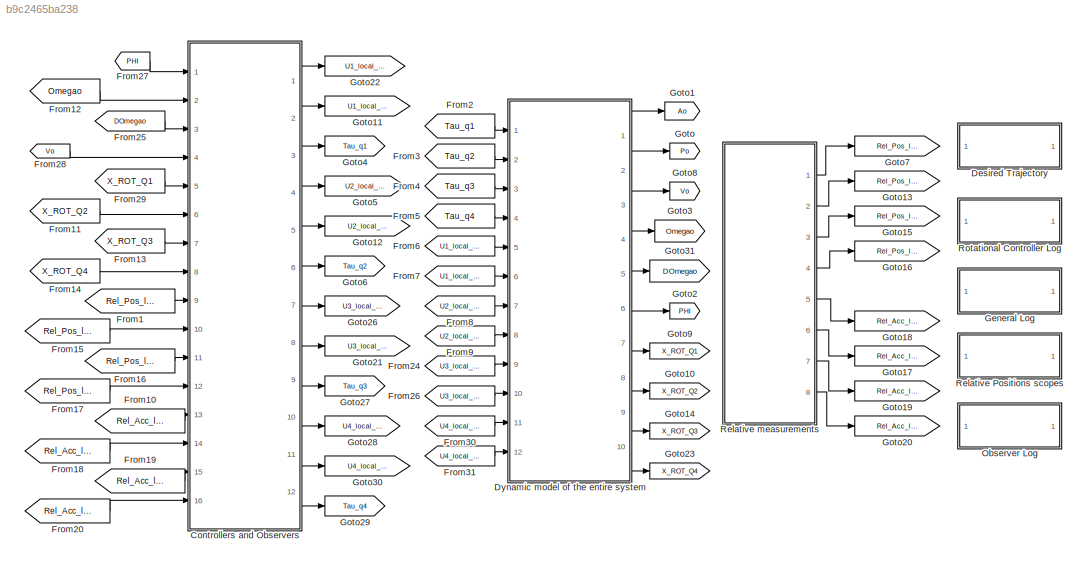
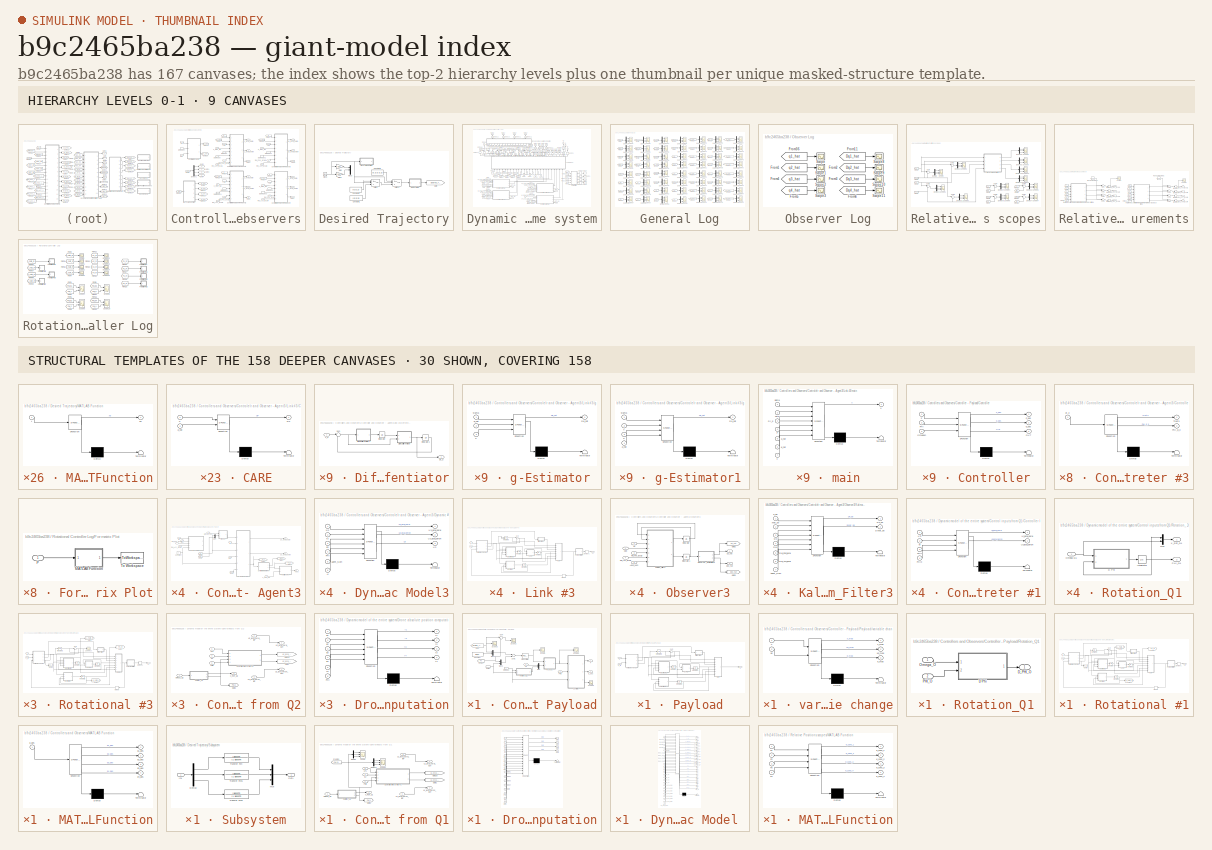
[diagram: thumbnail index - top-2 hierarchy levels (9 canvases) + 30 structural-template representatives of the remaining 158 canvases]
MODEL slx_b9c2465ba238
KIND model
CONFIG AbsTol = auto
CONFIG EnableMultiTasking = off
CONFIG FixedStep = auto
CONFIG InitFcn = Simple_4Quad_payload_09_const
CONFIG MaxStep = auto
CONFIG MinStep = auto
CONFIG RelTol = 1e-3
CONFIG SampleTimeConstraint = Unconstrained
CONFIG Solver = ode45
CONFIG SolverName = ode45
CONFIG StartTime = 0.0
CONFIG StopTime = 40
BLOCK [SubSystem] Controllers and Observers
  Ports = [16, 12]
  RequestExecContextInheritance = off
BLOCK [SubSystem] Controllers and Observers/Controlelr and Observer - Agent3
  Ports = [8, 3]
  RequestExecContextInheritance = off
BLOCK [Constant] Controllers and Observers/Controlelr and Observer - Agent3/Constant
  Value = 3
BLOCK [SubSystem] Controllers and Observers/Controlelr and Observer - Agent3/Controller Interpreter #3
  ErrorFcn = Stateflow.Translate.translate
  PermitHierarchicalResolution = ExplicitOnly
  Ports = [1, 2]
  RequestExecContextInheritance = off
  SFBlockType = MATLAB Function
  TreatAsAtomicUnit = on
BLOCK [Demux] Controllers and Observers/Controlelr and Observer - Agent3/Controller Interpreter #3/ Demux 
  Outputs = 1
  Ports = [1, 1]
BLOCK [S-Function] Controllers and Observers/Controlelr and Observer - Agent3/Controller Interpreter #3/ SFunction 
  EnableBusSupport = on
  FunctionName = sf_sfun
  PortCounts = [1 3]
  Ports = [1, 3]
  SFcnIsStateOwnerBlock = off
  SFunctionDeploymentMode = off
  Tag = Stateflow S-Function Simple_4Quad_payload_09_2017a 11
BLOCK [Terminator] Controllers and Observers/Controlelr and Observer - Agent3/Controller Interpreter #3/ Terminator 
BLOCK [Outport] Controllers and Observers/Controlelr and Observer - Agent3/Controller Interpreter #3/PHI_d_3
  IconDisplay = Port number
  Port = 2
BLOCK [Outport] Controllers and Observers/Controlelr and Observer - Agent3/Controller Interpreter #3/Trust3
  IconDisplay = Port number
BLOCK [Inport] Controllers and Observers/Controlelr and Observer - Agent3/Controller Interpreter #3/ut_3
  IconDisplay = Port number
BLOCK [Inport] Controllers and Observers/Controlelr and Observer - Agent3/Dwo
  IconDisplay = Port number
  Port = 6
BLOCK [SubSystem] Controllers and Observers/Controlelr and Observer - Agent3/Dynamic Model3
  ErrorFcn = Stateflow.Translate.translate
  PermitHierarchicalResolution = ExplicitOnly
  Ports = [6, 3]
  RequestExecContextInheritance = off
  SFBlockType = MATLAB Function
  TreatAsAtomicUnit = on
BLOCK [Demux] Controllers and Observers/Controlelr and Observer - Agent3/Dynamic Model3/ Demux 
  Outputs = 1
  Ports = [1, 1]
BLOCK [S-Function] Controllers and Observers/Controlelr and Observer - Agent3/Dynamic Model3/ SFunction 
  EnableBusSupport = on
  FunctionName = sf_sfun
  Parameters = All_rho,g,l,m
  PortCounts = [6 4]
  Ports = [6, 4]
  SFcnIsStateOwnerBlock = off
  SFunctionDeploymentMode = off
  Tag = Stateflow S-Function Simple_4Quad_payload_09_2017a 6
BLOCK [Terminator] Controllers and Observers/Controlelr and Observer - Agent3/Dynamic Model3/ Terminator 
BLOCK [Inport] Controllers and Observers/Controlelr and Observer - Agent3/Dynamic Model3/Agent_Num
  IconDisplay = Port number
  Port = 5
BLOCK [Inport] Controllers and Observers/Controlelr and Observer - Agent3/Dynamic Model3/Ai
  IconDisplay = Port number
  Port = 6
BLOCK [Inport] Controllers and Observers/Controlelr and Observer - Agent3/Dynamic Model3/N3
  IconDisplay = Port number
BLOCK [Inport] Controllers and Observers/Controlelr and Observer - Agent3/Dynamic Model3/PHI
  IconDisplay = Port number
  Port = 4
BLOCK [Outport] Controllers and Observers/Controlelr and Observer - Agent3/Dynamic Model3/U3
  IconDisplay = Port number
  Port = 3
BLOCK [Outport] Controllers and Observers/Controlelr and Observer - Agent3/Dynamic Model3/U3_local_paral
  IconDisplay = Port number
BLOCK [Outport] Controllers and Observers/Controlelr and Observer - Agent3/Dynamic Model3/U3_local_perpn
  IconDisplay = Port number
  Port = 2
BLOCK [Inport] Controllers and Observers/Controlelr and Observer - Agent3/Dynamic Model3/f3
  IconDisplay = Port number
  Port = 2
BLOCK [Inport] Controllers and Observers/Controlelr and Observer - Agent3/Dynamic Model3/q3
  IconDisplay = Port number
  Port = 3
BLOCK [From] Controllers and Observers/Controlelr and Observer - Agent3/From1
  GotoTag = q3
  TagVisibility = global
BLOCK [From] Controllers and Observers/Controlelr and Observer - Agent3/From2
  GotoTag = Dq3
  TagVisibility = global
BLOCK [From] Controllers and Observers/Controlelr and Observer - Agent3/From3
  GotoTag = A3
  TagVisibility = global
BLOCK [Goto] Controllers and Observers/Controlelr and Observer - Agent3/Goto1
  GotoTag = Trust_3
  TagVisibility = global
BLOCK [Goto] Controllers and Observers/Controlelr and Observer - Agent3/Goto2
  GotoTag = PHI_d3
  TagVisibility = global
BLOCK [Goto] Controllers and Observers/Controlelr and Observer - Agent3/Goto5
  GotoTag = U3_T
  TagVisibility = global
BLOCK [SubSystem] Controllers and Observers/Controlelr and Observer - Agent3/Link #3
  Ports = [2, 1]
  RequestExecContextInheritance = off
BLOCK [SubSystem] Controllers and Observers/Controlelr and Observer - Agent3/Link #3/CARE
  ErrorFcn = Stateflow.Translate.translate
  PermitHierarchicalResolution = ExplicitOnly
  Ports = [2, 1]
  RequestExecContextInheritance = off
  SFBlockType = MATLAB Function
  TreatAsAtomicUnit = on
BLOCK [Demux] Controllers and Observers/Controlelr and Observer - Agent3/Link #3/CARE/ Demux 
  Outputs = 1
  Ports = [1, 1]
BLOCK [S-Function] Controllers and Observers/Controlelr and Observer - Agent3/Link #3/CARE/ SFunction 
  EnableBusSupport = on
  FunctionName = sf_sfun
  Parameters = BR,QL,R
  PortCounts = [2 2]
  Ports = [2, 2]
  SFcnIsStateOwnerBlock = off
  SFunctionDeploymentMode = off
  Tag = Stateflow S-Function Simple_4Quad_payload_09_2017a 75
BLOCK [Terminator] Controllers and Observers/Controlelr and Observer - Agent3/Link #3/CARE/ Terminator 
BLOCK [Outport] Controllers and Observers/Controlelr and Observer - Agent3/Link #3/CARE/DP
  IconDisplay = Port number
BLOCK [Inport] Controllers and Observers/Controlelr and Observer - Agent3/Link #3/CARE/P
  IconDisplay = Port number
BLOCK [Inport] Controllers and Observers/Controlelr and Observer - Agent3/Link #3/CARE/a_hat
  IconDisplay = Port number
  Port = 2
BLOCK [SubSystem] Controllers and Observers/Controlelr and Observer - Agent3/Link #3/Differentiator
  Ports = [1, 1]
  RequestExecContextInheritance = off
BLOCK [Outport] Controllers and Observers/Controlelr and Observer - Agent3/Link #3/Differentiator/Dx_d
  IconDisplay = Port number
BLOCK [Integrator] Controllers and Observers/Controlelr and Observer - Agent3/Link #3/Differentiator/Integrator
  InitialCondition = zeros(n,1)
  Ports = [1, 1]
BLOCK [Integrator] Controllers and Observers/Controlelr and Observer - Agent3/Link #3/Differentiator/Integrator1
  InitialCondition = zeros(n,1)
  Ports = [1, 1]
BLOCK [SubSystem] Controllers and Observers/Controlelr and Observer - Agent3/Link #3/Differentiator/Sliding differentiator
  ErrorFcn = Stateflow.Translate.translate
  PermitHierarchicalResolution = ExplicitOnly
  Ports = [2, 1]
  RequestExecContextInheritance = off
  SFBlockType = MATLAB Function
  TreatAsAtomicUnit = on
BLOCK [Demux] Controllers and Observers/Controlelr and Observer - Agent3/Link #3/Differentiator/Sliding differentiator/ Demux 
  Outputs = 1
  Ports = [1, 1]
BLOCK [S-Function] Controllers and Observers/Controlelr and Observer - Agent3/Link #3/Differentiator/Sliding differentiator/ SFunction 
  EnableBusSupport = on
  FunctionName = sf_sfun
  Parameters = alpha_chatt,k1,n
  PortCounts = [2 2]
  Ports = [2, 2]
  SFcnIsStateOwnerBlock = off
  SFunctionDeploymentMode = off
  Tag = Stateflow S-Function Simple_4Quad_payload_09_2017a 76
BLOCK [Terminator] Controllers and Observers/Controlelr and Observer - Agent3/Link #3/Differentiator/Sliding differentiator/ Terminator 
BLOCK [Inport] Controllers and Observers/Controlelr and Observer - Agent3/Link #3/Differentiator/Sliding differentiator/e
  IconDisplay = Port number
  Port = 2
BLOCK [Outport] Controllers and Observers/Controlelr and Observer - Agent3/Link #3/Differentiator/Sliding differentiator/u
  IconDisplay = Port number
BLOCK [Inport] Controllers and Observers/Controlelr and Observer - Agent3/Link #3/Differentiator/Sliding differentiator/u1
  IconDisplay = Port number
BLOCK [SubSystem] Controllers and Observers/Controlelr and Observer - Agent3/Link #3/Differentiator/Sliding differentiator1
  ErrorFcn = Stateflow.Translate.translate
  PermitHierarchicalResolution = ExplicitOnly
  Ports = [1, 1]
  RequestExecContextInheritance = off
  SFBlockType = MATLAB Function
  TreatAsAtomicUnit = on
BLOCK [Demux] Controllers and Observers/Controlelr and Observer - Agent3/Link #3/Differentiator/Sliding differentiator1/ Demux 
  Outputs = 1
  Ports = [1, 1]
BLOCK [S-Function] Controllers and Observers/Controlelr and Observer - Agent3/Link #3/Differentiator/Sliding differentiator1/ SFunction 
  EnableBusSupport = on
  FunctionName = sf_sfun
  Parameters = alpha_chatt,k2,n
  PortCounts = [1 2]
  Ports = [1, 2]
  SFcnIsStateOwnerBlock = off
  SFunctionDeploymentMode = off
  Tag = Stateflow S-Function Simple_4Quad_payload_09_2017a 78
BLOCK [Terminator] Controllers and Observers/Controlelr and Observer - Agent3/Link #3/Differentiator/Sliding differentiator1/ Terminator 
BLOCK [Outport] Controllers and Observers/Controlelr and Observer - Agent3/Link #3/Differentiator/Sliding differentiator1/Du1
  IconDisplay = Port number
BLOCK [Inport] Controllers and Observers/Controlelr and Observer - Agent3/Link #3/Differentiator/Sliding differentiator1/e
  IconDisplay = Port number
BLOCK [Sum] Controllers and Observers/Controlelr and Observer - Agent3/Link #3/Differentiator/Sum
  IconShape = round
  InputSameDT = off
  Inputs = |-+
  OutDataTypeStr = Inherit: Inherit via internal rule
  Ports = [2, 1]
  SaturateOnIntegerOverflow = off
BLOCK [Inport] Controllers and Observers/Controlelr and Observer - Agent3/Link #3/Differentiator/x_d
  IconDisplay = Port number
BLOCK [Integrator] Controllers and Observers/Controlelr and Observer - Agent3/Link #3/Integrator
  InitialCondition = zeros(n)
  Ports = [1, 1]
BLOCK [Integrator] Controllers and Observers/Controlelr and Observer - Agent3/Link #3/Integrator1
  InitialCondition = eye(n)
  Ports = [1, 1]
BLOCK [Integrator] Controllers and Observers/Controlelr and Observer - Agent3/Link #3/Integrator2
  InitialCondition = zeros(n,1)
  Ports = [1, 1]
BLOCK [Integrator] Controllers and Observers/Controlelr and Observer - Agent3/Link #3/Integrator3
  ExternalReset = level
  InitialCondition = zeros(n,1)
  Ports = [2, 1]
BLOCK [Memory] Controllers and Observers/Controlelr and Observer - Agent3/Link #3/Memory
  InitialCondition = zeros(n,1)
BLOCK [Memory] Controllers and Observers/Controlelr and Observer - Agent3/Link #3/Memory1
  InitialCondition = zeros(3,1)
BLOCK [Outport] Controllers and Observers/Controlelr and Observer - Agent3/Link #3/N3
  IconDisplay = Port number
BLOCK [Sum] Controllers and Observers/Controlelr and Observer - Agent3/Link #3/Sum
  IconShape = round
  InputSameDT = off
  Inputs = |++
  OutDataTypeStr = Inherit: Inherit via internal rule
  Ports = [2, 1]
  SaturateOnIntegerOverflow = off
BLOCK [Inport] Controllers and Observers/Controlelr and Observer - Agent3/Link #3/X
  IconDisplay = Port number
  Port = 2
BLOCK [SubSystem] Controllers and Observers/Controlelr and Observer - Agent3/Link #3/g-Estimator
  ErrorFcn = Stateflow.Translate.translate
  PermitHierarchicalResolution = ExplicitOnly
  Ports = [3, 1]
  RequestExecContextInheritance = off
  SFBlockType = MATLAB Function
  TreatAsAtomicUnit = on
BLOCK [Demux] Controllers and Observers/Controlelr and Observer - Agent3/Link #3/g-Estimator/ Demux 
  Outputs = 1
  Ports = [1, 1]
BLOCK [S-Function] Controllers and Observers/Controlelr and Observer - Agent3/Link #3/g-Estimator/ SFunction 
  EnableBusSupport = on
  FunctionName = sf_sfun
  Parameters = gamma_1L,rho_1L
  PortCounts = [3 2]
  Ports = [3, 2]
  SFcnIsStateOwnerBlock = off
  SFunctionDeploymentMode = off
  Tag = Stateflow S-Function Simple_4Quad_payload_09_2017a 79
BLOCK [Terminator] Controllers and Observers/Controlelr and Observer - Agent3/Link #3/g-Estimator/ Terminator 
BLOCK [Outport] Controllers and Observers/Controlelr and Observer - Agent3/Link #3/g-Estimator/Dg_hat
  IconDisplay = Port number
BLOCK [Inport] Controllers and Observers/Controlelr and Observer - Agent3/Link #3/g-Estimator/P
  IconDisplay = Port number
  Port = 3
BLOCK [Inport] Controllers and Observers/Controlelr and Observer - Agent3/Link #3/g-Estimator/g_hat
  IconDisplay = Port number
  Port = 2
BLOCK [Inport] Controllers and Observers/Controlelr and Observer - Agent3/Link #3/g-Estimator/sigma
  IconDisplay = Port number
BLOCK [SubSystem] Controllers and Observers/Controlelr and Observer - Agent3/Link #3/g-Estimator1
  ErrorFcn = Stateflow.Translate.translate
  PermitHierarchicalResolution = ExplicitOnly
  Ports = [4, 1]
  RequestExecContextInheritance = off
  SFBlockType = MATLAB Function
  TreatAsAtomicUnit = on
BLOCK [Demux] Controllers and Observers/Controlelr and Observer - Agent3/Link #3/g-Estimator1/ Demux 
  Outputs = 1
  Ports = [1, 1]
BLOCK [S-Function] Controllers and Observers/Controlelr and Observer - Agent3/Link #3/g-Estimator1/ SFunction 
  EnableBusSupport = on
  FunctionName = sf_sfun
  Parameters = gamma_0L,rho_0L
  PortCounts = [4 2]
  Ports = [4, 2]
  SFcnIsStateOwnerBlock = off
  SFunctionDeploymentMode = off
  Tag = Stateflow S-Function Simple_4Quad_payload_09_2017a 80
BLOCK [Terminator] Controllers and Observers/Controlelr and Observer - Agent3/Link #3/g-Estimator1/ Terminator 
BLOCK [Outport] Controllers and Observers/Controlelr and Observer - Agent3/Link #3/g-Estimator1/Da_hat
  IconDisplay = Port number
BLOCK [Inport] Controllers and Observers/Controlelr and Observer - Agent3/Link #3/g-Estimator1/P
  IconDisplay = Port number
  Port = 3
BLOCK [Inport] Controllers and Observers/Controlelr and Observer - Agent3/Link #3/g-Estimator1/a_hat
  IconDisplay = Port number
  Port = 4
BLOCK [Inport] Controllers and Observers/Controlelr and Observer - Agent3/Link #3/g-Estimator1/sigma
  IconDisplay = Port number
BLOCK [Inport] Controllers and Observers/Controlelr and Observer - Agent3/Link #3/g-Estimator1/x
  IconDisplay = Port number
  Port = 2
BLOCK [SubSystem] Controllers and Observers/Controlelr and Observer - Agent3/Link #3/main
  ErrorFcn = Stateflow.Translate.translate
  PermitHierarchicalResolution = ExplicitOnly
  Ports = [7, 1]
  RequestExecContextInheritance = off
  SFBlockType = MATLAB Function
  TreatAsAtomicUnit = on
BLOCK [Demux] Controllers and Observers/Controlelr and Observer - Agent3/Link #3/main/ Demux 
  Outputs = 1
  Ports = [1, 1]
BLOCK [S-Function] Controllers and Observers/Controlelr and Observer - Agent3/Link #3/main/ SFunction 
  EnableBusSupport = on
  FunctionName = sf_sfun
  Parameters = BBT_inv,BR,QL,R,n
  PortCounts = [7 2]
  Ports = [7, 2]
  SFcnIsStateOwnerBlock = off
  SFunctionDeploymentMode = off
  Tag = Stateflow S-Function Simple_4Quad_payload_09_2017a 81
BLOCK [Terminator] Controllers and Observers/Controlelr and Observer - Agent3/Link #3/main/ Terminator 
BLOCK [Inport] Controllers and Observers/Controlelr and Observer - Agent3/Link #3/main/Dy_d
  IconDisplay = Port number
  Port = 3
BLOCK [Inport] Controllers and Observers/Controlelr and Observer - Agent3/Link #3/main/P
  IconDisplay = Port number
  Port = 4
BLOCK [Inport] Controllers and Observers/Controlelr and Observer - Agent3/Link #3/main/a_hat
  IconDisplay = Port number
  Port = 5
BLOCK [Inport] Controllers and Observers/Controlelr and Observer - Agent3/Link #3/main/g_hat
  IconDisplay = Port number
  Port = 6
BLOCK [Inport] Controllers and Observers/Controlelr and Observer - Agent3/Link #3/main/sigma
  IconDisplay = Port number
BLOCK [Outport] Controllers and Observers/Controlelr and Observer - Agent3/Link #3/main/u
  IconDisplay = Port number
BLOCK [Inport] Controllers and Observers/Controlelr and Observer - Agent3/Link #3/main/x
  IconDisplay = Port number
  Port = 7
BLOCK [Inport] Controllers and Observers/Controlelr and Observer - Agent3/Link #3/main/zeta
  IconDisplay = Port number
  Port = 2
BLOCK [SubSystem] Controllers and Observers/Controlelr and Observer - Agent3/Link #3/output definition
  ErrorFcn = Stateflow.Translate.translate
  PermitHierarchicalResolution = ExplicitOnly
  Ports = [1, 1]
  RequestExecContextInheritance = off
  SFBlockType = MATLAB Function
  TreatAsAtomicUnit = on
BLOCK [Demux] Controllers and Observers/Controlelr and Observer - Agent3/Link #3/output definition/ Demux 
  Outputs = 1
  Ports = [1, 1]
BLOCK [S-Function] Controllers and Observers/Controlelr and Observer - Agent3/Link #3/output definition/ SFunction 
  EnableBusSupport = on
  FunctionName = sf_sfun
  PortCounts = [1 2]
  Ports = [1, 2]
  SFcnIsStateOwnerBlock = off
  SFunctionDeploymentMode = off
  Tag = Stateflow S-Function Simple_4Quad_payload_09_2017a 82
BLOCK [Terminator] Controllers and Observers/Controlelr and Observer - Agent3/Link #3/output definition/ Terminator 
BLOCK [Inport] Controllers and Observers/Controlelr and Observer - Agent3/Link #3/output definition/u
  IconDisplay = Port number
BLOCK [Outport] Controllers and Observers/Controlelr and Observer - Agent3/Link #3/output definition/ur
  IconDisplay = Port number
BLOCK [SubSystem] Controllers and Observers/Controlelr and Observer - Agent3/Link #3/variable change
  ErrorFcn = Stateflow.Translate.translate
  PermitHierarchicalResolution = ExplicitOnly
  Ports = [3, 3]
  RequestExecContextInheritance = off
  SFBlockType = MATLAB Function
  TreatAsAtomicUnit = on
BLOCK [Demux] Controllers and Observers/Controlelr and Observer - Agent3/Link #3/variable change/ Demux 
  Outputs = 1
  Ports = [1, 1]
BLOCK [S-Function] Controllers and Observers/Controlelr and Observer - Agent3/Link #3/variable change/ SFunction 
  EnableBusSupport = on
  FunctionName = sf_sfun
  PortCounts = [3 4]
  Ports = [3, 4]
  SFcnIsStateOwnerBlock = off
  SFunctionDeploymentMode = off
  Tag = Stateflow S-Function Simple_4Quad_payload_09_2017a 83
BLOCK [Terminator] Controllers and Observers/Controlelr and Observer - Agent3/Link #3/variable change/ Terminator 
BLOCK [Inport] Controllers and Observers/Controlelr and Observer - Agent3/Link #3/variable change/X
  IconDisplay = Port number
BLOCK [Inport] Controllers and Observers/Controlelr and Observer - Agent3/Link #3/variable change/Xd
  IconDisplay = Port number
  Port = 2
BLOCK [Outport] Controllers and Observers/Controlelr and Observer - Agent3/Link #3/variable change/e_mod
  IconDisplay = Port number
  Port = 3
BLOCK [Inport] Controllers and Observers/Controlelr and Observer - Agent3/Link #3/variable change/u
  IconDisplay = Port number
  Port = 3
BLOCK [Outport] Controllers and Observers/Controlelr and Observer - Agent3/Link #3/variable change/x_mod
  IconDisplay = Port number
BLOCK [Outport] Controllers and Observers/Controlelr and Observer - Agent3/Link #3/variable change/xd_mod
  IconDisplay = Port number
  Port = 2
BLOCK [Inport] Controllers and Observers/Controlelr and Observer - Agent3/Link #3/x_rd
  IconDisplay = Port number
BLOCK [Mux] Controllers and Observers/Controlelr and Observer - Agent3/Mux
  DisplayOption = bar
  Inputs = 2
  Ports = [2, 1]
BLOCK [SubSystem] Controllers and Observers/Controlelr and Observer - Agent3/Observer3
  Ports = [5, 2]
  RequestExecContextInheritance = off
BLOCK [Inport] Controllers and Observers/Controlelr and Observer - Agent3/Observer3/Agent_Num
  IconDisplay = Port number
  Port = 5
BLOCK [Outport] Controllers and Observers/Controlelr and Observer - Agent3/Observer3/Dq3_hat
  IconDisplay = Port number
  Port = 2
BLOCK [Inport] Controllers and Observers/Controlelr and Observer - Agent3/Observer3/Dwo
  IconDisplay = Port number
  Port = 2
BLOCK [Goto] Controllers and Observers/Controlelr and Observer - Agent3/Observer3/Goto2
  GotoTag = q3_hat
  TagVisibility = global
BLOCK [Goto] Controllers and Observers/Controlelr and Observer - Agent3/Observer3/Goto3
  GotoTag = Dq3_hat
  TagVisibility = global
BLOCK [Integrator] Controllers and Observers/Controlelr and Observer - Agent3/Observer3/Integrator
  InitialCondition = eye(6)
  Ports = [1, 1]
BLOCK [Integrator] Controllers and Observers/Controlelr and Observer - Agent3/Observer3/Integrator1
  InitialCondition = [0;0;1;0;0;0]
  Ports = [1, 1]
BLOCK [SubSystem] Controllers and Observers/Controlelr and Observer - Agent3/Observer3/Kalman_Filter3
  ErrorFcn = Stateflow.Translate.translate
  PermitHierarchicalResolution = ExplicitOnly
  Ports = [7, 2]
  RequestExecContextInheritance = off
  SFBlockType = MATLAB Function
  TreatAsAtomicUnit = on
BLOCK [Demux] Controllers and Observers/Controlelr and Observer - Agent3/Observer3/Kalman_Filter3/ Demux 
  Outputs = 1
  Ports = [1, 1]
BLOCK [S-Function] Controllers and Observers/Controlelr and Observer - Agent3/Observer3/Kalman_Filter3/ SFunction 
  EnableBusSupport = on
  FunctionName = sf_sfun
  Parameters = All_rho,B_ob,C_ob,Q_ob,R_ob,l
  PortCounts = [7 3]
  Ports = [7, 3]
  SFcnIsStateOwnerBlock = off
  SFunctionDeploymentMode = off
  Tag = Stateflow S-Function Simple_4Quad_payload_09_2017a 42
BLOCK [Terminator] Controllers and Observers/Controlelr and Observer - Agent3/Observer3/Kalman_Filter3/ Terminator 
BLOCK [Inport] Controllers and Observers/Controlelr and Observer - Agent3/Observer3/Kalman_Filter3/Agent_Num
  IconDisplay = Port number
  Port = 7
BLOCK [Outport] Controllers and Observers/Controlelr and Observer - Agent3/Observer3/Kalman_Filter3/DP_ob
  IconDisplay = Port number
BLOCK [Inport] Controllers and Observers/Controlelr and Observer - Agent3/Observer3/Kalman_Filter3/Dwo
  IconDisplay = Port number
  Port = 4
BLOCK [Outport] Controllers and Observers/Controlelr and Observer - Agent3/Observer3/Kalman_Filter3/Dxhat_ob
  IconDisplay = Port number
  Port = 2
BLOCK [Inport] Controllers and Observers/Controlelr and Observer - Agent3/Observer3/Kalman_Filter3/P_ob
  IconDisplay = Port number
BLOCK [Inport] Controllers and Observers/Controlelr and Observer - Agent3/Observer3/Kalman_Filter3/Rel_Acci_local
  IconDisplay = Port number
  Port = 6
BLOCK [Inport] Controllers and Observers/Controlelr and Observer - Agent3/Observer3/Kalman_Filter3/Rel_Posi_local
  IconDisplay = Port number
  Port = 5
BLOCK [Inport] Controllers and Observers/Controlelr and Observer - Agent3/Observer3/Kalman_Filter3/wo
  IconDisplay = Port number
  Port = 3
BLOCK [Inport] Controllers and Observers/Controlelr and Observer - Agent3/Observer3/Kalman_Filter3/xhat_ob
  IconDisplay = Port number
  Port = 2
BLOCK [SubSystem] Controllers and Observers/Controlelr and Observer - Agent3/Observer3/Observer_Finalization3
  ErrorFcn = Stateflow.Translate.translate
  PermitHierarchicalResolution = ExplicitOnly
  Ports = [1, 2]
  RequestExecContextInheritance = off
  SFBlockType = MATLAB Function
  TreatAsAtomicUnit = on
BLOCK [Demux] Controllers and Observers/Controlelr and Observer - Agent3/Observer3/Observer_Finalization3/ Demux 
  Outputs = 1
  Ports = [1, 1]
BLOCK [S-Function] Controllers and Observers/Controlelr and Observer - Agent3/Observer3/Observer_Finalization3/ SFunction 
  EnableBusSupport = on
  FunctionName = sf_sfun
  PortCounts = [1 3]
  Ports = [1, 3]
  SFcnIsStateOwnerBlock = off
  SFunctionDeploymentMode = off
  Tag = Stateflow S-Function Simple_4Quad_payload_09_2017a 43
BLOCK [Terminator] Controllers and Observers/Controlelr and Observer - Agent3/Observer3/Observer_Finalization3/ Terminator 
BLOCK [Outport] Controllers and Observers/Controlelr and Observer - Agent3/Observer3/Observer_Finalization3/Dqhati
  IconDisplay = Port number
  Port = 2
BLOCK [Outport] Controllers and Observers/Controlelr and Observer - Agent3/Observer3/Observer_Finalization3/qhati
  IconDisplay = Port number
BLOCK [Inport] Controllers and Observers/Controlelr and Observer - Agent3/Observer3/Observer_Finalization3/xhati
  IconDisplay = Port number
BLOCK [Inport] Controllers and Observers/Controlelr and Observer - Agent3/Observer3/Rel_Acc_local3
  IconDisplay = Port number
  Port = 4
BLOCK [Inport] Controllers and Observers/Controlelr and Observer - Agent3/Observer3/Rel_Pos_local3
  IconDisplay = Port number
  Port = 3
BLOCK [Outport] Controllers and Observers/Controlelr and Observer - Agent3/Observer3/q3_hat
  IconDisplay = Port number
BLOCK [Inport] Controllers and Observers/Controlelr and Observer - Agent3/Observer3/wo
  IconDisplay = Port number
BLOCK [Inport] Controllers and Observers/Controlelr and Observer - Agent3/PHI
  IconDisplay = Port number
  Port = 3
BLOCK [Inport] Controllers and Observers/Controlelr and Observer - Agent3/Rel_Acc_local3
  IconDisplay = Port number
  Port = 8
BLOCK [Inport] Controllers and Observers/Controlelr and Observer - Agent3/Rel_Pos_local3
  IconDisplay = Port number
  Port = 7
BLOCK [SubSystem] Controllers and Observers/Controlelr and Observer - Agent3/Rotational #3
  Ports = [2, 1]
  RequestExecContextInheritance = off
BLOCK [SubSystem] Controllers and Observers/Controlelr and Observer - Agent3/Rotational #3/CARE
  ErrorFcn = Stateflow.Translate.translate
  PermitHierarchicalResolution = ExplicitOnly
  Ports = [2, 1]
  RequestExecContextInheritance = off
  SFBlockType = MATLAB Function
  TreatAsAtomicUnit = on
BLOCK [Demux] Controllers and Observers/Controlelr and Observer - Agent3/Rotational #3/CARE/ Demux 
  Outputs = 1
  Ports = [1, 1]
BLOCK [S-Function] Controllers and Observers/Controlelr and Observer - Agent3/Rotational #3/CARE/ SFunction 
  EnableBusSupport = on
  FunctionName = sf_sfun
  Parameters = BR,QR,R
  PortCounts = [2 2]
  Ports = [2, 2]
  SFcnIsStateOwnerBlock = off
  SFunctionDeploymentMode = off
  Tag = Stateflow S-Function Simple_4Quad_payload_09_2017a 23
BLOCK [Terminator] Controllers and Observers/Controlelr and Observer - Agent3/Rotational #3/CARE/ Terminator 
BLOCK [Outport] Controllers and Observers/Controlelr and Observer - Agent3/Rotational #3/CARE/DP
  IconDisplay = Port number
BLOCK [Inport] Controllers and Observers/Controlelr and Observer - Agent3/Rotational #3/CARE/P
  IconDisplay = Port number
BLOCK [Inport] Controllers and Observers/Controlelr and Observer - Agent3/Rotational #3/CARE/a_hat
  IconDisplay = Port number
  Port = 2
BLOCK [SubSystem] Controllers and Observers/Controlelr and Observer - Agent3/Rotational #3/Differentiator
  Ports = [1, 1]
  RequestExecContextInheritance = off
BLOCK [Outport] Controllers and Observers/Controlelr and Observer - Agent3/Rotational #3/Differentiator/Dx_d
  IconDisplay = Port number
BLOCK [Integrator] Controllers and Observers/Controlelr and Observer - Agent3/Rotational #3/Differentiator/Integrator
  InitialCondition = zeros(n,1)
  Ports = [1, 1]
BLOCK [Integrator] Controllers and Observers/Controlelr and Observer - Agent3/Rotational #3/Differentiator/Integrator1
  InitialCondition = zeros(n,1)
  Ports = [1, 1]
BLOCK [SubSystem] Controllers and Observers/Controlelr and Observer - Agent3/Rotational #3/Differentiator/Sliding differentiator
  ErrorFcn = Stateflow.Translate.translate
  PermitHierarchicalResolution = ExplicitOnly
  Ports = [2, 1]
  RequestExecContextInheritance = off
  SFBlockType = MATLAB Function
  TreatAsAtomicUnit = on
BLOCK [Demux] Controllers and Observers/Controlelr and Observer - Agent3/Rotational #3/Differentiator/Sliding differentiator/ Demux 
  Outputs = 1
  Ports = [1, 1]
BLOCK [S-Function] Controllers and Observers/Controlelr and Observer - Agent3/Rotational #3/Differentiator/Sliding differentiator/ SFunction 
  EnableBusSupport = on
  FunctionName = sf_sfun
  Parameters = alpha_chatt,k1,n
  PortCounts = [2 2]
  Ports = [2, 2]
  SFcnIsStateOwnerBlock = off
  SFunctionDeploymentMode = off
  Tag = Stateflow S-Function Simple_4Quad_payload_09_2017a 24
BLOCK [Terminator] Controllers and Observers/Controlelr and Observer - Agent3/Rotational #3/Differentiator/Sliding differentiator/ Terminator 
BLOCK [Inport] Controllers and Observers/Controlelr and Observer - Agent3/Rotational #3/Differentiator/Sliding differentiator/e
  IconDisplay = Port number
  Port = 2
BLOCK [Outport] Controllers and Observers/Controlelr and Observer - Agent3/Rotational #3/Differentiator/Sliding differentiator/u
  IconDisplay = Port number
BLOCK [Inport] Controllers and Observers/Controlelr and Observer - Agent3/Rotational #3/Differentiator/Sliding differentiator/u1
  IconDisplay = Port number
BLOCK [SubSystem] Controllers and Observers/Controlelr and Observer - Agent3/Rotational #3/Differentiator/Sliding differentiator1
  ErrorFcn = Stateflow.Translate.translate
  PermitHierarchicalResolution = ExplicitOnly
  Ports = [1, 1]
  RequestExecContextInheritance = off
  SFBlockType = MATLAB Function
  TreatAsAtomicUnit = on
BLOCK [Demux] Controllers and Observers/Controlelr and Observer - Agent3/Rotational #3/Differentiator/Sliding differentiator1/ Demux 
  Outputs = 1
  Ports = [1, 1]
BLOCK [S-Function] Controllers and Observers/Controlelr and Observer - Agent3/Rotational #3/Differentiator/Sliding differentiator1/ SFunction 
  EnableBusSupport = on
  FunctionName = sf_sfun
  Parameters = alpha_chatt,k2,n
  PortCounts = [1 2]
  Ports = [1, 2]
  SFcnIsStateOwnerBlock = off
  SFunctionDeploymentMode = off
  Tag = Stateflow S-Function Simple_4Quad_payload_09_2017a 25
BLOCK [Terminator] Controllers and Observers/Controlelr and Observer - Agent3/Rotational #3/Differentiator/Sliding differentiator1/ Terminator 
BLOCK [Outport] Controllers and Observers/Controlelr and Observer - Agent3/Rotational #3/Differentiator/Sliding differentiator1/Du1
  IconDisplay = Port number
BLOCK [Inport] Controllers and Observers/Controlelr and Observer - Agent3/Rotational #3/Differentiator/Sliding differentiator1/e
  IconDisplay = Port number
BLOCK [Sum] Controllers and Observers/Controlelr and Observer - Agent3/Rotational #3/Differentiator/Sum
  IconShape = round
  InputSameDT = off
  Inputs = |-+
  OutDataTypeStr = Inherit: Inherit via internal rule
  Ports = [2, 1]
  SaturateOnIntegerOverflow = off
BLOCK [Inport] Controllers and Observers/Controlelr and Observer - Agent3/Rotational #3/Differentiator/x_d
  IconDisplay = Port number
BLOCK [Goto] Controllers and Observers/Controlelr and Observer - Agent3/Rotational #3/Goto1
  GotoTag = g_hat3_R
  TagVisibility = global
BLOCK [Goto] Controllers and Observers/Controlelr and Observer - Agent3/Rotational #3/Goto2
  GotoTag = P3_R
  TagVisibility = global
BLOCK [Goto] Controllers and Observers/Controlelr and Observer - Agent3/Rotational #3/Goto3
  GotoTag = A_hat3_R
  TagVisibility = global
BLOCK [Goto] Controllers and Observers/Controlelr and Observer - Agent3/Rotational #3/Goto9
  GotoTag = e3_R
  TagVisibility = global
BLOCK [Integrator] Controllers and Observers/Controlelr and Observer - Agent3/Rotational #3/Integrator
  InitialCondition = zeros(n)
  Ports = [1, 1]
BLOCK [Integrator] Controllers and Observers/Controlelr and Observer - Agent3/Rotational #3/Integrator1
  InitialCondition = eye(n)
  Ports = [1, 1]
BLOCK [Integrator] Controllers and Observers/Controlelr and Observer - Agent3/Rotational #3/Integrator2
  InitialCondition = zeros(n,1)
  Ports = [1, 1]
BLOCK [Integrator] Controllers and Observers/Controlelr and Observer - Agent3/Rotational #3/Integrator3
  InitialCondition = zeros(n,1)
  Ports = [1, 1]
BLOCK [Memory] Controllers and Observers/Controlelr and Observer - Agent3/Rotational #3/Memory
  InitialCondition = zeros(n,1)
BLOCK [Memory] Controllers and Observers/Controlelr and Observer - Agent3/Rotational #3/Memory1
  InitialCondition = zeros(3,1)
BLOCK [Scope] Controllers and Observers/Controlelr and Observer - Agent3/Rotational #3/Scope10
  Floating = off
  NumInputPorts = 1
  Ports = [1]
  ScopeSpecificationString = Simulink.scopes.TimeScopeBlockCfg('CurrentConfiguration', extmgr.ConfigurationSet(extmgr.Configuration('Core','General UI',true),extmgr.Configuration('Core','Source UI',true),extmgr.Configuration('Sources','WiredSimulink',true,'DataLoggingVariableName','ScopeData2','DataLoggingSaveFormat','StructureWithTime','DataLoggingDecimation','1','DataLoggingDecimateData',true),extmgr.Configuration('Visuals'...<+1736ch>  <repeated x3 — deduplicated; at blocks: Scope10>
BLOCK [Sum] Controllers and Observers/Controlelr and Observer - Agent3/Rotational #3/Sum
  IconShape = round
  InputSameDT = off
  Inputs = |++
  OutDataTypeStr = Inherit: Inherit via internal rule
  Ports = [2, 1]
  SaturateOnIntegerOverflow = off
BLOCK [Inport] Controllers and Observers/Controlelr and Observer - Agent3/Rotational #3/X
  IconDisplay = Port number
  Port = 2
BLOCK [SubSystem] Controllers and Observers/Controlelr and Observer - Agent3/Rotational #3/g-Estimator
  ErrorFcn = Stateflow.Translate.translate
  PermitHierarchicalResolution = ExplicitOnly
  Ports = [3, 1]
  RequestExecContextInheritance = off
  SFBlockType = MATLAB Function
  TreatAsAtomicUnit = on
BLOCK [Demux] Controllers and Observers/Controlelr and Observer - Agent3/Rotational #3/g-Estimator/ Demux 
  Outputs = 1
  Ports = [1, 1]
BLOCK [S-Function] Controllers and Observers/Controlelr and Observer - Agent3/Rotational #3/g-Estimator/ SFunction 
  EnableBusSupport = on
  FunctionName = sf_sfun
  Parameters = gamma_1,rho_1
  PortCounts = [3 2]
  Ports = [3, 2]
  SFcnIsStateOwnerBlock = off
  SFunctionDeploymentMode = off
  Tag = Stateflow S-Function Simple_4Quad_payload_09_2017a 26
BLOCK [Terminator] Controllers and Observers/Controlelr and Observer - Agent3/Rotational #3/g-Estimator/ Terminator 
BLOCK [Outport] Controllers and Observers/Controlelr and Observer - Agent3/Rotational #3/g-Estimator/Dg_hat
  IconDisplay = Port number
BLOCK [Inport] Controllers and Observers/Controlelr and Observer - Agent3/Rotational #3/g-Estimator/P
  IconDisplay = Port number
  Port = 3
BLOCK [Inport] Controllers and Observers/Controlelr and Observer - Agent3/Rotational #3/g-Estimator/g_hat
  IconDisplay = Port number
  Port = 2
BLOCK [Inport] Controllers and Observers/Controlelr and Observer - Agent3/Rotational #3/g-Estimator/sigma
  IconDisplay = Port number
BLOCK [SubSystem] Controllers and Observers/Controlelr and Observer - Agent3/Rotational #3/g-Estimator1
  ErrorFcn = Stateflow.Translate.translate
  PermitHierarchicalResolution = ExplicitOnly
  Ports = [4, 1]
  RequestExecContextInheritance = off
  SFBlockType = MATLAB Function
  TreatAsAtomicUnit = on
BLOCK [Demux] Controllers and Observers/Controlelr and Observer - Agent3/Rotational #3/g-Estimator1/ Demux 
  Outputs = 1
  Ports = [1, 1]
BLOCK [S-Function] Controllers and Observers/Controlelr and Observer - Agent3/Rotational #3/g-Estimator1/ SFunction 
  EnableBusSupport = on
  FunctionName = sf_sfun
  Parameters = gamma_0,rho_0
  PortCounts = [4 2]
  Ports = [4, 2]
  SFcnIsStateOwnerBlock = off
  SFunctionDeploymentMode = off
  Tag = Stateflow S-Function Simple_4Quad_payload_09_2017a 27
BLOCK [Terminator] Controllers and Observers/Controlelr and Observer - Agent3/Rotational #3/g-Estimator1/ Terminator 
BLOCK [Outport] Controllers and Observers/Controlelr and Observer - Agent3/Rotational #3/g-Estimator1/Da_hat
  IconDisplay = Port number
BLOCK [Inport] Controllers and Observers/Controlelr and Observer - Agent3/Rotational #3/g-Estimator1/P
  IconDisplay = Port number
  Port = 3
BLOCK [Inport] Controllers and Observers/Controlelr and Observer - Agent3/Rotational #3/g-Estimator1/a_hat
  IconDisplay = Port number
  Port = 4
BLOCK [Inport] Controllers and Observers/Controlelr and Observer - Agent3/Rotational #3/g-Estimator1/sigma
  IconDisplay = Port number
BLOCK [Inport] Controllers and Observers/Controlelr and Observer - Agent3/Rotational #3/g-Estimator1/x
  IconDisplay = Port number
  Port = 2
BLOCK [SubSystem] Controllers and Observers/Controlelr and Observer - Agent3/Rotational #3/main
  ErrorFcn = Stateflow.Translate.translate
  PermitHierarchicalResolution = ExplicitOnly
  Ports = [7, 1]
  RequestExecContextInheritance = off
  SFBlockType = MATLAB Function
  TreatAsAtomicUnit = on
BLOCK [Demux] Controllers and Observers/Controlelr and Observer - Agent3/Rotational #3/main/ Demux 
  Outputs = 1
  Ports = [1, 1]
BLOCK [S-Function] Controllers and Observers/Controlelr and Observer - Agent3/Rotational #3/main/ SFunction 
  EnableBusSupport = on
  FunctionName = sf_sfun
  Parameters = BBT_inv,BR,QR,R,n
  PortCounts = [7 2]
  Ports = [7, 2]
  SFcnIsStateOwnerBlock = off
  SFunctionDeploymentMode = off
  Tag = Stateflow S-Function Simple_4Quad_payload_09_2017a 28
BLOCK [Terminator] Controllers and Observers/Controlelr and Observer - Agent3/Rotational #3/main/ Terminator 
BLOCK [Inport] Controllers and Observers/Controlelr and Observer - Agent3/Rotational #3/main/Dy_d
  IconDisplay = Port number
  Port = 3
BLOCK [Inport] Controllers and Observers/Controlelr and Observer - Agent3/Rotational #3/main/P
  IconDisplay = Port number
  Port = 4
BLOCK [Inport] Controllers and Observers/Controlelr and Observer - Agent3/Rotational #3/main/a_hat
  IconDisplay = Port number
  Port = 5
BLOCK [Inport] Controllers and Observers/Controlelr and Observer - Agent3/Rotational #3/main/g_hat
  IconDisplay = Port number
  Port = 6
BLOCK [Inport] Controllers and Observers/Controlelr and Observer - Agent3/Rotational #3/main/sigma
  IconDisplay = Port number
BLOCK [Outport] Controllers and Observers/Controlelr and Observer - Agent3/Rotational #3/main/u
  IconDisplay = Port number
BLOCK [Inport] Controllers and Observers/Controlelr and Observer - Agent3/Rotational #3/main/x
  IconDisplay = Port number
  Port = 7
BLOCK [Inport] Controllers and Observers/Controlelr and Observer - Agent3/Rotational #3/main/zeta
  IconDisplay = Port number
  Port = 2
BLOCK [SubSystem] Controllers and Observers/Controlelr and Observer - Agent3/Rotational #3/output definition
  ErrorFcn = Stateflow.Translate.translate
  PermitHierarchicalResolution = ExplicitOnly
  Ports = [1, 1]
  RequestExecContextInheritance = off
  SFBlockType = MATLAB Function
  TreatAsAtomicUnit = on
BLOCK [Demux] Controllers and Observers/Controlelr and Observer - Agent3/Rotational #3/output definition/ Demux 
  Outputs = 1
  Ports = [1, 1]
BLOCK [S-Function] Controllers and Observers/Controlelr and Observer - Agent3/Rotational #3/output definition/ SFunction 
  EnableBusSupport = on
  FunctionName = sf_sfun
  PortCounts = [1 2]
  Ports = [1, 2]
  SFcnIsStateOwnerBlock = off
  SFunctionDeploymentMode = off
  Tag = Stateflow S-Function Simple_4Quad_payload_09_2017a 53
BLOCK [Terminator] Controllers and Observers/Controlelr and Observer - Agent3/Rotational #3/output definition/ Terminator 
BLOCK [Inport] Controllers and Observers/Controlelr and Observer - Agent3/Rotational #3/output definition/u
  IconDisplay = Port number
BLOCK [Outport] Controllers and Observers/Controlelr and Observer - Agent3/Rotational #3/output definition/ur
  IconDisplay = Port number
BLOCK [Outport] Controllers and Observers/Controlelr and Observer - Agent3/Rotational #3/ur
  IconDisplay = Port number
BLOCK [SubSystem] Controllers and Observers/Controlelr and Observer - Agent3/Rotational #3/variable change
  ErrorFcn = Stateflow.Translate.translate
  PermitHierarchicalResolution = ExplicitOnly
  Ports = [3, 3]
  RequestExecContextInheritance = off
  SFBlockType = MATLAB Function
  TreatAsAtomicUnit = on
BLOCK [Demux] Controllers and Observers/Controlelr and Observer - Agent3/Rotational #3/variable change/ Demux 
  Outputs = 1
  Ports = [1, 1]
BLOCK [S-Function] Controllers and Observers/Controlelr and Observer - Agent3/Rotational #3/variable change/ SFunction 
  EnableBusSupport = on
  FunctionName = sf_sfun
  PortCounts = [3 4]
  Ports = [3, 4]
  SFcnIsStateOwnerBlock = off
  SFunctionDeploymentMode = off
  Tag = Stateflow S-Function Simple_4Quad_payload_09_2017a 29
BLOCK [Terminator] Controllers and Observers/Controlelr and Observer - Agent3/Rotational #3/variable change/ Terminator 
BLOCK [Inport] Controllers and Observers/Controlelr and Observer - Agent3/Rotational #3/variable change/X
  IconDisplay = Port number
BLOCK [Inport] Controllers and Observers/Controlelr and Observer - Agent3/Rotational #3/variable change/Xd
  IconDisplay = Port number
  Port = 2
BLOCK [Outport] Controllers and Observers/Controlelr and Observer - Agent3/Rotational #3/variable change/e_mod
  IconDisplay = Port number
  Port = 3
BLOCK [Inport] Controllers and Observers/Controlelr and Observer - Agent3/Rotational #3/variable change/u
  IconDisplay = Port number
  Port = 3
BLOCK [Outport] Controllers and Observers/Controlelr and Observer - Agent3/Rotational #3/variable change/x_mod
  IconDisplay = Port number
BLOCK [Outport] Controllers and Observers/Controlelr and Observer - Agent3/Rotational #3/variable change/xd_mod
  IconDisplay = Port number
  Port = 2
BLOCK [Inport] Controllers and Observers/Controlelr and Observer - Agent3/Rotational #3/x_rd
  IconDisplay = Port number
BLOCK [Outport] Controllers and Observers/Controlelr and Observer - Agent3/Tau3
  IconDisplay = Port number
  Port = 3
BLOCK [Outport] Controllers and Observers/Controlelr and Observer - Agent3/U3_local_paral
  IconDisplay = Port number
BLOCK [Outport] Controllers and Observers/Controlelr and Observer - Agent3/U3_local_perpn
  IconDisplay = Port number
  Port = 2
BLOCK [Inport] Controllers and Observers/Controlelr and Observer - Agent3/X_ROT_Q3
  IconDisplay = Port number
  Port = 4
BLOCK [Inport] Controllers and Observers/Controlelr and Observer - Agent3/alpha3_des
  IconDisplay = Port number
  Port = 2
BLOCK [Inport] Controllers and Observers/Controlelr and Observer - Agent3/f3
  IconDisplay = Port number
BLOCK [Inport] Controllers and Observers/Controlelr and Observer - Agent3/wo
  IconDisplay = Port number
  Port = 5
BLOCK [SubSystem] Controllers and Observers/Controller - Payload
  Ports = [3, 2]
  RequestExecContextInheritance = off
BLOCK [Constant] Controllers and Observers/Controller - Payload/Constant
  Value = [0;0;0]
BLOCK [SubSystem] Controllers and Observers/Controller - Payload/Controller
  ErrorFcn = Stateflow.Translate.translate
  PermitHierarchicalResolution = ExplicitOnly
  Ports = [3, 3]
  RequestExecContextInheritance = off
  SFBlockType = MATLAB Function
  TreatAsAtomicUnit = on
BLOCK [Demux] Controllers and Observers/Controller - Payload/Controller/ Demux 
  Outputs = 1
  Ports = [1, 1]
BLOCK [S-Function] Controllers and Observers/Controller - Payload/Controller/ SFunction 
  EnableBusSupport = on
  FunctionName = sf_sfun
  Parameters = Des_rel_dist,Ix,Iy,Iz,M,d1,d2,g,l,m
  PortCounts = [3 4]
  Ports = [3, 4]
  SFcnIsStateOwnerBlock = off
  SFunctionDeploymentMode = off
  Tag = Stateflow S-Function Simple_4Quad_payload_09_2017a 1
BLOCK [Terminator] Controllers and Observers/Controller - Payload/Controller/ Terminator 
BLOCK [Outport] Controllers and Observers/Controller - Payload/Controller/F_des
  IconDisplay = Port number
BLOCK [Outport] Controllers and Observers/Controller - Payload/Controller/OUT
  IconDisplay = Port number
  Port = 3
BLOCK [Inport] Controllers and Observers/Controller - Payload/Controller/OmegaO
  IconDisplay = Port number
  Port = 3
BLOCK [Inport] Controllers and Observers/Controller - Payload/Controller/PHI
  IconDisplay = Port number
  Port = 2
BLOCK [Inport] Controllers and Observers/Controller - Payload/Controller/Z
  IconDisplay = Port number
BLOCK [Outport] Controllers and Observers/Controller - Payload/Controller/q_des
  IconDisplay = Port number
  Port = 2
BLOCK [Outport] Controllers and Observers/Controller - Payload/F
  IconDisplay = Port number
BLOCK [From] Controllers and Observers/Controller - Payload/From
  GotoTag = Desired_Track
  TagVisibility = global
BLOCK [From] Controllers and Observers/Controller - Payload/From20
  GotoTag = Po
  TagVisibility = global
BLOCK [Mux] Controllers and Observers/Controller - Payload/Mux
  DisplayOption = bar
  Inputs = 2
  Ports = [2, 1]
BLOCK [Mux] Controllers and Observers/Controller - Payload/Mux1
  DisplayOption = bar
  Inputs = 2
  Ports = [2, 1]
BLOCK [Mux] Controllers and Observers/Controller - Payload/Mux2
  DisplayOption = bar
  Inputs = 2
  Ports = [2, 1]
BLOCK [Inport] Controllers and Observers/Controller - Payload/Omegao
  IconDisplay = Port number
  Port = 2
BLOCK [Inport] Controllers and Observers/Controller - Payload/PHIo
  IconDisplay = Port number
  Port = 3
BLOCK [InportShadow] Controllers and Observers/Controller - Payload/PHIo1
  IconDisplay = Port number
  Port = 3
BLOCK [Reference] Controllers and Observers/Controller - Payload/PID Controller  REF=simulink/Continuous/PID Controller
  Ports = [1, 1]
  SourceBlock = simulink/Continuous/PID Controller
  SourceProductBaseCode = SL
  SourceProductName = Simulink
  SourceType = PID 1dof
BLOCK [SubSystem] Controllers and Observers/Controller - Payload/Payload
  Ports = [2, 1]
  RequestExecContextInheritance = off
BLOCK [SubSystem] Controllers and Observers/Controller - Payload/Payload/CARE
  ErrorFcn = Stateflow.Translate.translate
  PermitHierarchicalResolution = ExplicitOnly
  Ports = [2, 1]
  RequestExecContextInheritance = off
  SFBlockType = MATLAB Function
  TreatAsAtomicUnit = on
BLOCK [Demux] Controllers and Observers/Controller - Payload/Payload/CARE/ Demux 
  Outputs = 1
  Ports = [1, 1]
BLOCK [S-Function] Controllers and Observers/Controller - Payload/Payload/CARE/ SFunction 
  EnableBusSupport = on
  FunctionName = sf_sfun
  Parameters = BR,Qv,R
  PortCounts = [2 2]
  Ports = [2, 2]
  SFcnIsStateOwnerBlock = off
  SFunctionDeploymentMode = off
  Tag = Stateflow S-Function Simple_4Quad_payload_09_2017a 104
BLOCK [Terminator] Controllers and Observers/Controller - Payload/Payload/CARE/ Terminator 
BLOCK [Outport] Controllers and Observers/Controller - Payload/Payload/CARE/DP
  IconDisplay = Port number
BLOCK [Inport] Controllers and Observers/Controller - Payload/Payload/CARE/P
  IconDisplay = Port number
BLOCK [Inport] Controllers and Observers/Controller - Payload/Payload/CARE/a_hat
  IconDisplay = Port number
  Port = 2
BLOCK [SubSystem] Controllers and Observers/Controller - Payload/Payload/Differentiator
  Ports = [1, 1]
  RequestExecContextInheritance = off
BLOCK [Outport] Controllers and Observers/Controller - Payload/Payload/Differentiator/Dx_d
  IconDisplay = Port number
BLOCK [Integrator] Controllers and Observers/Controller - Payload/Payload/Differentiator/Integrator
  InitialCondition = zeros(n,1)
  Ports = [1, 1]
BLOCK [Integrator] Controllers and Observers/Controller - Payload/Payload/Differentiator/Integrator1
  InitialCondition = zeros(n,1)
  Ports = [1, 1]
BLOCK [SubSystem] Controllers and Observers/Controller - Payload/Payload/Differentiator/Sliding differentiator
  ErrorFcn = Stateflow.Translate.translate
  PermitHierarchicalResolution = ExplicitOnly
  Ports = [2, 1]
  RequestExecContextInheritance = off
  SFBlockType = MATLAB Function
  TreatAsAtomicUnit = on
BLOCK [Demux] Controllers and Observers/Controller - Payload/Payload/Differentiator/Sliding differentiator/ Demux 
  Outputs = 1
  Ports = [1, 1]
BLOCK [S-Function] Controllers and Observers/Controller - Payload/Payload/Differentiator/Sliding differentiator/ SFunction 
  EnableBusSupport = on
  FunctionName = sf_sfun
  Parameters = alpha_chatt,k1,n
  PortCounts = [2 2]
  Ports = [2, 2]
  SFcnIsStateOwnerBlock = off
  SFunctionDeploymentMode = off
  Tag = Stateflow S-Function Simple_4Quad_payload_09_2017a 106
BLOCK [Terminator] Controllers and Observers/Controller - Payload/Payload/Differentiator/Sliding differentiator/ Terminator 
BLOCK [Inport] Controllers and Observers/Controller - Payload/Payload/Differentiator/Sliding differentiator/e
  IconDisplay = Port number
  Port = 2
BLOCK [Outport] Controllers and Observers/Controller - Payload/Payload/Differentiator/Sliding differentiator/u
  IconDisplay = Port number
BLOCK [Inport] Controllers and Observers/Controller - Payload/Payload/Differentiator/Sliding differentiator/u1
  IconDisplay = Port number
BLOCK [SubSystem] Controllers and Observers/Controller - Payload/Payload/Differentiator/Sliding differentiator1
  ErrorFcn = Stateflow.Translate.translate
  PermitHierarchicalResolution = ExplicitOnly
  Ports = [1, 1]
  RequestExecContextInheritance = off
  SFBlockType = MATLAB Function
  TreatAsAtomicUnit = on
BLOCK [Demux] Controllers and Observers/Controller - Payload/Payload/Differentiator/Sliding differentiator1/ Demux 
  Outputs = 1
  Ports = [1, 1]
BLOCK [S-Function] Controllers and Observers/Controller - Payload/Payload/Differentiator/Sliding differentiator1/ SFunction 
  EnableBusSupport = on
  FunctionName = sf_sfun
  Parameters = alpha_chatt,k2,n
  PortCounts = [1 2]
  Ports = [1, 2]
  SFcnIsStateOwnerBlock = off
  SFunctionDeploymentMode = off
  Tag = Stateflow S-Function Simple_4Quad_payload_09_2017a 108
BLOCK [Terminator] Controllers and Observers/Controller - Payload/Payload/Differentiator/Sliding differentiator1/ Terminator 
BLOCK [Outport] Controllers and Observers/Controller - Payload/Payload/Differentiator/Sliding differentiator1/Du1
  IconDisplay = Port number
BLOCK [Inport] Controllers and Observers/Controller - Payload/Payload/Differentiator/Sliding differentiator1/e
  IconDisplay = Port number
BLOCK [Sum] Controllers and Observers/Controller - Payload/Payload/Differentiator/Sum
  IconShape = round
  InputSameDT = off
  Inputs = |-+
  OutDataTypeStr = Inherit: Inherit via internal rule
  Ports = [2, 1]
  SaturateOnIntegerOverflow = off
BLOCK [Inport] Controllers and Observers/Controller - Payload/Payload/Differentiator/x_d
  IconDisplay = Port number
BLOCK [Integrator] Controllers and Observers/Controller - Payload/Payload/Integrator
  InitialCondition = zeros(n)
  Ports = [1, 1]
BLOCK [Integrator] Controllers and Observers/Controller - Payload/Payload/Integrator1
  InitialCondition = eye(n)
  Ports = [1, 1]
BLOCK [Integrator] Controllers and Observers/Controller - Payload/Payload/Integrator2
  InitialCondition = zeros(n,1)
  Ports = [1, 1]
BLOCK [Integrator] Controllers and Observers/Controller - Payload/Payload/Integrator3
  InitialCondition = zeros(n,1)
  Ports = [1, 1]
BLOCK [Sum] Controllers and Observers/Controller - Payload/Payload/Sum
  IconShape = round
  InputSameDT = off
  Inputs = |++
  OutDataTypeStr = Inherit: Inherit via internal rule
  Ports = [2, 1]
  SaturateOnIntegerOverflow = off
BLOCK [Inport] Controllers and Observers/Controller - Payload/Payload/X
  IconDisplay = Port number
  Port = 2
BLOCK [SubSystem] Controllers and Observers/Controller - Payload/Payload/g-Estimator
  ErrorFcn = Stateflow.Translate.translate
  PermitHierarchicalResolution = ExplicitOnly
  Ports = [3, 1]
  RequestExecContextInheritance = off
  SFBlockType = MATLAB Function
  TreatAsAtomicUnit = on
BLOCK [Demux] Controllers and Observers/Controller - Payload/Payload/g-Estimator/ Demux 
  Outputs = 1
  Ports = [1, 1]
BLOCK [S-Function] Controllers and Observers/Controller - Payload/Payload/g-Estimator/ SFunction 
  EnableBusSupport = on
  FunctionName = sf_sfun
  Parameters = gamma_1v,rho_1v
  PortCounts = [3 2]
  Ports = [3, 2]
  SFcnIsStateOwnerBlock = off
  SFunctionDeploymentMode = off
  Tag = Stateflow S-Function Simple_4Quad_payload_09_2017a 109
BLOCK [Terminator] Controllers and Observers/Controller - Payload/Payload/g-Estimator/ Terminator 
BLOCK [Outport] Controllers and Observers/Controller - Payload/Payload/g-Estimator/Dg_hat
  IconDisplay = Port number
BLOCK [Inport] Controllers and Observers/Controller - Payload/Payload/g-Estimator/P
  IconDisplay = Port number
  Port = 3
BLOCK [Inport] Controllers and Observers/Controller - Payload/Payload/g-Estimator/g_hat
  IconDisplay = Port number
  Port = 2
BLOCK [Inport] Controllers and Observers/Controller - Payload/Payload/g-Estimator/sigma
  IconDisplay = Port number
BLOCK [SubSystem] Controllers and Observers/Controller - Payload/Payload/g-Estimator1
  ErrorFcn = Stateflow.Translate.translate
  PermitHierarchicalResolution = ExplicitOnly
  Ports = [4, 1]
  RequestExecContextInheritance = off
  SFBlockType = MATLAB Function
  TreatAsAtomicUnit = on
BLOCK [Demux] Controllers and Observers/Controller - Payload/Payload/g-Estimator1/ Demux 
  Outputs = 1
  Ports = [1, 1]
BLOCK [S-Function] Controllers and Observers/Controller - Payload/Payload/g-Estimator1/ SFunction 
  EnableBusSupport = on
  FunctionName = sf_sfun
  Parameters = gamma_0v,rho_0v
  PortCounts = [4 2]
  Ports = [4, 2]
  SFcnIsStateOwnerBlock = off
  SFunctionDeploymentMode = off
  Tag = Stateflow S-Function Simple_4Quad_payload_09_2017a 110
BLOCK [Terminator] Controllers and Observers/Controller - Payload/Payload/g-Estimator1/ Terminator 
BLOCK [Outport] Controllers and Observers/Controller - Payload/Payload/g-Estimator1/Da_hat
  IconDisplay = Port number
BLOCK [Inport] Controllers and Observers/Controller - Payload/Payload/g-Estimator1/P
  IconDisplay = Port number
  Port = 3
BLOCK [Inport] Controllers and Observers/Controller - Payload/Payload/g-Estimator1/a_hat
  IconDisplay = Port number
  Port = 4
BLOCK [Inport] Controllers and Observers/Controller - Payload/Payload/g-Estimator1/sigma
  IconDisplay = Port number
BLOCK [Inport] Controllers and Observers/Controller - Payload/Payload/g-Estimator1/x
  IconDisplay = Port number
  Port = 2
BLOCK [SubSystem] Controllers and Observers/Controller - Payload/Payload/main
  ErrorFcn = Stateflow.Translate.translate
  PermitHierarchicalResolution = ExplicitOnly
  Ports = [7, 1]
  RequestExecContextInheritance = off
  SFBlockType = MATLAB Function
  TreatAsAtomicUnit = on
BLOCK [Demux] Controllers and Observers/Controller - Payload/Payload/main/ Demux 
  Outputs = 1
  Ports = [1, 1]
BLOCK [S-Function] Controllers and Observers/Controller - Payload/Payload/main/ SFunction 
  EnableBusSupport = on
  FunctionName = sf_sfun
  Parameters = BBT_inv,BR,Qv,R,n
  PortCounts = [7 2]
  Ports = [7, 2]
  SFcnIsStateOwnerBlock = off
  SFunctionDeploymentMode = off
  Tag = Stateflow S-Function Simple_4Quad_payload_09_2017a 111
BLOCK [Terminator] Controllers and Observers/Controller - Payload/Payload/main/ Terminator 
BLOCK [Inport] Controllers and Observers/Controller - Payload/Payload/main/Dy_d
  IconDisplay = Port number
  Port = 3
BLOCK [Inport] Controllers and Observers/Controller - Payload/Payload/main/P
  IconDisplay = Port number
  Port = 4
BLOCK [Inport] Controllers and Observers/Controller - Payload/Payload/main/a_hat
  IconDisplay = Port number
  Port = 5
BLOCK [Inport] Controllers and Observers/Controller - Payload/Payload/main/g_hat
  IconDisplay = Port number
  Port = 6
BLOCK [Inport] Controllers and Observers/Controller - Payload/Payload/main/sigma
  IconDisplay = Port number
BLOCK [Outport] Controllers and Observers/Controller - Payload/Payload/main/u
  IconDisplay = Port number
BLOCK [Inport] Controllers and Observers/Controller - Payload/Payload/main/x
  IconDisplay = Port number
  Port = 7
BLOCK [Inport] Controllers and Observers/Controller - Payload/Payload/main/zeta
  IconDisplay = Port number
  Port = 2
BLOCK [SubSystem] Controllers and Observers/Controller - Payload/Payload/variable change
  ErrorFcn = Stateflow.Translate.translate
  PermitHierarchicalResolution = ExplicitOnly
  Ports = [2, 3]
  RequestExecContextInheritance = off
  SFBlockType = MATLAB Function
  TreatAsAtomicUnit = on
BLOCK [Demux] Controllers and Observers/Controller - Payload/Payload/variable change/ Demux 
  Outputs = 1
  Ports = [1, 1]
BLOCK [S-Function] Controllers and Observers/Controller - Payload/Payload/variable change/ SFunction 
  EnableBusSupport = on
  FunctionName = sf_sfun
  PortCounts = [2 4]
  Ports = [2, 4]
  SFcnIsStateOwnerBlock = off
  SFunctionDeploymentMode = off
  Tag = Stateflow S-Function Simple_4Quad_payload_09_2017a 113
BLOCK [Terminator] Controllers and Observers/Controller - Payload/Payload/variable change/ Terminator 
BLOCK [Inport] Controllers and Observers/Controller - Payload/Payload/variable change/X
  IconDisplay = Port number
BLOCK [Inport] Controllers and Observers/Controller - Payload/Payload/variable change/Xd
  IconDisplay = Port number
  Port = 2
BLOCK [Outport] Controllers and Observers/Controller - Payload/Payload/variable change/e_mod
  IconDisplay = Port number
  Port = 3
BLOCK [Outport] Controllers and Observers/Controller - Payload/Payload/variable change/x_mod
  IconDisplay = Port number
BLOCK [Outport] Controllers and Observers/Controller - Payload/Payload/variable change/xd_mod
  IconDisplay = Port number
  Port = 2
BLOCK [Inport] Controllers and Observers/Controller - Payload/Payload/x_rd
  IconDisplay = Port number
BLOCK [Outport] Controllers and Observers/Controller - Payload/Payload/z
  IconDisplay = Port number
BLOCK [SubSystem] Controllers and Observers/Controller - Payload/Rotation_Q1
  Ports = [2, 1]
  RequestExecContextInheritance = off
BLOCK [SubSystem] Controllers and Observers/Controller - Payload/Rotation_Q1/D Phi
  ErrorFcn = Stateflow.Translate.translate
  PermitHierarchicalResolution = ExplicitOnly
  Ports = [2, 1]
  RequestExecContextInheritance = off
  SFBlockType = MATLAB Function
  TreatAsAtomicUnit = on
BLOCK [Demux] Controllers and Observers/Controller - Payload/Rotation_Q1/D Phi/ Demux 
  Outputs = 1
  Ports = [1, 1]
BLOCK [S-Function] Controllers and Observers/Controller - Payload/Rotation_Q1/D Phi/ SFunction 
  EnableBusSupport = on
  FunctionName = sf_sfun
  PortCounts = [2 2]
  Ports = [2, 2]
  SFcnIsStateOwnerBlock = off
  SFunctionDeploymentMode = off
  Tag = Stateflow S-Function Simple_4Quad_payload_09_2017a 120
BLOCK [Terminator] Controllers and Observers/Controller - Payload/Rotation_Q1/D Phi/ Terminator 
BLOCK [Outport] Controllers and Observers/Controller - Payload/Rotation_Q1/D Phi/D_PHI_O
  IconDisplay = Port number
BLOCK [Inport] Controllers and Observers/Controller - Payload/Rotation_Q1/D Phi/Omega_O
  IconDisplay = Port number
BLOCK [Inport] Controllers and Observers/Controller - Payload/Rotation_Q1/D Phi/PHI_O
  IconDisplay = Port number
  Port = 2
BLOCK [Outport] Controllers and Observers/Controller - Payload/Rotation_Q1/D_PHI_O
  IconDisplay = Port number
BLOCK [Inport] Controllers and Observers/Controller - Payload/Rotation_Q1/Omega_O
  IconDisplay = Port number
BLOCK [Inport] Controllers and Observers/Controller - Payload/Rotation_Q1/PHI_O
  IconDisplay = Port number
  Port = 2
BLOCK [Scope] Controllers and Observers/Controller - Payload/Scope
  Floating = off
  NumInputPorts = 1
  Ports = [1]
  ScopeSpecificationString = Simulink.scopes.TimeScopeBlockCfg('CurrentConfiguration', extmgr.ConfigurationSet(extmgr.Configuration('Core','General UI',true),extmgr.Configuration('Core','Source UI',true),extmgr.Configuration('Sources','WiredSimulink',true,'DataLoggingVariableName','ScopeData1'),extmgr.Configuration('Visuals','Time Domain',true,'SerializedDisplays',{struct('MinYLimReal','-1.00000','MaxYLimReal','1.00000','YLab...<+1568ch>
BLOCK [Scope] Controllers and Observers/Controller - Payload/Scope1
  Floating = off
  NumInputPorts = 1
  Ports = [1]
  ScopeSpecificationString = Simulink.scopes.TimeScopeBlockCfg('CurrentConfiguration', extmgr.ConfigurationSet(extmgr.Configuration('Core','General UI',true),extmgr.Configuration('Core','Source UI',true),extmgr.Configuration('Sources','WiredSimulink',true,'DataLoggingVariableName','ScopeData2'),extmgr.Configuration('Visuals','Time Domain',true,'SerializedDisplays',{struct('MinYLimReal','-0.10831','MaxYLimReal','0.97452','YLab...<+1485ch>
BLOCK [Scope] Controllers and Observers/Controller - Payload/Scope2
  Floating = off
  NumInputPorts = 1
  Ports = [1]
  ScopeSpecificationString = Simulink.scopes.TimeScopeBlockCfg('CurrentConfiguration', extmgr.ConfigurationSet(extmgr.Configuration('Core','General UI',true),extmgr.Configuration('Core','Source UI',true),extmgr.Configuration('Sources','WiredSimulink',true,'DataLoggingVariableName','ScopeData3'),extmgr.Configuration('Visuals','Time Domain',true,'SerializedDisplays',{struct('MinYLimReal','-1.00000','MaxYLimReal','1.00000','YLab...<+1483ch>
BLOCK [Scope] Controllers and Observers/Controller - Payload/Scope3
  Floating = off
  NumInputPorts = 1
  Ports = [1]
  ScopeSpecificationString = Simulink.scopes.TimeScopeBlockCfg('CurrentConfiguration', extmgr.ConfigurationSet(extmgr.Configuration('Core','General UI',true),extmgr.Configuration('Core','Source UI',true),extmgr.Configuration('Sources','WiredSimulink',true,'DataLoggingVariableName','ScopeData4'),extmgr.Configuration('Visuals','Time Domain',true,'SerializedDisplays',{struct('MinYLimReal','-0.01112','MaxYLimReal','0.10007','YLab...<+1450ch>
BLOCK [Scope] Controllers and Observers/Controller - Payload/Scope6
  Floating = off
  NumInputPorts = 1
  Ports = [1]
  ScopeSpecificationString = Simulink.scopes.TimeScopeBlockCfg('CurrentConfiguration', extmgr.ConfigurationSet(extmgr.Configuration('Core','General UI',true),extmgr.Configuration('Core','Source UI',true),extmgr.Configuration('Sources','WiredSimulink',true,'DataLoggingVariableName','ScopeData12'),extmgr.Configuration('Visuals','Time Domain',true,'SerializedDisplays',{struct('MinYLimReal','-1.33456','MaxYLimReal','12.01077','YL...<+1550ch>
BLOCK [Sum] Controllers and Observers/Controller - Payload/Sum
  IconShape = round
  InputSameDT = off
  Inputs = |+-
  OutDataTypeStr = Inherit: Inherit via internal rule
  Ports = [2, 1]
  SaturateOnIntegerOverflow = off
BLOCK [Sum] Controllers and Observers/Controller - Payload/Sum1
  InputSameDT = off
  Inputs = +-
  OutDataTypeStr = Inherit: Inherit via internal rule
  Ports = [2, 1]
  SaturateOnIntegerOverflow = off
BLOCK [Inport] Controllers and Observers/Controller - Payload/Vo
  IconDisplay = Port number
BLOCK [Outport] Controllers and Observers/Controller - Payload/q_des
  IconDisplay = Port number
  Port = 2
BLOCK [SubSystem] Controllers and Observers/Controller and Observer - Agent2
  Ports = [8, 3]
  RequestExecContextInheritance = off
BLOCK [Constant] Controllers and Observers/Controller and Observer - Agent2/Constant
  Value = 2
BLOCK [SubSystem] Controllers and Observers/Controller and Observer - Agent2/Controller Interpreter #2
  ErrorFcn = Stateflow.Translate.translate
  PermitHierarchicalResolution = ExplicitOnly
  Ports = [1, 2]
  RequestExecContextInheritance = off
  SFBlockType = MATLAB Function
  TreatAsAtomicUnit = on
BLOCK [Demux] Controllers and Observers/Controller and Observer - Agent2/Controller Interpreter #2/ Demux 
  Outputs = 1
  Ports = [1, 1]
BLOCK [S-Function] Controllers and Observers/Controller and Observer - Agent2/Controller Interpreter #2/ SFunction 
  EnableBusSupport = on
  FunctionName = sf_sfun
  PortCounts = [1 3]
  Ports = [1, 3]
  SFcnIsStateOwnerBlock = off
  SFunctionDeploymentMode = off
  Tag = Stateflow S-Function Simple_4Quad_payload_09_2017a 10
BLOCK [Terminator] Controllers and Observers/Controller and Observer - Agent2/Controller Interpreter #2/ Terminator 
BLOCK [Outport] Controllers and Observers/Controller and Observer - Agent2/Controller Interpreter #2/PHI_d_2
  IconDisplay = Port number
  Port = 2
BLOCK [Outport] Controllers and Observers/Controller and Observer - Agent2/Controller Interpreter #2/Trust2
  IconDisplay = Port number
BLOCK [Inport] Controllers and Observers/Controller and Observer - Agent2/Controller Interpreter #2/ut_2
  IconDisplay = Port number
BLOCK [Inport] Controllers and Observers/Controller and Observer - Agent2/Dwo
  IconDisplay = Port number
  Port = 6
BLOCK [SubSystem] Controllers and Observers/Controller and Observer - Agent2/Dynamic Model2
  ErrorFcn = Stateflow.Translate.translate
  PermitHierarchicalResolution = ExplicitOnly
  Ports = [6, 3]
  RequestExecContextInheritance = off
  SFBlockType = MATLAB Function
  TreatAsAtomicUnit = on
BLOCK [Demux] Controllers and Observers/Controller and Observer - Agent2/Dynamic Model2/ Demux 
  Outputs = 1
  Ports = [1, 1]
BLOCK [S-Function] Controllers and Observers/Controller and Observer - Agent2/Dynamic Model2/ SFunction 
  EnableBusSupport = on
  FunctionName = sf_sfun
  Parameters = All_rho,g,l,m
  PortCounts = [6 4]
  Ports = [6, 4]
  SFcnIsStateOwnerBlock = off
  SFunctionDeploymentMode = off
  Tag = Stateflow S-Function Simple_4Quad_payload_09_2017a 3
BLOCK [Terminator] Controllers and Observers/Controller and Observer - Agent2/Dynamic Model2/ Terminator 
BLOCK [Inport] Controllers and Observers/Controller and Observer - Agent2/Dynamic Model2/Agent_Num
  IconDisplay = Port number
  Port = 5
BLOCK [Inport] Controllers and Observers/Controller and Observer - Agent2/Dynamic Model2/Ai
  IconDisplay = Port number
  Port = 6
BLOCK [Inport] Controllers and Observers/Controller and Observer - Agent2/Dynamic Model2/N2
  IconDisplay = Port number
BLOCK [Inport] Controllers and Observers/Controller and Observer - Agent2/Dynamic Model2/PHI
  IconDisplay = Port number
  Port = 4
BLOCK [Outport] Controllers and Observers/Controller and Observer - Agent2/Dynamic Model2/U2
  IconDisplay = Port number
  Port = 3
BLOCK [Outport] Controllers and Observers/Controller and Observer - Agent2/Dynamic Model2/U2_local_paral
  IconDisplay = Port number
BLOCK [Outport] Controllers and Observers/Controller and Observer - Agent2/Dynamic Model2/U2_local_perpn
  IconDisplay = Port number
  Port = 2
BLOCK [Inport] Controllers and Observers/Controller and Observer - Agent2/Dynamic Model2/f2
  IconDisplay = Port number
  Port = 2
BLOCK [Inport] Controllers and Observers/Controller and Observer - Agent2/Dynamic Model2/q2
  IconDisplay = Port number
  Port = 3
BLOCK [From] Controllers and Observers/Controller and Observer - Agent2/From1
  GotoTag = q2
  TagVisibility = global
BLOCK [From] Controllers and Observers/Controller and Observer - Agent2/From2
  GotoTag = Dq2
  TagVisibility = global
BLOCK [From] Controllers and Observers/Controller and Observer - Agent2/From3
  GotoTag = A2
  TagVisibility = global
BLOCK [Goto] Controllers and Observers/Controller and Observer - Agent2/Goto1
  GotoTag = Trust_2
  TagVisibility = global
BLOCK [Goto] Controllers and Observers/Controller and Observer - Agent2/Goto2
  GotoTag = PHI_d2
  TagVisibility = global
BLOCK [Goto] Controllers and Observers/Controller and Observer - Agent2/Goto5
  GotoTag = U2_T
  TagVisibility = global
BLOCK [SubSystem] Controllers and Observers/Controller and Observer - Agent2/Link #2
  Ports = [2, 1]
  RequestExecContextInheritance = off
BLOCK [SubSystem] Controllers and Observers/Controller and Observer - Agent2/Link #2/CARE
  ErrorFcn = Stateflow.Translate.translate
  PermitHierarchicalResolution = ExplicitOnly
  Ports = [2, 1]
  RequestExecContextInheritance = off
  SFBlockType = MATLAB Function
  TreatAsAtomicUnit = on
BLOCK [Demux] Controllers and Observers/Controller and Observer - Agent2/Link #2/CARE/ Demux 
  Outputs = 1
  Ports = [1, 1]
BLOCK [S-Function] Controllers and Observers/Controller and Observer - Agent2/Link #2/CARE/ SFunction 
  EnableBusSupport = on
  FunctionName = sf_sfun
  Parameters = BR,QL,R
  PortCounts = [2 2]
  Ports = [2, 2]
  SFcnIsStateOwnerBlock = off
  SFunctionDeploymentMode = off
  Tag = Stateflow S-Function Simple_4Quad_payload_09_2017a 67
BLOCK [Terminator] Controllers and Observers/Controller and Observer - Agent2/Link #2/CARE/ Terminator 
BLOCK [Outport] Controllers and Observers/Controller and Observer - Agent2/Link #2/CARE/DP
  IconDisplay = Port number
BLOCK [Inport] Controllers and Observers/Controller and Observer - Agent2/Link #2/CARE/P
  IconDisplay = Port number
BLOCK [Inport] Controllers and Observers/Controller and Observer - Agent2/Link #2/CARE/a_hat
  IconDisplay = Port number
  Port = 2
BLOCK [SubSystem] Controllers and Observers/Controller and Observer - Agent2/Link #2/Differentiator
  Ports = [1, 1]
  RequestExecContextInheritance = off
BLOCK [Outport] Controllers and Observers/Controller and Observer - Agent2/Link #2/Differentiator/Dx_d
  IconDisplay = Port number
BLOCK [Integrator] Controllers and Observers/Controller and Observer - Agent2/Link #2/Differentiator/Integrator
  InitialCondition = zeros(n,1)
  Ports = [1, 1]
BLOCK [Integrator] Controllers and Observers/Controller and Observer - Agent2/Link #2/Differentiator/Integrator1
  InitialCondition = zeros(n,1)
  Ports = [1, 1]
BLOCK [SubSystem] Controllers and Observers/Controller and Observer - Agent2/Link #2/Differentiator/Sliding differentiator
  ErrorFcn = Stateflow.Translate.translate
  PermitHierarchicalResolution = ExplicitOnly
  Ports = [2, 1]
  RequestExecContextInheritance = off
  SFBlockType = MATLAB Function
  TreatAsAtomicUnit = on
BLOCK [Demux] Controllers and Observers/Controller and Observer - Agent2/Link #2/Differentiator/Sliding differentiator/ Demux 
  Outputs = 1
  Ports = [1, 1]
BLOCK [S-Function] Controllers and Observers/Controller and Observer - Agent2/Link #2/Differentiator/Sliding differentiator/ SFunction 
  EnableBusSupport = on
  FunctionName = sf_sfun
  Parameters = alpha_chatt,k1,n
  PortCounts = [2 2]
  Ports = [2, 2]
  SFcnIsStateOwnerBlock = off
  SFunctionDeploymentMode = off
  Tag = Stateflow S-Function Simple_4Quad_payload_09_2017a 68
BLOCK [Terminator] Controllers and Observers/Controller and Observer - Agent2/Link #2/Differentiator/Sliding differentiator/ Terminator 
BLOCK [Inport] Controllers and Observers/Controller and Observer - Agent2/Link #2/Differentiator/Sliding differentiator/e
  IconDisplay = Port number
  Port = 2
BLOCK [Outport] Controllers and Observers/Controller and Observer - Agent2/Link #2/Differentiator/Sliding differentiator/u
  IconDisplay = Port number
BLOCK [Inport] Controllers and Observers/Controller and Observer - Agent2/Link #2/Differentiator/Sliding differentiator/u1
  IconDisplay = Port number
BLOCK [SubSystem] Controllers and Observers/Controller and Observer - Agent2/Link #2/Differentiator/Sliding differentiator1
  ErrorFcn = Stateflow.Translate.translate
  PermitHierarchicalResolution = ExplicitOnly
  Ports = [1, 1]
  RequestExecContextInheritance = off
  SFBlockType = MATLAB Function
  TreatAsAtomicUnit = on
BLOCK [Demux] Controllers and Observers/Controller and Observer - Agent2/Link #2/Differentiator/Sliding differentiator1/ Demux 
  Outputs = 1
  Ports = [1, 1]
BLOCK [S-Function] Controllers and Observers/Controller and Observer - Agent2/Link #2/Differentiator/Sliding differentiator1/ SFunction 
  EnableBusSupport = on
  FunctionName = sf_sfun
  Parameters = alpha_chatt,k2,n
  PortCounts = [1 2]
  Ports = [1, 2]
  SFcnIsStateOwnerBlock = off
  SFunctionDeploymentMode = off
  Tag = Stateflow S-Function Simple_4Quad_payload_09_2017a 69
BLOCK [Terminator] Controllers and Observers/Controller and Observer - Agent2/Link #2/Differentiator/Sliding differentiator1/ Terminator 
BLOCK [Outport] Controllers and Observers/Controller and Observer - Agent2/Link #2/Differentiator/Sliding differentiator1/Du1
  IconDisplay = Port number
BLOCK [Inport] Controllers and Observers/Controller and Observer - Agent2/Link #2/Differentiator/Sliding differentiator1/e
  IconDisplay = Port number
BLOCK [Sum] Controllers and Observers/Controller and Observer - Agent2/Link #2/Differentiator/Sum
  IconShape = round
  InputSameDT = off
  Inputs = |-+
  OutDataTypeStr = Inherit: Inherit via internal rule
  Ports = [2, 1]
  SaturateOnIntegerOverflow = off
BLOCK [Inport] Controllers and Observers/Controller and Observer - Agent2/Link #2/Differentiator/x_d
  IconDisplay = Port number
BLOCK [Integrator] Controllers and Observers/Controller and Observer - Agent2/Link #2/Integrator
  InitialCondition = zeros(n)
  Ports = [1, 1]
BLOCK [Integrator] Controllers and Observers/Controller and Observer - Agent2/Link #2/Integrator1
  InitialCondition = eye(n)
  Ports = [1, 1]
BLOCK [Integrator] Controllers and Observers/Controller and Observer - Agent2/Link #2/Integrator2
  InitialCondition = zeros(n,1)
  Ports = [1, 1]
BLOCK [Integrator] Controllers and Observers/Controller and Observer - Agent2/Link #2/Integrator3
  ExternalReset = level
  InitialCondition = zeros(n,1)
  Ports = [2, 1]
BLOCK [Memory] Controllers and Observers/Controller and Observer - Agent2/Link #2/Memory
  InitialCondition = zeros(n,1)
BLOCK [Memory] Controllers and Observers/Controller and Observer - Agent2/Link #2/Memory1
  InitialCondition = zeros(3,1)
BLOCK [Outport] Controllers and Observers/Controller and Observer - Agent2/Link #2/N2
  IconDisplay = Port number
BLOCK [Sum] Controllers and Observers/Controller and Observer - Agent2/Link #2/Sum
  IconShape = round
  InputSameDT = off
  Inputs = |++
  OutDataTypeStr = Inherit: Inherit via internal rule
  Ports = [2, 1]
  SaturateOnIntegerOverflow = off
BLOCK [Inport] Controllers and Observers/Controller and Observer - Agent2/Link #2/X
  IconDisplay = Port number
  Port = 2
BLOCK [SubSystem] Controllers and Observers/Controller and Observer - Agent2/Link #2/g-Estimator
  ErrorFcn = Stateflow.Translate.translate
  PermitHierarchicalResolution = ExplicitOnly
  Ports = [3, 1]
  RequestExecContextInheritance = off
  SFBlockType = MATLAB Function
  TreatAsAtomicUnit = on
BLOCK [Demux] Controllers and Observers/Controller and Observer - Agent2/Link #2/g-Estimator/ Demux 
  Outputs = 1
  Ports = [1, 1]
BLOCK [S-Function] Controllers and Observers/Controller and Observer - Agent2/Link #2/g-Estimator/ SFunction 
  EnableBusSupport = on
  FunctionName = sf_sfun
  Parameters = gamma_1L,rho_1L
  PortCounts = [3 2]
  Ports = [3, 2]
  SFcnIsStateOwnerBlock = off
  SFunctionDeploymentMode = off
  Tag = Stateflow S-Function Simple_4Quad_payload_09_2017a 70
BLOCK [Terminator] Controllers and Observers/Controller and Observer - Agent2/Link #2/g-Estimator/ Terminator 
BLOCK [Outport] Controllers and Observers/Controller and Observer - Agent2/Link #2/g-Estimator/Dg_hat
  IconDisplay = Port number
BLOCK [Inport] Controllers and Observers/Controller and Observer - Agent2/Link #2/g-Estimator/P
  IconDisplay = Port number
  Port = 3
BLOCK [Inport] Controllers and Observers/Controller and Observer - Agent2/Link #2/g-Estimator/g_hat
  IconDisplay = Port number
  Port = 2
BLOCK [Inport] Controllers and Observers/Controller and Observer - Agent2/Link #2/g-Estimator/sigma
  IconDisplay = Port number
BLOCK [SubSystem] Controllers and Observers/Controller and Observer - Agent2/Link #2/g-Estimator1
  ErrorFcn = Stateflow.Translate.translate
  PermitHierarchicalResolution = ExplicitOnly
  Ports = [4, 1]
  RequestExecContextInheritance = off
  SFBlockType = MATLAB Function
  TreatAsAtomicUnit = on
BLOCK [Demux] Controllers and Observers/Controller and Observer - Agent2/Link #2/g-Estimator1/ Demux 
  Outputs = 1
  Ports = [1, 1]
BLOCK [S-Function] Controllers and Observers/Controller and Observer - Agent2/Link #2/g-Estimator1/ SFunction 
  EnableBusSupport = on
  FunctionName = sf_sfun
  Parameters = gamma_0L,rho_0L
  PortCounts = [4 2]
  Ports = [4, 2]
  SFcnIsStateOwnerBlock = off
  SFunctionDeploymentMode = off
  Tag = Stateflow S-Function Simple_4Quad_payload_09_2017a 71
BLOCK [Terminator] Controllers and Observers/Controller and Observer - Agent2/Link #2/g-Estimator1/ Terminator 
BLOCK [Outport] Controllers and Observers/Controller and Observer - Agent2/Link #2/g-Estimator1/Da_hat
  IconDisplay = Port number
BLOCK [Inport] Controllers and Observers/Controller and Observer - Agent2/Link #2/g-Estimator1/P
  IconDisplay = Port number
  Port = 3
BLOCK [Inport] Controllers and Observers/Controller and Observer - Agent2/Link #2/g-Estimator1/a_hat
  IconDisplay = Port number
  Port = 4
BLOCK [Inport] Controllers and Observers/Controller and Observer - Agent2/Link #2/g-Estimator1/sigma
  IconDisplay = Port number
BLOCK [Inport] Controllers and Observers/Controller and Observer - Agent2/Link #2/g-Estimator1/x
  IconDisplay = Port number
  Port = 2
BLOCK [SubSystem] Controllers and Observers/Controller and Observer - Agent2/Link #2/main
  ErrorFcn = Stateflow.Translate.translate
  PermitHierarchicalResolution = ExplicitOnly
  Ports = [7, 1]
  RequestExecContextInheritance = off
  SFBlockType = MATLAB Function
  TreatAsAtomicUnit = on
BLOCK [Demux] Controllers and Observers/Controller and Observer - Agent2/Link #2/main/ Demux 
  Outputs = 1
  Ports = [1, 1]
BLOCK [S-Function] Controllers and Observers/Controller and Observer - Agent2/Link #2/main/ SFunction 
  EnableBusSupport = on
  FunctionName = sf_sfun
  Parameters = BBT_inv,BR,QL,R,n
  PortCounts = [7 2]
  Ports = [7, 2]
  SFcnIsStateOwnerBlock = off
  SFunctionDeploymentMode = off
  Tag = Stateflow S-Function Simple_4Quad_payload_09_2017a 72
BLOCK [Terminator] Controllers and Observers/Controller and Observer - Agent2/Link #2/main/ Terminator 
BLOCK [Inport] Controllers and Observers/Controller and Observer - Agent2/Link #2/main/Dy_d
  IconDisplay = Port number
  Port = 3
BLOCK [Inport] Controllers and Observers/Controller and Observer - Agent2/Link #2/main/P
  IconDisplay = Port number
  Port = 4
BLOCK [Inport] Controllers and Observers/Controller and Observer - Agent2/Link #2/main/a_hat
  IconDisplay = Port number
  Port = 5
BLOCK [Inport] Controllers and Observers/Controller and Observer - Agent2/Link #2/main/g_hat
  IconDisplay = Port number
  Port = 6
BLOCK [Inport] Controllers and Observers/Controller and Observer - Agent2/Link #2/main/sigma
  IconDisplay = Port number
BLOCK [Outport] Controllers and Observers/Controller and Observer - Agent2/Link #2/main/u
  IconDisplay = Port number
BLOCK [Inport] Controllers and Observers/Controller and Observer - Agent2/Link #2/main/x
  IconDisplay = Port number
  Port = 7
BLOCK [Inport] Controllers and Observers/Controller and Observer - Agent2/Link #2/main/zeta
  IconDisplay = Port number
  Port = 2
BLOCK [SubSystem] Controllers and Observers/Controller and Observer - Agent2/Link #2/output definition
  ErrorFcn = Stateflow.Translate.translate
  PermitHierarchicalResolution = ExplicitOnly
  Ports = [1, 1]
  RequestExecContextInheritance = off
  SFBlockType = MATLAB Function
  TreatAsAtomicUnit = on
BLOCK [Demux] Controllers and Observers/Controller and Observer - Agent2/Link #2/output definition/ Demux 
  Outputs = 1
  Ports = [1, 1]
BLOCK [S-Function] Controllers and Observers/Controller and Observer - Agent2/Link #2/output definition/ SFunction 
  EnableBusSupport = on
  FunctionName = sf_sfun
  PortCounts = [1 2]
  Ports = [1, 2]
  SFcnIsStateOwnerBlock = off
  SFunctionDeploymentMode = off
  Tag = Stateflow S-Function Simple_4Quad_payload_09_2017a 73
BLOCK [Terminator] Controllers and Observers/Controller and Observer - Agent2/Link #2/output definition/ Terminator 
BLOCK [Inport] Controllers and Observers/Controller and Observer - Agent2/Link #2/output definition/u
  IconDisplay = Port number
BLOCK [Outport] Controllers and Observers/Controller and Observer - Agent2/Link #2/output definition/ur
  IconDisplay = Port number
BLOCK [SubSystem] Controllers and Observers/Controller and Observer - Agent2/Link #2/variable change
  ErrorFcn = Stateflow.Translate.translate
  PermitHierarchicalResolution = ExplicitOnly
  Ports = [3, 3]
  RequestExecContextInheritance = off
  SFBlockType = MATLAB Function
  TreatAsAtomicUnit = on
BLOCK [Demux] Controllers and Observers/Controller and Observer - Agent2/Link #2/variable change/ Demux 
  Outputs = 1
  Ports = [1, 1]
BLOCK [S-Function] Controllers and Observers/Controller and Observer - Agent2/Link #2/variable change/ SFunction 
  EnableBusSupport = on
  FunctionName = sf_sfun
  PortCounts = [3 4]
  Ports = [3, 4]
  SFcnIsStateOwnerBlock = off
  SFunctionDeploymentMode = off
  Tag = Stateflow S-Function Simple_4Quad_payload_09_2017a 74
BLOCK [Terminator] Controllers and Observers/Controller and Observer - Agent2/Link #2/variable change/ Terminator 
BLOCK [Inport] Controllers and Observers/Controller and Observer - Agent2/Link #2/variable change/X
  IconDisplay = Port number
BLOCK [Inport] Controllers and Observers/Controller and Observer - Agent2/Link #2/variable change/Xd
  IconDisplay = Port number
  Port = 2
BLOCK [Outport] Controllers and Observers/Controller and Observer - Agent2/Link #2/variable change/e_mod
  IconDisplay = Port number
  Port = 3
BLOCK [Inport] Controllers and Observers/Controller and Observer - Agent2/Link #2/variable change/u
  IconDisplay = Port number
  Port = 3
BLOCK [Outport] Controllers and Observers/Controller and Observer - Agent2/Link #2/variable change/x_mod
  IconDisplay = Port number
BLOCK [Outport] Controllers and Observers/Controller and Observer - Agent2/Link #2/variable change/xd_mod
  IconDisplay = Port number
  Port = 2
BLOCK [Inport] Controllers and Observers/Controller and Observer - Agent2/Link #2/x_rd
  IconDisplay = Port number
BLOCK [Mux] Controllers and Observers/Controller and Observer - Agent2/Mux
  DisplayOption = bar
  Inputs = 2
  Ports = [2, 1]
BLOCK [SubSystem] Controllers and Observers/Controller and Observer - Agent2/Observer2
  Ports = [5, 2]
  RequestExecContextInheritance = off
BLOCK [Inport] Controllers and Observers/Controller and Observer - Agent2/Observer2/Agent_Num
  IconDisplay = Port number
  Port = 5
BLOCK [Outport] Controllers and Observers/Controller and Observer - Agent2/Observer2/Dq2_hat
  IconDisplay = Port number
  Port = 2
BLOCK [Inport] Controllers and Observers/Controller and Observer - Agent2/Observer2/Dwo
  IconDisplay = Port number
  Port = 2
BLOCK [Goto] Controllers and Observers/Controller and Observer - Agent2/Observer2/Goto2
  GotoTag = q2_hat
  TagVisibility = global
BLOCK [Goto] Controllers and Observers/Controller and Observer - Agent2/Observer2/Goto3
  GotoTag = Dq2_hat
  TagVisibility = global
BLOCK [Integrator] Controllers and Observers/Controller and Observer - Agent2/Observer2/Integrator
  InitialCondition = eye(6)
  Ports = [1, 1]
BLOCK [Integrator] Controllers and Observers/Controller and Observer - Agent2/Observer2/Integrator1
  InitialCondition = [0;0;1;0;0;0]
  Ports = [1, 1]
BLOCK [SubSystem] Controllers and Observers/Controller and Observer - Agent2/Observer2/Kalman_Filter2
  ErrorFcn = Stateflow.Translate.translate
  PermitHierarchicalResolution = ExplicitOnly
  Ports = [7, 2]
  RequestExecContextInheritance = off
  SFBlockType = MATLAB Function
  TreatAsAtomicUnit = on
BLOCK [Demux] Controllers and Observers/Controller and Observer - Agent2/Observer2/Kalman_Filter2/ Demux 
  Outputs = 1
  Ports = [1, 1]
BLOCK [S-Function] Controllers and Observers/Controller and Observer - Agent2/Observer2/Kalman_Filter2/ SFunction 
  EnableBusSupport = on
  FunctionName = sf_sfun
  Parameters = All_rho,B_ob,C_ob,Q_ob,R_ob,l
  PortCounts = [7 3]
  Ports = [7, 3]
  SFcnIsStateOwnerBlock = off
  SFunctionDeploymentMode = off
  Tag = Stateflow S-Function Simple_4Quad_payload_09_2017a 32
BLOCK [Terminator] Controllers and Observers/Controller and Observer - Agent2/Observer2/Kalman_Filter2/ Terminator 
BLOCK [Inport] Controllers and Observers/Controller and Observer - Agent2/Observer2/Kalman_Filter2/Agent_Num
  IconDisplay = Port number
  Port = 7
BLOCK [Outport] Controllers and Observers/Controller and Observer - Agent2/Observer2/Kalman_Filter2/DP_ob
  IconDisplay = Port number
BLOCK [Inport] Controllers and Observers/Controller and Observer - Agent2/Observer2/Kalman_Filter2/Dwo
  IconDisplay = Port number
  Port = 4
BLOCK [Outport] Controllers and Observers/Controller and Observer - Agent2/Observer2/Kalman_Filter2/Dxhat_ob
  IconDisplay = Port number
  Port = 2
BLOCK [Inport] Controllers and Observers/Controller and Observer - Agent2/Observer2/Kalman_Filter2/P_ob
  IconDisplay = Port number
BLOCK [Inport] Controllers and Observers/Controller and Observer - Agent2/Observer2/Kalman_Filter2/Rel_Acci_local
  IconDisplay = Port number
  Port = 6
BLOCK [Inport] Controllers and Observers/Controller and Observer - Agent2/Observer2/Kalman_Filter2/Rel_Posi_local
  IconDisplay = Port number
  Port = 5
BLOCK [Inport] Controllers and Observers/Controller and Observer - Agent2/Observer2/Kalman_Filter2/wo
  IconDisplay = Port number
  Port = 3
BLOCK [Inport] Controllers and Observers/Controller and Observer - Agent2/Observer2/Kalman_Filter2/xhat_ob
  IconDisplay = Port number
  Port = 2
BLOCK [SubSystem] Controllers and Observers/Controller and Observer - Agent2/Observer2/Observer_Finalization2
  ErrorFcn = Stateflow.Translate.translate
  PermitHierarchicalResolution = ExplicitOnly
  Ports = [1, 2]
  RequestExecContextInheritance = off
  SFBlockType = MATLAB Function
  TreatAsAtomicUnit = on
BLOCK [Demux] Controllers and Observers/Controller and Observer - Agent2/Observer2/Observer_Finalization2/ Demux 
  Outputs = 1
  Ports = [1, 1]
BLOCK [S-Function] Controllers and Observers/Controller and Observer - Agent2/Observer2/Observer_Finalization2/ SFunction 
  EnableBusSupport = on
  FunctionName = sf_sfun
  PortCounts = [1 3]
  Ports = [1, 3]
  SFcnIsStateOwnerBlock = off
  SFunctionDeploymentMode = off
  Tag = Stateflow S-Function Simple_4Quad_payload_09_2017a 34
BLOCK [Terminator] Controllers and Observers/Controller and Observer - Agent2/Observer2/Observer_Finalization2/ Terminator 
BLOCK [Outport] Controllers and Observers/Controller and Observer - Agent2/Observer2/Observer_Finalization2/Dqhati
  IconDisplay = Port number
  Port = 2
BLOCK [Outport] Controllers and Observers/Controller and Observer - Agent2/Observer2/Observer_Finalization2/qhati
  IconDisplay = Port number
BLOCK [Inport] Controllers and Observers/Controller and Observer - Agent2/Observer2/Observer_Finalization2/xhati
  IconDisplay = Port number
BLOCK [Inport] Controllers and Observers/Controller and Observer - Agent2/Observer2/Rel_Acc_local2
  IconDisplay = Port number
  Port = 4
BLOCK [Inport] Controllers and Observers/Controller and Observer - Agent2/Observer2/Rel_Pos_local2
  IconDisplay = Port number
  Port = 3
BLOCK [Outport] Controllers and Observers/Controller and Observer - Agent2/Observer2/q2_hat
  IconDisplay = Port number
BLOCK [Inport] Controllers and Observers/Controller and Observer - Agent2/Observer2/wo
  IconDisplay = Port number
BLOCK [Inport] Controllers and Observers/Controller and Observer - Agent2/PHI
  IconDisplay = Port number
  Port = 3
BLOCK [Inport] Controllers and Observers/Controller and Observer - Agent2/Rel_Acc_local2
  IconDisplay = Port number
  Port = 8
BLOCK [Inport] Controllers and Observers/Controller and Observer - Agent2/Rel_Pos_local2
  IconDisplay = Port number
  Port = 7
BLOCK [SubSystem] Controllers and Observers/Controller and Observer - Agent2/Rotational #2
  Ports = [2, 1]
  RequestExecContextInheritance = off
BLOCK [SubSystem] Controllers and Observers/Controller and Observer - Agent2/Rotational #2/CARE
  ErrorFcn = Stateflow.Translate.translate
  PermitHierarchicalResolution = ExplicitOnly
  Ports = [2, 1]
  RequestExecContextInheritance = off
  SFBlockType = MATLAB Function
  TreatAsAtomicUnit = on
BLOCK [Demux] Controllers and Observers/Controller and Observer - Agent2/Rotational #2/CARE/ Demux 
  Outputs = 1
  Ports = [1, 1]
BLOCK [S-Function] Controllers and Observers/Controller and Observer - Agent2/Rotational #2/CARE/ SFunction 
  EnableBusSupport = on
  FunctionName = sf_sfun
  Parameters = BR,QR,R
  PortCounts = [2 2]
  Ports = [2, 2]
  SFcnIsStateOwnerBlock = off
  SFunctionDeploymentMode = off
  Tag = Stateflow S-Function Simple_4Quad_payload_09_2017a 12
BLOCK [Terminator] Controllers and Observers/Controller and Observer - Agent2/Rotational #2/CARE/ Terminator 
BLOCK [Outport] Controllers and Observers/Controller and Observer - Agent2/Rotational #2/CARE/DP
  IconDisplay = Port number
BLOCK [Inport] Controllers and Observers/Controller and Observer - Agent2/Rotational #2/CARE/P
  IconDisplay = Port number
BLOCK [Inport] Controllers and Observers/Controller and Observer - Agent2/Rotational #2/CARE/a_hat
  IconDisplay = Port number
  Port = 2
BLOCK [SubSystem] Controllers and Observers/Controller and Observer - Agent2/Rotational #2/Differentiator
  Ports = [1, 1]
  RequestExecContextInheritance = off
BLOCK [Outport] Controllers and Observers/Controller and Observer - Agent2/Rotational #2/Differentiator/Dx_d
  IconDisplay = Port number
BLOCK [Integrator] Controllers and Observers/Controller and Observer - Agent2/Rotational #2/Differentiator/Integrator
  InitialCondition = zeros(n,1)
  Ports = [1, 1]
BLOCK [Integrator] Controllers and Observers/Controller and Observer - Agent2/Rotational #2/Differentiator/Integrator1
  InitialCondition = zeros(n,1)
  Ports = [1, 1]
BLOCK [SubSystem] Controllers and Observers/Controller and Observer - Agent2/Rotational #2/Differentiator/Sliding differentiator
  ErrorFcn = Stateflow.Translate.translate
  PermitHierarchicalResolution = ExplicitOnly
  Ports = [2, 1]
  RequestExecContextInheritance = off
  SFBlockType = MATLAB Function
  TreatAsAtomicUnit = on
BLOCK [Demux] Controllers and Observers/Controller and Observer - Agent2/Rotational #2/Differentiator/Sliding differentiator/ Demux 
  Outputs = 1
  Ports = [1, 1]
BLOCK [S-Function] Controllers and Observers/Controller and Observer - Agent2/Rotational #2/Differentiator/Sliding differentiator/ SFunction 
  EnableBusSupport = on
  FunctionName = sf_sfun
  Parameters = alpha_chatt,k1,n
  PortCounts = [2 2]
  Ports = [2, 2]
  SFcnIsStateOwnerBlock = off
  SFunctionDeploymentMode = off
  Tag = Stateflow S-Function Simple_4Quad_payload_09_2017a 13
BLOCK [Terminator] Controllers and Observers/Controller and Observer - Agent2/Rotational #2/Differentiator/Sliding differentiator/ Terminator 
BLOCK [Inport] Controllers and Observers/Controller and Observer - Agent2/Rotational #2/Differentiator/Sliding differentiator/e
  IconDisplay = Port number
  Port = 2
BLOCK [Outport] Controllers and Observers/Controller and Observer - Agent2/Rotational #2/Differentiator/Sliding differentiator/u
  IconDisplay = Port number
BLOCK [Inport] Controllers and Observers/Controller and Observer - Agent2/Rotational #2/Differentiator/Sliding differentiator/u1
  IconDisplay = Port number
BLOCK [SubSystem] Controllers and Observers/Controller and Observer - Agent2/Rotational #2/Differentiator/Sliding differentiator1
  ErrorFcn = Stateflow.Translate.translate
  PermitHierarchicalResolution = ExplicitOnly
  Ports = [1, 1]
  RequestExecContextInheritance = off
  SFBlockType = MATLAB Function
  TreatAsAtomicUnit = on
BLOCK [Demux] Controllers and Observers/Controller and Observer - Agent2/Rotational #2/Differentiator/Sliding differentiator1/ Demux 
  Outputs = 1
  Ports = [1, 1]
BLOCK [S-Function] Controllers and Observers/Controller and Observer - Agent2/Rotational #2/Differentiator/Sliding differentiator1/ SFunction 
  EnableBusSupport = on
  FunctionName = sf_sfun
  Parameters = alpha_chatt,k2,n
  PortCounts = [1 2]
  Ports = [1, 2]
  SFcnIsStateOwnerBlock = off
  SFunctionDeploymentMode = off
  Tag = Stateflow S-Function Simple_4Quad_payload_09_2017a 15
BLOCK [Terminator] Controllers and Observers/Controller and Observer - Agent2/Rotational #2/Differentiator/Sliding differentiator1/ Terminator 
BLOCK [Outport] Controllers and Observers/Controller and Observer - Agent2/Rotational #2/Differentiator/Sliding differentiator1/Du1
  IconDisplay = Port number
BLOCK [Inport] Controllers and Observers/Controller and Observer - Agent2/Rotational #2/Differentiator/Sliding differentiator1/e
  IconDisplay = Port number
BLOCK [Sum] Controllers and Observers/Controller and Observer - Agent2/Rotational #2/Differentiator/Sum
  IconShape = round
  InputSameDT = off
  Inputs = |-+
  OutDataTypeStr = Inherit: Inherit via internal rule
  Ports = [2, 1]
  SaturateOnIntegerOverflow = off
BLOCK [Inport] Controllers and Observers/Controller and Observer - Agent2/Rotational #2/Differentiator/x_d
  IconDisplay = Port number
BLOCK [Goto] Controllers and Observers/Controller and Observer - Agent2/Rotational #2/Goto1
  GotoTag = g_hat2_R
  TagVisibility = global
BLOCK [Goto] Controllers and Observers/Controller and Observer - Agent2/Rotational #2/Goto2
  GotoTag = P2_R
  TagVisibility = global
BLOCK [Goto] Controllers and Observers/Controller and Observer - Agent2/Rotational #2/Goto3
  GotoTag = A_hat2_R
  TagVisibility = global
BLOCK [Goto] Controllers and Observers/Controller and Observer - Agent2/Rotational #2/Goto9
  GotoTag = e2_R
  TagVisibility = global
BLOCK [Integrator] Controllers and Observers/Controller and Observer - Agent2/Rotational #2/Integrator
  InitialCondition = zeros(n)
  Ports = [1, 1]
BLOCK [Integrator] Controllers and Observers/Controller and Observer - Agent2/Rotational #2/Integrator1
  InitialCondition = eye(n)
  Ports = [1, 1]
BLOCK [Integrator] Controllers and Observers/Controller and Observer - Agent2/Rotational #2/Integrator2
  InitialCondition = zeros(n,1)
  Ports = [1, 1]
BLOCK [Integrator] Controllers and Observers/Controller and Observer - Agent2/Rotational #2/Integrator3
  InitialCondition = zeros(n,1)
  Ports = [1, 1]
BLOCK [Memory] Controllers and Observers/Controller and Observer - Agent2/Rotational #2/Memory
  InitialCondition = zeros(n,1)
BLOCK [Memory] Controllers and Observers/Controller and Observer - Agent2/Rotational #2/Memory1
  InitialCondition = zeros(3,1)
BLOCK [Scope] Controllers and Observers/Controller and Observer - Agent2/Rotational #2/Scope10
  Floating = off
  NumInputPorts = 1
  Ports = [1]
BLOCK [Sum] Controllers and Observers/Controller and Observer - Agent2/Rotational #2/Sum
  IconShape = round
  InputSameDT = off
  Inputs = |++
  OutDataTypeStr = Inherit: Inherit via internal rule
  Ports = [2, 1]
  SaturateOnIntegerOverflow = off
BLOCK [Inport] Controllers and Observers/Controller and Observer - Agent2/Rotational #2/X
  IconDisplay = Port number
  Port = 2
BLOCK [SubSystem] Controllers and Observers/Controller and Observer - Agent2/Rotational #2/g-Estimator
  ErrorFcn = Stateflow.Translate.translate
  PermitHierarchicalResolution = ExplicitOnly
  Ports = [3, 1]
  RequestExecContextInheritance = off
  SFBlockType = MATLAB Function
  TreatAsAtomicUnit = on
BLOCK [Demux] Controllers and Observers/Controller and Observer - Agent2/Rotational #2/g-Estimator/ Demux 
  Outputs = 1
  Ports = [1, 1]
BLOCK [S-Function] Controllers and Observers/Controller and Observer - Agent2/Rotational #2/g-Estimator/ SFunction 
  EnableBusSupport = on
  FunctionName = sf_sfun
  Parameters = gamma_1,rho_1
  PortCounts = [3 2]
  Ports = [3, 2]
  SFcnIsStateOwnerBlock = off
  SFunctionDeploymentMode = off
  Tag = Stateflow S-Function Simple_4Quad_payload_09_2017a 16
BLOCK [Terminator] Controllers and Observers/Controller and Observer - Agent2/Rotational #2/g-Estimator/ Terminator 
BLOCK [Outport] Controllers and Observers/Controller and Observer - Agent2/Rotational #2/g-Estimator/Dg_hat
  IconDisplay = Port number
BLOCK [Inport] Controllers and Observers/Controller and Observer - Agent2/Rotational #2/g-Estimator/P
  IconDisplay = Port number
  Port = 3
BLOCK [Inport] Controllers and Observers/Controller and Observer - Agent2/Rotational #2/g-Estimator/g_hat
  IconDisplay = Port number
  Port = 2
BLOCK [Inport] Controllers and Observers/Controller and Observer - Agent2/Rotational #2/g-Estimator/sigma
  IconDisplay = Port number
BLOCK [SubSystem] Controllers and Observers/Controller and Observer - Agent2/Rotational #2/g-Estimator1
  ErrorFcn = Stateflow.Translate.translate
  PermitHierarchicalResolution = ExplicitOnly
  Ports = [4, 1]
  RequestExecContextInheritance = off
  SFBlockType = MATLAB Function
  TreatAsAtomicUnit = on
BLOCK [Demux] Controllers and Observers/Controller and Observer - Agent2/Rotational #2/g-Estimator1/ Demux 
  Outputs = 1
  Ports = [1, 1]
BLOCK [S-Function] Controllers and Observers/Controller and Observer - Agent2/Rotational #2/g-Estimator1/ SFunction 
  EnableBusSupport = on
  FunctionName = sf_sfun
  Parameters = gamma_0,rho_0
  PortCounts = [4 2]
  Ports = [4, 2]
  SFcnIsStateOwnerBlock = off
  SFunctionDeploymentMode = off
  Tag = Stateflow S-Function Simple_4Quad_payload_09_2017a 17
BLOCK [Terminator] Controllers and Observers/Controller and Observer - Agent2/Rotational #2/g-Estimator1/ Terminator 
BLOCK [Outport] Controllers and Observers/Controller and Observer - Agent2/Rotational #2/g-Estimator1/Da_hat
  IconDisplay = Port number
BLOCK [Inport] Controllers and Observers/Controller and Observer - Agent2/Rotational #2/g-Estimator1/P
  IconDisplay = Port number
  Port = 3
BLOCK [Inport] Controllers and Observers/Controller and Observer - Agent2/Rotational #2/g-Estimator1/a_hat
  IconDisplay = Port number
  Port = 4
BLOCK [Inport] Controllers and Observers/Controller and Observer - Agent2/Rotational #2/g-Estimator1/sigma
  IconDisplay = Port number
BLOCK [Inport] Controllers and Observers/Controller and Observer - Agent2/Rotational #2/g-Estimator1/x
  IconDisplay = Port number
  Port = 2
BLOCK [SubSystem] Controllers and Observers/Controller and Observer - Agent2/Rotational #2/main
  ErrorFcn = Stateflow.Translate.translate
  PermitHierarchicalResolution = ExplicitOnly
  Ports = [7, 1]
  RequestExecContextInheritance = off
  SFBlockType = MATLAB Function
  TreatAsAtomicUnit = on
BLOCK [Demux] Controllers and Observers/Controller and Observer - Agent2/Rotational #2/main/ Demux 
  Outputs = 1
  Ports = [1, 1]
BLOCK [S-Function] Controllers and Observers/Controller and Observer - Agent2/Rotational #2/main/ SFunction 
  EnableBusSupport = on
  FunctionName = sf_sfun
  Parameters = BBT_inv,BR,QR,R,n
  PortCounts = [7 2]
  Ports = [7, 2]
  SFcnIsStateOwnerBlock = off
  SFunctionDeploymentMode = off
  Tag = Stateflow S-Function Simple_4Quad_payload_09_2017a 18
BLOCK [Terminator] Controllers and Observers/Controller and Observer - Agent2/Rotational #2/main/ Terminator 
BLOCK [Inport] Controllers and Observers/Controller and Observer - Agent2/Rotational #2/main/Dy_d
  IconDisplay = Port number
  Port = 3
BLOCK [Inport] Controllers and Observers/Controller and Observer - Agent2/Rotational #2/main/P
  IconDisplay = Port number
  Port = 4
BLOCK [Inport] Controllers and Observers/Controller and Observer - Agent2/Rotational #2/main/a_hat
  IconDisplay = Port number
  Port = 5
BLOCK [Inport] Controllers and Observers/Controller and Observer - Agent2/Rotational #2/main/g_hat
  IconDisplay = Port number
  Port = 6
BLOCK [Inport] Controllers and Observers/Controller and Observer - Agent2/Rotational #2/main/sigma
  IconDisplay = Port number
BLOCK [Outport] Controllers and Observers/Controller and Observer - Agent2/Rotational #2/main/u
  IconDisplay = Port number
BLOCK [Inport] Controllers and Observers/Controller and Observer - Agent2/Rotational #2/main/x
  IconDisplay = Port number
  Port = 7
BLOCK [Inport] Controllers and Observers/Controller and Observer - Agent2/Rotational #2/main/zeta
  IconDisplay = Port number
  Port = 2
BLOCK [SubSystem] Controllers and Observers/Controller and Observer - Agent2/Rotational #2/output definition
  ErrorFcn = Stateflow.Translate.translate
  PermitHierarchicalResolution = ExplicitOnly
  Ports = [1, 1]
  RequestExecContextInheritance = off
  SFBlockType = MATLAB Function
  TreatAsAtomicUnit = on
BLOCK [Demux] Controllers and Observers/Controller and Observer - Agent2/Rotational #2/output definition/ Demux 
  Outputs = 1
  Ports = [1, 1]
BLOCK [S-Function] Controllers and Observers/Controller and Observer - Agent2/Rotational #2/output definition/ SFunction 
  EnableBusSupport = on
  FunctionName = sf_sfun
  PortCounts = [1 2]
  Ports = [1, 2]
  SFcnIsStateOwnerBlock = off
  SFunctionDeploymentMode = off
  Tag = Stateflow S-Function Simple_4Quad_payload_09_2017a 51
BLOCK [Terminator] Controllers and Observers/Controller and Observer - Agent2/Rotational #2/output definition/ Terminator 
BLOCK [Inport] Controllers and Observers/Controller and Observer - Agent2/Rotational #2/output definition/u
  IconDisplay = Port number
BLOCK [Outport] Controllers and Observers/Controller and Observer - Agent2/Rotational #2/output definition/ur
  IconDisplay = Port number
BLOCK [Outport] Controllers and Observers/Controller and Observer - Agent2/Rotational #2/ur
  IconDisplay = Port number
BLOCK [SubSystem] Controllers and Observers/Controller and Observer - Agent2/Rotational #2/variable change
  ErrorFcn = Stateflow.Translate.translate
  PermitHierarchicalResolution = ExplicitOnly
  Ports = [3, 3]
  RequestExecContextInheritance = off
  SFBlockType = MATLAB Function
  TreatAsAtomicUnit = on
BLOCK [Demux] Controllers and Observers/Controller and Observer - Agent2/Rotational #2/variable change/ Demux 
  Outputs = 1
  Ports = [1, 1]
BLOCK [S-Function] Controllers and Observers/Controller and Observer - Agent2/Rotational #2/variable change/ SFunction 
  EnableBusSupport = on
  FunctionName = sf_sfun
  PortCounts = [3 4]
  Ports = [3, 4]
  SFcnIsStateOwnerBlock = off
  SFunctionDeploymentMode = off
  Tag = Stateflow S-Function Simple_4Quad_payload_09_2017a 19
BLOCK [Terminator] Controllers and Observers/Controller and Observer - Agent2/Rotational #2/variable change/ Terminator 
BLOCK [Inport] Controllers and Observers/Controller and Observer - Agent2/Rotational #2/variable change/X
  IconDisplay = Port number
BLOCK [Inport] Controllers and Observers/Controller and Observer - Agent2/Rotational #2/variable change/Xd
  IconDisplay = Port number
  Port = 2
BLOCK [Outport] Controllers and Observers/Controller and Observer - Agent2/Rotational #2/variable change/e_mod
  IconDisplay = Port number
  Port = 3
BLOCK [Inport] Controllers and Observers/Controller and Observer - Agent2/Rotational #2/variable change/u
  IconDisplay = Port number
  Port = 3
BLOCK [Outport] Controllers and Observers/Controller and Observer - Agent2/Rotational #2/variable change/x_mod
  IconDisplay = Port number
BLOCK [Outport] Controllers and Observers/Controller and Observer - Agent2/Rotational #2/variable change/xd_mod
  IconDisplay = Port number
  Port = 2
BLOCK [Inport] Controllers and Observers/Controller and Observer - Agent2/Rotational #2/x_rd
  IconDisplay = Port number
BLOCK [Outport] Controllers and Observers/Controller and Observer - Agent2/Tau2
  IconDisplay = Port number
  Port = 3
BLOCK [Outport] Controllers and Observers/Controller and Observer - Agent2/U2_local_paral
  IconDisplay = Port number
BLOCK [Outport] Controllers and Observers/Controller and Observer - Agent2/U2_local_perpn
  IconDisplay = Port number
  Port = 2
BLOCK [Inport] Controllers and Observers/Controller and Observer - Agent2/X_ROT_Q2
  IconDisplay = Port number
  Port = 4
BLOCK [Inport] Controllers and Observers/Controller and Observer - Agent2/alpha2_des
  IconDisplay = Port number
  Port = 2
BLOCK [Inport] Controllers and Observers/Controller and Observer - Agent2/f2
  IconDisplay = Port number
BLOCK [Inport] Controllers and Observers/Controller and Observer - Agent2/wo
  IconDisplay = Port number
  Port = 5
BLOCK [SubSystem] Controllers and Observers/Controller and Observer - Agent4
  Ports = [8, 3]
  RequestExecContextInheritance = off
BLOCK [Constant] Controllers and Observers/Controller and Observer - Agent4/Constant
  Value = 4
BLOCK [SubSystem] Controllers and Observers/Controller and Observer - Agent4/Controller Interpreter #4
  ErrorFcn = Stateflow.Translate.translate
  PermitHierarchicalResolution = ExplicitOnly
  Ports = [1, 2]
  RequestExecContextInheritance = off
  SFBlockType = MATLAB Function
  TreatAsAtomicUnit = on
BLOCK [Demux] Controllers and Observers/Controller and Observer - Agent4/Controller Interpreter #4/ Demux 
  Outputs = 1
  Ports = [1, 1]
BLOCK [S-Function] Controllers and Observers/Controller and Observer - Agent4/Controller Interpreter #4/ SFunction 
  EnableBusSupport = on
  FunctionName = sf_sfun
  PortCounts = [1 3]
  Ports = [1, 3]
  SFcnIsStateOwnerBlock = off
  SFunctionDeploymentMode = off
  Tag = Stateflow S-Function Simple_4Quad_payload_09_2017a 33
BLOCK [Terminator] Controllers and Observers/Controller and Observer - Agent4/Controller Interpreter #4/ Terminator 
BLOCK [Outport] Controllers and Observers/Controller and Observer - Agent4/Controller Interpreter #4/PHI_d_4
  IconDisplay = Port number
  Port = 2
BLOCK [Outport] Controllers and Observers/Controller and Observer - Agent4/Controller Interpreter #4/Trust4
  IconDisplay = Port number
BLOCK [Inport] Controllers and Observers/Controller and Observer - Agent4/Controller Interpreter #4/ut_4
  IconDisplay = Port number
BLOCK [Inport] Controllers and Observers/Controller and Observer - Agent4/Dwo
  IconDisplay = Port number
  Port = 6
BLOCK [SubSystem] Controllers and Observers/Controller and Observer - Agent4/Dynamic Model4
  ErrorFcn = Stateflow.Translate.translate
  PermitHierarchicalResolution = ExplicitOnly
  Ports = [6, 3]
  RequestExecContextInheritance = off
  SFBlockType = MATLAB Function
  TreatAsAtomicUnit = on
BLOCK [Demux] Controllers and Observers/Controller and Observer - Agent4/Dynamic Model4/ Demux 
  Outputs = 1
  Ports = [1, 1]
BLOCK [S-Function] Controllers and Observers/Controller and Observer - Agent4/Dynamic Model4/ SFunction 
  EnableBusSupport = on
  FunctionName = sf_sfun
  Parameters = All_rho,g,l,m
  PortCounts = [6 4]
  Ports = [6, 4]
  SFcnIsStateOwnerBlock = off
  SFunctionDeploymentMode = off
  Tag = Stateflow S-Function Simple_4Quad_payload_09_2017a 5
BLOCK [Terminator] Controllers and Observers/Controller and Observer - Agent4/Dynamic Model4/ Terminator 
BLOCK [Inport] Controllers and Observers/Controller and Observer - Agent4/Dynamic Model4/Agent_Num
  IconDisplay = Port number
  Port = 5
BLOCK [Inport] Controllers and Observers/Controller and Observer - Agent4/Dynamic Model4/Ai
  IconDisplay = Port number
  Port = 6
BLOCK [Inport] Controllers and Observers/Controller and Observer - Agent4/Dynamic Model4/N4
  IconDisplay = Port number
BLOCK [Inport] Controllers and Observers/Controller and Observer - Agent4/Dynamic Model4/PHI
  IconDisplay = Port number
  Port = 4
BLOCK [Outport] Controllers and Observers/Controller and Observer - Agent4/Dynamic Model4/U4
  IconDisplay = Port number
  Port = 3
BLOCK [Outport] Controllers and Observers/Controller and Observer - Agent4/Dynamic Model4/U4_local_paral
  IconDisplay = Port number
BLOCK [Outport] Controllers and Observers/Controller and Observer - Agent4/Dynamic Model4/U4_local_perpn
  IconDisplay = Port number
  Port = 2
BLOCK [Inport] Controllers and Observers/Controller and Observer - Agent4/Dynamic Model4/f4
  IconDisplay = Port number
  Port = 2
BLOCK [Inport] Controllers and Observers/Controller and Observer - Agent4/Dynamic Model4/q4
  IconDisplay = Port number
  Port = 3
BLOCK [From] Controllers and Observers/Controller and Observer - Agent4/From1
  GotoTag = q4
  TagVisibility = global
BLOCK [From] Controllers and Observers/Controller and Observer - Agent4/From2
  GotoTag = Dq4
  TagVisibility = global
BLOCK [From] Controllers and Observers/Controller and Observer - Agent4/From3
  GotoTag = A4
  TagVisibility = global
BLOCK [Goto] Controllers and Observers/Controller and Observer - Agent4/Goto1
  GotoTag = Trust_4
  TagVisibility = global
BLOCK [Goto] Controllers and Observers/Controller and Observer - Agent4/Goto2
  GotoTag = PHI_d4
  TagVisibility = global
BLOCK [Goto] Controllers and Observers/Controller and Observer - Agent4/Goto5
  GotoTag = U4_T
  TagVisibility = global
BLOCK [SubSystem] Controllers and Observers/Controller and Observer - Agent4/Link #4
  Ports = [2, 1]
  RequestExecContextInheritance = off
BLOCK [SubSystem] Controllers and Observers/Controller and Observer - Agent4/Link #4/CARE
  ErrorFcn = Stateflow.Translate.translate
  PermitHierarchicalResolution = ExplicitOnly
  Ports = [2, 1]
  RequestExecContextInheritance = off
  SFBlockType = MATLAB Function
  TreatAsAtomicUnit = on
BLOCK [Demux] Controllers and Observers/Controller and Observer - Agent4/Link #4/CARE/ Demux 
  Outputs = 1
  Ports = [1, 1]
BLOCK [S-Function] Controllers and Observers/Controller and Observer - Agent4/Link #4/CARE/ SFunction 
  EnableBusSupport = on
  FunctionName = sf_sfun
  Parameters = BR,QL,R
  PortCounts = [2 2]
  Ports = [2, 2]
  SFcnIsStateOwnerBlock = off
  SFunctionDeploymentMode = off
  Tag = Stateflow S-Function Simple_4Quad_payload_09_2017a 90
BLOCK [Terminator] Controllers and Observers/Controller and Observer - Agent4/Link #4/CARE/ Terminator 
BLOCK [Outport] Controllers and Observers/Controller and Observer - Agent4/Link #4/CARE/DP
  IconDisplay = Port number
BLOCK [Inport] Controllers and Observers/Controller and Observer - Agent4/Link #4/CARE/P
  IconDisplay = Port number
BLOCK [Inport] Controllers and Observers/Controller and Observer - Agent4/Link #4/CARE/a_hat
  IconDisplay = Port number
  Port = 2
BLOCK [SubSystem] Controllers and Observers/Controller and Observer - Agent4/Link #4/Differentiator
  Ports = [1, 1]
  RequestExecContextInheritance = off
BLOCK [Outport] Controllers and Observers/Controller and Observer - Agent4/Link #4/Differentiator/Dx_d
  IconDisplay = Port number
BLOCK [Integrator] Controllers and Observers/Controller and Observer - Agent4/Link #4/Differentiator/Integrator
  InitialCondition = zeros(n,1)
  Ports = [1, 1]
BLOCK [Integrator] Controllers and Observers/Controller and Observer - Agent4/Link #4/Differentiator/Integrator1
  InitialCondition = zeros(n,1)
  Ports = [1, 1]
BLOCK [SubSystem] Controllers and Observers/Controller and Observer - Agent4/Link #4/Differentiator/Sliding differentiator
  ErrorFcn = Stateflow.Translate.translate
  PermitHierarchicalResolution = ExplicitOnly
  Ports = [2, 1]
  RequestExecContextInheritance = off
  SFBlockType = MATLAB Function
  TreatAsAtomicUnit = on
BLOCK [Demux] Controllers and Observers/Controller and Observer - Agent4/Link #4/Differentiator/Sliding differentiator/ Demux 
  Outputs = 1
  Ports = [1, 1]
BLOCK [S-Function] Controllers and Observers/Controller and Observer - Agent4/Link #4/Differentiator/Sliding differentiator/ SFunction 
  EnableBusSupport = on
  FunctionName = sf_sfun
  Parameters = alpha_chatt,k1,n
  PortCounts = [2 2]
  Ports = [2, 2]
  SFcnIsStateOwnerBlock = off
  SFunctionDeploymentMode = off
  Tag = Stateflow S-Function Simple_4Quad_payload_09_2017a 91
BLOCK [Terminator] Controllers and Observers/Controller and Observer - Agent4/Link #4/Differentiator/Sliding differentiator/ Terminator 
BLOCK [Inport] Controllers and Observers/Controller and Observer - Agent4/Link #4/Differentiator/Sliding differentiator/e
  IconDisplay = Port number
  Port = 2
BLOCK [Outport] Controllers and Observers/Controller and Observer - Agent4/Link #4/Differentiator/Sliding differentiator/u
  IconDisplay = Port number
BLOCK [Inport] Controllers and Observers/Controller and Observer - Agent4/Link #4/Differentiator/Sliding differentiator/u1
  IconDisplay = Port number
BLOCK [SubSystem] Controllers and Observers/Controller and Observer - Agent4/Link #4/Differentiator/Sliding differentiator1
  ErrorFcn = Stateflow.Translate.translate
  PermitHierarchicalResolution = ExplicitOnly
  Ports = [1, 1]
  RequestExecContextInheritance = off
  SFBlockType = MATLAB Function
  TreatAsAtomicUnit = on
BLOCK [Demux] Controllers and Observers/Controller and Observer - Agent4/Link #4/Differentiator/Sliding differentiator1/ Demux 
  Outputs = 1
  Ports = [1, 1]
BLOCK [S-Function] Controllers and Observers/Controller and Observer - Agent4/Link #4/Differentiator/Sliding differentiator1/ SFunction 
  EnableBusSupport = on
  FunctionName = sf_sfun
  Parameters = alpha_chatt,k2,n
  PortCounts = [1 2]
  Ports = [1, 2]
  SFcnIsStateOwnerBlock = off
  SFunctionDeploymentMode = off
  Tag = Stateflow S-Function Simple_4Quad_payload_09_2017a 92
BLOCK [Terminator] Controllers and Observers/Controller and Observer - Agent4/Link #4/Differentiator/Sliding differentiator1/ Terminator 
BLOCK [Outport] Controllers and Observers/Controller and Observer - Agent4/Link #4/Differentiator/Sliding differentiator1/Du1
  IconDisplay = Port number
BLOCK [Inport] Controllers and Observers/Controller and Observer - Agent4/Link #4/Differentiator/Sliding differentiator1/e
  IconDisplay = Port number
BLOCK [Sum] Controllers and Observers/Controller and Observer - Agent4/Link #4/Differentiator/Sum
  IconShape = round
  InputSameDT = off
  Inputs = |-+
  OutDataTypeStr = Inherit: Inherit via internal rule
  Ports = [2, 1]
  SaturateOnIntegerOverflow = off
BLOCK [Inport] Controllers and Observers/Controller and Observer - Agent4/Link #4/Differentiator/x_d
  IconDisplay = Port number
BLOCK [Integrator] Controllers and Observers/Controller and Observer - Agent4/Link #4/Integrator
  InitialCondition = zeros(n)
  Ports = [1, 1]
BLOCK [Integrator] Controllers and Observers/Controller and Observer - Agent4/Link #4/Integrator1
  InitialCondition = eye(n)
  Ports = [1, 1]
BLOCK [Integrator] Controllers and Observers/Controller and Observer - Agent4/Link #4/Integrator2
  InitialCondition = zeros(n,1)
  Ports = [1, 1]
BLOCK [Integrator] Controllers and Observers/Controller and Observer - Agent4/Link #4/Integrator3
  ExternalReset = level
  InitialCondition = zeros(n,1)
  Ports = [2, 1]
BLOCK [Memory] Controllers and Observers/Controller and Observer - Agent4/Link #4/Memory
  InitialCondition = zeros(n,1)
BLOCK [Memory] Controllers and Observers/Controller and Observer - Agent4/Link #4/Memory1
  InitialCondition = zeros(3,1)
BLOCK [Outport] Controllers and Observers/Controller and Observer - Agent4/Link #4/N4
  IconDisplay = Port number
BLOCK [Sum] Controllers and Observers/Controller and Observer - Agent4/Link #4/Sum
  IconShape = round
  InputSameDT = off
  Inputs = |++
  OutDataTypeStr = Inherit: Inherit via internal rule
  Ports = [2, 1]
  SaturateOnIntegerOverflow = off
BLOCK [Inport] Controllers and Observers/Controller and Observer - Agent4/Link #4/X
  IconDisplay = Port number
  Port = 2
BLOCK [SubSystem] Controllers and Observers/Controller and Observer - Agent4/Link #4/g-Estimator
  ErrorFcn = Stateflow.Translate.translate
  PermitHierarchicalResolution = ExplicitOnly
  Ports = [3, 1]
  RequestExecContextInheritance = off
  SFBlockType = MATLAB Function
  TreatAsAtomicUnit = on
BLOCK [Demux] Controllers and Observers/Controller and Observer - Agent4/Link #4/g-Estimator/ Demux 
  Outputs = 1
  Ports = [1, 1]
BLOCK [S-Function] Controllers and Observers/Controller and Observer - Agent4/Link #4/g-Estimator/ SFunction 
  EnableBusSupport = on
  FunctionName = sf_sfun
  Parameters = gamma_1L,rho_1L
  PortCounts = [3 2]
  Ports = [3, 2]
  SFcnIsStateOwnerBlock = off
  SFunctionDeploymentMode = off
  Tag = Stateflow S-Function Simple_4Quad_payload_09_2017a 93
BLOCK [Terminator] Controllers and Observers/Controller and Observer - Agent4/Link #4/g-Estimator/ Terminator 
BLOCK [Outport] Controllers and Observers/Controller and Observer - Agent4/Link #4/g-Estimator/Dg_hat
  IconDisplay = Port number
BLOCK [Inport] Controllers and Observers/Controller and Observer - Agent4/Link #4/g-Estimator/P
  IconDisplay = Port number
  Port = 3
BLOCK [Inport] Controllers and Observers/Controller and Observer - Agent4/Link #4/g-Estimator/g_hat
  IconDisplay = Port number
  Port = 2
BLOCK [Inport] Controllers and Observers/Controller and Observer - Agent4/Link #4/g-Estimator/sigma
  IconDisplay = Port number
BLOCK [SubSystem] Controllers and Observers/Controller and Observer - Agent4/Link #4/g-Estimator1
  ErrorFcn = Stateflow.Translate.translate
  PermitHierarchicalResolution = ExplicitOnly
  Ports = [4, 1]
  RequestExecContextInheritance = off
  SFBlockType = MATLAB Function
  TreatAsAtomicUnit = on
BLOCK [Demux] Controllers and Observers/Controller and Observer - Agent4/Link #4/g-Estimator1/ Demux 
  Outputs = 1
  Ports = [1, 1]
BLOCK [S-Function] Controllers and Observers/Controller and Observer - Agent4/Link #4/g-Estimator1/ SFunction 
  EnableBusSupport = on
  FunctionName = sf_sfun
  Parameters = gamma_0L,rho_0L
  PortCounts = [4 2]
  Ports = [4, 2]
  SFcnIsStateOwnerBlock = off
  SFunctionDeploymentMode = off
  Tag = Stateflow S-Function Simple_4Quad_payload_09_2017a 100
BLOCK [Terminator] Controllers and Observers/Controller and Observer - Agent4/Link #4/g-Estimator1/ Terminator 
BLOCK [Outport] Controllers and Observers/Controller and Observer - Agent4/Link #4/g-Estimator1/Da_hat
  IconDisplay = Port number
BLOCK [Inport] Controllers and Observers/Controller and Observer - Agent4/Link #4/g-Estimator1/P
  IconDisplay = Port number
  Port = 3
BLOCK [Inport] Controllers and Observers/Controller and Observer - Agent4/Link #4/g-Estimator1/a_hat
  IconDisplay = Port number
  Port = 4
BLOCK [Inport] Controllers and Observers/Controller and Observer - Agent4/Link #4/g-Estimator1/sigma
  IconDisplay = Port number
BLOCK [Inport] Controllers and Observers/Controller and Observer - Agent4/Link #4/g-Estimator1/x
  IconDisplay = Port number
  Port = 2
BLOCK [SubSystem] Controllers and Observers/Controller and Observer - Agent4/Link #4/main
  ErrorFcn = Stateflow.Translate.translate
  PermitHierarchicalResolution = ExplicitOnly
  Ports = [7, 1]
  RequestExecContextInheritance = off
  SFBlockType = MATLAB Function
  TreatAsAtomicUnit = on
BLOCK [Demux] Controllers and Observers/Controller and Observer - Agent4/Link #4/main/ Demux 
  Outputs = 1
  Ports = [1, 1]
BLOCK [S-Function] Controllers and Observers/Controller and Observer - Agent4/Link #4/main/ SFunction 
  EnableBusSupport = on
  FunctionName = sf_sfun
  Parameters = BBT_inv,BR,QL,R,n
  PortCounts = [7 2]
  Ports = [7, 2]
  SFcnIsStateOwnerBlock = off
  SFunctionDeploymentMode = off
  Tag = Stateflow S-Function Simple_4Quad_payload_09_2017a 101
BLOCK [Terminator] Controllers and Observers/Controller and Observer - Agent4/Link #4/main/ Terminator 
BLOCK [Inport] Controllers and Observers/Controller and Observer - Agent4/Link #4/main/Dy_d
  IconDisplay = Port number
  Port = 3
BLOCK [Inport] Controllers and Observers/Controller and Observer - Agent4/Link #4/main/P
  IconDisplay = Port number
  Port = 4
BLOCK [Inport] Controllers and Observers/Controller and Observer - Agent4/Link #4/main/a_hat
  IconDisplay = Port number
  Port = 5
BLOCK [Inport] Controllers and Observers/Controller and Observer - Agent4/Link #4/main/g_hat
  IconDisplay = Port number
  Port = 6
BLOCK [Inport] Controllers and Observers/Controller and Observer - Agent4/Link #4/main/sigma
  IconDisplay = Port number
BLOCK [Outport] Controllers and Observers/Controller and Observer - Agent4/Link #4/main/u
  IconDisplay = Port number
BLOCK [Inport] Controllers and Observers/Controller and Observer - Agent4/Link #4/main/x
  IconDisplay = Port number
  Port = 7
BLOCK [Inport] Controllers and Observers/Controller and Observer - Agent4/Link #4/main/zeta
  IconDisplay = Port number
  Port = 2
BLOCK [SubSystem] Controllers and Observers/Controller and Observer - Agent4/Link #4/output definition
  ErrorFcn = Stateflow.Translate.translate
  PermitHierarchicalResolution = ExplicitOnly
  Ports = [1, 1]
  RequestExecContextInheritance = off
  SFBlockType = MATLAB Function
  TreatAsAtomicUnit = on
BLOCK [Demux] Controllers and Observers/Controller and Observer - Agent4/Link #4/output definition/ Demux 
  Outputs = 1
  Ports = [1, 1]
BLOCK [S-Function] Controllers and Observers/Controller and Observer - Agent4/Link #4/output definition/ SFunction 
  EnableBusSupport = on
  FunctionName = sf_sfun
  PortCounts = [1 2]
  Ports = [1, 2]
  SFcnIsStateOwnerBlock = off
  SFunctionDeploymentMode = off
  Tag = Stateflow S-Function Simple_4Quad_payload_09_2017a 102
BLOCK [Terminator] Controllers and Observers/Controller and Observer - Agent4/Link #4/output definition/ Terminator 
BLOCK [Inport] Controllers and Observers/Controller and Observer - Agent4/Link #4/output definition/u
  IconDisplay = Port number
BLOCK [Outport] Controllers and Observers/Controller and Observer - Agent4/Link #4/output definition/ur
  IconDisplay = Port number
BLOCK [SubSystem] Controllers and Observers/Controller and Observer - Agent4/Link #4/variable change
  ErrorFcn = Stateflow.Translate.translate
  PermitHierarchicalResolution = ExplicitOnly
  Ports = [3, 3]
  RequestExecContextInheritance = off
  SFBlockType = MATLAB Function
  TreatAsAtomicUnit = on
BLOCK [Demux] Controllers and Observers/Controller and Observer - Agent4/Link #4/variable change/ Demux 
  Outputs = 1
  Ports = [1, 1]
BLOCK [S-Function] Controllers and Observers/Controller and Observer - Agent4/Link #4/variable change/ SFunction 
  EnableBusSupport = on
  FunctionName = sf_sfun
  PortCounts = [3 4]
  Ports = [3, 4]
  SFcnIsStateOwnerBlock = off
  SFunctionDeploymentMode = off
  Tag = Stateflow S-Function Simple_4Quad_payload_09_2017a 103
BLOCK [Terminator] Controllers and Observers/Controller and Observer - Agent4/Link #4/variable change/ Terminator 
BLOCK [Inport] Controllers and Observers/Controller and Observer - Agent4/Link #4/variable change/X
  IconDisplay = Port number
BLOCK [Inport] Controllers and Observers/Controller and Observer - Agent4/Link #4/variable change/Xd
  IconDisplay = Port number
  Port = 2
BLOCK [Outport] Controllers and Observers/Controller and Observer - Agent4/Link #4/variable change/e_mod
  IconDisplay = Port number
  Port = 3
BLOCK [Inport] Controllers and Observers/Controller and Observer - Agent4/Link #4/variable change/u
  IconDisplay = Port number
  Port = 3
BLOCK [Outport] Controllers and Observers/Controller and Observer - Agent4/Link #4/variable change/x_mod
  IconDisplay = Port number
BLOCK [Outport] Controllers and Observers/Controller and Observer - Agent4/Link #4/variable change/xd_mod
  IconDisplay = Port number
  Port = 2
BLOCK [Inport] Controllers and Observers/Controller and Observer - Agent4/Link #4/x_rd
  IconDisplay = Port number
BLOCK [Mux] Controllers and Observers/Controller and Observer - Agent4/Mux
  DisplayOption = bar
  Inputs = 2
  Ports = [2, 1]
BLOCK [SubSystem] Controllers and Observers/Controller and Observer - Agent4/Observer4
  Ports = [5, 2]
  RequestExecContextInheritance = off
BLOCK [Inport] Controllers and Observers/Controller and Observer - Agent4/Observer4/Agent_Num
  IconDisplay = Port number
  Port = 5
BLOCK [Outport] Controllers and Observers/Controller and Observer - Agent4/Observer4/Dq4_hat
  IconDisplay = Port number
  Port = 2
BLOCK [Inport] Controllers and Observers/Controller and Observer - Agent4/Observer4/Dwo
  IconDisplay = Port number
  Port = 2
BLOCK [Goto] Controllers and Observers/Controller and Observer - Agent4/Observer4/Goto2
  GotoTag = q4_hat
  TagVisibility = global
BLOCK [Goto] Controllers and Observers/Controller and Observer - Agent4/Observer4/Goto3
  GotoTag = Dq4_hat
  TagVisibility = global
BLOCK [Integrator] Controllers and Observers/Controller and Observer - Agent4/Observer4/Integrator
  InitialCondition = eye(6)
  Ports = [1, 1]
BLOCK [Integrator] Controllers and Observers/Controller and Observer - Agent4/Observer4/Integrator1
  InitialCondition = [0;0;1;0;0;0]
  Ports = [1, 1]
BLOCK [SubSystem] Controllers and Observers/Controller and Observer - Agent4/Observer4/Kalman_Filter4
  ErrorFcn = Stateflow.Translate.translate
  PermitHierarchicalResolution = ExplicitOnly
  Ports = [7, 2]
  RequestExecContextInheritance = off
  SFBlockType = MATLAB Function
  TreatAsAtomicUnit = on
BLOCK [Demux] Controllers and Observers/Controller and Observer - Agent4/Observer4/Kalman_Filter4/ Demux 
  Outputs = 1
  Ports = [1, 1]
BLOCK [S-Function] Controllers and Observers/Controller and Observer - Agent4/Observer4/Kalman_Filter4/ SFunction 
  EnableBusSupport = on
  FunctionName = sf_sfun
  Parameters = All_rho,B_ob,C_ob,Q_ob,R_ob,l
  PortCounts = [7 3]
  Ports = [7, 3]
  SFcnIsStateOwnerBlock = off
  SFunctionDeploymentMode = off
  Tag = Stateflow S-Function Simple_4Quad_payload_09_2017a 44
BLOCK [Terminator] Controllers and Observers/Controller and Observer - Agent4/Observer4/Kalman_Filter4/ Terminator 
BLOCK [Inport] Controllers and Observers/Controller and Observer - Agent4/Observer4/Kalman_Filter4/Agent_Num
  IconDisplay = Port number
  Port = 7
BLOCK [Outport] Controllers and Observers/Controller and Observer - Agent4/Observer4/Kalman_Filter4/DP_ob
  IconDisplay = Port number
BLOCK [Inport] Controllers and Observers/Controller and Observer - Agent4/Observer4/Kalman_Filter4/Dwo
  IconDisplay = Port number
  Port = 4
BLOCK [Outport] Controllers and Observers/Controller and Observer - Agent4/Observer4/Kalman_Filter4/Dxhat_ob
  IconDisplay = Port number
  Port = 2
BLOCK [Inport] Controllers and Observers/Controller and Observer - Agent4/Observer4/Kalman_Filter4/P_ob
  IconDisplay = Port number
BLOCK [Inport] Controllers and Observers/Controller and Observer - Agent4/Observer4/Kalman_Filter4/Rel_Acci_local
  IconDisplay = Port number
  Port = 6
BLOCK [Inport] Controllers and Observers/Controller and Observer - Agent4/Observer4/Kalman_Filter4/Rel_Posi_local
  IconDisplay = Port number
  Port = 5
BLOCK [Inport] Controllers and Observers/Controller and Observer - Agent4/Observer4/Kalman_Filter4/wo
  IconDisplay = Port number
  Port = 3
BLOCK [Inport] Controllers and Observers/Controller and Observer - Agent4/Observer4/Kalman_Filter4/xhat_ob
  IconDisplay = Port number
  Port = 2
BLOCK [SubSystem] Controllers and Observers/Controller and Observer - Agent4/Observer4/Observer_Finalization4
  ErrorFcn = Stateflow.Translate.translate
  PermitHierarchicalResolution = ExplicitOnly
  Ports = [1, 2]
  RequestExecContextInheritance = off
  SFBlockType = MATLAB Function
  TreatAsAtomicUnit = on
BLOCK [Demux] Controllers and Observers/Controller and Observer - Agent4/Observer4/Observer_Finalization4/ Demux 
  Outputs = 1
  Ports = [1, 1]
BLOCK [S-Function] Controllers and Observers/Controller and Observer - Agent4/Observer4/Observer_Finalization4/ SFunction 
  EnableBusSupport = on
  FunctionName = sf_sfun
  PortCounts = [1 3]
  Ports = [1, 3]
  SFcnIsStateOwnerBlock = off
  SFunctionDeploymentMode = off
  Tag = Stateflow S-Function Simple_4Quad_payload_09_2017a 45
BLOCK [Terminator] Controllers and Observers/Controller and Observer - Agent4/Observer4/Observer_Finalization4/ Terminator 
BLOCK [Outport] Controllers and Observers/Controller and Observer - Agent4/Observer4/Observer_Finalization4/Dqhati
  IconDisplay = Port number
  Port = 2
BLOCK [Outport] Controllers and Observers/Controller and Observer - Agent4/Observer4/Observer_Finalization4/qhati
  IconDisplay = Port number
BLOCK [Inport] Controllers and Observers/Controller and Observer - Agent4/Observer4/Observer_Finalization4/xhati
  IconDisplay = Port number
BLOCK [Inport] Controllers and Observers/Controller and Observer - Agent4/Observer4/Rel_Acc_local4
  IconDisplay = Port number
  Port = 4
BLOCK [Inport] Controllers and Observers/Controller and Observer - Agent4/Observer4/Rel_Pos_local4
  IconDisplay = Port number
  Port = 3
BLOCK [Outport] Controllers and Observers/Controller and Observer - Agent4/Observer4/q4_hat
  IconDisplay = Port number
BLOCK [Inport] Controllers and Observers/Controller and Observer - Agent4/Observer4/wo
  IconDisplay = Port number
BLOCK [Inport] Controllers and Observers/Controller and Observer - Agent4/PHI
  IconDisplay = Port number
  Port = 3
BLOCK [Inport] Controllers and Observers/Controller and Observer - Agent4/Rel_Acc_local4
  IconDisplay = Port number
  Port = 8
BLOCK [Inport] Controllers and Observers/Controller and Observer - Agent4/Rel_Pos_local4
  IconDisplay = Port number
  Port = 7
BLOCK [SubSystem] Controllers and Observers/Controller and Observer - Agent4/Rotational #4
  Ports = [2, 1]
  RequestExecContextInheritance = off
BLOCK [SubSystem] Controllers and Observers/Controller and Observer - Agent4/Rotational #4/CARE
  ErrorFcn = Stateflow.Translate.translate
  PermitHierarchicalResolution = ExplicitOnly
  Ports = [2, 1]
  RequestExecContextInheritance = off
  SFBlockType = MATLAB Function
  TreatAsAtomicUnit = on
BLOCK [Demux] Controllers and Observers/Controller and Observer - Agent4/Rotational #4/CARE/ Demux 
  Outputs = 1
  Ports = [1, 1]
BLOCK [S-Function] Controllers and Observers/Controller and Observer - Agent4/Rotational #4/CARE/ SFunction 
  EnableBusSupport = on
  FunctionName = sf_sfun
  Parameters = BR,QR,R
  PortCounts = [2 2]
  Ports = [2, 2]
  SFcnIsStateOwnerBlock = off
  SFunctionDeploymentMode = off
  Tag = Stateflow S-Function Simple_4Quad_payload_09_2017a 35
BLOCK [Terminator] Controllers and Observers/Controller and Observer - Agent4/Rotational #4/CARE/ Terminator 
BLOCK [Outport] Controllers and Observers/Controller and Observer - Agent4/Rotational #4/CARE/DP
  IconDisplay = Port number
BLOCK [Inport] Controllers and Observers/Controller and Observer - Agent4/Rotational #4/CARE/P
  IconDisplay = Port number
BLOCK [Inport] Controllers and Observers/Controller and Observer - Agent4/Rotational #4/CARE/a_hat
  IconDisplay = Port number
  Port = 2
BLOCK [SubSystem] Controllers and Observers/Controller and Observer - Agent4/Rotational #4/Differentiator
  Ports = [1, 1]
  RequestExecContextInheritance = off
BLOCK [Outport] Controllers and Observers/Controller and Observer - Agent4/Rotational #4/Differentiator/Dx_d
  IconDisplay = Port number
BLOCK [Integrator] Controllers and Observers/Controller and Observer - Agent4/Rotational #4/Differentiator/Integrator
  InitialCondition = zeros(n,1)
  Ports = [1, 1]
BLOCK [Integrator] Controllers and Observers/Controller and Observer - Agent4/Rotational #4/Differentiator/Integrator1
  InitialCondition = zeros(n,1)
  Ports = [1, 1]
BLOCK [SubSystem] Controllers and Observers/Controller and Observer - Agent4/Rotational #4/Differentiator/Sliding differentiator
  ErrorFcn = Stateflow.Translate.translate
  PermitHierarchicalResolution = ExplicitOnly
  Ports = [2, 1]
  RequestExecContextInheritance = off
  SFBlockType = MATLAB Function
  TreatAsAtomicUnit = on
BLOCK [Demux] Controllers and Observers/Controller and Observer - Agent4/Rotational #4/Differentiator/Sliding differentiator/ Demux 
  Outputs = 1
  Ports = [1, 1]
BLOCK [S-Function] Controllers and Observers/Controller and Observer - Agent4/Rotational #4/Differentiator/Sliding differentiator/ SFunction 
  EnableBusSupport = on
  FunctionName = sf_sfun
  Parameters = alpha_chatt,k1,n
  PortCounts = [2 2]
  Ports = [2, 2]
  SFcnIsStateOwnerBlock = off
  SFunctionDeploymentMode = off
  Tag = Stateflow S-Function Simple_4Quad_payload_09_2017a 36
BLOCK [Terminator] Controllers and Observers/Controller and Observer - Agent4/Rotational #4/Differentiator/Sliding differentiator/ Terminator 
BLOCK [Inport] Controllers and Observers/Controller and Observer - Agent4/Rotational #4/Differentiator/Sliding differentiator/e
  IconDisplay = Port number
  Port = 2
BLOCK [Outport] Controllers and Observers/Controller and Observer - Agent4/Rotational #4/Differentiator/Sliding differentiator/u
  IconDisplay = Port number
BLOCK [Inport] Controllers and Observers/Controller and Observer - Agent4/Rotational #4/Differentiator/Sliding differentiator/u1
  IconDisplay = Port number
BLOCK [SubSystem] Controllers and Observers/Controller and Observer - Agent4/Rotational #4/Differentiator/Sliding differentiator1
  ErrorFcn = Stateflow.Translate.translate
  PermitHierarchicalResolution = ExplicitOnly
  Ports = [1, 1]
  RequestExecContextInheritance = off
  SFBlockType = MATLAB Function
  TreatAsAtomicUnit = on
BLOCK [Demux] Controllers and Observers/Controller and Observer - Agent4/Rotational #4/Differentiator/Sliding differentiator1/ Demux 
  Outputs = 1
  Ports = [1, 1]
BLOCK [S-Function] Controllers and Observers/Controller and Observer - Agent4/Rotational #4/Differentiator/Sliding differentiator1/ SFunction 
  EnableBusSupport = on
  FunctionName = sf_sfun
  Parameters = alpha_chatt,k2,n
  PortCounts = [1 2]
  Ports = [1, 2]
  SFcnIsStateOwnerBlock = off
  SFunctionDeploymentMode = off
  Tag = Stateflow S-Function Simple_4Quad_payload_09_2017a 37
BLOCK [Terminator] Controllers and Observers/Controller and Observer - Agent4/Rotational #4/Differentiator/Sliding differentiator1/ Terminator 
BLOCK [Outport] Controllers and Observers/Controller and Observer - Agent4/Rotational #4/Differentiator/Sliding differentiator1/Du1
  IconDisplay = Port number
BLOCK [Inport] Controllers and Observers/Controller and Observer - Agent4/Rotational #4/Differentiator/Sliding differentiator1/e
  IconDisplay = Port number
BLOCK [Sum] Controllers and Observers/Controller and Observer - Agent4/Rotational #4/Differentiator/Sum
  IconShape = round
  InputSameDT = off
  Inputs = |-+
  OutDataTypeStr = Inherit: Inherit via internal rule
  Ports = [2, 1]
  SaturateOnIntegerOverflow = off
BLOCK [Inport] Controllers and Observers/Controller and Observer - Agent4/Rotational #4/Differentiator/x_d
  IconDisplay = Port number
BLOCK [Goto] Controllers and Observers/Controller and Observer - Agent4/Rotational #4/Goto1
  GotoTag = g_hat4_R
  TagVisibility = global
BLOCK [Goto] Controllers and Observers/Controller and Observer - Agent4/Rotational #4/Goto2
  GotoTag = P4_R
  TagVisibility = global
BLOCK [Goto] Controllers and Observers/Controller and Observer - Agent4/Rotational #4/Goto3
  GotoTag = A_hat4_R
  TagVisibility = global
BLOCK [Goto] Controllers and Observers/Controller and Observer - Agent4/Rotational #4/Goto9
  GotoTag = e4_R
  TagVisibility = global
BLOCK [Integrator] Controllers and Observers/Controller and Observer - Agent4/Rotational #4/Integrator
  InitialCondition = zeros(n)
  Ports = [1, 1]
BLOCK [Integrator] Controllers and Observers/Controller and Observer - Agent4/Rotational #4/Integrator1
  InitialCondition = eye(n)
  Ports = [1, 1]
BLOCK [Integrator] Controllers and Observers/Controller and Observer - Agent4/Rotational #4/Integrator2
  InitialCondition = zeros(n,1)
  Ports = [1, 1]
BLOCK [Integrator] Controllers and Observers/Controller and Observer - Agent4/Rotational #4/Integrator3
  InitialCondition = zeros(n,1)
  Ports = [1, 1]
BLOCK [Memory] Controllers and Observers/Controller and Observer - Agent4/Rotational #4/Memory
  InitialCondition = zeros(n,1)
BLOCK [Memory] Controllers and Observers/Controller and Observer - Agent4/Rotational #4/Memory1
  InitialCondition = zeros(3,1)
BLOCK [Scope] Controllers and Observers/Controller and Observer - Agent4/Rotational #4/Scope10
  Floating = off
  NumInputPorts = 1
  Ports = [1]
BLOCK [Sum] Controllers and Observers/Controller and Observer - Agent4/Rotational #4/Sum
  IconShape = round
  InputSameDT = off
  Inputs = |++
  OutDataTypeStr = Inherit: Inherit via internal rule
  Ports = [2, 1]
  SaturateOnIntegerOverflow = off
BLOCK [Inport] Controllers and Observers/Controller and Observer - Agent4/Rotational #4/X
  IconDisplay = Port number
  Port = 2
BLOCK [SubSystem] Controllers and Observers/Controller and Observer - Agent4/Rotational #4/g-Estimator
  ErrorFcn = Stateflow.Translate.translate
  PermitHierarchicalResolution = ExplicitOnly
  Ports = [3, 1]
  RequestExecContextInheritance = off
  SFBlockType = MATLAB Function
  TreatAsAtomicUnit = on
BLOCK [Demux] Controllers and Observers/Controller and Observer - Agent4/Rotational #4/g-Estimator/ Demux 
  Outputs = 1
  Ports = [1, 1]
BLOCK [S-Function] Controllers and Observers/Controller and Observer - Agent4/Rotational #4/g-Estimator/ SFunction 
  EnableBusSupport = on
  FunctionName = sf_sfun
  Parameters = gamma_1,rho_1
  PortCounts = [3 2]
  Ports = [3, 2]
  SFcnIsStateOwnerBlock = off
  SFunctionDeploymentMode = off
  Tag = Stateflow S-Function Simple_4Quad_payload_09_2017a 38
BLOCK [Terminator] Controllers and Observers/Controller and Observer - Agent4/Rotational #4/g-Estimator/ Terminator 
BLOCK [Outport] Controllers and Observers/Controller and Observer - Agent4/Rotational #4/g-Estimator/Dg_hat
  IconDisplay = Port number
BLOCK [Inport] Controllers and Observers/Controller and Observer - Agent4/Rotational #4/g-Estimator/P
  IconDisplay = Port number
  Port = 3
BLOCK [Inport] Controllers and Observers/Controller and Observer - Agent4/Rotational #4/g-Estimator/g_hat
  IconDisplay = Port number
  Port = 2
BLOCK [Inport] Controllers and Observers/Controller and Observer - Agent4/Rotational #4/g-Estimator/sigma
  IconDisplay = Port number
BLOCK [SubSystem] Controllers and Observers/Controller and Observer - Agent4/Rotational #4/g-Estimator1
  ErrorFcn = Stateflow.Translate.translate
  PermitHierarchicalResolution = ExplicitOnly
  Ports = [4, 1]
  RequestExecContextInheritance = off
  SFBlockType = MATLAB Function
  TreatAsAtomicUnit = on
BLOCK [Demux] Controllers and Observers/Controller and Observer - Agent4/Rotational #4/g-Estimator1/ Demux 
  Outputs = 1
  Ports = [1, 1]
BLOCK [S-Function] Controllers and Observers/Controller and Observer - Agent4/Rotational #4/g-Estimator1/ SFunction 
  EnableBusSupport = on
  FunctionName = sf_sfun
  Parameters = gamma_0,rho_0
  PortCounts = [4 2]
  Ports = [4, 2]
  SFcnIsStateOwnerBlock = off
  SFunctionDeploymentMode = off
  Tag = Stateflow S-Function Simple_4Quad_payload_09_2017a 39
BLOCK [Terminator] Controllers and Observers/Controller and Observer - Agent4/Rotational #4/g-Estimator1/ Terminator 
BLOCK [Outport] Controllers and Observers/Controller and Observer - Agent4/Rotational #4/g-Estimator1/Da_hat
  IconDisplay = Port number
BLOCK [Inport] Controllers and Observers/Controller and Observer - Agent4/Rotational #4/g-Estimator1/P
  IconDisplay = Port number
  Port = 3
BLOCK [Inport] Controllers and Observers/Controller and Observer - Agent4/Rotational #4/g-Estimator1/a_hat
  IconDisplay = Port number
  Port = 4
BLOCK [Inport] Controllers and Observers/Controller and Observer - Agent4/Rotational #4/g-Estimator1/sigma
  IconDisplay = Port number
BLOCK [Inport] Controllers and Observers/Controller and Observer - Agent4/Rotational #4/g-Estimator1/x
  IconDisplay = Port number
  Port = 2
BLOCK [SubSystem] Controllers and Observers/Controller and Observer - Agent4/Rotational #4/main
  ErrorFcn = Stateflow.Translate.translate
  PermitHierarchicalResolution = ExplicitOnly
  Ports = [7, 1]
  RequestExecContextInheritance = off
  SFBlockType = MATLAB Function
  TreatAsAtomicUnit = on
BLOCK [Demux] Controllers and Observers/Controller and Observer - Agent4/Rotational #4/main/ Demux 
  Outputs = 1
  Ports = [1, 1]
BLOCK [S-Function] Controllers and Observers/Controller and Observer - Agent4/Rotational #4/main/ SFunction 
  EnableBusSupport = on
  FunctionName = sf_sfun
  Parameters = BBT_inv,BR,QR,R,n
  PortCounts = [7 2]
  Ports = [7, 2]
  SFcnIsStateOwnerBlock = off
  SFunctionDeploymentMode = off
  Tag = Stateflow S-Function Simple_4Quad_payload_09_2017a 40
BLOCK [Terminator] Controllers and Observers/Controller and Observer - Agent4/Rotational #4/main/ Terminator 
BLOCK [Inport] Controllers and Observers/Controller and Observer - Agent4/Rotational #4/main/Dy_d
  IconDisplay = Port number
  Port = 3
BLOCK [Inport] Controllers and Observers/Controller and Observer - Agent4/Rotational #4/main/P
  IconDisplay = Port number
  Port = 4
BLOCK [Inport] Controllers and Observers/Controller and Observer - Agent4/Rotational #4/main/a_hat
  IconDisplay = Port number
  Port = 5
BLOCK [Inport] Controllers and Observers/Controller and Observer - Agent4/Rotational #4/main/g_hat
  IconDisplay = Port number
  Port = 6
BLOCK [Inport] Controllers and Observers/Controller and Observer - Agent4/Rotational #4/main/sigma
  IconDisplay = Port number
BLOCK [Outport] Controllers and Observers/Controller and Observer - Agent4/Rotational #4/main/u
  IconDisplay = Port number
BLOCK [Inport] Controllers and Observers/Controller and Observer - Agent4/Rotational #4/main/x
  IconDisplay = Port number
  Port = 7
BLOCK [Inport] Controllers and Observers/Controller and Observer - Agent4/Rotational #4/main/zeta
  IconDisplay = Port number
  Port = 2
BLOCK [SubSystem] Controllers and Observers/Controller and Observer - Agent4/Rotational #4/output definition
  ErrorFcn = Stateflow.Translate.translate
  PermitHierarchicalResolution = ExplicitOnly
  Ports = [1, 1]
  RequestExecContextInheritance = off
  SFBlockType = MATLAB Function
  TreatAsAtomicUnit = on
BLOCK [Demux] Controllers and Observers/Controller and Observer - Agent4/Rotational #4/output definition/ Demux 
  Outputs = 1
  Ports = [1, 1]
BLOCK [S-Function] Controllers and Observers/Controller and Observer - Agent4/Rotational #4/output definition/ SFunction 
  EnableBusSupport = on
  FunctionName = sf_sfun
  PortCounts = [1 2]
  Ports = [1, 2]
  SFcnIsStateOwnerBlock = off
  SFunctionDeploymentMode = off
  Tag = Stateflow S-Function Simple_4Quad_payload_09_2017a 54
BLOCK [Terminator] Controllers and Observers/Controller and Observer - Agent4/Rotational #4/output definition/ Terminator 
BLOCK [Inport] Controllers and Observers/Controller and Observer - Agent4/Rotational #4/output definition/u
  IconDisplay = Port number
BLOCK [Outport] Controllers and Observers/Controller and Observer - Agent4/Rotational #4/output definition/ur
  IconDisplay = Port number
BLOCK [Outport] Controllers and Observers/Controller and Observer - Agent4/Rotational #4/ur
  IconDisplay = Port number
BLOCK [SubSystem] Controllers and Observers/Controller and Observer - Agent4/Rotational #4/variable change
  ErrorFcn = Stateflow.Translate.translate
  PermitHierarchicalResolution = ExplicitOnly
  Ports = [3, 3]
  RequestExecContextInheritance = off
  SFBlockType = MATLAB Function
  TreatAsAtomicUnit = on
BLOCK [Demux] Controllers and Observers/Controller and Observer - Agent4/Rotational #4/variable change/ Demux 
  Outputs = 1
  Ports = [1, 1]
BLOCK [S-Function] Controllers and Observers/Controller and Observer - Agent4/Rotational #4/variable change/ SFunction 
  EnableBusSupport = on
  FunctionName = sf_sfun
  PortCounts = [3 4]
  Ports = [3, 4]
  SFcnIsStateOwnerBlock = off
  SFunctionDeploymentMode = off
  Tag = Stateflow S-Function Simple_4Quad_payload_09_2017a 41
BLOCK [Terminator] Controllers and Observers/Controller and Observer - Agent4/Rotational #4/variable change/ Terminator 
BLOCK [Inport] Controllers and Observers/Controller and Observer - Agent4/Rotational #4/variable change/X
  IconDisplay = Port number
BLOCK [Inport] Controllers and Observers/Controller and Observer - Agent4/Rotational #4/variable change/Xd
  IconDisplay = Port number
  Port = 2
BLOCK [Outport] Controllers and Observers/Controller and Observer - Agent4/Rotational #4/variable change/e_mod
  IconDisplay = Port number
  Port = 3
BLOCK [Inport] Controllers and Observers/Controller and Observer - Agent4/Rotational #4/variable change/u
  IconDisplay = Port number
  Port = 3
BLOCK [Outport] Controllers and Observers/Controller and Observer - Agent4/Rotational #4/variable change/x_mod
  IconDisplay = Port number
BLOCK [Outport] Controllers and Observers/Controller and Observer - Agent4/Rotational #4/variable change/xd_mod
  IconDisplay = Port number
  Port = 2
BLOCK [Inport] Controllers and Observers/Controller and Observer - Agent4/Rotational #4/x_rd
  IconDisplay = Port number
BLOCK [Outport] Controllers and Observers/Controller and Observer - Agent4/Tau4
  IconDisplay = Port number
  Port = 3
BLOCK [Outport] Controllers and Observers/Controller and Observer - Agent4/U4_local_paral
  IconDisplay = Port number
BLOCK [Outport] Controllers and Observers/Controller and Observer - Agent4/U4_local_perpn
  IconDisplay = Port number
  Port = 2
BLOCK [Inport] Controllers and Observers/Controller and Observer - Agent4/X_ROT_Q4
  IconDisplay = Port number
  Port = 4
BLOCK [Inport] Controllers and Observers/Controller and Observer - Agent4/f4
  IconDisplay = Port number
BLOCK [Inport] Controllers and Observers/Controller and Observer - Agent4/q4_des
  IconDisplay = Port number
  Port = 2
BLOCK [Inport] Controllers and Observers/Controller and Observer - Agent4/wo
  IconDisplay = Port number
  Port = 5
BLOCK [SubSystem] Controllers and Observers/Cotnroller and Observer - Agent1 
  Ports = [8, 3]
  RequestExecContextInheritance = off
BLOCK [Constant] Controllers and Observers/Cotnroller and Observer - Agent1 /Constant
BLOCK [SubSystem] Controllers and Observers/Cotnroller and Observer - Agent1 /Controller Interpreter #1
  ErrorFcn = Stateflow.Translate.translate
  PermitHierarchicalResolution = ExplicitOnly
  Ports = [1, 2]
  RequestExecContextInheritance = off
  SFBlockType = MATLAB Function
  TreatAsAtomicUnit = on
BLOCK [Demux] Controllers and Observers/Cotnroller and Observer - Agent1 /Controller Interpreter #1/ Demux 
  Outputs = 1
  Ports = [1, 1]
BLOCK [S-Function] Controllers and Observers/Cotnroller and Observer - Agent1 /Controller Interpreter #1/ SFunction 
  EnableBusSupport = on
  FunctionName = sf_sfun
  PortCounts = [1 3]
  Ports = [1, 3]
  SFcnIsStateOwnerBlock = off
  SFunctionDeploymentMode = off
  Tag = Stateflow S-Function Simple_4Quad_payload_09_2017a 84
BLOCK [Terminator] Controllers and Observers/Cotnroller and Observer - Agent1 /Controller Interpreter #1/ Terminator 
BLOCK [Outport] Controllers and Observers/Cotnroller and Observer - Agent1 /Controller Interpreter #1/PHI_d_1
  IconDisplay = Port number
  Port = 2
BLOCK [Outport] Controllers and Observers/Cotnroller and Observer - Agent1 /Controller Interpreter #1/Trust1
  IconDisplay = Port number
BLOCK [Inport] Controllers and Observers/Cotnroller and Observer - Agent1 /Controller Interpreter #1/ut_1
  IconDisplay = Port number
BLOCK [Inport] Controllers and Observers/Cotnroller and Observer - Agent1 /Dwo
  IconDisplay = Port number
  Port = 6
BLOCK [SubSystem] Controllers and Observers/Cotnroller and Observer - Agent1 /Dynamic Model1
  ErrorFcn = Stateflow.Translate.translate
  PermitHierarchicalResolution = ExplicitOnly
  Ports = [6, 3]
  RequestExecContextInheritance = off
  SFBlockType = MATLAB Function
  TreatAsAtomicUnit = on
BLOCK [Demux] Controllers and Observers/Cotnroller and Observer - Agent1 /Dynamic Model1/ Demux 
  Outputs = 1
  Ports = [1, 1]
BLOCK [S-Function] Controllers and Observers/Cotnroller and Observer - Agent1 /Dynamic Model1/ SFunction 
  EnableBusSupport = on
  FunctionName = sf_sfun
  Parameters = All_rho,g,l,m
  PortCounts = [6 4]
  Ports = [6, 4]
  SFcnIsStateOwnerBlock = off
  SFunctionDeploymentMode = off
  Tag = Stateflow S-Function Simple_4Quad_payload_09_2017a 4
BLOCK [Terminator] Controllers and Observers/Cotnroller and Observer - Agent1 /Dynamic Model1/ Terminator 
BLOCK [Inport] Controllers and Observers/Cotnroller and Observer - Agent1 /Dynamic Model1/Agent_Num
  IconDisplay = Port number
  Port = 5
BLOCK [Inport] Controllers and Observers/Cotnroller and Observer - Agent1 /Dynamic Model1/Ai
  IconDisplay = Port number
  Port = 6
BLOCK [Inport] Controllers and Observers/Cotnroller and Observer - Agent1 /Dynamic Model1/N1
  IconDisplay = Port number
BLOCK [Inport] Controllers and Observers/Cotnroller and Observer - Agent1 /Dynamic Model1/PHI
  IconDisplay = Port number
  Port = 4
BLOCK [Outport] Controllers and Observers/Cotnroller and Observer - Agent1 /Dynamic Model1/U1
  IconDisplay = Port number
  Port = 3
BLOCK [Outport] Controllers and Observers/Cotnroller and Observer - Agent1 /Dynamic Model1/U1_local_Perpn
  IconDisplay = Port number
  Port = 2
BLOCK [Outport] Controllers and Observers/Cotnroller and Observer - Agent1 /Dynamic Model1/U1_local_paral
  IconDisplay = Port number
BLOCK [Inport] Controllers and Observers/Cotnroller and Observer - Agent1 /Dynamic Model1/f1
  IconDisplay = Port number
  Port = 2
BLOCK [Inport] Controllers and Observers/Cotnroller and Observer - Agent1 /Dynamic Model1/q1
  IconDisplay = Port number
  Port = 3
BLOCK [From] Controllers and Observers/Cotnroller and Observer - Agent1 /From1
  GotoTag = q1
  TagVisibility = global
BLOCK [From] Controllers and Observers/Cotnroller and Observer - Agent1 /From2
  GotoTag = Dq1
  TagVisibility = global
BLOCK [From] Controllers and Observers/Cotnroller and Observer - Agent1 /From3
  GotoTag = A1
  TagVisibility = global
BLOCK [Goto] Controllers and Observers/Cotnroller and Observer - Agent1 /Goto1
  GotoTag = Trust_1
  TagVisibility = global
BLOCK [Goto] Controllers and Observers/Cotnroller and Observer - Agent1 /Goto2
  GotoTag = PHI_d1
  TagVisibility = global
BLOCK [Goto] Controllers and Observers/Cotnroller and Observer - Agent1 /Goto5
  GotoTag = U1_T
  TagVisibility = global
BLOCK [SubSystem] Controllers and Observers/Cotnroller and Observer - Agent1 /Link #1
  Ports = [2, 1]
  RequestExecContextInheritance = off
BLOCK [SubSystem] Controllers and Observers/Cotnroller and Observer - Agent1 /Link #1/CARE
  ErrorFcn = Stateflow.Translate.translate
  PermitHierarchicalResolution = ExplicitOnly
  Ports = [2, 1]
  RequestExecContextInheritance = off
  SFBlockType = MATLAB Function
  TreatAsAtomicUnit = on
BLOCK [Demux] Controllers and Observers/Cotnroller and Observer - Agent1 /Link #1/CARE/ Demux 
  Outputs = 1
  Ports = [1, 1]
BLOCK [S-Function] Controllers and Observers/Cotnroller and Observer - Agent1 /Link #1/CARE/ SFunction 
  EnableBusSupport = on
  FunctionName = sf_sfun
  Parameters = BR,QL,R
  PortCounts = [2 2]
  Ports = [2, 2]
  SFcnIsStateOwnerBlock = off
  SFunctionDeploymentMode = off
  Tag = Stateflow S-Function Simple_4Quad_payload_09_2017a 56
BLOCK [Terminator] Controllers and Observers/Cotnroller and Observer - Agent1 /Link #1/CARE/ Terminator 
BLOCK [Outport] Controllers and Observers/Cotnroller and Observer - Agent1 /Link #1/CARE/DP
  IconDisplay = Port number
BLOCK [Inport] Controllers and Observers/Cotnroller and Observer - Agent1 /Link #1/CARE/P
  IconDisplay = Port number
BLOCK [Inport] Controllers and Observers/Cotnroller and Observer - Agent1 /Link #1/CARE/a_hat
  IconDisplay = Port number
  Port = 2
BLOCK [SubSystem] Controllers and Observers/Cotnroller and Observer - Agent1 /Link #1/Differentiator
  Ports = [1, 1]
  RequestExecContextInheritance = off
BLOCK [Outport] Controllers and Observers/Cotnroller and Observer - Agent1 /Link #1/Differentiator/Dx_d
  IconDisplay = Port number
BLOCK [Integrator] Controllers and Observers/Cotnroller and Observer - Agent1 /Link #1/Differentiator/Integrator
  InitialCondition = zeros(n,1)
  Ports = [1, 1]
BLOCK [Integrator] Controllers and Observers/Cotnroller and Observer - Agent1 /Link #1/Differentiator/Integrator1
  InitialCondition = zeros(n,1)
  Ports = [1, 1]
BLOCK [SubSystem] Controllers and Observers/Cotnroller and Observer - Agent1 /Link #1/Differentiator/Sliding differentiator
  ErrorFcn = Stateflow.Translate.translate
  PermitHierarchicalResolution = ExplicitOnly
  Ports = [2, 1]
  RequestExecContextInheritance = off
  SFBlockType = MATLAB Function
  TreatAsAtomicUnit = on
BLOCK [Demux] Controllers and Observers/Cotnroller and Observer - Agent1 /Link #1/Differentiator/Sliding differentiator/ Demux 
  Outputs = 1
  Ports = [1, 1]
BLOCK [S-Function] Controllers and Observers/Cotnroller and Observer - Agent1 /Link #1/Differentiator/Sliding differentiator/ SFunction 
  EnableBusSupport = on
  FunctionName = sf_sfun
  Parameters = alpha_chatt,k1,n
  PortCounts = [2 2]
  Ports = [2, 2]
  SFcnIsStateOwnerBlock = off
  SFunctionDeploymentMode = off
  Tag = Stateflow S-Function Simple_4Quad_payload_09_2017a 57
BLOCK [Terminator] Controllers and Observers/Cotnroller and Observer - Agent1 /Link #1/Differentiator/Sliding differentiator/ Terminator 
BLOCK [Inport] Controllers and Observers/Cotnroller and Observer - Agent1 /Link #1/Differentiator/Sliding differentiator/e
  IconDisplay = Port number
  Port = 2
BLOCK [Outport] Controllers and Observers/Cotnroller and Observer - Agent1 /Link #1/Differentiator/Sliding differentiator/u
  IconDisplay = Port number
BLOCK [Inport] Controllers and Observers/Cotnroller and Observer - Agent1 /Link #1/Differentiator/Sliding differentiator/u1
  IconDisplay = Port number
BLOCK [SubSystem] Controllers and Observers/Cotnroller and Observer - Agent1 /Link #1/Differentiator/Sliding differentiator1
  ErrorFcn = Stateflow.Translate.translate
  PermitHierarchicalResolution = ExplicitOnly
  Ports = [1, 1]
  RequestExecContextInheritance = off
  SFBlockType = MATLAB Function
  TreatAsAtomicUnit = on
BLOCK [Demux] Controllers and Observers/Cotnroller and Observer - Agent1 /Link #1/Differentiator/Sliding differentiator1/ Demux 
  Outputs = 1
  Ports = [1, 1]
BLOCK [S-Function] Controllers and Observers/Cotnroller and Observer - Agent1 /Link #1/Differentiator/Sliding differentiator1/ SFunction 
  EnableBusSupport = on
  FunctionName = sf_sfun
  Parameters = alpha_chatt,k2,n
  PortCounts = [1 2]
  Ports = [1, 2]
  SFcnIsStateOwnerBlock = off
  SFunctionDeploymentMode = off
  Tag = Stateflow S-Function Simple_4Quad_payload_09_2017a 58
BLOCK [Terminator] Controllers and Observers/Cotnroller and Observer - Agent1 /Link #1/Differentiator/Sliding differentiator1/ Terminator 
BLOCK [Outport] Controllers and Observers/Cotnroller and Observer - Agent1 /Link #1/Differentiator/Sliding differentiator1/Du1
  IconDisplay = Port number
BLOCK [Inport] Controllers and Observers/Cotnroller and Observer - Agent1 /Link #1/Differentiator/Sliding differentiator1/e
  IconDisplay = Port number
BLOCK [Sum] Controllers and Observers/Cotnroller and Observer - Agent1 /Link #1/Differentiator/Sum
  IconShape = round
  InputSameDT = off
  Inputs = |-+
  OutDataTypeStr = Inherit: Inherit via internal rule
  Ports = [2, 1]
  SaturateOnIntegerOverflow = off
BLOCK [Inport] Controllers and Observers/Cotnroller and Observer - Agent1 /Link #1/Differentiator/x_d
  IconDisplay = Port number
BLOCK [Integrator] Controllers and Observers/Cotnroller and Observer - Agent1 /Link #1/Integrator
  InitialCondition = zeros(n)
  Ports = [1, 1]
BLOCK [Integrator] Controllers and Observers/Cotnroller and Observer - Agent1 /Link #1/Integrator1
  InitialCondition = eye(n)
  Ports = [1, 1]
BLOCK [Integrator] Controllers and Observers/Cotnroller and Observer - Agent1 /Link #1/Integrator2
  InitialCondition = zeros(n,1)
  Ports = [1, 1]
BLOCK [Integrator] Controllers and Observers/Cotnroller and Observer - Agent1 /Link #1/Integrator3
  ExternalReset = level
  InitialCondition = zeros(n,1)
  Ports = [2, 1]
BLOCK [Memory] Controllers and Observers/Cotnroller and Observer - Agent1 /Link #1/Memory
  InitialCondition = zeros(n,1)
BLOCK [Memory] Controllers and Observers/Cotnroller and Observer - Agent1 /Link #1/Memory1
  InitialCondition = zeros(3,1)
BLOCK [Outport] Controllers and Observers/Cotnroller and Observer - Agent1 /Link #1/N1
  IconDisplay = Port number
BLOCK [Sum] Controllers and Observers/Cotnroller and Observer - Agent1 /Link #1/Sum
  IconShape = round
  InputSameDT = off
  Inputs = |++
  OutDataTypeStr = Inherit: Inherit via internal rule
  Ports = [2, 1]
  SaturateOnIntegerOverflow = off
BLOCK [Inport] Controllers and Observers/Cotnroller and Observer - Agent1 /Link #1/X
  IconDisplay = Port number
  Port = 2
BLOCK [SubSystem] Controllers and Observers/Cotnroller and Observer - Agent1 /Link #1/g-Estimator
  ErrorFcn = Stateflow.Translate.translate
  PermitHierarchicalResolution = ExplicitOnly
  Ports = [3, 1]
  RequestExecContextInheritance = off
  SFBlockType = MATLAB Function
  TreatAsAtomicUnit = on
BLOCK [Demux] Controllers and Observers/Cotnroller and Observer - Agent1 /Link #1/g-Estimator/ Demux 
  Outputs = 1
  Ports = [1, 1]
BLOCK [S-Function] Controllers and Observers/Cotnroller and Observer - Agent1 /Link #1/g-Estimator/ SFunction 
  EnableBusSupport = on
  FunctionName = sf_sfun
  Parameters = gamma_1L,rho_1L
  PortCounts = [3 2]
  Ports = [3, 2]
  SFcnIsStateOwnerBlock = off
  SFunctionDeploymentMode = off
  Tag = Stateflow S-Function Simple_4Quad_payload_09_2017a 62
BLOCK [Terminator] Controllers and Observers/Cotnroller and Observer - Agent1 /Link #1/g-Estimator/ Terminator 
BLOCK [Outport] Controllers and Observers/Cotnroller and Observer - Agent1 /Link #1/g-Estimator/Dg_hat
  IconDisplay = Port number
BLOCK [Inport] Controllers and Observers/Cotnroller and Observer - Agent1 /Link #1/g-Estimator/P
  IconDisplay = Port number
  Port = 3
BLOCK [Inport] Controllers and Observers/Cotnroller and Observer - Agent1 /Link #1/g-Estimator/g_hat
  IconDisplay = Port number
  Port = 2
BLOCK [Inport] Controllers and Observers/Cotnroller and Observer - Agent1 /Link #1/g-Estimator/sigma
  IconDisplay = Port number
BLOCK [SubSystem] Controllers and Observers/Cotnroller and Observer - Agent1 /Link #1/g-Estimator1
  ErrorFcn = Stateflow.Translate.translate
  PermitHierarchicalResolution = ExplicitOnly
  Ports = [4, 1]
  RequestExecContextInheritance = off
  SFBlockType = MATLAB Function
  TreatAsAtomicUnit = on
BLOCK [Demux] Controllers and Observers/Cotnroller and Observer - Agent1 /Link #1/g-Estimator1/ Demux 
  Outputs = 1
  Ports = [1, 1]
BLOCK [S-Function] Controllers and Observers/Cotnroller and Observer - Agent1 /Link #1/g-Estimator1/ SFunction 
  EnableBusSupport = on
  FunctionName = sf_sfun
  Parameters = gamma_0L,rho_0L
  PortCounts = [4 2]
  Ports = [4, 2]
  SFcnIsStateOwnerBlock = off
  SFunctionDeploymentMode = off
  Tag = Stateflow S-Function Simple_4Quad_payload_09_2017a 63
BLOCK [Terminator] Controllers and Observers/Cotnroller and Observer - Agent1 /Link #1/g-Estimator1/ Terminator 
BLOCK [Outport] Controllers and Observers/Cotnroller and Observer - Agent1 /Link #1/g-Estimator1/Da_hat
  IconDisplay = Port number
BLOCK [Inport] Controllers and Observers/Cotnroller and Observer - Agent1 /Link #1/g-Estimator1/P
  IconDisplay = Port number
  Port = 3
BLOCK [Inport] Controllers and Observers/Cotnroller and Observer - Agent1 /Link #1/g-Estimator1/a_hat
  IconDisplay = Port number
  Port = 4
BLOCK [Inport] Controllers and Observers/Cotnroller and Observer - Agent1 /Link #1/g-Estimator1/sigma
  IconDisplay = Port number
BLOCK [Inport] Controllers and Observers/Cotnroller and Observer - Agent1 /Link #1/g-Estimator1/x
  IconDisplay = Port number
  Port = 2
BLOCK [SubSystem] Controllers and Observers/Cotnroller and Observer - Agent1 /Link #1/main
  ErrorFcn = Stateflow.Translate.translate
  PermitHierarchicalResolution = ExplicitOnly
  Ports = [7, 1]
  RequestExecContextInheritance = off
  SFBlockType = MATLAB Function
  TreatAsAtomicUnit = on
BLOCK [Demux] Controllers and Observers/Cotnroller and Observer - Agent1 /Link #1/main/ Demux 
  Outputs = 1
  Ports = [1, 1]
BLOCK [S-Function] Controllers and Observers/Cotnroller and Observer - Agent1 /Link #1/main/ SFunction 
  EnableBusSupport = on
  FunctionName = sf_sfun
  Parameters = BBT_inv,BR,QL,R,n
  PortCounts = [7 2]
  Ports = [7, 2]
  SFcnIsStateOwnerBlock = off
  SFunctionDeploymentMode = off
  Tag = Stateflow S-Function Simple_4Quad_payload_09_2017a 64
BLOCK [Terminator] Controllers and Observers/Cotnroller and Observer - Agent1 /Link #1/main/ Terminator 
BLOCK [Inport] Controllers and Observers/Cotnroller and Observer - Agent1 /Link #1/main/Dy_d
  IconDisplay = Port number
  Port = 3
BLOCK [Inport] Controllers and Observers/Cotnroller and Observer - Agent1 /Link #1/main/P
  IconDisplay = Port number
  Port = 4
BLOCK [Inport] Controllers and Observers/Cotnroller and Observer - Agent1 /Link #1/main/a_hat
  IconDisplay = Port number
  Port = 5
BLOCK [Inport] Controllers and Observers/Cotnroller and Observer - Agent1 /Link #1/main/g_hat
  IconDisplay = Port number
  Port = 6
BLOCK [Inport] Controllers and Observers/Cotnroller and Observer - Agent1 /Link #1/main/sigma
  IconDisplay = Port number
BLOCK [Outport] Controllers and Observers/Cotnroller and Observer - Agent1 /Link #1/main/u
  IconDisplay = Port number
BLOCK [Inport] Controllers and Observers/Cotnroller and Observer - Agent1 /Link #1/main/x
  IconDisplay = Port number
  Port = 7
BLOCK [Inport] Controllers and Observers/Cotnroller and Observer - Agent1 /Link #1/main/zeta
  IconDisplay = Port number
  Port = 2
BLOCK [SubSystem] Controllers and Observers/Cotnroller and Observer - Agent1 /Link #1/output definition
  ErrorFcn = Stateflow.Translate.translate
  PermitHierarchicalResolution = ExplicitOnly
  Ports = [1, 1]
  RequestExecContextInheritance = off
  SFBlockType = MATLAB Function
  TreatAsAtomicUnit = on
BLOCK [Demux] Controllers and Observers/Cotnroller and Observer - Agent1 /Link #1/output definition/ Demux 
  Outputs = 1
  Ports = [1, 1]
BLOCK [S-Function] Controllers and Observers/Cotnroller and Observer - Agent1 /Link #1/output definition/ SFunction 
  EnableBusSupport = on
  FunctionName = sf_sfun
  PortCounts = [1 2]
  Ports = [1, 2]
  SFcnIsStateOwnerBlock = off
  SFunctionDeploymentMode = off
  Tag = Stateflow S-Function Simple_4Quad_payload_09_2017a 65
BLOCK [Terminator] Controllers and Observers/Cotnroller and Observer - Agent1 /Link #1/output definition/ Terminator 
BLOCK [Inport] Controllers and Observers/Cotnroller and Observer - Agent1 /Link #1/output definition/u
  IconDisplay = Port number
BLOCK [Outport] Controllers and Observers/Cotnroller and Observer - Agent1 /Link #1/output definition/ur
  IconDisplay = Port number
BLOCK [SubSystem] Controllers and Observers/Cotnroller and Observer - Agent1 /Link #1/variable change
  ErrorFcn = Stateflow.Translate.translate
  PermitHierarchicalResolution = ExplicitOnly
  Ports = [3, 3]
  RequestExecContextInheritance = off
  SFBlockType = MATLAB Function
  TreatAsAtomicUnit = on
BLOCK [Demux] Controllers and Observers/Cotnroller and Observer - Agent1 /Link #1/variable change/ Demux 
  Outputs = 1
  Ports = [1, 1]
BLOCK [S-Function] Controllers and Observers/Cotnroller and Observer - Agent1 /Link #1/variable change/ SFunction 
  EnableBusSupport = on
  FunctionName = sf_sfun
  PortCounts = [3 4]
  Ports = [3, 4]
  SFcnIsStateOwnerBlock = off
  SFunctionDeploymentMode = off
  Tag = Stateflow S-Function Simple_4Quad_payload_09_2017a 66
BLOCK [Terminator] Controllers and Observers/Cotnroller and Observer - Agent1 /Link #1/variable change/ Terminator 
BLOCK [Inport] Controllers and Observers/Cotnroller and Observer - Agent1 /Link #1/variable change/X
  IconDisplay = Port number
BLOCK [Inport] Controllers and Observers/Cotnroller and Observer - Agent1 /Link #1/variable change/Xd
  IconDisplay = Port number
  Port = 2
BLOCK [Outport] Controllers and Observers/Cotnroller and Observer - Agent1 /Link #1/variable change/e_mod
  IconDisplay = Port number
  Port = 3
BLOCK [Inport] Controllers and Observers/Cotnroller and Observer - Agent1 /Link #1/variable change/u
  IconDisplay = Port number
  Port = 3
BLOCK [Outport] Controllers and Observers/Cotnroller and Observer - Agent1 /Link #1/variable change/x_mod
  IconDisplay = Port number
BLOCK [Outport] Controllers and Observers/Cotnroller and Observer - Agent1 /Link #1/variable change/xd_mod
  IconDisplay = Port number
  Port = 2
BLOCK [Inport] Controllers and Observers/Cotnroller and Observer - Agent1 /Link #1/x_rd
  IconDisplay = Port number
BLOCK [Mux] Controllers and Observers/Cotnroller and Observer - Agent1 /Mux
  DisplayOption = bar
  Inputs = 2
  Ports = [2, 1]
BLOCK [SubSystem] Controllers and Observers/Cotnroller and Observer - Agent1 /Observer1
  Ports = [5, 2]
  RequestExecContextInheritance = off
BLOCK [Inport] Controllers and Observers/Cotnroller and Observer - Agent1 /Observer1/Agent_Num
  IconDisplay = Port number
  Port = 5
BLOCK [Outport] Controllers and Observers/Cotnroller and Observer - Agent1 /Observer1/Dq1_hat
  IconDisplay = Port number
  Port = 2
BLOCK [Inport] Controllers and Observers/Cotnroller and Observer - Agent1 /Observer1/Dwo
  IconDisplay = Port number
  Port = 2
BLOCK [Goto] Controllers and Observers/Cotnroller and Observer - Agent1 /Observer1/Goto2
  GotoTag = q1_hat
  TagVisibility = global
BLOCK [Goto] Controllers and Observers/Cotnroller and Observer - Agent1 /Observer1/Goto4
  GotoTag = Dq1_hat
  TagVisibility = global
BLOCK [Integrator] Controllers and Observers/Cotnroller and Observer - Agent1 /Observer1/Integrator
  InitialCondition = eye(6)
  Ports = [1, 1]
BLOCK [Integrator] Controllers and Observers/Cotnroller and Observer - Agent1 /Observer1/Integrator1
  InitialCondition = [0;0;1;0;0;0]
  Ports = [1, 1]
BLOCK [SubSystem] Controllers and Observers/Cotnroller and Observer - Agent1 /Observer1/Kalman_Filter1
  ErrorFcn = Stateflow.Translate.translate
  PermitHierarchicalResolution = ExplicitOnly
  Ports = [7, 2]
  RequestExecContextInheritance = off
  SFBlockType = MATLAB Function
  TreatAsAtomicUnit = on
BLOCK [Demux] Controllers and Observers/Cotnroller and Observer - Agent1 /Observer1/Kalman_Filter1/ Demux 
  Outputs = 1
  Ports = [1, 1]
BLOCK [S-Function] Controllers and Observers/Cotnroller and Observer - Agent1 /Observer1/Kalman_Filter1/ SFunction 
  EnableBusSupport = on
  FunctionName = sf_sfun
  Parameters = All_rho,B_ob,C_ob,Q_ob,R_ob,l
  PortCounts = [7 3]
  Ports = [7, 3]
  SFcnIsStateOwnerBlock = off
  SFunctionDeploymentMode = off
  Tag = Stateflow S-Function Simple_4Quad_payload_09_2017a 30
BLOCK [Terminator] Controllers and Observers/Cotnroller and Observer - Agent1 /Observer1/Kalman_Filter1/ Terminator 
BLOCK [Inport] Controllers and Observers/Cotnroller and Observer - Agent1 /Observer1/Kalman_Filter1/Agent_Num
  IconDisplay = Port number
  Port = 7
BLOCK [Outport] Controllers and Observers/Cotnroller and Observer - Agent1 /Observer1/Kalman_Filter1/DP_ob
  IconDisplay = Port number
BLOCK [Inport] Controllers and Observers/Cotnroller and Observer - Agent1 /Observer1/Kalman_Filter1/Dwo
  IconDisplay = Port number
  Port = 4
BLOCK [Outport] Controllers and Observers/Cotnroller and Observer - Agent1 /Observer1/Kalman_Filter1/Dxhat_ob
  IconDisplay = Port number
  Port = 2
BLOCK [Inport] Controllers and Observers/Cotnroller and Observer - Agent1 /Observer1/Kalman_Filter1/P_ob
  IconDisplay = Port number
BLOCK [Inport] Controllers and Observers/Cotnroller and Observer - Agent1 /Observer1/Kalman_Filter1/Rel_Acci_local
  IconDisplay = Port number
  Port = 6
BLOCK [Inport] Controllers and Observers/Cotnroller and Observer - Agent1 /Observer1/Kalman_Filter1/Rel_Posi_local
  IconDisplay = Port number
  Port = 5
BLOCK [Inport] Controllers and Observers/Cotnroller and Observer - Agent1 /Observer1/Kalman_Filter1/wo
  IconDisplay = Port number
  Port = 3
BLOCK [Inport] Controllers and Observers/Cotnroller and Observer - Agent1 /Observer1/Kalman_Filter1/xhat_ob
  IconDisplay = Port number
  Port = 2
BLOCK [SubSystem] Controllers and Observers/Cotnroller and Observer - Agent1 /Observer1/Observer_Finalization1
  ErrorFcn = Stateflow.Translate.translate
  PermitHierarchicalResolution = ExplicitOnly
  Ports = [1, 2]
  RequestExecContextInheritance = off
  SFBlockType = MATLAB Function
  TreatAsAtomicUnit = on
BLOCK [Demux] Controllers and Observers/Cotnroller and Observer - Agent1 /Observer1/Observer_Finalization1/ Demux 
  Outputs = 1
  Ports = [1, 1]
BLOCK [S-Function] Controllers and Observers/Cotnroller and Observer - Agent1 /Observer1/Observer_Finalization1/ SFunction 
  EnableBusSupport = on
  FunctionName = sf_sfun
  PortCounts = [1 3]
  Ports = [1, 3]
  SFcnIsStateOwnerBlock = off
  SFunctionDeploymentMode = off
  Tag = Stateflow S-Function Simple_4Quad_payload_09_2017a 31
BLOCK [Terminator] Controllers and Observers/Cotnroller and Observer - Agent1 /Observer1/Observer_Finalization1/ Terminator 
BLOCK [Outport] Controllers and Observers/Cotnroller and Observer - Agent1 /Observer1/Observer_Finalization1/Dqhati
  IconDisplay = Port number
  Port = 2
BLOCK [Outport] Controllers and Observers/Cotnroller and Observer - Agent1 /Observer1/Observer_Finalization1/qhati
  IconDisplay = Port number
BLOCK [Inport] Controllers and Observers/Cotnroller and Observer - Agent1 /Observer1/Observer_Finalization1/xhati
  IconDisplay = Port number
BLOCK [Inport] Controllers and Observers/Cotnroller and Observer - Agent1 /Observer1/Rel_Acc_local1
  IconDisplay = Port number
  Port = 4
BLOCK [Inport] Controllers and Observers/Cotnroller and Observer - Agent1 /Observer1/Rel_Pos_local1
  IconDisplay = Port number
  Port = 3
BLOCK [Outport] Controllers and Observers/Cotnroller and Observer - Agent1 /Observer1/q1_hat
  IconDisplay = Port number
BLOCK [Inport] Controllers and Observers/Cotnroller and Observer - Agent1 /Observer1/wo
  IconDisplay = Port number
BLOCK [Inport] Controllers and Observers/Cotnroller and Observer - Agent1 /PHI
  IconDisplay = Port number
  Port = 3
BLOCK [Inport] Controllers and Observers/Cotnroller and Observer - Agent1 /Rel_Acc_local1
  IconDisplay = Port number
  Port = 8
BLOCK [Inport] Controllers and Observers/Cotnroller and Observer - Agent1 /Rel_Pos_local1
  IconDisplay = Port number
  Port = 7
BLOCK [SubSystem] Controllers and Observers/Cotnroller and Observer - Agent1 /Rotational #1
  Ports = [2, 1]
  RequestExecContextInheritance = off
BLOCK [SubSystem] Controllers and Observers/Cotnroller and Observer - Agent1 /Rotational #1/CARE
  ErrorFcn = Stateflow.Translate.translate
  PermitHierarchicalResolution = ExplicitOnly
  Ports = [2, 1]
  RequestExecContextInheritance = off
  SFBlockType = MATLAB Function
  TreatAsAtomicUnit = on
BLOCK [Demux] Controllers and Observers/Cotnroller and Observer - Agent1 /Rotational #1/CARE/ Demux 
  Outputs = 1
  Ports = [1, 1]
BLOCK [S-Function] Controllers and Observers/Cotnroller and Observer - Agent1 /Rotational #1/CARE/ SFunction 
  EnableBusSupport = on
  FunctionName = sf_sfun
  Parameters = BR,QR,R
  PortCounts = [2 2]
  Ports = [2, 2]
  SFcnIsStateOwnerBlock = off
  SFunctionDeploymentMode = off
  Tag = Stateflow S-Function Simple_4Quad_payload_09_2017a 52
BLOCK [Terminator] Controllers and Observers/Cotnroller and Observer - Agent1 /Rotational #1/CARE/ Terminator 
BLOCK [Outport] Controllers and Observers/Cotnroller and Observer - Agent1 /Rotational #1/CARE/DP
  IconDisplay = Port number
BLOCK [Inport] Controllers and Observers/Cotnroller and Observer - Agent1 /Rotational #1/CARE/P
  IconDisplay = Port number
BLOCK [Inport] Controllers and Observers/Cotnroller and Observer - Agent1 /Rotational #1/CARE/a_hat
  IconDisplay = Port number
  Port = 2
BLOCK [SubSystem] Controllers and Observers/Cotnroller and Observer - Agent1 /Rotational #1/Differentiator
  Ports = [1, 1]
  RequestExecContextInheritance = off
BLOCK [Outport] Controllers and Observers/Cotnroller and Observer - Agent1 /Rotational #1/Differentiator/Dx_d
  IconDisplay = Port number
BLOCK [Integrator] Controllers and Observers/Cotnroller and Observer - Agent1 /Rotational #1/Differentiator/Integrator
  InitialCondition = zeros(n,1)
  Ports = [1, 1]
BLOCK [Integrator] Controllers and Observers/Cotnroller and Observer - Agent1 /Rotational #1/Differentiator/Integrator1
  InitialCondition = zeros(n,1)
  Ports = [1, 1]
BLOCK [SubSystem] Controllers and Observers/Cotnroller and Observer - Agent1 /Rotational #1/Differentiator/Sliding differentiator
  ErrorFcn = Stateflow.Translate.translate
  PermitHierarchicalResolution = ExplicitOnly
  Ports = [2, 1]
  RequestExecContextInheritance = off
  SFBlockType = MATLAB Function
  TreatAsAtomicUnit = on
BLOCK [Demux] Controllers and Observers/Cotnroller and Observer - Agent1 /Rotational #1/Differentiator/Sliding differentiator/ Demux 
  Outputs = 1
  Ports = [1, 1]
BLOCK [S-Function] Controllers and Observers/Cotnroller and Observer - Agent1 /Rotational #1/Differentiator/Sliding differentiator/ SFunction 
  EnableBusSupport = on
  FunctionName = sf_sfun
  Parameters = alpha_chatt,k1,n
  PortCounts = [2 2]
  Ports = [2, 2]
  SFcnIsStateOwnerBlock = off
  SFunctionDeploymentMode = off
  Tag = Stateflow S-Function Simple_4Quad_payload_09_2017a 77
BLOCK [Terminator] Controllers and Observers/Cotnroller and Observer - Agent1 /Rotational #1/Differentiator/Sliding differentiator/ Terminator 
BLOCK [Inport] Controllers and Observers/Cotnroller and Observer - Agent1 /Rotational #1/Differentiator/Sliding differentiator/e
  IconDisplay = Port number
  Port = 2
BLOCK [Outport] Controllers and Observers/Cotnroller and Observer - Agent1 /Rotational #1/Differentiator/Sliding differentiator/u
  IconDisplay = Port number
BLOCK [Inport] Controllers and Observers/Cotnroller and Observer - Agent1 /Rotational #1/Differentiator/Sliding differentiator/u1
  IconDisplay = Port number
BLOCK [SubSystem] Controllers and Observers/Cotnroller and Observer - Agent1 /Rotational #1/Differentiator/Sliding differentiator1
  ErrorFcn = Stateflow.Translate.translate
  PermitHierarchicalResolution = ExplicitOnly
  Ports = [1, 1]
  RequestExecContextInheritance = off
  SFBlockType = MATLAB Function
  TreatAsAtomicUnit = on
BLOCK [Demux] Controllers and Observers/Cotnroller and Observer - Agent1 /Rotational #1/Differentiator/Sliding differentiator1/ Demux 
  Outputs = 1
  Ports = [1, 1]
BLOCK [S-Function] Controllers and Observers/Cotnroller and Observer - Agent1 /Rotational #1/Differentiator/Sliding differentiator1/ SFunction 
  EnableBusSupport = on
  FunctionName = sf_sfun
  Parameters = alpha_chatt,k2,n
  PortCounts = [1 2]
  Ports = [1, 2]
  SFcnIsStateOwnerBlock = off
  SFunctionDeploymentMode = off
  Tag = Stateflow S-Function Simple_4Quad_payload_09_2017a 85
BLOCK [Terminator] Controllers and Observers/Cotnroller and Observer - Agent1 /Rotational #1/Differentiator/Sliding differentiator1/ Terminator 
BLOCK [Outport] Controllers and Observers/Cotnroller and Observer - Agent1 /Rotational #1/Differentiator/Sliding differentiator1/Du1
  IconDisplay = Port number
BLOCK [Inport] Controllers and Observers/Cotnroller and Observer - Agent1 /Rotational #1/Differentiator/Sliding differentiator1/e
  IconDisplay = Port number
BLOCK [Sum] Controllers and Observers/Cotnroller and Observer - Agent1 /Rotational #1/Differentiator/Sum
  IconShape = round
  InputSameDT = off
  Inputs = |-+
  OutDataTypeStr = Inherit: Inherit via internal rule
  Ports = [2, 1]
  SaturateOnIntegerOverflow = off
BLOCK [Inport] Controllers and Observers/Cotnroller and Observer - Agent1 /Rotational #1/Differentiator/x_d
  IconDisplay = Port number
BLOCK [Goto] Controllers and Observers/Cotnroller and Observer - Agent1 /Rotational #1/Goto1
  GotoTag = g_hat1_R
  TagVisibility = global
BLOCK [Goto] Controllers and Observers/Cotnroller and Observer - Agent1 /Rotational #1/Goto2
  GotoTag = P1_R
  TagVisibility = global
BLOCK [Goto] Controllers and Observers/Cotnroller and Observer - Agent1 /Rotational #1/Goto3
  GotoTag = A_hat1_R
  TagVisibility = global
BLOCK [Goto] Controllers and Observers/Cotnroller and Observer - Agent1 /Rotational #1/Goto9
  GotoTag = e1_R
  TagVisibility = global
BLOCK [Integrator] Controllers and Observers/Cotnroller and Observer - Agent1 /Rotational #1/Integrator
  InitialCondition = zeros(n)
  Ports = [1, 1]
BLOCK [Integrator] Controllers and Observers/Cotnroller and Observer - Agent1 /Rotational #1/Integrator1
  InitialCondition = eye(n)
  Ports = [1, 1]
BLOCK [Integrator] Controllers and Observers/Cotnroller and Observer - Agent1 /Rotational #1/Integrator2
  InitialCondition = zeros(n,1)
  Ports = [1, 1]
BLOCK [Integrator] Controllers and Observers/Cotnroller and Observer - Agent1 /Rotational #1/Integrator3
  InitialCondition = zeros(n,1)
  Ports = [1, 1]
BLOCK [Memory] Controllers and Observers/Cotnroller and Observer - Agent1 /Rotational #1/Memory
  InitialCondition = zeros(n,1)
BLOCK [Memory] Controllers and Observers/Cotnroller and Observer - Agent1 /Rotational #1/Memory1
  InitialCondition = zeros(3,1)
BLOCK [Sum] Controllers and Observers/Cotnroller and Observer - Agent1 /Rotational #1/Sum
  IconShape = round
  InputSameDT = off
  Inputs = |++
  OutDataTypeStr = Inherit: Inherit via internal rule
  Ports = [2, 1]
  SaturateOnIntegerOverflow = off
BLOCK [Inport] Controllers and Observers/Cotnroller and Observer - Agent1 /Rotational #1/X
  IconDisplay = Port number
  Port = 2
BLOCK [SubSystem] Controllers and Observers/Cotnroller and Observer - Agent1 /Rotational #1/g-Estimator
  ErrorFcn = Stateflow.Translate.translate
  PermitHierarchicalResolution = ExplicitOnly
  Ports = [3, 1]
  RequestExecContextInheritance = off
  SFBlockType = MATLAB Function
  TreatAsAtomicUnit = on
BLOCK [Demux] Controllers and Observers/Cotnroller and Observer - Agent1 /Rotational #1/g-Estimator/ Demux 
  Outputs = 1
  Ports = [1, 1]
BLOCK [S-Function] Controllers and Observers/Cotnroller and Observer - Agent1 /Rotational #1/g-Estimator/ SFunction 
  EnableBusSupport = on
  FunctionName = sf_sfun
  Parameters = gamma_1,rho_1
  PortCounts = [3 2]
  Ports = [3, 2]
  SFcnIsStateOwnerBlock = off
  SFunctionDeploymentMode = off
  Tag = Stateflow S-Function Simple_4Quad_payload_09_2017a 86
BLOCK [Terminator] Controllers and Observers/Cotnroller and Observer - Agent1 /Rotational #1/g-Estimator/ Terminator 
BLOCK [Outport] Controllers and Observers/Cotnroller and Observer - Agent1 /Rotational #1/g-Estimator/Dg_hat
  IconDisplay = Port number
BLOCK [Inport] Controllers and Observers/Cotnroller and Observer - Agent1 /Rotational #1/g-Estimator/P
  IconDisplay = Port number
  Port = 3
BLOCK [Inport] Controllers and Observers/Cotnroller and Observer - Agent1 /Rotational #1/g-Estimator/g_hat
  IconDisplay = Port number
  Port = 2
BLOCK [Inport] Controllers and Observers/Cotnroller and Observer - Agent1 /Rotational #1/g-Estimator/sigma
  IconDisplay = Port number
BLOCK [SubSystem] Controllers and Observers/Cotnroller and Observer - Agent1 /Rotational #1/g-Estimator1
  ErrorFcn = Stateflow.Translate.translate
  PermitHierarchicalResolution = ExplicitOnly
  Ports = [4, 1]
  RequestExecContextInheritance = off
  SFBlockType = MATLAB Function
  TreatAsAtomicUnit = on
BLOCK [Demux] Controllers and Observers/Cotnroller and Observer - Agent1 /Rotational #1/g-Estimator1/ Demux 
  Outputs = 1
  Ports = [1, 1]
BLOCK [S-Function] Controllers and Observers/Cotnroller and Observer - Agent1 /Rotational #1/g-Estimator1/ SFunction 
  EnableBusSupport = on
  FunctionName = sf_sfun
  Parameters = gamma_0,rho_0
  PortCounts = [4 2]
  Ports = [4, 2]
  SFcnIsStateOwnerBlock = off
  SFunctionDeploymentMode = off
  Tag = Stateflow S-Function Simple_4Quad_payload_09_2017a 87
BLOCK [Terminator] Controllers and Observers/Cotnroller and Observer - Agent1 /Rotational #1/g-Estimator1/ Terminator 
BLOCK [Outport] Controllers and Observers/Cotnroller and Observer - Agent1 /Rotational #1/g-Estimator1/Da_hat
  IconDisplay = Port number
BLOCK [Inport] Controllers and Observers/Cotnroller and Observer - Agent1 /Rotational #1/g-Estimator1/P
  IconDisplay = Port number
  Port = 3
BLOCK [Inport] Controllers and Observers/Cotnroller and Observer - Agent1 /Rotational #1/g-Estimator1/a_hat
  IconDisplay = Port number
  Port = 4
BLOCK [Inport] Controllers and Observers/Cotnroller and Observer - Agent1 /Rotational #1/g-Estimator1/sigma
  IconDisplay = Port number
BLOCK [Inport] Controllers and Observers/Cotnroller and Observer - Agent1 /Rotational #1/g-Estimator1/x
  IconDisplay = Port number
  Port = 2
BLOCK [SubSystem] Controllers and Observers/Cotnroller and Observer - Agent1 /Rotational #1/main
  ErrorFcn = Stateflow.Translate.translate
  PermitHierarchicalResolution = ExplicitOnly
  Ports = [7, 1]
  RequestExecContextInheritance = off
  SFBlockType = MATLAB Function
  TreatAsAtomicUnit = on
BLOCK [Demux] Controllers and Observers/Cotnroller and Observer - Agent1 /Rotational #1/main/ Demux 
  Outputs = 1
  Ports = [1, 1]
BLOCK [S-Function] Controllers and Observers/Cotnroller and Observer - Agent1 /Rotational #1/main/ SFunction 
  EnableBusSupport = on
  FunctionName = sf_sfun
  Parameters = BBT_inv,BR,QR,R,n
  PortCounts = [7 2]
  Ports = [7, 2]
  SFcnIsStateOwnerBlock = off
  SFunctionDeploymentMode = off
  Tag = Stateflow S-Function Simple_4Quad_payload_09_2017a 88
BLOCK [Terminator] Controllers and Observers/Cotnroller and Observer - Agent1 /Rotational #1/main/ Terminator 
BLOCK [Inport] Controllers and Observers/Cotnroller and Observer - Agent1 /Rotational #1/main/Dy_d
  IconDisplay = Port number
  Port = 3
BLOCK [Inport] Controllers and Observers/Cotnroller and Observer - Agent1 /Rotational #1/main/P
  IconDisplay = Port number
  Port = 4
BLOCK [Inport] Controllers and Observers/Cotnroller and Observer - Agent1 /Rotational #1/main/a_hat
  IconDisplay = Port number
  Port = 5
BLOCK [Inport] Controllers and Observers/Cotnroller and Observer - Agent1 /Rotational #1/main/g_hat
  IconDisplay = Port number
  Port = 6
BLOCK [Inport] Controllers and Observers/Cotnroller and Observer - Agent1 /Rotational #1/main/sigma
  IconDisplay = Port number
BLOCK [Outport] Controllers and Observers/Cotnroller and Observer - Agent1 /Rotational #1/main/u
  IconDisplay = Port number
BLOCK [Inport] Controllers and Observers/Cotnroller and Observer - Agent1 /Rotational #1/main/x
  IconDisplay = Port number
  Port = 7
BLOCK [Inport] Controllers and Observers/Cotnroller and Observer - Agent1 /Rotational #1/main/zeta
  IconDisplay = Port number
  Port = 2
BLOCK [SubSystem] Controllers and Observers/Cotnroller and Observer - Agent1 /Rotational #1/output definition
  ErrorFcn = Stateflow.Translate.translate
  PermitHierarchicalResolution = ExplicitOnly
  Ports = [1, 1]
  RequestExecContextInheritance = off
  SFBlockType = MATLAB Function
  TreatAsAtomicUnit = on
BLOCK [Demux] Controllers and Observers/Cotnroller and Observer - Agent1 /Rotational #1/output definition/ Demux 
  Outputs = 1
  Ports = [1, 1]
BLOCK [S-Function] Controllers and Observers/Cotnroller and Observer - Agent1 /Rotational #1/output definition/ SFunction 
  EnableBusSupport = on
  FunctionName = sf_sfun
  PortCounts = [1 2]
  Ports = [1, 2]
  SFcnIsStateOwnerBlock = off
  SFunctionDeploymentMode = off
  Tag = Stateflow S-Function Simple_4Quad_payload_09_2017a 50
BLOCK [Terminator] Controllers and Observers/Cotnroller and Observer - Agent1 /Rotational #1/output definition/ Terminator 
BLOCK [Inport] Controllers and Observers/Cotnroller and Observer - Agent1 /Rotational #1/output definition/u
  IconDisplay = Port number
BLOCK [Outport] Controllers and Observers/Cotnroller and Observer - Agent1 /Rotational #1/output definition/ur
  IconDisplay = Port number
BLOCK [Outport] Controllers and Observers/Cotnroller and Observer - Agent1 /Rotational #1/ur1
  IconDisplay = Port number
BLOCK [SubSystem] Controllers and Observers/Cotnroller and Observer - Agent1 /Rotational #1/variable change
  ErrorFcn = Stateflow.Translate.translate
  PermitHierarchicalResolution = ExplicitOnly
  Ports = [3, 3]
  RequestExecContextInheritance = off
  SFBlockType = MATLAB Function
  TreatAsAtomicUnit = on
BLOCK [Demux] Controllers and Observers/Cotnroller and Observer - Agent1 /Rotational #1/variable change/ Demux 
  Outputs = 1
  Ports = [1, 1]
BLOCK [S-Function] Controllers and Observers/Cotnroller and Observer - Agent1 /Rotational #1/variable change/ SFunction 
  EnableBusSupport = on
  FunctionName = sf_sfun
  PortCounts = [3 4]
  Ports = [3, 4]
  SFcnIsStateOwnerBlock = off
  SFunctionDeploymentMode = off
  Tag = Stateflow S-Function Simple_4Quad_payload_09_2017a 89
BLOCK [Terminator] Controllers and Observers/Cotnroller and Observer - Agent1 /Rotational #1/variable change/ Terminator 
BLOCK [Inport] Controllers and Observers/Cotnroller and Observer - Agent1 /Rotational #1/variable change/X
  IconDisplay = Port number
BLOCK [Inport] Controllers and Observers/Cotnroller and Observer - Agent1 /Rotational #1/variable change/Xd
  IconDisplay = Port number
  Port = 2
BLOCK [Outport] Controllers and Observers/Cotnroller and Observer - Agent1 /Rotational #1/variable change/e_mod
  IconDisplay = Port number
  Port = 3
BLOCK [Inport] Controllers and Observers/Cotnroller and Observer - Agent1 /Rotational #1/variable change/u
  IconDisplay = Port number
  Port = 3
BLOCK [Outport] Controllers and Observers/Cotnroller and Observer - Agent1 /Rotational #1/variable change/x_mod
  IconDisplay = Port number
BLOCK [Outport] Controllers and Observers/Cotnroller and Observer - Agent1 /Rotational #1/variable change/xd_mod
  IconDisplay = Port number
  Port = 2
BLOCK [Inport] Controllers and Observers/Cotnroller and Observer - Agent1 /Rotational #1/x_rd
  IconDisplay = Port number
BLOCK [Outport] Controllers and Observers/Cotnroller and Observer - Agent1 /Tau1
  IconDisplay = Port number
  Port = 3
BLOCK [Outport] Controllers and Observers/Cotnroller and Observer - Agent1 /U1_local_paral
  IconDisplay = Port number
BLOCK [Outport] Controllers and Observers/Cotnroller and Observer - Agent1 /U1_local_perpn
  IconDisplay = Port number
  Port = 2
BLOCK [Inport] Controllers and Observers/Cotnroller and Observer - Agent1 /X_ROT_Q1
  IconDisplay = Port number
  Port = 4
BLOCK [Inport] Controllers and Observers/Cotnroller and Observer - Agent1 /f1
  IconDisplay = Port number
BLOCK [Inport] Controllers and Observers/Cotnroller and Observer - Agent1 /q1_des
  IconDisplay = Port number
  Port = 2
BLOCK [Inport] Controllers and Observers/Cotnroller and Observer - Agent1 /wo
  IconDisplay = Port number
  Port = 5
BLOCK [Inport] Controllers and Observers/DOmegao
  IconDisplay = Port number
  Port = 3
BLOCK [InportShadow] Controllers and Observers/DOmegao1
  IconDisplay = Port number
  Port = 3
BLOCK [InportShadow] Controllers and Observers/DOmegao2
  IconDisplay = Port number
  Port = 3
BLOCK [InportShadow] Controllers and Observers/DOmegao3
  IconDisplay = Port number
  Port = 3
BLOCK [Demux] Controllers and Observers/Demux1
  DisplayOption = bar
  Ports = [1, 4]
BLOCK [From] Controllers and Observers/From1
  GotoTag = q1_des
  TagVisibility = global
BLOCK [From] Controllers and Observers/From10
  GotoTag = f1
  TagVisibility = global
BLOCK [From] Controllers and Observers/From17
  GotoTag = f3
  TagVisibility = global
BLOCK [From] Controllers and Observers/From18
  GotoTag = q3_des
  TagVisibility = global
BLOCK [From] Controllers and Observers/From2
  GotoTag = f_des
  TagVisibility = global
BLOCK [From] Controllers and Observers/From20
  GotoTag = f2
  TagVisibility = global
BLOCK [From] Controllers and Observers/From21
  GotoTag = q2_des
  TagVisibility = global
BLOCK [From] Controllers and Observers/From23
  GotoTag = f4
  TagVisibility = global
BLOCK [From] Controllers and Observers/From24
  GotoTag = q4_des
  TagVisibility = global
BLOCK [From] Controllers and Observers/From25
  GotoTag = q_des
  TagVisibility = global
BLOCK [Goto] Controllers and Observers/Goto1
  GotoTag = f2
  TagVisibility = global
BLOCK [Goto] Controllers and Observers/Goto10
  GotoTag = q2_des
  TagVisibility = global
BLOCK [Goto] Controllers and Observers/Goto11
  GotoTag = q3_des
  TagVisibility = global
BLOCK [Goto] Controllers and Observers/Goto12
  GotoTag = q4_des
  TagVisibility = global
BLOCK [Goto] Controllers and Observers/Goto19
  GotoTag = f_des
  TagVisibility = global
BLOCK [Goto] Controllers and Observers/Goto2
  GotoTag = f1
  TagVisibility = global
BLOCK [Goto] Controllers and Observers/Goto20
  GotoTag = q_des
  TagVisibility = global
BLOCK [Goto] Controllers and Observers/Goto3
  GotoTag = f3
  TagVisibility = global
BLOCK [Goto] Controllers and Observers/Goto4
  GotoTag = f4
  TagVisibility = global
BLOCK [Goto] Controllers and Observers/Goto9
  GotoTag = q1_des
  TagVisibility = global
BLOCK [SubSystem] Controllers and Observers/MATLAB Function
  ErrorFcn = Stateflow.Translate.translate
  PermitHierarchicalResolution = ExplicitOnly
  Ports = [1, 4]
  RequestExecContextInheritance = off
  SFBlockType = MATLAB Function
  TreatAsAtomicUnit = on
BLOCK [Demux] Controllers and Observers/MATLAB Function/ Demux 
  Outputs = 1
  Ports = [1, 1]
BLOCK [S-Function] Controllers and Observers/MATLAB Function/ SFunction 
  EnableBusSupport = on
  FunctionName = sf_sfun
  PortCounts = [1 5]
  Ports = [1, 5]
  SFcnIsStateOwnerBlock = off
  SFunctionDeploymentMode = off
  Tag = Stateflow S-Function Simple_4Quad_payload_09_2017a 22
BLOCK [Terminator] Controllers and Observers/MATLAB Function/ Terminator 
BLOCK [Outport] Controllers and Observers/MATLAB Function/q1_des
  IconDisplay = Port number
BLOCK [Outport] Controllers and Observers/MATLAB Function/q2_des
  IconDisplay = Port number
  Port = 2
BLOCK [Outport] Controllers and Observers/MATLAB Function/q3_des
  IconDisplay = Port number
  Port = 3
BLOCK [Outport] Controllers and Observers/MATLAB Function/q4_des
  IconDisplay = Port number
  Port = 4
BLOCK [Inport] Controllers and Observers/MATLAB Function/q_des
  IconDisplay = Port number
BLOCK [Inport] Controllers and Observers/Omegao
  IconDisplay = Port number
  Port = 2
BLOCK [InportShadow] Controllers and Observers/Omegao1
  IconDisplay = Port number
  Port = 2
BLOCK [InportShadow] Controllers and Observers/Omegao2
  IconDisplay = Port number
  Port = 2
BLOCK [InportShadow] Controllers and Observers/Omegao3
  IconDisplay = Port number
  Port = 2
BLOCK [InportShadow] Controllers and Observers/Omegao4
  IconDisplay = Port number
  Port = 2
BLOCK [Inport] Controllers and Observers/PHI
  IconDisplay = Port number
BLOCK [InportShadow] Controllers and Observers/PHI1
  IconDisplay = Port number
BLOCK [InportShadow] Controllers and Observers/PHI2
  IconDisplay = Port number
BLOCK [InportShadow] Controllers and Observers/PHI3
  IconDisplay = Port number
BLOCK [InportShadow] Controllers and Observers/PHI4
  IconDisplay = Port number
BLOCK [Inport] Controllers and Observers/Rel_Acc_local1
  IconDisplay = Port number
  Port = 13
BLOCK [Inport] Controllers and Observers/Rel_Acc_local2
  IconDisplay = Port number
  Port = 14
BLOCK [Inport] Controllers and Observers/Rel_Acc_local3
  IconDisplay = Port number
  Port = 15
BLOCK [Inport] Controllers and Observers/Rel_Acc_local4
  IconDisplay = Port number
  Port = 16
BLOCK [Inport] Controllers and Observers/Rel_Pos_local1
  IconDisplay = Port number
  Port = 9
BLOCK [Inport] Controllers and Observers/Rel_Pos_local2
  IconDisplay = Port number
  Port = 10
BLOCK [Inport] Controllers and Observers/Rel_Pos_local3
  IconDisplay = Port number
  Port = 11
BLOCK [Inport] Controllers and Observers/Rel_Pos_local4
  IconDisplay = Port number
  Port = 12
BLOCK [Outport] Controllers and Observers/Tau1
  IconDisplay = Port number
  Port = 3
BLOCK [Outport] Controllers and Observers/Tau2
  IconDisplay = Port number
  Port = 6
BLOCK [Outport] Controllers and Observers/Tau3
  IconDisplay = Port number
  Port = 9
BLOCK [Outport] Controllers and Observers/Tau4
  IconDisplay = Port number
  Port = 12
BLOCK [Outport] Controllers and Observers/U1_local_paral
  IconDisplay = Port number
BLOCK [Outport] Controllers and Observers/U1_local_perpn
  IconDisplay = Port number
  Port = 2
BLOCK [Outport] Controllers and Observers/U2_local_paral
  IconDisplay = Port number
  Port = 4
BLOCK [Outport] Controllers and Observers/U2_local_perpn
  IconDisplay = Port number
  Port = 5
BLOCK [Outport] Controllers and Observers/U3_local_paral
  IconDisplay = Port number
  Port = 7
BLOCK [Outport] Controllers and Observers/U3_local_perpn
  IconDisplay = Port number
  Port = 8
BLOCK [Outport] Controllers and Observers/U4_local_paral
  IconDisplay = Port number
  Port = 10
BLOCK [Outport] Controllers and Observers/U4_local_perpn
  IconDisplay = Port number
  Port = 11
BLOCK [Inport] Controllers and Observers/Vo
  IconDisplay = Port number
  Port = 4
BLOCK [Inport] Controllers and Observers/X_ROT_Q1
  IconDisplay = Port number
  Port = 5
BLOCK [Inport] Controllers and Observers/X_ROT_Q2
  IconDisplay = Port number
  Port = 6
BLOCK [Inport] Controllers and Observers/X_ROT_Q3
  IconDisplay = Port number
  Port = 7
BLOCK [Inport] Controllers and Observers/X_ROT_Q4
  IconDisplay = Port number
  Port = 8
BLOCK [SubSystem] Desired Trajectory
  Ports = []
  RequestExecContextInheritance = off
BLOCK [Clock] Desired Trajectory/Clock
BLOCK [Constant] Desired Trajectory/Constant1
  Value = [0;0;0]
BLOCK [Constant] Desired Trajectory/Constant2
  Value = [0;0;2]
BLOCK [Constant] Desired Trajectory/Constant3
  Value = [0.3;0.5;2]
BLOCK [Gain] Desired Trajectory/Gain
  Gain = 0.01
  OutDataTypeStr = Inherit: Inherit via internal rule
  ParamDataTypeStr = Inherit: Inherit via internal rule
  SaturateOnIntegerOverflow = off
BLOCK [Gain] Desired Trajectory/Gain1
  Gain = 0.02
  OutDataTypeStr = Inherit: Inherit via internal rule
  ParamDataTypeStr = Inherit: Inherit via internal rule
  SaturateOnIntegerOverflow = off
BLOCK [Goto] Desired Trajectory/Goto
  GotoTag = Desired_Track
  TagVisibility = global
BLOCK [SubSystem] Desired Trajectory/MATLAB Function
  ErrorFcn = Stateflow.Translate.translate
  PermitHierarchicalResolution = ExplicitOnly
  Ports = [1, 1]
  RequestExecContextInheritance = off
  SFBlockType = MATLAB Function
  TreatAsAtomicUnit = on
BLOCK [Demux] Desired Trajectory/MATLAB Function/ Demux 
  Outputs = 1
  Ports = [1, 1]
BLOCK [S-Function] Desired Trajectory/MATLAB Function/ SFunction 
  EnableBusSupport = on
  FunctionName = sf_sfun
  PortCounts = [1 2]
  Ports = [1, 2]
  SFcnIsStateOwnerBlock = off
  SFunctionDeploymentMode = off
  Tag = Stateflow S-Function Simple_4Quad_payload_09_2017a 8
BLOCK [Terminator] Desired Trajectory/MATLAB Function/ Terminator 
BLOCK [Inport] Desired Trajectory/MATLAB Function/t
  IconDisplay = Port number
BLOCK [Outport] Desired Trajectory/MATLAB Function/xd
  IconDisplay = Port number
BLOCK [Mux] Desired Trajectory/Mux3
  DisplayOption = bar
  Inputs = 3
  Ports = [3, 1]
BLOCK [SubSystem] Desired Trajectory/Subsystem
  Ports = [1, 1]
  RequestExecContextInheritance = off
BLOCK [Demux] Desired Trajectory/Subsystem/Demux
  DisplayOption = bar
  Outputs = 3
  Ports = [1, 3]
BLOCK [Inport] Desired Trajectory/Subsystem/In1
  IconDisplay = Port number
BLOCK [Mux] Desired Trajectory/Subsystem/Mux
  DisplayOption = bar
  Inputs = 3
  Ports = [3, 1]
BLOCK [Outport] Desired Trajectory/Subsystem/Out1
  IconDisplay = Port number
BLOCK [TransferFcn] Desired Trajectory/Subsystem/Transfer Fcn
  Denominator = [1 alphaTF]
  Numerator = [alphaTF]
BLOCK [TransferFcn] Desired Trajectory/Subsystem/Transfer Fcn1
  Denominator = [1 alphaTF]
  Numerator = [alphaTF]
BLOCK [TransferFcn] Desired Trajectory/Subsystem/Transfer Fcn2
  Denominator = [1 alphaTF]
  Numerator = [alphaTF]
BLOCK [Switch] Desired Trajectory/Switch
  Criteria = u2 > Threshold
  InputSameDT = off
  SaturateOnIntegerOverflow = off
  Threshold = 10
BLOCK [Switch] Desired Trajectory/Switch1
  Criteria = u2 > Threshold
  InputSameDT = off
  SaturateOnIntegerOverflow = off
  Threshold = 20
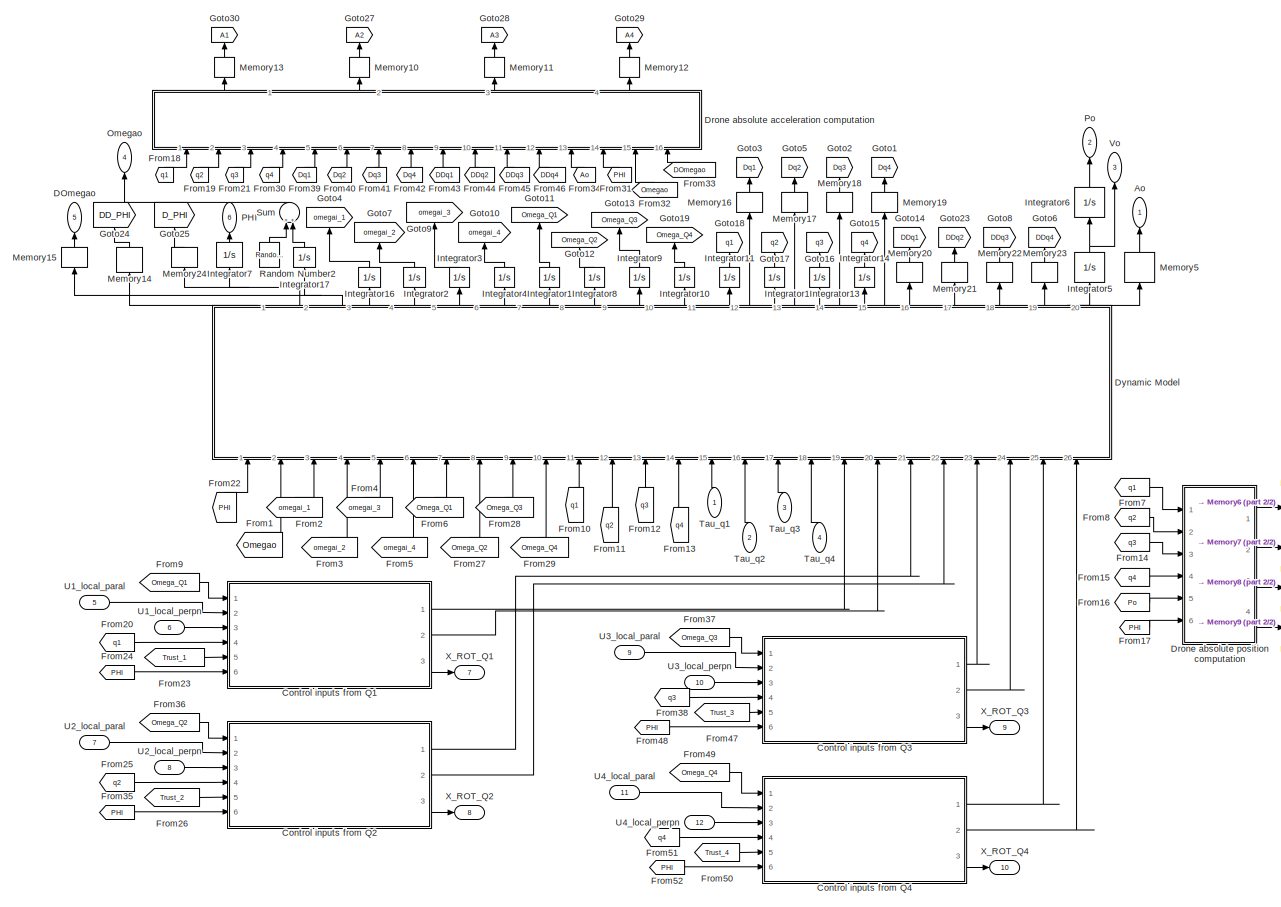
[diagram: Dynamic model of the entire system - part 1/2, most of the canvas]
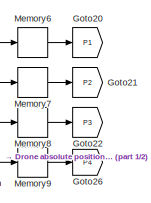
[diagram: Dynamic model of the entire system - part 2/2, middle right region]
BLOCK [SubSystem] Dynamic model of the entire system
  Ports = [12, 10]
  RequestExecContextInheritance = off
BLOCK [Outport] Dynamic model of the entire system/Ao
  IconDisplay = Port number
BLOCK [SubSystem] Dynamic model of the entire system/Control inputs from Q1
  Ports = [6, 3]
  RequestExecContextInheritance = off
BLOCK [SubSystem] Dynamic model of the entire system/Control inputs from Q1/Controller Interpreter #1
  ErrorFcn = Stateflow.Translate.translate
  PermitHierarchicalResolution = ExplicitOnly
  Ports = [4, 2]
  RequestExecContextInheritance = off
  SFBlockType = MATLAB Function
  TreatAsAtomicUnit = on
BLOCK [Demux] Dynamic model of the entire system/Control inputs from Q1/Controller Interpreter #1/ Demux 
  Outputs = 1
  Ports = [1, 1]
BLOCK [S-Function] Dynamic model of the entire system/Control inputs from Q1/Controller Interpreter #1/ SFunction 
  EnableBusSupport = on
  FunctionName = sf_sfun
  PortCounts = [4 3]
  Ports = [4, 3]
  SFcnIsStateOwnerBlock = off
  SFunctionDeploymentMode = off
  Tag = Stateflow S-Function Simple_4Quad_payload_09_2017a 55
BLOCK [Terminator] Dynamic model of the entire system/Control inputs from Q1/Controller Interpreter #1/ Terminator 
BLOCK [Inport] Dynamic model of the entire system/Control inputs from Q1/Controller Interpreter #1/PHIi
  IconDisplay = Port number
  Port = 3
BLOCK [Inport] Dynamic model of the entire system/Control inputs from Q1/Controller Interpreter #1/PHIo
  IconDisplay = Port number
  Port = 4
BLOCK [Inport] Dynamic model of the entire system/Control inputs from Q1/Controller Interpreter #1/UTi
  IconDisplay = Port number
BLOCK [Outport] Dynamic model of the entire system/Control inputs from Q1/Controller Interpreter #1/Ui_local_paral
  IconDisplay = Port number
BLOCK [Outport] Dynamic model of the entire system/Control inputs from Q1/Controller Interpreter #1/Ui_local_perpn
  IconDisplay = Port number
  Port = 2
BLOCK [Inport] Dynamic model of the entire system/Control inputs from Q1/Controller Interpreter #1/qi
  IconDisplay = Port number
  Port = 2
BLOCK [Demux] Dynamic model of the entire system/Control inputs from Q1/Demux
  DisplayOption = bar
  Outputs = 3
  Ports = [1, 3]
BLOCK [Demux] Dynamic model of the entire system/Control inputs from Q1/Demux1
  DisplayOption = bar
  Outputs = 3
  Ports = [1, 3]
BLOCK [From] Dynamic model of the entire system/Control inputs from Q1/From23
  GotoTag = PHI_d1
  TagVisibility = global
BLOCK [Goto] Dynamic model of the entire system/Control inputs from Q1/Goto1
  GotoTag = U1_local_perpn_ACT
  TagVisibility = global
BLOCK [Goto] Dynamic model of the entire system/Control inputs from Q1/Goto2
  GotoTag = PHI_1
  TagVisibility = global
BLOCK [Goto] Dynamic model of the entire system/Control inputs from Q1/Goto20
  GotoTag = U1_local_paral_ACT
  TagVisibility = global
BLOCK [Inport] Dynamic model of the entire system/Control inputs from Q1/Omega_Q1
  IconDisplay = Port number
BLOCK [Inport] Dynamic model of the entire system/Control inputs from Q1/PHIo
  IconDisplay = Port number
  Port = 6
BLOCK [SubSystem] Dynamic model of the entire system/Control inputs from Q1/Rotation_Q1
  Ports = [1, 2]
  RequestExecContextInheritance = off
BLOCK [SubSystem] Dynamic model of the entire system/Control inputs from Q1/Rotation_Q1/D Phi
  ErrorFcn = Stateflow.Translate.translate
  PermitHierarchicalResolution = ExplicitOnly
  Ports = [2, 1]
  RequestExecContextInheritance = off
  SFBlockType = MATLAB Function
  TreatAsAtomicUnit = on
BLOCK [Demux] Dynamic model of the entire system/Control inputs from Q1/Rotation_Q1/D Phi/ Demux 
  Outputs = 1
  Ports = [1, 1]
BLOCK [S-Function] Dynamic model of the entire system/Control inputs from Q1/Rotation_Q1/D Phi/ SFunction 
  EnableBusSupport = on
  FunctionName = sf_sfun
  PortCounts = [2 2]
  Ports = [2, 2]
  SFcnIsStateOwnerBlock = off
  SFunctionDeploymentMode = off
  Tag = Stateflow S-Function Simple_4Quad_payload_09_2017a 2
BLOCK [Terminator] Dynamic model of the entire system/Control inputs from Q1/Rotation_Q1/D Phi/ Terminator 
BLOCK [Outport] Dynamic model of the entire system/Control inputs from Q1/Rotation_Q1/D Phi/D_PHI_Q1
  IconDisplay = Port number
BLOCK [Inport] Dynamic model of the entire system/Control inputs from Q1/Rotation_Q1/D Phi/Omega_Q1
  IconDisplay = Port number
BLOCK [Inport] Dynamic model of the entire system/Control inputs from Q1/Rotation_Q1/D Phi/PHI_Q1
  IconDisplay = Port number
  Port = 2
BLOCK [Integrator] Dynamic model of the entire system/Control inputs from Q1/Rotation_Q1/Integrator
  InitialCondition = zeros(3,1)
  Ports = [1, 1]
BLOCK [Mux] Dynamic model of the entire system/Control inputs from Q1/Rotation_Q1/Mux
  DisplayOption = bar
  Inputs = 2
  Ports = [2, 1]
BLOCK [Inport] Dynamic model of the entire system/Control inputs from Q1/Rotation_Q1/Omega Q1
  IconDisplay = Port number
BLOCK [Outport] Dynamic model of the entire system/Control inputs from Q1/Rotation_Q1/PHI_Q1
  IconDisplay = Port number
  Port = 2
BLOCK [Outport] Dynamic model of the entire system/Control inputs from Q1/Rotation_Q1/X_Rot_Q1
  IconDisplay = Port number
BLOCK [Scope] Dynamic model of the entire system/Control inputs from Q1/Scope
  Floating = off
  NumInputPorts = 3
  Ports = [3]
  ScopeSpecificationString = Simulink.scopes.TimeScopeBlockCfg('CurrentConfiguration', extmgr.ConfigurationSet(extmgr.Configuration('Core','General UI',true),extmgr.Configuration('Core','Source UI',true),extmgr.Configuration('Sources','WiredSimulink',true,'DataLoggingVariableName','ScopeData9'),extmgr.Configuration('Visuals','Time Domain',true,'SerializedDisplays',{struct('MinYLimReal','-0.0000000000006','MaxYLimReal','0.0000...<+2806ch>
BLOCK [Scope] Dynamic model of the entire system/Control inputs from Q1/Scope1
  Floating = off
  NumInputPorts = 3
  Ports = [3]
  ScopeSpecificationString = Simulink.scopes.TimeScopeBlockCfg('CurrentConfiguration', extmgr.ConfigurationSet(extmgr.Configuration('Core','General UI',true),extmgr.Configuration('Core','Source UI',true),extmgr.Configuration('Sources','WiredSimulink',true,'DataLoggingVariableName','ScopeData10'),extmgr.Configuration('Visuals','Time Domain',true,'SerializedDisplays',{struct('MinYLimReal','-0.0000000000006','MaxYLimReal','0.000...<+2783ch>
BLOCK [Inport] Dynamic model of the entire system/Control inputs from Q1/U1_local_paral_INP
  IconDisplay = Port number
  Port = 2
BLOCK [Outport] Dynamic model of the entire system/Control inputs from Q1/U1_local_paral_OUT
  IconDisplay = Port number
BLOCK [Inport] Dynamic model of the entire system/Control inputs from Q1/U1_local_perpn_INP
  IconDisplay = Port number
  Port = 3
BLOCK [Outport] Dynamic model of the entire system/Control inputs from Q1/U1_local_perpn_OUT
  IconDisplay = Port number
  Port = 2
BLOCK [Inport] Dynamic model of the entire system/Control inputs from Q1/UT1
  IconDisplay = Port number
  Port = 5
BLOCK [Outport] Dynamic model of the entire system/Control inputs from Q1/X_ROT_Q1
  IconDisplay = Port number
  Port = 3
BLOCK [Inport] Dynamic model of the entire system/Control inputs from Q1/q1
  IconDisplay = Port number
  Port = 4
BLOCK [SubSystem] Dynamic model of the entire system/Control inputs from Q2
  Ports = [6, 3]
  RequestExecContextInheritance = off
BLOCK [SubSystem] Dynamic model of the entire system/Control inputs from Q2/Controller Interpreter #2
  ErrorFcn = Stateflow.Translate.translate
  PermitHierarchicalResolution = ExplicitOnly
  Ports = [4, 2]
  RequestExecContextInheritance = off
  SFBlockType = MATLAB Function
  TreatAsAtomicUnit = on
BLOCK [Demux] Dynamic model of the entire system/Control inputs from Q2/Controller Interpreter #2/ Demux 
  Outputs = 1
  Ports = [1, 1]
BLOCK [S-Function] Dynamic model of the entire system/Control inputs from Q2/Controller Interpreter #2/ SFunction 
  EnableBusSupport = on
  FunctionName = sf_sfun
  PortCounts = [4 3]
  Ports = [4, 3]
  SFcnIsStateOwnerBlock = off
  SFunctionDeploymentMode = off
  Tag = Stateflow S-Function Simple_4Quad_payload_09_2017a 59
BLOCK [Terminator] Dynamic model of the entire system/Control inputs from Q2/Controller Interpreter #2/ Terminator 
BLOCK [Inport] Dynamic model of the entire system/Control inputs from Q2/Controller Interpreter #2/PHIi
  IconDisplay = Port number
  Port = 3
BLOCK [Inport] Dynamic model of the entire system/Control inputs from Q2/Controller Interpreter #2/PHIo
  IconDisplay = Port number
  Port = 4
BLOCK [Inport] Dynamic model of the entire system/Control inputs from Q2/Controller Interpreter #2/UTi
  IconDisplay = Port number
BLOCK [Outport] Dynamic model of the entire system/Control inputs from Q2/Controller Interpreter #2/Ui_local_paral
  IconDisplay = Port number
BLOCK [Outport] Dynamic model of the entire system/Control inputs from Q2/Controller Interpreter #2/Ui_local_perpn
  IconDisplay = Port number
  Port = 2
BLOCK [Inport] Dynamic model of the entire system/Control inputs from Q2/Controller Interpreter #2/qi
  IconDisplay = Port number
  Port = 2
BLOCK [Goto] Dynamic model of the entire system/Control inputs from Q2/Goto1
  GotoTag = U2_local_perpn_ACT
  TagVisibility = global
BLOCK [Goto] Dynamic model of the entire system/Control inputs from Q2/Goto2
  GotoTag = PHI_2
  TagVisibility = global
BLOCK [Goto] Dynamic model of the entire system/Control inputs from Q2/Goto20
  GotoTag = U2_local_paral_ACT
  TagVisibility = global
BLOCK [Inport] Dynamic model of the entire system/Control inputs from Q2/Omega_Q2
  IconDisplay = Port number
BLOCK [Inport] Dynamic model of the entire system/Control inputs from Q2/PHIo
  IconDisplay = Port number
  Port = 6
BLOCK [SubSystem] Dynamic model of the entire system/Control inputs from Q2/Rotation_Q2
  Ports = [1, 2]
  RequestExecContextInheritance = off
BLOCK [SubSystem] Dynamic model of the entire system/Control inputs from Q2/Rotation_Q2/D Phi
  ErrorFcn = Stateflow.Translate.translate
  PermitHierarchicalResolution = ExplicitOnly
  Ports = [2, 1]
  RequestExecContextInheritance = off
  SFBlockType = MATLAB Function
  TreatAsAtomicUnit = on
BLOCK [Demux] Dynamic model of the entire system/Control inputs from Q2/Rotation_Q2/D Phi/ Demux 
  Outputs = 1
  Ports = [1, 1]
BLOCK [S-Function] Dynamic model of the entire system/Control inputs from Q2/Rotation_Q2/D Phi/ SFunction 
  EnableBusSupport = on
  FunctionName = sf_sfun
  PortCounts = [2 2]
  Ports = [2, 2]
  SFcnIsStateOwnerBlock = off
  SFunctionDeploymentMode = off
  Tag = Stateflow S-Function Simple_4Quad_payload_09_2017a 14
BLOCK [Terminator] Dynamic model of the entire system/Control inputs from Q2/Rotation_Q2/D Phi/ Terminator 
BLOCK [Outport] Dynamic model of the entire system/Control inputs from Q2/Rotation_Q2/D Phi/D_PHI_Q2
  IconDisplay = Port number
BLOCK [Inport] Dynamic model of the entire system/Control inputs from Q2/Rotation_Q2/D Phi/Omega_Q2
  IconDisplay = Port number
BLOCK [Inport] Dynamic model of the entire system/Control inputs from Q2/Rotation_Q2/D Phi/PHI_Q2
  IconDisplay = Port number
  Port = 2
BLOCK [Integrator] Dynamic model of the entire system/Control inputs from Q2/Rotation_Q2/Integrator
  InitialCondition = zeros(3,1)
  Ports = [1, 1]
BLOCK [Mux] Dynamic model of the entire system/Control inputs from Q2/Rotation_Q2/Mux
  DisplayOption = bar
  Inputs = 2
  Ports = [2, 1]
BLOCK [Inport] Dynamic model of the entire system/Control inputs from Q2/Rotation_Q2/Omega Q2
  IconDisplay = Port number
BLOCK [Outport] Dynamic model of the entire system/Control inputs from Q2/Rotation_Q2/PHI_Q2
  IconDisplay = Port number
  Port = 2
BLOCK [Outport] Dynamic model of the entire system/Control inputs from Q2/Rotation_Q2/X_Rot_Q2
  IconDisplay = Port number
BLOCK [Inport] Dynamic model of the entire system/Control inputs from Q2/U2_local_paral_INP
  IconDisplay = Port number
  Port = 2
BLOCK [Outport] Dynamic model of the entire system/Control inputs from Q2/U2_local_paral_OUT
  IconDisplay = Port number
BLOCK [Inport] Dynamic model of the entire system/Control inputs from Q2/U2_local_perpn_INP
  IconDisplay = Port number
  Port = 3
BLOCK [Outport] Dynamic model of the entire system/Control inputs from Q2/U2_local_perpn_OUT
  IconDisplay = Port number
  Port = 2
BLOCK [Inport] Dynamic model of the entire system/Control inputs from Q2/UT2
  IconDisplay = Port number
  Port = 5
BLOCK [Outport] Dynamic model of the entire system/Control inputs from Q2/X_ROT_Q2
  IconDisplay = Port number
  Port = 3
BLOCK [Inport] Dynamic model of the entire system/Control inputs from Q2/q2
  IconDisplay = Port number
  Port = 4
BLOCK [SubSystem] Dynamic model of the entire system/Control inputs from Q3
  Ports = [6, 3]
  RequestExecContextInheritance = off
BLOCK [SubSystem] Dynamic model of the entire system/Control inputs from Q3/Controller Interpreter #3
  ErrorFcn = Stateflow.Translate.translate
  PermitHierarchicalResolution = ExplicitOnly
  Ports = [4, 2]
  RequestExecContextInheritance = off
  SFBlockType = MATLAB Function
  TreatAsAtomicUnit = on
BLOCK [Demux] Dynamic model of the entire system/Control inputs from Q3/Controller Interpreter #3/ Demux 
  Outputs = 1
  Ports = [1, 1]
BLOCK [S-Function] Dynamic model of the entire system/Control inputs from Q3/Controller Interpreter #3/ SFunction 
  EnableBusSupport = on
  FunctionName = sf_sfun
  PortCounts = [4 3]
  Ports = [4, 3]
  SFcnIsStateOwnerBlock = off
  SFunctionDeploymentMode = off
  Tag = Stateflow S-Function Simple_4Quad_payload_09_2017a 60
BLOCK [Terminator] Dynamic model of the entire system/Control inputs from Q3/Controller Interpreter #3/ Terminator 
BLOCK [Inport] Dynamic model of the entire system/Control inputs from Q3/Controller Interpreter #3/PHIi
  IconDisplay = Port number
  Port = 3
BLOCK [Inport] Dynamic model of the entire system/Control inputs from Q3/Controller Interpreter #3/PHIo
  IconDisplay = Port number
  Port = 4
BLOCK [Inport] Dynamic model of the entire system/Control inputs from Q3/Controller Interpreter #3/UTi
  IconDisplay = Port number
BLOCK [Outport] Dynamic model of the entire system/Control inputs from Q3/Controller Interpreter #3/Ui_local_paral
  IconDisplay = Port number
BLOCK [Outport] Dynamic model of the entire system/Control inputs from Q3/Controller Interpreter #3/Ui_local_perpn
  IconDisplay = Port number
  Port = 2
BLOCK [Inport] Dynamic model of the entire system/Control inputs from Q3/Controller Interpreter #3/qi
  IconDisplay = Port number
  Port = 2
BLOCK [Goto] Dynamic model of the entire system/Control inputs from Q3/Goto1
  GotoTag = U3_local_perpn_ACT
  TagVisibility = global
BLOCK [Goto] Dynamic model of the entire system/Control inputs from Q3/Goto2
  GotoTag = PHI_3
  TagVisibility = global
BLOCK [Goto] Dynamic model of the entire system/Control inputs from Q3/Goto20
  GotoTag = U3_local_paral_ACT
  TagVisibility = global
BLOCK [Inport] Dynamic model of the entire system/Control inputs from Q3/Omega_Q3
  IconDisplay = Port number
BLOCK [Inport] Dynamic model of the entire system/Control inputs from Q3/PHIo
  IconDisplay = Port number
  Port = 6
BLOCK [SubSystem] Dynamic model of the entire system/Control inputs from Q3/Rotation_Q3
  Ports = [1, 2]
  RequestExecContextInheritance = off
BLOCK [SubSystem] Dynamic model of the entire system/Control inputs from Q3/Rotation_Q3/D Phi
  ErrorFcn = Stateflow.Translate.translate
  PermitHierarchicalResolution = ExplicitOnly
  Ports = [2, 1]
  RequestExecContextInheritance = off
  SFBlockType = MATLAB Function
  TreatAsAtomicUnit = on
BLOCK [Demux] Dynamic model of the entire system/Control inputs from Q3/Rotation_Q3/D Phi/ Demux 
  Outputs = 1
  Ports = [1, 1]
BLOCK [S-Function] Dynamic model of the entire system/Control inputs from Q3/Rotation_Q3/D Phi/ SFunction 
  EnableBusSupport = on
  FunctionName = sf_sfun
  PortCounts = [2 2]
  Ports = [2, 2]
  SFcnIsStateOwnerBlock = off
  SFunctionDeploymentMode = off
  Tag = Stateflow S-Function Simple_4Quad_payload_09_2017a 20
BLOCK [Terminator] Dynamic model of the entire system/Control inputs from Q3/Rotation_Q3/D Phi/ Terminator 
BLOCK [Outport] Dynamic model of the entire system/Control inputs from Q3/Rotation_Q3/D Phi/D_PHI_Q3
  IconDisplay = Port number
BLOCK [Inport] Dynamic model of the entire system/Control inputs from Q3/Rotation_Q3/D Phi/Omega_Q3
  IconDisplay = Port number
BLOCK [Inport] Dynamic model of the entire system/Control inputs from Q3/Rotation_Q3/D Phi/PHI_Q3
  IconDisplay = Port number
  Port = 2
BLOCK [Integrator] Dynamic model of the entire system/Control inputs from Q3/Rotation_Q3/Integrator
  InitialCondition = zeros(3,1)
  Ports = [1, 1]
BLOCK [Mux] Dynamic model of the entire system/Control inputs from Q3/Rotation_Q3/Mux
  DisplayOption = bar
  Inputs = 2
  Ports = [2, 1]
BLOCK [Inport] Dynamic model of the entire system/Control inputs from Q3/Rotation_Q3/Omega Q3
  IconDisplay = Port number
BLOCK [Outport] Dynamic model of the entire system/Control inputs from Q3/Rotation_Q3/PHI_Q3
  IconDisplay = Port number
  Port = 2
BLOCK [Outport] Dynamic model of the entire system/Control inputs from Q3/Rotation_Q3/X_Rot_Q3
  IconDisplay = Port number
BLOCK [Inport] Dynamic model of the entire system/Control inputs from Q3/U3_local_paral_INP
  IconDisplay = Port number
  Port = 2
BLOCK [Outport] Dynamic model of the entire system/Control inputs from Q3/U3_local_paral_OUT
  IconDisplay = Port number
BLOCK [Inport] Dynamic model of the entire system/Control inputs from Q3/U3_local_perpn_INP
  IconDisplay = Port number
  Port = 3
BLOCK [Outport] Dynamic model of the entire system/Control inputs from Q3/U3_local_perpn_OUT
  IconDisplay = Port number
  Port = 2
BLOCK [Inport] Dynamic model of the entire system/Control inputs from Q3/UT3
  IconDisplay = Port number
  Port = 5
BLOCK [Outport] Dynamic model of the entire system/Control inputs from Q3/X_ROT_Q3
  IconDisplay = Port number
  Port = 3
BLOCK [Inport] Dynamic model of the entire system/Control inputs from Q3/q3
  IconDisplay = Port number
  Port = 4
BLOCK [SubSystem] Dynamic model of the entire system/Control inputs from Q4
  Ports = [6, 3]
  RequestExecContextInheritance = off
BLOCK [SubSystem] Dynamic model of the entire system/Control inputs from Q4/Controller Interpreter #4
  ErrorFcn = Stateflow.Translate.translate
  PermitHierarchicalResolution = ExplicitOnly
  Ports = [4, 2]
  RequestExecContextInheritance = off
  SFBlockType = MATLAB Function
  TreatAsAtomicUnit = on
BLOCK [Demux] Dynamic model of the entire system/Control inputs from Q4/Controller Interpreter #4/ Demux 
  Outputs = 1
  Ports = [1, 1]
BLOCK [S-Function] Dynamic model of the entire system/Control inputs from Q4/Controller Interpreter #4/ SFunction 
  EnableBusSupport = on
  FunctionName = sf_sfun
  PortCounts = [4 3]
  Ports = [4, 3]
  SFcnIsStateOwnerBlock = off
  SFunctionDeploymentMode = off
  Tag = Stateflow S-Function Simple_4Quad_payload_09_2017a 61
BLOCK [Terminator] Dynamic model of the entire system/Control inputs from Q4/Controller Interpreter #4/ Terminator 
BLOCK [Inport] Dynamic model of the entire system/Control inputs from Q4/Controller Interpreter #4/PHIi
  IconDisplay = Port number
  Port = 3
BLOCK [Inport] Dynamic model of the entire system/Control inputs from Q4/Controller Interpreter #4/PHIo
  IconDisplay = Port number
  Port = 4
BLOCK [Inport] Dynamic model of the entire system/Control inputs from Q4/Controller Interpreter #4/UTi
  IconDisplay = Port number
BLOCK [Outport] Dynamic model of the entire system/Control inputs from Q4/Controller Interpreter #4/Ui_local_paral
  IconDisplay = Port number
BLOCK [Outport] Dynamic model of the entire system/Control inputs from Q4/Controller Interpreter #4/Ui_local_perpn
  IconDisplay = Port number
  Port = 2
BLOCK [Inport] Dynamic model of the entire system/Control inputs from Q4/Controller Interpreter #4/qi
  IconDisplay = Port number
  Port = 2
BLOCK [Goto] Dynamic model of the entire system/Control inputs from Q4/Goto1
  GotoTag = U4_local_perpn_ACT
  TagVisibility = global
BLOCK [Goto] Dynamic model of the entire system/Control inputs from Q4/Goto2
  GotoTag = PHI_4
  TagVisibility = global
BLOCK [Goto] Dynamic model of the entire system/Control inputs from Q4/Goto20
  GotoTag = U4_local_paral_ACT
  TagVisibility = global
BLOCK [Inport] Dynamic model of the entire system/Control inputs from Q4/Omega_Q4
  IconDisplay = Port number
BLOCK [Inport] Dynamic model of the entire system/Control inputs from Q4/PHIo
  IconDisplay = Port number
  Port = 6
BLOCK [SubSystem] Dynamic model of the entire system/Control inputs from Q4/Rotation_Q4
  Ports = [1, 2]
  RequestExecContextInheritance = off
BLOCK [SubSystem] Dynamic model of the entire system/Control inputs from Q4/Rotation_Q4/D Phi
  ErrorFcn = Stateflow.Translate.translate
  PermitHierarchicalResolution = ExplicitOnly
  Ports = [2, 1]
  RequestExecContextInheritance = off
  SFBlockType = MATLAB Function
  TreatAsAtomicUnit = on
BLOCK [Demux] Dynamic model of the entire system/Control inputs from Q4/Rotation_Q4/D Phi/ Demux 
  Outputs = 1
  Ports = [1, 1]
BLOCK [S-Function] Dynamic model of the entire system/Control inputs from Q4/Rotation_Q4/D Phi/ SFunction 
  EnableBusSupport = on
  FunctionName = sf_sfun
  PortCounts = [2 2]
  Ports = [2, 2]
  SFcnIsStateOwnerBlock = off
  SFunctionDeploymentMode = off
  Tag = Stateflow S-Function Simple_4Quad_payload_09_2017a 21
BLOCK [Terminator] Dynamic model of the entire system/Control inputs from Q4/Rotation_Q4/D Phi/ Terminator 
BLOCK [Outport] Dynamic model of the entire system/Control inputs from Q4/Rotation_Q4/D Phi/D_PHI_Q4
  IconDisplay = Port number
BLOCK [Inport] Dynamic model of the entire system/Control inputs from Q4/Rotation_Q4/D Phi/Omega_Q4
  IconDisplay = Port number
BLOCK [Inport] Dynamic model of the entire system/Control inputs from Q4/Rotation_Q4/D Phi/PHI_Q4
  IconDisplay = Port number
  Port = 2
BLOCK [Integrator] Dynamic model of the entire system/Control inputs from Q4/Rotation_Q4/Integrator
  InitialCondition = zeros(3,1)
  Ports = [1, 1]
BLOCK [Mux] Dynamic model of the entire system/Control inputs from Q4/Rotation_Q4/Mux
  DisplayOption = bar
  Inputs = 2
  Ports = [2, 1]
BLOCK [Inport] Dynamic model of the entire system/Control inputs from Q4/Rotation_Q4/Omega Q4
  IconDisplay = Port number
BLOCK [Outport] Dynamic model of the entire system/Control inputs from Q4/Rotation_Q4/PHI_Q4
  IconDisplay = Port number
  Port = 2
BLOCK [Outport] Dynamic model of the entire system/Control inputs from Q4/Rotation_Q4/X_Rot_Q4
  IconDisplay = Port number
BLOCK [Inport] Dynamic model of the entire system/Control inputs from Q4/U4_local_paral_INP
  IconDisplay = Port number
  Port = 2
BLOCK [Outport] Dynamic model of the entire system/Control inputs from Q4/U4_local_paral_OUT
  IconDisplay = Port number
BLOCK [Inport] Dynamic model of the entire system/Control inputs from Q4/U4_local_perpn_INP
  IconDisplay = Port number
  Port = 3
BLOCK [Outport] Dynamic model of the entire system/Control inputs from Q4/U4_local_perpn_OUT
  IconDisplay = Port number
  Port = 2
BLOCK [Inport] Dynamic model of the entire system/Control inputs from Q4/UT4
  IconDisplay = Port number
  Port = 5
BLOCK [Outport] Dynamic model of the entire system/Control inputs from Q4/X_ROT_Q4
  IconDisplay = Port number
  Port = 3
BLOCK [Inport] Dynamic model of the entire system/Control inputs from Q4/q4
  IconDisplay = Port number
  Port = 4
BLOCK [Outport] Dynamic model of the entire system/DOmegao
  IconDisplay = Port number
  Port = 5
BLOCK [SubSystem] Dynamic model of the entire system/Drone absolute acceleration computation
  ErrorFcn = Stateflow.Translate.translate
  PermitHierarchicalResolution = ExplicitOnly
  Ports = [16, 4]
  RequestExecContextInheritance = off
  SFBlockType = MATLAB Function
  TreatAsAtomicUnit = on
BLOCK [Demux] Dynamic model of the entire system/Drone absolute acceleration computation/ Demux 
  Outputs = 1
  Ports = [1, 1]
BLOCK [S-Function] Dynamic model of the entire system/Drone absolute acceleration computation/ SFunction 
  EnableBusSupport = on
  FunctionName = sf_sfun
  Parameters = All_rho,l
  PortCounts = [16 5]
  Ports = [16, 5]
  SFcnIsStateOwnerBlock = off
  SFunctionDeploymentMode = off
  Tag = Stateflow S-Function Simple_4Quad_payload_09_2017a 49
BLOCK [Terminator] Dynamic model of the entire system/Drone absolute acceleration computation/ Terminator 
BLOCK [Inport] Dynamic model of the entire system/Drone absolute acceleration computation/DDq1
  IconDisplay = Port number
  Port = 9
BLOCK [Inport] Dynamic model of the entire system/Drone absolute acceleration computation/DDq2
  IconDisplay = Port number
  Port = 10
BLOCK [Inport] Dynamic model of the entire system/Drone absolute acceleration computation/DDq3
  IconDisplay = Port number
  Port = 11
BLOCK [Inport] Dynamic model of the entire system/Drone absolute acceleration computation/DDq4
  IconDisplay = Port number
  Port = 12
BLOCK [Outport] Dynamic model of the entire system/Drone absolute acceleration computation/DDr1
  IconDisplay = Port number
BLOCK [Outport] Dynamic model of the entire system/Drone absolute acceleration computation/DDr2
  IconDisplay = Port number
  Port = 2
BLOCK [Outport] Dynamic model of the entire system/Drone absolute acceleration computation/DDr3
  IconDisplay = Port number
  Port = 3
BLOCK [Outport] Dynamic model of the entire system/Drone absolute acceleration computation/DDr4
  IconDisplay = Port number
  Port = 4
BLOCK [Inport] Dynamic model of the entire system/Drone absolute acceleration computation/DDro
  IconDisplay = Port number
  Port = 13
BLOCK [Inport] Dynamic model of the entire system/Drone absolute acceleration computation/Dq1
  IconDisplay = Port number
  Port = 5
BLOCK [Inport] Dynamic model of the entire system/Drone absolute acceleration computation/Dq2
  IconDisplay = Port number
  Port = 6
BLOCK [Inport] Dynamic model of the entire system/Drone absolute acceleration computation/Dq3
  IconDisplay = Port number
  Port = 7
BLOCK [Inport] Dynamic model of the entire system/Drone absolute acceleration computation/Dq4
  IconDisplay = Port number
  Port = 8
BLOCK [Inport] Dynamic model of the entire system/Drone absolute acceleration computation/Dwo
  IconDisplay = Port number
  Port = 16
BLOCK [Inport] Dynamic model of the entire system/Drone absolute acceleration computation/PHI
  IconDisplay = Port number
  Port = 14
BLOCK [Inport] Dynamic model of the entire system/Drone absolute acceleration computation/q1
  IconDisplay = Port number
BLOCK [Inport] Dynamic model of the entire system/Drone absolute acceleration computation/q2
  IconDisplay = Port number
  Port = 2
BLOCK [Inport] Dynamic model of the entire system/Drone absolute acceleration computation/q3
  IconDisplay = Port number
  Port = 3
BLOCK [Inport] Dynamic model of the entire system/Drone absolute acceleration computation/q4
  IconDisplay = Port number
  Port = 4
BLOCK [Inport] Dynamic model of the entire system/Drone absolute acceleration computation/wo
  IconDisplay = Port number
  Port = 15
BLOCK [SubSystem] Dynamic model of the entire system/Drone absolute position computation
  ErrorFcn = Stateflow.Translate.translate
  PermitHierarchicalResolution = ExplicitOnly
  Ports = [6, 4]
  RequestExecContextInheritance = off
  SFBlockType = MATLAB Function
  TreatAsAtomicUnit = on
BLOCK [Demux] Dynamic model of the entire system/Drone absolute position computation/ Demux 
  Outputs = 1
  Ports = [1, 1]
BLOCK [S-Function] Dynamic model of the entire system/Drone absolute position computation/ SFunction 
  EnableBusSupport = on
  FunctionName = sf_sfun
  Parameters = All_rho,l
  PortCounts = [6 5]
  Ports = [6, 5]
  SFcnIsStateOwnerBlock = off
  SFunctionDeploymentMode = off
  Tag = Stateflow S-Function Simple_4Quad_payload_09_2017a 47
BLOCK [Terminator] Dynamic model of the entire system/Drone absolute position computation/ Terminator 
BLOCK [Inport] Dynamic model of the entire system/Drone absolute position computation/PHI
  IconDisplay = Port number
  Port = 6
BLOCK [Inport] Dynamic model of the entire system/Drone absolute position computation/q1
  IconDisplay = Port number
BLOCK [Inport] Dynamic model of the entire system/Drone absolute position computation/q2
  IconDisplay = Port number
  Port = 2
BLOCK [Inport] Dynamic model of the entire system/Drone absolute position computation/q3
  IconDisplay = Port number
  Port = 3
BLOCK [Inport] Dynamic model of the entire system/Drone absolute position computation/q4
  IconDisplay = Port number
  Port = 4
BLOCK [Outport] Dynamic model of the entire system/Drone absolute position computation/r1
  IconDisplay = Port number
BLOCK [Outport] Dynamic model of the entire system/Drone absolute position computation/r2
  IconDisplay = Port number
  Port = 2
BLOCK [Outport] Dynamic model of the entire system/Drone absolute position computation/r3
  IconDisplay = Port number
  Port = 3
BLOCK [Outport] Dynamic model of the entire system/Drone absolute position computation/r4
  IconDisplay = Port number
  Port = 4
BLOCK [Inport] Dynamic model of the entire system/Drone absolute position computation/ro
  IconDisplay = Port number
  Port = 5
BLOCK [SubSystem] Dynamic model of the entire system/Dynamic Model 
  ErrorFcn = Stateflow.Translate.translate
  PermitHierarchicalResolution = ExplicitOnly
  Ports = [26, 20]
  RequestExecContextInheritance = off
  SFBlockType = MATLAB Function
  TreatAsAtomicUnit = on
BLOCK [Demux] Dynamic model of the entire system/Dynamic Model / Demux 
  Outputs = 1
  Ports = [1, 1]
BLOCK [S-Function] Dynamic model of the entire system/Dynamic Model / SFunction 
  EnableBusSupport = on
  FunctionName = sf_sfun
  Parameters = All_rho,Jo,Jq,M,g,l,m
  PortCounts = [26 21]
  Ports = [26, 21]
  SFcnIsStateOwnerBlock = off
  SFunctionDeploymentMode = off
  Tag = Stateflow S-Function Simple_4Quad_payload_09_2017a 9
BLOCK [Terminator] Dynamic model of the entire system/Dynamic Model / Terminator 
BLOCK [Outport] Dynamic model of the entire system/Dynamic Model /DD_PHI
  IconDisplay = Port number
BLOCK [Outport] Dynamic model of the entire system/Dynamic Model /DD_Po
  IconDisplay = Port number
  Port = 20
BLOCK [Outport] Dynamic model of the entire system/Dynamic Model /DDq1
  IconDisplay = Port number
  Port = 16
BLOCK [Outport] Dynamic model of the entire system/Dynamic Model /DDq2
  IconDisplay = Port number
  Port = 17
BLOCK [Outport] Dynamic model of the entire system/Dynamic Model /DDq3
  IconDisplay = Port number
  Port = 18
BLOCK [Outport] Dynamic model of the entire system/Dynamic Model /DDq4
  IconDisplay = Port number
  Port = 19
BLOCK [Outport] Dynamic model of the entire system/Dynamic Model /D_Omega_Q1
  IconDisplay = Port number
  Port = 8
BLOCK [Outport] Dynamic model of the entire system/Dynamic Model /D_Omega_Q2
  IconDisplay = Port number
  Port = 9
BLOCK [Outport] Dynamic model of the entire system/Dynamic Model /D_Omega_Q3
  IconDisplay = Port number
  Port = 10
BLOCK [Outport] Dynamic model of the entire system/Dynamic Model /D_Omega_Q4
  IconDisplay = Port number
  Port = 11
BLOCK [Outport] Dynamic model of the entire system/Dynamic Model /D_Omegao
  IconDisplay = Port number
  Port = 3
BLOCK [Outport] Dynamic model of the entire system/Dynamic Model /D_PHI
  IconDisplay = Port number
  Port = 2
BLOCK [Outport] Dynamic model of the entire system/Dynamic Model /D_omegai_1
  IconDisplay = Port number
  Port = 4
BLOCK [Outport] Dynamic model of the entire system/Dynamic Model /D_omegai_2
  IconDisplay = Port number
  Port = 5
BLOCK [Outport] Dynamic model of the entire system/Dynamic Model /D_omegai_3
  IconDisplay = Port number
  Port = 6
BLOCK [Outport] Dynamic model of the entire system/Dynamic Model /D_omegai_4
  IconDisplay = Port number
  Port = 7
BLOCK [Outport] Dynamic model of the entire system/Dynamic Model /Dq1
  IconDisplay = Port number
  Port = 12
BLOCK [Outport] Dynamic model of the entire system/Dynamic Model /Dq2
  IconDisplay = Port number
  Port = 13
BLOCK [Outport] Dynamic model of the entire system/Dynamic Model /Dq3
  IconDisplay = Port number
  Port = 14
BLOCK [Outport] Dynamic model of the entire system/Dynamic Model /Dq4
  IconDisplay = Port number
  Port = 15
BLOCK [Inport] Dynamic model of the entire system/Dynamic Model /Omega_q1
  IconDisplay = Port number
  Port = 7
BLOCK [Inport] Dynamic model of the entire system/Dynamic Model /Omega_q2
  IconDisplay = Port number
  Port = 8
BLOCK [Inport] Dynamic model of the entire system/Dynamic Model /Omega_q3
  IconDisplay = Port number
  Port = 9
BLOCK [Inport] Dynamic model of the entire system/Dynamic Model /Omega_q4
  IconDisplay = Port number
  Port = 10
BLOCK [Inport] Dynamic model of the entire system/Dynamic Model /Omegao
  IconDisplay = Port number
  Port = 2
BLOCK [Inport] Dynamic model of the entire system/Dynamic Model /PHI
  IconDisplay = Port number
BLOCK [Inport] Dynamic model of the entire system/Dynamic Model /Tau_q1
  IconDisplay = Port number
  Port = 15
BLOCK [Inport] Dynamic model of the entire system/Dynamic Model /Tau_q2
  IconDisplay = Port number
  Port = 16
BLOCK [Inport] Dynamic model of the entire system/Dynamic Model /Tau_q3
  IconDisplay = Port number
  Port = 17
BLOCK [Inport] Dynamic model of the entire system/Dynamic Model /Tau_q4
  IconDisplay = Port number
  Port = 18
BLOCK [Inport] Dynamic model of the entire system/Dynamic Model /U1_local_paral
  IconDisplay = Port number
  Port = 19
BLOCK [Inport] Dynamic model of the entire system/Dynamic Model /U1_local_perpn
  IconDisplay = Port number
  Port = 20
BLOCK [Inport] Dynamic model of the entire system/Dynamic Model /U2_local_paral
  IconDisplay = Port number
  Port = 21
BLOCK [Inport] Dynamic model of the entire system/Dynamic Model /U2_local_perpn
  IconDisplay = Port number
  Port = 22
BLOCK [Inport] Dynamic model of the entire system/Dynamic Model /U3_local_paral
  IconDisplay = Port number
  Port = 23
BLOCK [Inport] Dynamic model of the entire system/Dynamic Model /U3_local_perpn
  IconDisplay = Port number
  Port = 24
BLOCK [Inport] Dynamic model of the entire system/Dynamic Model /U4_local_paral
  IconDisplay = Port number
  Port = 25
BLOCK [Inport] Dynamic model of the entire system/Dynamic Model /U4_local_perpn
  IconDisplay = Port number
  Port = 26
BLOCK [Inport] Dynamic model of the entire system/Dynamic Model /omegai1
  IconDisplay = Port number
  Port = 3
BLOCK [Inport] Dynamic model of the entire system/Dynamic Model /omegai2
  IconDisplay = Port number
  Port = 4
BLOCK [Inport] Dynamic model of the entire system/Dynamic Model /omegai3
  IconDisplay = Port number
  Port = 5
BLOCK [Inport] Dynamic model of the entire system/Dynamic Model /omegai4
  IconDisplay = Port number
  Port = 6
BLOCK [Inport] Dynamic model of the entire system/Dynamic Model /q1
  IconDisplay = Port number
  Port = 11
BLOCK [Inport] Dynamic model of the entire system/Dynamic Model /q2
  IconDisplay = Port number
  Port = 12
BLOCK [Inport] Dynamic model of the entire system/Dynamic Model /q3
  IconDisplay = Port number
  Port = 13
BLOCK [Inport] Dynamic model of the entire system/Dynamic Model /q4
  IconDisplay = Port number
  Port = 14
BLOCK [From] Dynamic model of the entire system/From1
  GotoTag = Omegao
  TagVisibility = global
BLOCK [From] Dynamic model of the entire system/From10
  GotoTag = q1
  TagVisibility = global
BLOCK [From] Dynamic model of the entire system/From11
  GotoTag = q2
  TagVisibility = global
BLOCK [From] Dynamic model of the entire system/From12
  GotoTag = q3
  TagVisibility = global
BLOCK [From] Dynamic model of the entire system/From13
  GotoTag = q4
  TagVisibility = global
BLOCK [From] Dynamic model of the entire system/From14
  GotoTag = q3
  TagVisibility = global
BLOCK [From] Dynamic model of the entire system/From15
  GotoTag = q4
  TagVisibility = global
BLOCK [From] Dynamic model of the entire system/From16
  GotoTag = Po
  TagVisibility = global
BLOCK [From] Dynamic model of the entire system/From17
  GotoTag = PHI
  TagVisibility = global
BLOCK [From] Dynamic model of the entire system/From18
  GotoTag = q1
  TagVisibility = global
BLOCK [From] Dynamic model of the entire system/From19
  GotoTag = q2
  TagVisibility = global
BLOCK [From] Dynamic model of the entire system/From2
  GotoTag = omegai_1
  TagVisibility = global
BLOCK [From] Dynamic model of the entire system/From20
  GotoTag = q1
  TagVisibility = global
BLOCK [From] Dynamic model of the entire system/From21
  GotoTag = q3
  TagVisibility = global
BLOCK [From] Dynamic model of the entire system/From22
  GotoTag = PHI
  TagVisibility = global
BLOCK [From] Dynamic model of the entire system/From23
  GotoTag = Trust_1
  TagVisibility = global
BLOCK [From] Dynamic model of the entire system/From24
  GotoTag = PHI
  TagVisibility = global
BLOCK [From] Dynamic model of the entire system/From25
  GotoTag = q2
  TagVisibility = global
BLOCK [From] Dynamic model of the entire system/From26
  GotoTag = Trust_2
  TagVisibility = global
BLOCK [From] Dynamic model of the entire system/From27
  GotoTag = Omega_Q2
  TagVisibility = global
BLOCK [From] Dynamic model of the entire system/From28
  GotoTag = Omega_Q3
  TagVisibility = global
BLOCK [From] Dynamic model of the entire system/From29
  GotoTag = Omega_Q4
  TagVisibility = global
BLOCK [From] Dynamic model of the entire system/From3
  GotoTag = omegai_2
  TagVisibility = global
BLOCK [From] Dynamic model of the entire system/From30
  GotoTag = q4
  TagVisibility = global
BLOCK [From] Dynamic model of the entire system/From31
  GotoTag = PHI
  TagVisibility = global
BLOCK [From] Dynamic model of the entire system/From32
  GotoTag = Omegao
  TagVisibility = global
BLOCK [From] Dynamic model of the entire system/From33
  GotoTag = DOmegao
  TagVisibility = global
BLOCK [From] Dynamic model of the entire system/From34
  GotoTag = Ao
  TagVisibility = global
BLOCK [From] Dynamic model of the entire system/From35
  GotoTag = PHI
  TagVisibility = global
BLOCK [From] Dynamic model of the entire system/From36
  GotoTag = Omega_Q2
  TagVisibility = global
BLOCK [From] Dynamic model of the entire system/From37
  GotoTag = Omega_Q3
  TagVisibility = global
BLOCK [From] Dynamic model of the entire system/From38
  GotoTag = q3
  TagVisibility = global
BLOCK [From] Dynamic model of the entire system/From39
  GotoTag = Dq1
  TagVisibility = global
BLOCK [From] Dynamic model of the entire system/From4
  GotoTag = omegai_3
  TagVisibility = global
BLOCK [From] Dynamic model of the entire system/From40
  GotoTag = Dq2
  TagVisibility = global
BLOCK [From] Dynamic model of the entire system/From41
  GotoTag = Dq3
  TagVisibility = global
BLOCK [From] Dynamic model of the entire system/From42
  GotoTag = Dq4
  TagVisibility = global
BLOCK [From] Dynamic model of the entire system/From43
  GotoTag = DDq1
  TagVisibility = global
BLOCK [From] Dynamic model of the entire system/From44
  GotoTag = DDq2
  TagVisibility = global
BLOCK [From] Dynamic model of the entire system/From45
  GotoTag = DDq3
  TagVisibility = global
BLOCK [From] Dynamic model of the entire system/From46
  GotoTag = DDq4
  TagVisibility = global
BLOCK [From] Dynamic model of the entire system/From47
  GotoTag = Trust_3
  TagVisibility = global
BLOCK [From] Dynamic model of the entire system/From48
  GotoTag = PHI
  TagVisibility = global
BLOCK [From] Dynamic model of the entire system/From49
  GotoTag = Omega_Q4
  TagVisibility = global
BLOCK [From] Dynamic model of the entire system/From5
  GotoTag = omegai_4
  TagVisibility = global
BLOCK [From] Dynamic model of the entire system/From50
  GotoTag = Trust_4
  TagVisibility = global
BLOCK [From] Dynamic model of the entire system/From51
  GotoTag = q4
  TagVisibility = global
BLOCK [From] Dynamic model of the entire system/From52
  GotoTag = PHI
  TagVisibility = global
BLOCK [From] Dynamic model of the entire system/From6
  GotoTag = Omega_Q1
  TagVisibility = global
BLOCK [From] Dynamic model of the entire system/From7
  GotoTag = q1
  TagVisibility = global
BLOCK [From] Dynamic model of the entire system/From8
  GotoTag = q2
  TagVisibility = global
BLOCK [From] Dynamic model of the entire system/From9
  GotoTag = Omega_Q1
  TagVisibility = global
BLOCK [Goto] Dynamic model of the entire system/Goto1
  GotoTag = Dq4
  TagVisibility = global
BLOCK [Goto] Dynamic model of the entire system/Goto10
  GotoTag = omegai_4
  TagVisibility = global
BLOCK [Goto] Dynamic model of the entire system/Goto11
  GotoTag = Omega_Q1
  TagVisibility = global
BLOCK [Goto] Dynamic model of the entire system/Goto12
  GotoTag = Omega_Q2
  TagVisibility = global
BLOCK [Goto] Dynamic model of the entire system/Goto13
  GotoTag = Omega_Q3
  TagVisibility = global
BLOCK [Goto] Dynamic model of the entire system/Goto14
  GotoTag = DDq1
  TagVisibility = global
BLOCK [Goto] Dynamic model of the entire system/Goto15
  GotoTag = q4
  TagVisibility = global
BLOCK [Goto] Dynamic model of the entire system/Goto16
  GotoTag = q3
  TagVisibility = global
BLOCK [Goto] Dynamic model of the entire system/Goto17
  GotoTag = q2
  TagVisibility = global
BLOCK [Goto] Dynamic model of the entire system/Goto18
  GotoTag = q1
  TagVisibility = global
BLOCK [Goto] Dynamic model of the entire system/Goto19
  GotoTag = Omega_Q4
  TagVisibility = global
BLOCK [Goto] Dynamic model of the entire system/Goto2
  GotoTag = Dq3
  TagVisibility = global
BLOCK [Goto] Dynamic model of the entire system/Goto20
  GotoTag = P1
  TagVisibility = global
BLOCK [Goto] Dynamic model of the entire system/Goto21
  GotoTag = P2
  TagVisibility = global
BLOCK [Goto] Dynamic model of the entire system/Goto22
  GotoTag = P3
  TagVisibility = global
BLOCK [Goto] Dynamic model of the entire system/Goto23
  GotoTag = DDq2
  TagVisibility = global
BLOCK [Goto] Dynamic model of the entire system/Goto24
  GotoTag = DD_PHI
  TagVisibility = global
BLOCK [Goto] Dynamic model of the entire system/Goto25
  GotoTag = D_PHI
  TagVisibility = global
BLOCK [Goto] Dynamic model of the entire system/Goto26
  GotoTag = P4
  TagVisibility = global
BLOCK [Goto] Dynamic model of the entire system/Goto27
  GotoTag = A2
  TagVisibility = global
BLOCK [Goto] Dynamic model of the entire system/Goto28
  GotoTag = A3
  TagVisibility = global
BLOCK [Goto] Dynamic model of the entire system/Goto29
  GotoTag = A4
  TagVisibility = global
BLOCK [Goto] Dynamic model of the entire system/Goto3
  GotoTag = Dq1
  TagVisibility = global
BLOCK [Goto] Dynamic model of the entire system/Goto30
  GotoTag = A1
  TagVisibility = global
BLOCK [Goto] Dynamic model of the entire system/Goto4
  GotoTag = omegai_1
  TagVisibility = global
BLOCK [Goto] Dynamic model of the entire system/Goto5
  GotoTag = Dq2
  TagVisibility = global
BLOCK [Goto] Dynamic model of the entire system/Goto6
  GotoTag = DDq4
  TagVisibility = global
BLOCK [Goto] Dynamic model of the entire system/Goto7
  GotoTag = omegai_2
  TagVisibility = global
BLOCK [Goto] Dynamic model of the entire system/Goto8
  GotoTag = DDq3
  TagVisibility = global
BLOCK [Goto] Dynamic model of the entire system/Goto9
  GotoTag = omegai_3
  TagVisibility = global
BLOCK [Integrator] Dynamic model of the entire system/Integrator1
  InitialCondition = zeros(3,1)
  Ports = [1, 1]
BLOCK [Integrator] Dynamic model of the entire system/Integrator10
  InitialCondition = zeros(3,1)
  Ports = [1, 1]
BLOCK [Integrator] Dynamic model of the entire system/Integrator11
  InitialCondition = [0;0;1]
  Ports = [1, 1]
BLOCK [Integrator] Dynamic model of the entire system/Integrator12
  InitialCondition = [0;0;1]
  Ports = [1, 1]
BLOCK [Integrator] Dynamic model of the entire system/Integrator13
  InitialCondition = [0;0;1]
  Ports = [1, 1]
BLOCK [Integrator] Dynamic model of the entire system/Integrator14
  InitialCondition = [0;0;1]
  Ports = [1, 1]
BLOCK [Integrator] Dynamic model of the entire system/Integrator16
  InitialCondition = zeros(3,1)
  Ports = [1, 1]
BLOCK [Integrator] Dynamic model of the entire system/Integrator17
  InitialCondition = zeros(3,1)
  Ports = [1, 1]
BLOCK [Integrator] Dynamic model of the entire system/Integrator2
  InitialCondition = zeros(3,1)
  Ports = [1, 1]
BLOCK [Integrator] Dynamic model of the entire system/Integrator3
  InitialCondition = zeros(3,1)
  Ports = [1, 1]
BLOCK [Integrator] Dynamic model of the entire system/Integrator4
  InitialCondition = zeros(3,1)
  Ports = [1, 1]
BLOCK [Integrator] Dynamic model of the entire system/Integrator5
  InitialCondition = zeros(3,1)
  Ports = [1, 1]
BLOCK [Integrator] Dynamic model of the entire system/Integrator6
  InitialCondition = [0;0;0]
  Ports = [1, 1]
BLOCK [Integrator] Dynamic model of the entire system/Integrator7
  InitialCondition = zeros(3,1)
  Ports = [1, 1]
BLOCK [Integrator] Dynamic model of the entire system/Integrator8
  InitialCondition = zeros(3,1)
  Ports = [1, 1]
BLOCK [Integrator] Dynamic model of the entire system/Integrator9
  InitialCondition = zeros(3,1)
  Ports = [1, 1]
BLOCK [Memory] Dynamic model of the entire system/Memory10
  InitialCondition = zeros(3,1)
BLOCK [Memory] Dynamic model of the entire system/Memory11
  InitialCondition = zeros(3,1)
BLOCK [Memory] Dynamic model of the entire system/Memory12
  InitialCondition = zeros(3,1)
BLOCK [Memory] Dynamic model of the entire system/Memory13
  InitialCondition = zeros(3,1)
BLOCK [Memory] Dynamic model of the entire system/Memory14
  InitialCondition = zeros(3,1)
BLOCK [Memory] Dynamic model of the entire system/Memory15
  InitialCondition = zeros(3,1)
BLOCK [Memory] Dynamic model of the entire system/Memory16
  InitialCondition = zeros(3,1)
BLOCK [Memory] Dynamic model of the entire system/Memory17
  InitialCondition = zeros(3,1)
BLOCK [Memory] Dynamic model of the entire system/Memory18
  InitialCondition = zeros(3,1)
BLOCK [Memory] Dynamic model of the entire system/Memory19
  InitialCondition = zeros(3,1)
BLOCK [Memory] Dynamic model of the entire system/Memory20
  InitialCondition = zeros(3,1)
BLOCK [Memory] Dynamic model of the entire system/Memory21
  InitialCondition = zeros(3,1)
BLOCK [Memory] Dynamic model of the entire system/Memory22
  InitialCondition = zeros(3,1)
BLOCK [Memory] Dynamic model of the entire system/Memory23
  InitialCondition = zeros(3,1)
BLOCK [Memory] Dynamic model of the entire system/Memory24
  InitialCondition = zeros(3,1)
BLOCK [Memory] Dynamic model of the entire system/Memory5
  InitialCondition = zeros(3,1)
BLOCK [Memory] Dynamic model of the entire system/Memory6
  InitialCondition = [d1;0;l]
BLOCK [Memory] Dynamic model of the entire system/Memory7
  InitialCondition = [-d1;0;l]
BLOCK [Memory] Dynamic model of the entire system/Memory8
  InitialCondition = [0;d2;l]
BLOCK [Memory] Dynamic model of the entire system/Memory9
  InitialCondition = [0;-d2;l]
BLOCK [Outport] Dynamic model of the entire system/Omegao
  IconDisplay = Port number
  Port = 4
BLOCK [Outport] Dynamic model of the entire system/PHI
  IconDisplay = Port number
  Port = 6
BLOCK [Outport] Dynamic model of the entire system/Po
  IconDisplay = Port number
  Port = 2
BLOCK [RandomNumber] Dynamic model of the entire system/Random Number2
  Variance = noise_var_Omegao
  VectorParams1D = off
BLOCK [Sum] Dynamic model of the entire system/Sum
  InputSameDT = off
  OutDataTypeStr = Inherit: Inherit via internal rule
  Ports = [2, 1]
  SaturateOnIntegerOverflow = off
BLOCK [Inport] Dynamic model of the entire system/Tau_q1
  IconDisplay = Port number
BLOCK [Inport] Dynamic model of the entire system/Tau_q2
  IconDisplay = Port number
  Port = 2
BLOCK [Inport] Dynamic model of the entire system/Tau_q3
  IconDisplay = Port number
  Port = 3
BLOCK [Inport] Dynamic model of the entire system/Tau_q4
  IconDisplay = Port number
  Port = 4
BLOCK [Inport] Dynamic model of the entire system/U1_local_paral
  IconDisplay = Port number
  Port = 5
BLOCK [Inport] Dynamic model of the entire system/U1_local_perpn
  IconDisplay = Port number
  Port = 6
BLOCK [Inport] Dynamic model of the entire system/U2_local_paral
  IconDisplay = Port number
  Port = 7
BLOCK [Inport] Dynamic model of the entire system/U2_local_perpn
  IconDisplay = Port number
  Port = 8
BLOCK [Inport] Dynamic model of the entire system/U3_local_paral
  IconDisplay = Port number
  Port = 9
BLOCK [Inport] Dynamic model of the entire system/U3_local_perpn
  IconDisplay = Port number
  Port = 10
BLOCK [Inport] Dynamic model of the entire system/U4_local_paral
  IconDisplay = Port number
  Port = 11
BLOCK [Inport] Dynamic model of the entire system/U4_local_perpn
  IconDisplay = Port number
  Port = 12
BLOCK [Outport] Dynamic model of the entire system/Vo
  IconDisplay = Port number
  Port = 3
BLOCK [Outport] Dynamic model of the entire system/X_ROT_Q1
  IconDisplay = Port number
  Port = 7
BLOCK [Outport] Dynamic model of the entire system/X_ROT_Q2
  IconDisplay = Port number
  Port = 8
BLOCK [Outport] Dynamic model of the entire system/X_ROT_Q3
  IconDisplay = Port number
  Port = 9
BLOCK [Outport] Dynamic model of the entire system/X_ROT_Q4
  IconDisplay = Port number
  Port = 10
BLOCK [From] From1
  GotoTag = Rel_Pos_local1
  TagVisibility = global
BLOCK [From] From10
  GotoTag = Rel_Acc_local1
  TagVisibility = global
BLOCK [From] From11
  GotoTag = X_ROT_Q2
  TagVisibility = global
BLOCK [From] From12
  GotoTag = Omegao
  TagVisibility = global
BLOCK [From] From13
  GotoTag = X_ROT_Q3
  TagVisibility = global
BLOCK [From] From14
  GotoTag = X_ROT_Q4
  TagVisibility = global
BLOCK [From] From15
  GotoTag = Rel_Pos_local2
  TagVisibility = global
BLOCK [From] From16
  GotoTag = Rel_Pos_local3
  TagVisibility = global
BLOCK [From] From17
  GotoTag = Rel_Pos_local4
  TagVisibility = global
BLOCK [From] From18
  GotoTag = Rel_Acc_local2
  TagVisibility = global
BLOCK [From] From19
  GotoTag = Rel_Acc_local3
  TagVisibility = global
BLOCK [From] From2
  GotoTag = Tau_q1
  TagVisibility = global
BLOCK [From] From20
  GotoTag = Rel_Acc_local4
  TagVisibility = global
BLOCK [From] From24
  GotoTag = U3_local_paral
  TagVisibility = global
BLOCK [From] From25
  GotoTag = DOmegao
  TagVisibility = global
BLOCK [From] From26
  GotoTag = U3_local_perpn
  TagVisibility = global
BLOCK [From] From27
  GotoTag = PHI
  TagVisibility = global
BLOCK [From] From28
  GotoTag = Vo
  TagVisibility = global
BLOCK [From] From29
  GotoTag = X_ROT_Q1
  TagVisibility = global
BLOCK [From] From3
  GotoTag = Tau_q2
  TagVisibility = global
BLOCK [From] From30
  GotoTag = U4_local_paral
  TagVisibility = global
BLOCK [From] From31
  GotoTag = U4_local_perpn
  TagVisibility = global
BLOCK [From] From4
  GotoTag = Tau_q3
  TagVisibility = global
BLOCK [From] From5
  GotoTag = Tau_q4
  TagVisibility = global
BLOCK [From] From6
  GotoTag = U1_local_paral
  TagVisibility = global
BLOCK [From] From7
  GotoTag = U1_local_perpn
  TagVisibility = global
BLOCK [From] From8
  GotoTag = U2_local_paral
  TagVisibility = global
BLOCK [From] From9
  GotoTag = U2_local_perpn
  TagVisibility = global
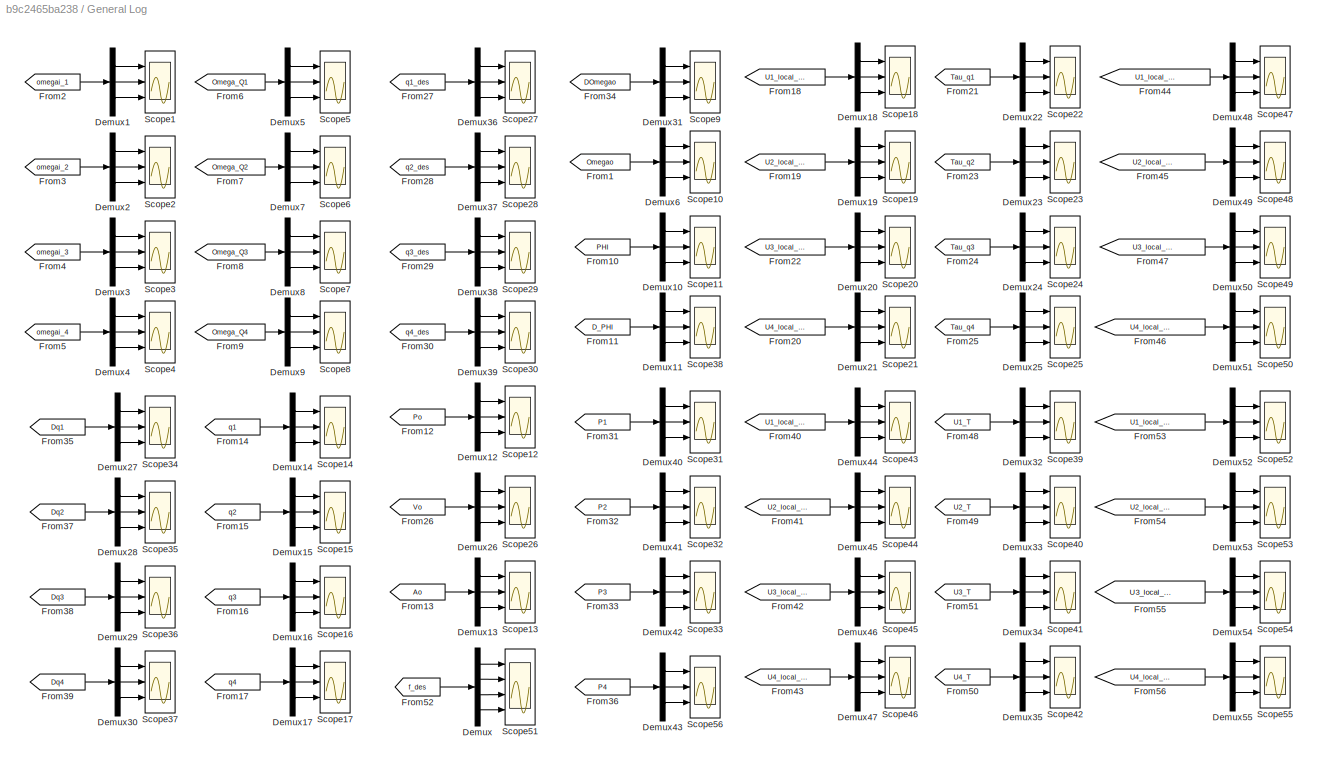
BLOCK [SubSystem] General Log
  Ports = []
  RequestExecContextInheritance = off
BLOCK [Demux] General Log/Demux
  DisplayOption = bar
  Ports = [1, 4]
BLOCK [Demux] General Log/Demux1
  DisplayOption = bar
  Outputs = 3
  Ports = [1, 3]
BLOCK [Demux] General Log/Demux10
  DisplayOption = bar
  Outputs = 3
  Ports = [1, 3]
BLOCK [Demux] General Log/Demux11
  DisplayOption = bar
  Outputs = 3
  Ports = [1, 3]
BLOCK [Demux] General Log/Demux12
  DisplayOption = bar
  Outputs = 3
  Ports = [1, 3]
BLOCK [Demux] General Log/Demux13
  DisplayOption = bar
  Outputs = 3
  Ports = [1, 3]
BLOCK [Demux] General Log/Demux14
  DisplayOption = bar
  Outputs = 3
  Ports = [1, 3]
BLOCK [Demux] General Log/Demux15
  DisplayOption = bar
  Outputs = 3
  Ports = [1, 3]
BLOCK [Demux] General Log/Demux16
  DisplayOption = bar
  Outputs = 3
  Ports = [1, 3]
BLOCK [Demux] General Log/Demux17
  DisplayOption = bar
  Outputs = 3
  Ports = [1, 3]
BLOCK [Demux] General Log/Demux18
  DisplayOption = bar
  Outputs = 3
  Ports = [1, 3]
BLOCK [Demux] General Log/Demux19
  DisplayOption = bar
  Outputs = 3
  Ports = [1, 3]
BLOCK [Demux] General Log/Demux2
  DisplayOption = bar
  Outputs = 3
  Ports = [1, 3]
BLOCK [Demux] General Log/Demux20
  DisplayOption = bar
  Outputs = 3
  Ports = [1, 3]
BLOCK [Demux] General Log/Demux21
  DisplayOption = bar
  Outputs = 3
  Ports = [1, 3]
BLOCK [Demux] General Log/Demux22
  DisplayOption = bar
  Outputs = 3
  Ports = [1, 3]
BLOCK [Demux] General Log/Demux23
  DisplayOption = bar
  Outputs = 3
  Ports = [1, 3]
BLOCK [Demux] General Log/Demux24
  DisplayOption = bar
  Outputs = 3
  Ports = [1, 3]
BLOCK [Demux] General Log/Demux25
  DisplayOption = bar
  Outputs = 3
  Ports = [1, 3]
BLOCK [Demux] General Log/Demux26
  DisplayOption = bar
  Outputs = 3
  Ports = [1, 3]
BLOCK [Demux] General Log/Demux27
  DisplayOption = bar
  Outputs = 3
  Ports = [1, 3]
BLOCK [Demux] General Log/Demux28
  DisplayOption = bar
  Outputs = 3
  Ports = [1, 3]
BLOCK [Demux] General Log/Demux29
  DisplayOption = bar
  Outputs = 3
  Ports = [1, 3]
BLOCK [Demux] General Log/Demux3
  DisplayOption = bar
  Outputs = 3
  Ports = [1, 3]
BLOCK [Demux] General Log/Demux30
  DisplayOption = bar
  Outputs = 3
  Ports = [1, 3]
BLOCK [Demux] General Log/Demux31
  DisplayOption = bar
  Outputs = 3
  Ports = [1, 3]
BLOCK [Demux] General Log/Demux32
  DisplayOption = bar
  Outputs = 3
  Ports = [1, 3]
BLOCK [Demux] General Log/Demux33
  DisplayOption = bar
  Outputs = 3
  Ports = [1, 3]
BLOCK [Demux] General Log/Demux34
  DisplayOption = bar
  Outputs = 3
  Ports = [1, 3]
BLOCK [Demux] General Log/Demux35
  DisplayOption = bar
  Outputs = 3
  Ports = [1, 3]
BLOCK [Demux] General Log/Demux36
  DisplayOption = bar
  Outputs = 3
  Ports = [1, 3]
BLOCK [Demux] General Log/Demux37
  DisplayOption = bar
  Outputs = 3
  Ports = [1, 3]
BLOCK [Demux] General Log/Demux38
  DisplayOption = bar
  Outputs = 3
  Ports = [1, 3]
BLOCK [Demux] General Log/Demux39
  DisplayOption = bar
  Outputs = 3
  Ports = [1, 3]
BLOCK [Demux] General Log/Demux4
  DisplayOption = bar
  Outputs = 3
  Ports = [1, 3]
BLOCK [Demux] General Log/Demux40
  DisplayOption = bar
  Outputs = 3
  Ports = [1, 3]
BLOCK [Demux] General Log/Demux41
  DisplayOption = bar
  Outputs = 3
  Ports = [1, 3]
BLOCK [Demux] General Log/Demux42
  DisplayOption = bar
  Outputs = 3
  Ports = [1, 3]
BLOCK [Demux] General Log/Demux43
  DisplayOption = bar
  Outputs = 3
  Ports = [1, 3]
BLOCK [Demux] General Log/Demux44
  DisplayOption = bar
  Outputs = 3
  Ports = [1, 3]
BLOCK [Demux] General Log/Demux45
  DisplayOption = bar
  Outputs = 3
  Ports = [1, 3]
BLOCK [Demux] General Log/Demux46
  DisplayOption = bar
  Outputs = 3
  Ports = [1, 3]
BLOCK [Demux] General Log/Demux47
  DisplayOption = bar
  Outputs = 3
  Ports = [1, 3]
BLOCK [Demux] General Log/Demux48
  DisplayOption = bar
  Outputs = 3
  Ports = [1, 3]
BLOCK [Demux] General Log/Demux49
  DisplayOption = bar
  Outputs = 3
  Ports = [1, 3]
BLOCK [Demux] General Log/Demux5
  DisplayOption = bar
  Outputs = 3
  Ports = [1, 3]
BLOCK [Demux] General Log/Demux50
  DisplayOption = bar
  Outputs = 3
  Ports = [1, 3]
BLOCK [Demux] General Log/Demux51
  DisplayOption = bar
  Outputs = 3
  Ports = [1, 3]
BLOCK [Demux] General Log/Demux52
  DisplayOption = bar
  Outputs = 3
  Ports = [1, 3]
BLOCK [Demux] General Log/Demux53
  DisplayOption = bar
  Outputs = 3
  Ports = [1, 3]
BLOCK [Demux] General Log/Demux54
  DisplayOption = bar
  Outputs = 3
  Ports = [1, 3]
BLOCK [Demux] General Log/Demux55
  DisplayOption = bar
  Outputs = 3
  Ports = [1, 3]
BLOCK [Demux] General Log/Demux6
  DisplayOption = bar
  Outputs = 3
  Ports = [1, 3]
BLOCK [Demux] General Log/Demux7
  DisplayOption = bar
  Outputs = 3
  Ports = [1, 3]
BLOCK [Demux] General Log/Demux8
  DisplayOption = bar
  Outputs = 3
  Ports = [1, 3]
BLOCK [Demux] General Log/Demux9
  DisplayOption = bar
  Outputs = 3
  Ports = [1, 3]
BLOCK [From] General Log/From1
  GotoTag = Omegao
  TagVisibility = global
BLOCK [From] General Log/From10
  GotoTag = PHI
  TagVisibility = global
BLOCK [From] General Log/From11
  GotoTag = D_PHI
  TagVisibility = global
BLOCK [From] General Log/From12
  GotoTag = Po
  TagVisibility = global
BLOCK [From] General Log/From13
  GotoTag = Ao
  TagVisibility = global
BLOCK [From] General Log/From14
  GotoTag = q1
  TagVisibility = global
BLOCK [From] General Log/From15
  GotoTag = q2
  TagVisibility = global
BLOCK [From] General Log/From16
  GotoTag = q3
  TagVisibility = global
BLOCK [From] General Log/From17
  GotoTag = q4
  TagVisibility = global
BLOCK [From] General Log/From18
  GotoTag = U1_local_perpn
  TagVisibility = global
BLOCK [From] General Log/From19
  GotoTag = U2_local_perpn
  TagVisibility = global
BLOCK [From] General Log/From2
  GotoTag = omegai_1
  TagVisibility = global
BLOCK [From] General Log/From20
  GotoTag = U4_local_perpn
  TagVisibility = global
BLOCK [From] General Log/From21
  GotoTag = Tau_q1
  TagVisibility = global
BLOCK [From] General Log/From22
  GotoTag = U3_local_perpn
  TagVisibility = global
BLOCK [From] General Log/From23
  GotoTag = Tau_q2
  TagVisibility = global
BLOCK [From] General Log/From24
  GotoTag = Tau_q3
  TagVisibility = global
BLOCK [From] General Log/From25
  GotoTag = Tau_q4
  TagVisibility = global
BLOCK [From] General Log/From26
  GotoTag = Vo
  TagVisibility = global
BLOCK [From] General Log/From27
  GotoTag = q1_des
  TagVisibility = global
BLOCK [From] General Log/From28
  GotoTag = q2_des
  TagVisibility = global
BLOCK [From] General Log/From29
  GotoTag = q3_des
  TagVisibility = global
BLOCK [From] General Log/From3
  GotoTag = omegai_2
  TagVisibility = global
BLOCK [From] General Log/From30
  GotoTag = q4_des
  TagVisibility = global
BLOCK [From] General Log/From31
  GotoTag = P1
  TagVisibility = global
BLOCK [From] General Log/From32
  GotoTag = P2
  TagVisibility = global
BLOCK [From] General Log/From33
  GotoTag = P3
  TagVisibility = global
BLOCK [From] General Log/From34
  GotoTag = DOmegao
  TagVisibility = global
BLOCK [From] General Log/From35
  GotoTag = Dq1
  TagVisibility = global
BLOCK [From] General Log/From36
  GotoTag = P4
  TagVisibility = global
BLOCK [From] General Log/From37
  GotoTag = Dq2
  TagVisibility = global
BLOCK [From] General Log/From38
  GotoTag = Dq3
  TagVisibility = global
BLOCK [From] General Log/From39
  GotoTag = Dq4
  TagVisibility = global
BLOCK [From] General Log/From4
  GotoTag = omegai_3
  TagVisibility = global
BLOCK [From] General Log/From40
  GotoTag = U1_local_paral
  TagVisibility = global
BLOCK [From] General Log/From41
  GotoTag = U2_local_paral
  TagVisibility = global
BLOCK [From] General Log/From42
  GotoTag = U3_local_paral
  TagVisibility = global
BLOCK [From] General Log/From43
  GotoTag = U4_local_paral
  TagVisibility = global
BLOCK [From] General Log/From44
  GotoTag = U1_local_perpn_ACT
  TagVisibility = global
BLOCK [From] General Log/From45
  GotoTag = U2_local_perpn_ACT
  TagVisibility = global
BLOCK [From] General Log/From46
  GotoTag = U4_local_perpn_ACT
  TagVisibility = global
BLOCK [From] General Log/From47
  GotoTag = U3_local_perpn_ACT
  TagVisibility = global
BLOCK [From] General Log/From48
  GotoTag = U1_T
  TagVisibility = global
BLOCK [From] General Log/From49
  GotoTag = U2_T
  TagVisibility = global
BLOCK [From] General Log/From5
  GotoTag = omegai_4
  TagVisibility = global
BLOCK [From] General Log/From50
  GotoTag = U4_T
  TagVisibility = global
BLOCK [From] General Log/From51
  GotoTag = U3_T
  TagVisibility = global
BLOCK [From] General Log/From52
  GotoTag = f_des
  TagVisibility = global
BLOCK [From] General Log/From53
  GotoTag = U1_local_paral_ACT
  TagVisibility = global
BLOCK [From] General Log/From54
  GotoTag = U2_local_paral_ACT
  TagVisibility = global
BLOCK [From] General Log/From55
  GotoTag = U3_local_paral_ACT
  TagVisibility = global
BLOCK [From] General Log/From56
  GotoTag = U4_local_paral_ACT
  TagVisibility = global
BLOCK [From] General Log/From6
  GotoTag = Omega_Q1
  TagVisibility = global
BLOCK [From] General Log/From7
  GotoTag = Omega_Q2
  TagVisibility = global
BLOCK [From] General Log/From8
  GotoTag = Omega_Q3
  TagVisibility = global
BLOCK [From] General Log/From9
  GotoTag = Omega_Q4
  TagVisibility = global
BLOCK [Scope] General Log/Scope1
  Floating = off
  NumInputPorts = 3
  Ports = [3]
  ScopeSpecificationString = Simulink.scopes.TimeScopeBlockCfg('CurrentConfiguration', extmgr.ConfigurationSet(extmgr.Configuration('Core','General UI',true),extmgr.Configuration('Core','Source UI',true),extmgr.Configuration('Sources','WiredSimulink',true,'DataLoggingVariableName','ScopeData44','DataLoggingSaveFormat','StructureWithTime'),extmgr.Configuration('Visuals','Time Domain',true,'SerializedDisplays',{struct('MinYLimR...<+2804ch>
BLOCK [Scope] General Log/Scope10
  Floating = off
  NumInputPorts = 3
  Ports = [3]
  ScopeSpecificationString = Simulink.scopes.TimeScopeBlockCfg('CurrentConfiguration', extmgr.ConfigurationSet(extmgr.Configuration('Core','General UI',true),extmgr.Configuration('Core','Source UI',true),extmgr.Configuration('Sources','WiredSimulink',true,'DataLoggingVariableName','ScopeData37','DataLoggingSaveFormat','StructureWithTime'),extmgr.Configuration('Visuals','Time Domain',true,'SerializedDisplays',{struct('MinYLimR...<+2840ch>
BLOCK [Scope] General Log/Scope11
  Floating = off
  NumInputPorts = 3
  Ports = [3]
  ScopeSpecificationString = Simulink.scopes.TimeScopeBlockCfg('CurrentConfiguration', extmgr.ConfigurationSet(extmgr.Configuration('Core','General UI',true),extmgr.Configuration('Core','Source UI',true),extmgr.Configuration('Sources','WiredSimulink',true,'DataLoggingVariableName','ScopeData38','DataLoggingSaveFormat','StructureWithTime'),extmgr.Configuration('Visuals','Time Domain',true,'SerializedDisplays',{struct('MinYLimR...<+2795ch>
BLOCK [Scope] General Log/Scope12
  Floating = off
  NumInputPorts = 3
  Ports = [3]
  ScopeSpecificationString = Simulink.scopes.TimeScopeBlockCfg('CurrentConfiguration', extmgr.ConfigurationSet(extmgr.Configuration('Core','General UI',true),extmgr.Configuration('Core','Source UI',true),extmgr.Configuration('Sources','WiredSimulink',true,'DataLoggingVariableName','Po','DataLoggingSaveFormat','StructureWithTime'),extmgr.Configuration('Visuals','Time Domain',true,'SerializedDisplays',{struct('MinYLimReal','-0....<+2843ch>
BLOCK [Scope] General Log/Scope13
  Floating = off
  NumInputPorts = 3
  Ports = [3]
  ScopeSpecificationString = Simulink.scopes.TimeScopeBlockCfg('CurrentConfiguration', extmgr.ConfigurationSet(extmgr.Configuration('Core','General UI',true),extmgr.Configuration('Core','Source UI',true),extmgr.Configuration('Sources','WiredSimulink',true,'DataLoggingVariableName','ScopeData1','DataLoggingSaveFormat','StructureWithTime'),extmgr.Configuration('Visuals','Time Domain',true,'SerializedDisplays',{struct('MinYLimRe...<+2795ch>
BLOCK [Scope] General Log/Scope14
  Floating = off
  NumInputPorts = 3
  Ports = [3]
  ScopeSpecificationString = Simulink.scopes.TimeScopeBlockCfg('CurrentConfiguration', extmgr.ConfigurationSet(extmgr.Configuration('Core','General UI',true),extmgr.Configuration('Core','Source UI',true),extmgr.Configuration('Sources','WiredSimulink',true,'DataLoggingVariableName','q1','DataLogging',true,'DataLoggingSaveFormat','StructureWithTime'),extmgr.Configuration('Visuals','Time Domain',true,'SerializedDisplays',{struct...<+2834ch>
BLOCK [Scope] General Log/Scope15
  Floating = off
  NumInputPorts = 3
  Ports = [3]
  ScopeSpecificationString = Simulink.scopes.TimeScopeBlockCfg('CurrentConfiguration', extmgr.ConfigurationSet(extmgr.Configuration('Core','General UI',true),extmgr.Configuration('Core','Source UI',true),extmgr.Configuration('Sources','WiredSimulink',true,'DataLoggingVariableName','q2','DataLogging',true,'DataLoggingSaveFormat','StructureWithTime'),extmgr.Configuration('Visuals','Time Domain',true,'SerializedDisplays',{struct...<+2835ch>
BLOCK [Scope] General Log/Scope16
  Floating = off
  NumInputPorts = 3
  Ports = [3]
  ScopeSpecificationString = Simulink.scopes.TimeScopeBlockCfg('CurrentConfiguration', extmgr.ConfigurationSet(extmgr.Configuration('Core','General UI',true),extmgr.Configuration('Core','Source UI',true),extmgr.Configuration('Sources','WiredSimulink',true,'DataLoggingVariableName','q3','DataLogging',true,'DataLoggingSaveFormat','StructureWithTime'),extmgr.Configuration('Visuals','Time Domain',true,'SerializedDisplays',{struct...<+2836ch>
BLOCK [Scope] General Log/Scope17
  Floating = off
  NumInputPorts = 3
  Ports = [3]
  ScopeSpecificationString = Simulink.scopes.TimeScopeBlockCfg('CurrentConfiguration', extmgr.ConfigurationSet(extmgr.Configuration('Core','General UI',true),extmgr.Configuration('Core','Source UI',true),extmgr.Configuration('Sources','WiredSimulink',true,'DataLoggingVariableName','q4','DataLogging',true,'DataLoggingSaveFormat','StructureWithTime'),extmgr.Configuration('Visuals','Time Domain',true,'SerializedDisplays',{struct...<+2831ch>
BLOCK [Scope] General Log/Scope18
  Floating = off
  NumInputPorts = 3
  Ports = [3]
  ScopeSpecificationString = Simulink.scopes.TimeScopeBlockCfg('CurrentConfiguration', extmgr.ConfigurationSet(extmgr.Configuration('Core','General UI',true),extmgr.Configuration('Core','Source UI',true),extmgr.Configuration('Sources','WiredSimulink',true,'DataLoggingVariableName','ScopeData32','DataLoggingSaveFormat','StructureWithTime'),extmgr.Configuration('Visuals','Time Domain',true,'SerializedDisplays',{struct('MinYLimR...<+2794ch>
BLOCK [Scope] General Log/Scope19
  Floating = off
  NumInputPorts = 3
  Ports = [3]
  ScopeSpecificationString = Simulink.scopes.TimeScopeBlockCfg('CurrentConfiguration', extmgr.ConfigurationSet(extmgr.Configuration('Core','General UI',true),extmgr.Configuration('Core','Source UI',true),extmgr.Configuration('Sources','WiredSimulink',true,'DataLoggingVariableName','ScopeData33','DataLoggingSaveFormat','StructureWithTime'),extmgr.Configuration('Visuals','Time Domain',true,'SerializedDisplays',{struct('MinYLimR...<+2823ch>
BLOCK [Scope] General Log/Scope2
  Floating = off
  NumInputPorts = 3
  Ports = [3]
  ScopeSpecificationString = Simulink.scopes.TimeScopeBlockCfg('CurrentConfiguration', extmgr.ConfigurationSet(extmgr.Configuration('Core','General UI',true),extmgr.Configuration('Core','Source UI',true),extmgr.Configuration('Sources','WiredSimulink',true,'DataLoggingVariableName','ScopeData45','DataLoggingSaveFormat','StructureWithTime'),extmgr.Configuration('Visuals','Time Domain',true,'SerializedDisplays',{struct('MinYLimR...<+2769ch>
BLOCK [Scope] General Log/Scope20
  Floating = off
  NumInputPorts = 3
  Ports = [3]
  ScopeSpecificationString = Simulink.scopes.TimeScopeBlockCfg('CurrentConfiguration', extmgr.ConfigurationSet(extmgr.Configuration('Core','General UI',true),extmgr.Configuration('Core','Source UI',true),extmgr.Configuration('Sources','WiredSimulink',true,'DataLoggingVariableName','ScopeData34','DataLoggingSaveFormat','StructureWithTime'),extmgr.Configuration('Visuals','Time Domain',true,'SerializedDisplays',{struct('MinYLimR...<+2824ch>
BLOCK [Scope] General Log/Scope21
  Floating = off
  NumInputPorts = 3
  Ports = [3]
  ScopeSpecificationString = Simulink.scopes.TimeScopeBlockCfg('CurrentConfiguration', extmgr.ConfigurationSet(extmgr.Configuration('Core','General UI',true),extmgr.Configuration('Core','Source UI',true),extmgr.Configuration('Sources','WiredSimulink',true,'DataLoggingVariableName','ScopeData35','DataLoggingSaveFormat','StructureWithTime'),extmgr.Configuration('Visuals','Time Domain',true,'SerializedDisplays',{struct('MinYLimR...<+2824ch>
BLOCK [Scope] General Log/Scope22
  Floating = off
  NumInputPorts = 3
  Ports = [3]
  ScopeSpecificationString = Simulink.scopes.TimeScopeBlockCfg('CurrentConfiguration', extmgr.ConfigurationSet(extmgr.Configuration('Core','General UI',true),extmgr.Configuration('Core','Source UI',true),extmgr.Configuration('Sources','WiredSimulink',true,'DataLoggingVariableName','ScopeData28','DataLoggingSaveFormat','StructureWithTime'),extmgr.Configuration('Visuals','Time Domain',true,'SerializedDisplays',{struct('MinYLimR...<+2796ch>
BLOCK [Scope] General Log/Scope23
  Floating = off
  NumInputPorts = 3
  Ports = [3]
  ScopeSpecificationString = Simulink.scopes.TimeScopeBlockCfg('CurrentConfiguration', extmgr.ConfigurationSet(extmgr.Configuration('Core','General UI',true),extmgr.Configuration('Core','Source UI',true),extmgr.Configuration('Sources','WiredSimulink',true,'DataLoggingVariableName','ScopeData29','DataLoggingSaveFormat','StructureWithTime'),extmgr.Configuration('Visuals','Time Domain',true,'SerializedDisplays',{struct('MinYLimR...<+2796ch>
BLOCK [Scope] General Log/Scope24
  Floating = off
  NumInputPorts = 3
  Ports = [3]
  ScopeSpecificationString = Simulink.scopes.TimeScopeBlockCfg('CurrentConfiguration', extmgr.ConfigurationSet(extmgr.Configuration('Core','General UI',true),extmgr.Configuration('Core','Source UI',true),extmgr.Configuration('Sources','WiredSimulink',true,'DataLoggingVariableName','ScopeData30','DataLoggingSaveFormat','StructureWithTime'),extmgr.Configuration('Visuals','Time Domain',true,'SerializedDisplays',{struct('MinYLimR...<+2796ch>
BLOCK [Scope] General Log/Scope25
  Floating = off
  NumInputPorts = 3
  Ports = [3]
  ScopeSpecificationString = Simulink.scopes.TimeScopeBlockCfg('CurrentConfiguration', extmgr.ConfigurationSet(extmgr.Configuration('Core','General UI',true),extmgr.Configuration('Core','Source UI',true),extmgr.Configuration('Sources','WiredSimulink',true,'DataLoggingVariableName','ScopeData31','DataLoggingSaveFormat','StructureWithTime'),extmgr.Configuration('Visuals','Time Domain',true,'SerializedDisplays',{struct('MinYLimR...<+2796ch>
BLOCK [Scope] General Log/Scope26
  Floating = off
  NumInputPorts = 3
  Ports = [3]
  ScopeSpecificationString = Simulink.scopes.TimeScopeBlockCfg('CurrentConfiguration', extmgr.ConfigurationSet(extmgr.Configuration('Core','General UI',true),extmgr.Configuration('Core','Source UI',true),extmgr.Configuration('Sources','WiredSimulink',true,'DataLoggingVariableName','ScopeData2','DataLoggingSaveFormat','StructureWithTime'),extmgr.Configuration('Visuals','Time Domain',true,'SerializedDisplays',{struct('MinYLimRe...<+2839ch>
BLOCK [Scope] General Log/Scope27
  Floating = off
  NumInputPorts = 3
  Ports = [3]
  ScopeSpecificationString = Simulink.scopes.TimeScopeBlockCfg('CurrentConfiguration', extmgr.ConfigurationSet(extmgr.Configuration('Core','General UI',true),extmgr.Configuration('Core','Source UI',true),extmgr.Configuration('Sources','WiredSimulink',true,'DataLoggingVariableName','ScopeData4','DataLoggingSaveFormat','StructureWithTime'),extmgr.Configuration('Visuals','Time Domain',true,'SerializedDisplays',{struct('MinYLimRe...<+2805ch>
BLOCK [Scope] General Log/Scope28
  Floating = off
  NumInputPorts = 3
  Ports = [3]
  ScopeSpecificationString = Simulink.scopes.TimeScopeBlockCfg('CurrentConfiguration', extmgr.ConfigurationSet(extmgr.Configuration('Core','General UI',true),extmgr.Configuration('Core','Source UI',true),extmgr.Configuration('Sources','WiredSimulink',true,'DataLoggingVariableName','ScopeData5','DataLoggingSaveFormat','StructureWithTime'),extmgr.Configuration('Visuals','Time Domain',true,'SerializedDisplays',{struct('MinYLimRe...<+2818ch>
BLOCK [Scope] General Log/Scope29
  Floating = off
  NumInputPorts = 3
  Ports = [3]
  ScopeSpecificationString = Simulink.scopes.TimeScopeBlockCfg('CurrentConfiguration', extmgr.ConfigurationSet(extmgr.Configuration('Core','General UI',true),extmgr.Configuration('Core','Source UI',true),extmgr.Configuration('Sources','WiredSimulink',true,'DataLoggingVariableName','ScopeData6','DataLoggingSaveFormat','StructureWithTime'),extmgr.Configuration('Visuals','Time Domain',true,'SerializedDisplays',{struct('MinYLimRe...<+2817ch>
BLOCK [Scope] General Log/Scope3
  Floating = off
  NumInputPorts = 3
  Ports = [3]
  ScopeSpecificationString = Simulink.scopes.TimeScopeBlockCfg('CurrentConfiguration', extmgr.ConfigurationSet(extmgr.Configuration('Core','General UI',true),extmgr.Configuration('Core','Source UI',true),extmgr.Configuration('Sources','WiredSimulink',true,'DataLoggingVariableName','ScopeData46','DataLoggingSaveFormat','StructureWithTime'),extmgr.Configuration('Visuals','Time Domain',true,'SerializedDisplays',{struct('MinYLimR...<+2769ch>
BLOCK [Scope] General Log/Scope30
  Floating = off
  NumInputPorts = 3
  Ports = [3]
  ScopeSpecificationString = Simulink.scopes.TimeScopeBlockCfg('CurrentConfiguration', extmgr.ConfigurationSet(extmgr.Configuration('Core','General UI',true),extmgr.Configuration('Core','Source UI',true),extmgr.Configuration('Sources','WiredSimulink',true,'DataLoggingVariableName','ScopeData7','DataLoggingSaveFormat','StructureWithTime'),extmgr.Configuration('Visuals','Time Domain',true,'SerializedDisplays',{struct('MinYLimRe...<+2822ch>
BLOCK [Scope] General Log/Scope31
  Floating = off
  NumInputPorts = 3
  Ports = [3]
  ScopeSpecificationString = Simulink.scopes.TimeScopeBlockCfg('CurrentConfiguration', extmgr.ConfigurationSet(extmgr.Configuration('Core','General UI',true),extmgr.Configuration('Core','Source UI',true),extmgr.Configuration('Sources','WiredSimulink',true,'DataLoggingVariableName','ScopeData8','DataLoggingSaveFormat','StructureWithTime'),extmgr.Configuration('Visuals','Time Domain',true,'SerializedDisplays',{struct('MinYLimRe...<+2814ch>
BLOCK [Scope] General Log/Scope32
  Floating = off
  NumInputPorts = 3
  Ports = [3]
  ScopeSpecificationString = Simulink.scopes.TimeScopeBlockCfg('CurrentConfiguration', extmgr.ConfigurationSet(extmgr.Configuration('Core','General UI',true),extmgr.Configuration('Core','Source UI',true),extmgr.Configuration('Sources','WiredSimulink',true,'DataLoggingVariableName','ScopeData9','DataLoggingSaveFormat','StructureWithTime'),extmgr.Configuration('Visuals','Time Domain',true,'SerializedDisplays',{struct('MinYLimRe...<+2784ch>
BLOCK [Scope] General Log/Scope33
  Floating = off
  NumInputPorts = 3
  Ports = [3]
  ScopeSpecificationString = Simulink.scopes.TimeScopeBlockCfg('CurrentConfiguration', extmgr.ConfigurationSet(extmgr.Configuration('Core','General UI',true),extmgr.Configuration('Core','Source UI',true),extmgr.Configuration('Sources','WiredSimulink',true,'DataLoggingVariableName','ScopeData10','DataLoggingSaveFormat','StructureWithTime'),extmgr.Configuration('Visuals','Time Domain',true,'SerializedDisplays',{struct('MinYLimR...<+2785ch>
BLOCK [Scope] General Log/Scope34
  Floating = off
  NumInputPorts = 3
  Ports = [3]
  ScopeSpecificationString = Simulink.scopes.TimeScopeBlockCfg('CurrentConfiguration', extmgr.ConfigurationSet(extmgr.Configuration('Core','General UI',true),extmgr.Configuration('Core','Source UI',true),extmgr.Configuration('Sources','WiredSimulink',true,'DataLoggingVariableName','ScopeData48','DataLoggingSaveFormat','StructureWithTime'),extmgr.Configuration('Visuals','Time Domain',true,'SerializedDisplays',{struct('MinYLimR...<+2797ch>
BLOCK [Scope] General Log/Scope35
  Floating = off
  NumInputPorts = 3
  Ports = [3]
  ScopeSpecificationString = Simulink.scopes.TimeScopeBlockCfg('CurrentConfiguration', extmgr.ConfigurationSet(extmgr.Configuration('Core','General UI',true),extmgr.Configuration('Core','Source UI',true),extmgr.Configuration('Sources','WiredSimulink',true,'DataLoggingVariableName','ScopeData49','DataLoggingSaveFormat','StructureWithTime'),extmgr.Configuration('Visuals','Time Domain',true,'SerializedDisplays',{struct('MinYLimR...<+2769ch>
BLOCK [Scope] General Log/Scope36
  Floating = off
  NumInputPorts = 3
  Ports = [3]
  ScopeSpecificationString = Simulink.scopes.TimeScopeBlockCfg('CurrentConfiguration', extmgr.ConfigurationSet(extmgr.Configuration('Core','General UI',true),extmgr.Configuration('Core','Source UI',true),extmgr.Configuration('Sources','WiredSimulink',true,'DataLoggingVariableName','ScopeData50','DataLoggingSaveFormat','StructureWithTime'),extmgr.Configuration('Visuals','Time Domain',true,'SerializedDisplays',{struct('MinYLimR...<+2769ch>
BLOCK [Scope] General Log/Scope37
  Floating = off
  NumInputPorts = 3
  Ports = [3]
  ScopeSpecificationString = Simulink.scopes.TimeScopeBlockCfg('CurrentConfiguration', extmgr.ConfigurationSet(extmgr.Configuration('Core','General UI',true),extmgr.Configuration('Core','Source UI',true),extmgr.Configuration('Sources','WiredSimulink',true,'DataLoggingVariableName','ScopeData51','DataLoggingSaveFormat','StructureWithTime'),extmgr.Configuration('Visuals','Time Domain',true,'SerializedDisplays',{struct('MinYLimR...<+2769ch>
BLOCK [Scope] General Log/Scope38
  Floating = off
  NumInputPorts = 3
  Ports = [3]
  ScopeSpecificationString = Simulink.scopes.TimeScopeBlockCfg('CurrentConfiguration', extmgr.ConfigurationSet(extmgr.Configuration('Core','General UI',true),extmgr.Configuration('Core','Source UI',true),extmgr.Configuration('Sources','WiredSimulink',true,'DataLoggingVariableName','ScopeData39','DataLoggingSaveFormat','StructureWithTime'),extmgr.Configuration('Visuals','Time Domain',true,'SerializedDisplays',{struct('MinYLimR...<+2796ch>
BLOCK [Scope] General Log/Scope39
  Floating = off
  NumInputPorts = 3
  Ports = [3]
  ScopeSpecificationString = Simulink.scopes.TimeScopeBlockCfg('CurrentConfiguration', extmgr.ConfigurationSet(extmgr.Configuration('Core','General UI',true),extmgr.Configuration('Core','Source UI',true),extmgr.Configuration('Sources','WiredSimulink',true,'DataLoggingVariableName','ScopeData16','DataLoggingSaveFormat','StructureWithTime'),extmgr.Configuration('Visuals','Time Domain',true,'SerializedDisplays',{struct('MinYLimR...<+2798ch>
BLOCK [Scope] General Log/Scope4
  Floating = off
  NumInputPorts = 3
  Ports = [3]
  ScopeSpecificationString = Simulink.scopes.TimeScopeBlockCfg('CurrentConfiguration', extmgr.ConfigurationSet(extmgr.Configuration('Core','General UI',true),extmgr.Configuration('Core','Source UI',true),extmgr.Configuration('Sources','WiredSimulink',true,'DataLoggingVariableName','ScopeData47','DataLoggingSaveFormat','StructureWithTime'),extmgr.Configuration('Visuals','Time Domain',true,'SerializedDisplays',{struct('MinYLimR...<+2769ch>
BLOCK [Scope] General Log/Scope40
  Floating = off
  NumInputPorts = 3
  Ports = [3]
  ScopeSpecificationString = Simulink.scopes.TimeScopeBlockCfg('CurrentConfiguration', extmgr.ConfigurationSet(extmgr.Configuration('Core','General UI',true),extmgr.Configuration('Core','Source UI',true),extmgr.Configuration('Sources','WiredSimulink',true,'DataLoggingVariableName','ScopeData17','DataLoggingSaveFormat','StructureWithTime'),extmgr.Configuration('Visuals','Time Domain',true,'SerializedDisplays',{struct('MinYLimR...<+2796ch>
BLOCK [Scope] General Log/Scope41
  Floating = off
  NumInputPorts = 3
  Ports = [3]
  ScopeSpecificationString = Simulink.scopes.TimeScopeBlockCfg('CurrentConfiguration', extmgr.ConfigurationSet(extmgr.Configuration('Core','General UI',true),extmgr.Configuration('Core','Source UI',true),extmgr.Configuration('Sources','WiredSimulink',true,'DataLoggingVariableName','ScopeData18','DataLoggingSaveFormat','StructureWithTime'),extmgr.Configuration('Visuals','Time Domain',true,'SerializedDisplays',{struct('MinYLimR...<+2826ch>
BLOCK [Scope] General Log/Scope42
  Floating = off
  NumInputPorts = 3
  Ports = [3]
  ScopeSpecificationString = Simulink.scopes.TimeScopeBlockCfg('CurrentConfiguration', extmgr.ConfigurationSet(extmgr.Configuration('Core','General UI',true),extmgr.Configuration('Core','Source UI',true),extmgr.Configuration('Sources','WiredSimulink',true,'DataLoggingVariableName','ScopeData19','DataLoggingSaveFormat','StructureWithTime'),extmgr.Configuration('Visuals','Time Domain',true,'SerializedDisplays',{struct('MinYLimR...<+2796ch>
BLOCK [Scope] General Log/Scope43
  Floating = off
  NumInputPorts = 3
  Ports = [3]
  ScopeSpecificationString = Simulink.scopes.TimeScopeBlockCfg('CurrentConfiguration', extmgr.ConfigurationSet(extmgr.Configuration('Core','General UI',true),extmgr.Configuration('Core','Source UI',true),extmgr.Configuration('Sources','WiredSimulink',true,'DataLoggingVariableName','ScopeData12','DataLoggingSaveFormat','StructureWithTime'),extmgr.Configuration('Visuals','Time Domain',true,'SerializedDisplays',{struct('MinYLimR...<+2795ch>
BLOCK [Scope] General Log/Scope44
  Floating = off
  NumInputPorts = 3
  Ports = [3]
  ScopeSpecificationString = Simulink.scopes.TimeScopeBlockCfg('CurrentConfiguration', extmgr.ConfigurationSet(extmgr.Configuration('Core','General UI',true),extmgr.Configuration('Core','Source UI',true),extmgr.Configuration('Sources','WiredSimulink',true,'DataLoggingVariableName','ScopeData13','DataLoggingSaveFormat','StructureWithTime'),extmgr.Configuration('Visuals','Time Domain',true,'SerializedDisplays',{struct('MinYLimR...<+2821ch>
BLOCK [Scope] General Log/Scope45
  Floating = off
  NumInputPorts = 3
  Ports = [3]
  ScopeSpecificationString = Simulink.scopes.TimeScopeBlockCfg('CurrentConfiguration', extmgr.ConfigurationSet(extmgr.Configuration('Core','General UI',true),extmgr.Configuration('Core','Source UI',true),extmgr.Configuration('Sources','WiredSimulink',true,'DataLoggingVariableName','ScopeData14','DataLoggingSaveFormat','StructureWithTime'),extmgr.Configuration('Visuals','Time Domain',true,'SerializedDisplays',{struct('MinYLimR...<+2826ch>
BLOCK [Scope] General Log/Scope46
  Floating = off
  NumInputPorts = 3
  Ports = [3]
  ScopeSpecificationString = Simulink.scopes.TimeScopeBlockCfg('CurrentConfiguration', extmgr.ConfigurationSet(extmgr.Configuration('Core','General UI',true),extmgr.Configuration('Core','Source UI',true),extmgr.Configuration('Sources','WiredSimulink',true,'DataLoggingVariableName','ScopeData15','DataLoggingSaveFormat','StructureWithTime'),extmgr.Configuration('Visuals','Time Domain',true,'SerializedDisplays',{struct('MinYLimR...<+2824ch>
BLOCK [Scope] General Log/Scope47
  Floating = off
  NumInputPorts = 3
  Ports = [3]
  ScopeSpecificationString = Simulink.scopes.TimeScopeBlockCfg('CurrentConfiguration', extmgr.ConfigurationSet(extmgr.Configuration('Core','General UI',true),extmgr.Configuration('Core','Source UI',true),extmgr.Configuration('Sources','WiredSimulink',true,'DataLoggingVariableName','ScopeData24','DataLoggingSaveFormat','StructureWithTime'),extmgr.Configuration('Visuals','Time Domain',true,'SerializedDisplays',{struct('MinYLimR...<+2797ch>
BLOCK [Scope] General Log/Scope48
  Floating = off
  NumInputPorts = 3
  Ports = [3]
  ScopeSpecificationString = Simulink.scopes.TimeScopeBlockCfg('CurrentConfiguration', extmgr.ConfigurationSet(extmgr.Configuration('Core','General UI',true),extmgr.Configuration('Core','Source UI',true),extmgr.Configuration('Sources','WiredSimulink',true,'DataLoggingVariableName','ScopeData25','DataLoggingSaveFormat','StructureWithTime'),extmgr.Configuration('Visuals','Time Domain',true,'SerializedDisplays',{struct('MinYLimR...<+2796ch>
BLOCK [Scope] General Log/Scope49
  Floating = off
  NumInputPorts = 3
  Ports = [3]
  ScopeSpecificationString = Simulink.scopes.TimeScopeBlockCfg('CurrentConfiguration', extmgr.ConfigurationSet(extmgr.Configuration('Core','General UI',true),extmgr.Configuration('Core','Source UI',true),extmgr.Configuration('Sources','WiredSimulink',true,'DataLoggingVariableName','ScopeData26','DataLoggingSaveFormat','StructureWithTime'),extmgr.Configuration('Visuals','Time Domain',true,'SerializedDisplays',{struct('MinYLimR...<+2796ch>
BLOCK [Scope] General Log/Scope5
  Floating = off
  NumInputPorts = 3
  Ports = [3]
  ScopeSpecificationString = Simulink.scopes.TimeScopeBlockCfg('CurrentConfiguration', extmgr.ConfigurationSet(extmgr.Configuration('Core','General UI',true),extmgr.Configuration('Core','Source UI',true),extmgr.Configuration('Sources','WiredSimulink',true,'DataLoggingVariableName','ScopeData40','DataLoggingSaveFormat','StructureWithTime'),extmgr.Configuration('Visuals','Time Domain',true,'SerializedDisplays',{struct('MinYLimR...<+2769ch>
BLOCK [Scope] General Log/Scope50
  Floating = off
  NumInputPorts = 3
  Ports = [3]
  ScopeSpecificationString = Simulink.scopes.TimeScopeBlockCfg('CurrentConfiguration', extmgr.ConfigurationSet(extmgr.Configuration('Core','General UI',true),extmgr.Configuration('Core','Source UI',true),extmgr.Configuration('Sources','WiredSimulink',true,'DataLoggingVariableName','ScopeData27','DataLoggingSaveFormat','StructureWithTime'),extmgr.Configuration('Visuals','Time Domain',true,'SerializedDisplays',{struct('MinYLimR...<+2796ch>
BLOCK [Scope] General Log/Scope51
  Floating = off
  NumInputPorts = 4
  Ports = [4]
  ScopeSpecificationString = Simulink.scopes.TimeScopeBlockCfg('CurrentConfiguration', extmgr.ConfigurationSet(extmgr.Configuration('Core','General UI',true),extmgr.Configuration('Core','Source UI',true),extmgr.Configuration('Sources','WiredSimulink',true,'DataLoggingVariableName','ScopeData3','DataLoggingSaveFormat','StructureWithTime'),extmgr.Configuration('Visuals','Time Domain',true,'SerializedDisplays',{struct('MinYLimRe...<+3482ch>
BLOCK [Scope] General Log/Scope52
  Floating = off
  NumInputPorts = 3
  Ports = [3]
  ScopeSpecificationString = Simulink.scopes.TimeScopeBlockCfg('CurrentConfiguration', extmgr.ConfigurationSet(extmgr.Configuration('Core','General UI',true),extmgr.Configuration('Core','Source UI',true),extmgr.Configuration('Sources','WiredSimulink',true,'DataLoggingVariableName','ScopeData20','DataLoggingSaveFormat','StructureWithTime'),extmgr.Configuration('Visuals','Time Domain',true,'SerializedDisplays',{struct('MinYLimR...<+2803ch>
BLOCK [Scope] General Log/Scope53
  Floating = off
  NumInputPorts = 3
  Ports = [3]
  ScopeSpecificationString = Simulink.scopes.TimeScopeBlockCfg('CurrentConfiguration', extmgr.ConfigurationSet(extmgr.Configuration('Core','General UI',true),extmgr.Configuration('Core','Source UI',true),extmgr.Configuration('Sources','WiredSimulink',true,'DataLoggingVariableName','ScopeData21','DataLoggingSaveFormat','StructureWithTime'),extmgr.Configuration('Visuals','Time Domain',true,'SerializedDisplays',{struct('MinYLimR...<+2796ch>
BLOCK [Scope] General Log/Scope54
  Floating = off
  NumInputPorts = 3
  Ports = [3]
  ScopeSpecificationString = Simulink.scopes.TimeScopeBlockCfg('CurrentConfiguration', extmgr.ConfigurationSet(extmgr.Configuration('Core','General UI',true),extmgr.Configuration('Core','Source UI',true),extmgr.Configuration('Sources','WiredSimulink',true,'DataLoggingVariableName','ScopeData22','DataLoggingSaveFormat','StructureWithTime'),extmgr.Configuration('Visuals','Time Domain',true,'SerializedDisplays',{struct('MinYLimR...<+2796ch>
BLOCK [Scope] General Log/Scope55
  Floating = off
  NumInputPorts = 3
  Ports = [3]
  ScopeSpecificationString = Simulink.scopes.TimeScopeBlockCfg('CurrentConfiguration', extmgr.ConfigurationSet(extmgr.Configuration('Core','General UI',true),extmgr.Configuration('Core','Source UI',true),extmgr.Configuration('Sources','WiredSimulink',true,'DataLoggingVariableName','ScopeData23','DataLoggingSaveFormat','StructureWithTime'),extmgr.Configuration('Visuals','Time Domain',true,'SerializedDisplays',{struct('MinYLimR...<+2796ch>
BLOCK [Scope] General Log/Scope56
  Floating = off
  NumInputPorts = 3
  Ports = [3]
  ScopeSpecificationString = Simulink.scopes.TimeScopeBlockCfg('CurrentConfiguration', extmgr.ConfigurationSet(extmgr.Configuration('Core','General UI',true),extmgr.Configuration('Core','Source UI',true),extmgr.Configuration('Sources','WiredSimulink',true,'DataLoggingVariableName','ScopeData11','DataLoggingSaveFormat','StructureWithTime'),extmgr.Configuration('Visuals','Time Domain',true,'SerializedDisplays',{struct('MinYLimR...<+2787ch>
BLOCK [Scope] General Log/Scope6
  Floating = off
  NumInputPorts = 3
  Ports = [3]
  ScopeSpecificationString = Simulink.scopes.TimeScopeBlockCfg('CurrentConfiguration', extmgr.ConfigurationSet(extmgr.Configuration('Core','General UI',true),extmgr.Configuration('Core','Source UI',true),extmgr.Configuration('Sources','WiredSimulink',true,'DataLoggingVariableName','ScopeData41','DataLoggingSaveFormat','StructureWithTime'),extmgr.Configuration('Visuals','Time Domain',true,'SerializedDisplays',{struct('MinYLimR...<+2769ch>
BLOCK [Scope] General Log/Scope7
  Floating = off
  NumInputPorts = 3
  Ports = [3]
  ScopeSpecificationString = Simulink.scopes.TimeScopeBlockCfg('CurrentConfiguration', extmgr.ConfigurationSet(extmgr.Configuration('Core','General UI',true),extmgr.Configuration('Core','Source UI',true),extmgr.Configuration('Sources','WiredSimulink',true,'DataLoggingVariableName','ScopeData42','DataLoggingSaveFormat','StructureWithTime'),extmgr.Configuration('Visuals','Time Domain',true,'SerializedDisplays',{struct('MinYLimR...<+2769ch>
BLOCK [Scope] General Log/Scope8
  Floating = off
  NumInputPorts = 3
  Ports = [3]
  ScopeSpecificationString = Simulink.scopes.TimeScopeBlockCfg('CurrentConfiguration', extmgr.ConfigurationSet(extmgr.Configuration('Core','General UI',true),extmgr.Configuration('Core','Source UI',true),extmgr.Configuration('Sources','WiredSimulink',true,'DataLoggingVariableName','ScopeData43','DataLoggingSaveFormat','StructureWithTime'),extmgr.Configuration('Visuals','Time Domain',true,'SerializedDisplays',{struct('MinYLimR...<+2769ch>
BLOCK [Scope] General Log/Scope9
  Floating = off
  NumInputPorts = 3
  Ports = [3]
  ScopeSpecificationString = Simulink.scopes.TimeScopeBlockCfg('CurrentConfiguration', extmgr.ConfigurationSet(extmgr.Configuration('Core','General UI',true),extmgr.Configuration('Core','Source UI',true),extmgr.Configuration('Sources','WiredSimulink',true,'DataLoggingVariableName','ScopeData36','DataLoggingSaveFormat','StructureWithTime'),extmgr.Configuration('Visuals','Time Domain',true,'SerializedDisplays',{struct('MinYLimR...<+2796ch>
BLOCK [Goto] Goto
  GotoTag = Po
  TagVisibility = global
BLOCK [Goto] Goto1
  GotoTag = Ao
  TagVisibility = global
BLOCK [Goto] Goto10
  GotoTag = X_ROT_Q2
  TagVisibility = global
BLOCK [Goto] Goto11
  GotoTag = U1_local_perpn
  TagVisibility = global
BLOCK [Goto] Goto12
  GotoTag = U2_local_perpn
  TagVisibility = global
BLOCK [Goto] Goto13
  GotoTag = Rel_Pos_local2
  TagVisibility = global
BLOCK [Goto] Goto14
  GotoTag = X_ROT_Q3
  TagVisibility = global
BLOCK [Goto] Goto15
  GotoTag = Rel_Pos_local3
  TagVisibility = global
BLOCK [Goto] Goto16
  GotoTag = Rel_Pos_local4
  TagVisibility = global
BLOCK [Goto] Goto17
  GotoTag = Rel_Acc_local2
  TagVisibility = global
BLOCK [Goto] Goto18
  GotoTag = Rel_Acc_local1
  TagVisibility = global
BLOCK [Goto] Goto19
  GotoTag = Rel_Acc_local3
  TagVisibility = global
BLOCK [Goto] Goto2
  GotoTag = PHI
  TagVisibility = global
BLOCK [Goto] Goto20
  GotoTag = Rel_Acc_local4
  TagVisibility = global
BLOCK [Goto] Goto21
  GotoTag = U3_local_perpn
  TagVisibility = global
BLOCK [Goto] Goto22
  GotoTag = U1_local_paral
  TagVisibility = global
BLOCK [Goto] Goto23
  GotoTag = X_ROT_Q4
  TagVisibility = global
BLOCK [Goto] Goto26
  GotoTag = U3_local_paral
  TagVisibility = global
BLOCK [Goto] Goto27
  GotoTag = Tau_q3
  TagVisibility = global
BLOCK [Goto] Goto28
  GotoTag = U4_local_paral
  TagVisibility = global
BLOCK [Goto] Goto29
  GotoTag = Tau_q4
  TagVisibility = global
BLOCK [Goto] Goto3
  GotoTag = Omegao
  TagVisibility = global
BLOCK [Goto] Goto30
  GotoTag = U4_local_perpn
  TagVisibility = global
BLOCK [Goto] Goto31
  GotoTag = DOmegao
  TagVisibility = global
BLOCK [Goto] Goto4
  GotoTag = Tau_q1
  TagVisibility = global
BLOCK [Goto] Goto5
  GotoTag = U2_local_paral
  TagVisibility = global
BLOCK [Goto] Goto6
  GotoTag = Tau_q2
  TagVisibility = global
BLOCK [Goto] Goto7
  GotoTag = Rel_Pos_local1
  TagVisibility = global
BLOCK [Goto] Goto8
  GotoTag = Vo
  TagVisibility = global
BLOCK [Goto] Goto9
  GotoTag = X_ROT_Q1
  TagVisibility = global
BLOCK [SubSystem] Observer Log
  Ports = []
  RequestExecContextInheritance = off
BLOCK [From] Observer Log/From1
  GotoTag = q2_hat
  TagVisibility = global
BLOCK [From] Observer Log/From11
  GotoTag = Dq1_hat
  TagVisibility = global
BLOCK [From] Observer Log/From2
  GotoTag = Dq2_hat
  TagVisibility = global
BLOCK [From] Observer Log/From3
  GotoTag = Dq3_hat
  TagVisibility = global
BLOCK [From] Observer Log/From36
  GotoTag = q1_hat
  TagVisibility = global
BLOCK [From] Observer Log/From4
  GotoTag = q3_hat
  TagVisibility = global
BLOCK [From] Observer Log/From5
  GotoTag = q4_hat
  TagVisibility = global
BLOCK [From] Observer Log/From6
  GotoTag = Dq4_hat
  TagVisibility = global
BLOCK [Scope] Observer Log/Scope
  Floating = off
  NumInputPorts = 1
  Ports = [1]
  ScopeSpecificationString = Simulink.scopes.TimeScopeBlockCfg('CurrentConfiguration', extmgr.ConfigurationSet(extmgr.Configuration('Core','General UI',true),extmgr.Configuration('Core','Source UI',true),extmgr.Configuration('Sources','WiredSimulink',true,'DataLogging',true,'DataLoggingVariableName','alpha_hat1','DataLoggingSaveFormat','StructureWithTime','DataLoggingDecimation','1','DataLoggingDecimateData',true),extmgr.Conf...<+1758ch>
BLOCK [Scope] Observer Log/Scope1
  Floating = off
  NumInputPorts = 1
  Ports = [1]
  ScopeSpecificationString = Simulink.scopes.TimeScopeBlockCfg('CurrentConfiguration', extmgr.ConfigurationSet(extmgr.Configuration('Core','General UI',true),extmgr.Configuration('Core','Source UI',true),extmgr.Configuration('Sources','WiredSimulink',true,'DataLogging',true,'DataLoggingVariableName','alpha_hat2','DataLoggingSaveFormat','StructureWithTime','DataLoggingDecimation','1','DataLoggingDecimateData',true),extmgr.Conf...<+1760ch>
BLOCK [Scope] Observer Log/Scope10
  Floating = off
  NumInputPorts = 1
  Ports = [1]
  ScopeSpecificationString = Simulink.scopes.TimeScopeBlockCfg('CurrentConfiguration', extmgr.ConfigurationSet(extmgr.Configuration('Core','General UI',true),extmgr.Configuration('Core','Source UI',true),extmgr.Configuration('Sources','WiredSimulink',true,'DataLogging',true,'DataLoggingVariableName','Dalpha_hat3','DataLoggingSaveFormat','StructureWithTime','DataLoggingDecimation','1','DataLoggingDecimateData',true),extmgr.Con...<+1717ch>
BLOCK [Scope] Observer Log/Scope11
  Floating = off
  NumInputPorts = 1
  Ports = [1]
  ScopeSpecificationString = Simulink.scopes.TimeScopeBlockCfg('CurrentConfiguration', extmgr.ConfigurationSet(extmgr.Configuration('Core','General UI',true),extmgr.Configuration('Core','Source UI',true),extmgr.Configuration('Sources','WiredSimulink',true,'DataLogging',true,'DataLoggingVariableName','Dalpha_hat4','DataLoggingSaveFormat','StructureWithTime','DataLoggingDecimation','1','DataLoggingDecimateData',true),extmgr.Con...<+1718ch>
BLOCK [Scope] Observer Log/Scope2
  Floating = off
  NumInputPorts = 1
  Ports = [1]
  ScopeSpecificationString = Simulink.scopes.TimeScopeBlockCfg('CurrentConfiguration', extmgr.ConfigurationSet(extmgr.Configuration('Core','General UI',true),extmgr.Configuration('Core','Source UI',true),extmgr.Configuration('Sources','WiredSimulink',true,'DataLogging',true,'DataLoggingVariableName','alpha_hat3','DataLoggingSaveFormat','StructureWithTime','DataLoggingDecimation','1','DataLoggingDecimateData',true),extmgr.Conf...<+1712ch>
BLOCK [Scope] Observer Log/Scope3
  Floating = off
  NumInputPorts = 1
  Ports = [1]
  ScopeSpecificationString = Simulink.scopes.TimeScopeBlockCfg('CurrentConfiguration', extmgr.ConfigurationSet(extmgr.Configuration('Core','General UI',true),extmgr.Configuration('Core','Source UI',true),extmgr.Configuration('Sources','WiredSimulink',true,'DataLogging',true,'DataLoggingVariableName','alpha_hat4','DataLoggingSaveFormat','StructureWithTime','DataLoggingDecimation','1','DataLoggingDecimateData',true),extmgr.Conf...<+1710ch>
BLOCK [Scope] Observer Log/Scope8
  Floating = off
  NumInputPorts = 1
  Ports = [1]
  ScopeSpecificationString = Simulink.scopes.TimeScopeBlockCfg('CurrentConfiguration', extmgr.ConfigurationSet(extmgr.Configuration('Core','General UI',true),extmgr.Configuration('Core','Source UI',true),extmgr.Configuration('Sources','WiredSimulink',true,'DataLogging',true,'DataLoggingVariableName','Dalpha_hat1','DataLoggingSaveFormat','StructureWithTime','DataLoggingDecimation','1','DataLoggingDecimateData',true),extmgr.Con...<+1816ch>
BLOCK [Scope] Observer Log/Scope9
  Floating = off
  NumInputPorts = 1
  Ports = [1]
  ScopeSpecificationString = Simulink.scopes.TimeScopeBlockCfg('CurrentConfiguration', extmgr.ConfigurationSet(extmgr.Configuration('Core','General UI',true),extmgr.Configuration('Core','Source UI',true),extmgr.Configuration('Sources','WiredSimulink',true,'DataLogging',true,'DataLoggingVariableName','Dalpha_hat2','DataLoggingSaveFormat','StructureWithTime','DataLoggingDecimation','1','DataLoggingDecimateData',true),extmgr.Con...<+1741ch>
BLOCK [SubSystem] Relative Positions scopes
  Ports = []
  RequestExecContextInheritance = off
BLOCK [Demux] Relative Positions scopes/Demux
  DisplayOption = bar
  Outputs = 3
  Ports = [1, 3]
BLOCK [Demux] Relative Positions scopes/Demux1
  DisplayOption = bar
  Outputs = 3
  Ports = [1, 3]
BLOCK [Demux] Relative Positions scopes/Demux10
  DisplayOption = bar
  Outputs = 3
  Ports = [1, 3]
BLOCK [Demux] Relative Positions scopes/Demux11
  DisplayOption = bar
  Outputs = 3
  Ports = [1, 3]
BLOCK [Demux] Relative Positions scopes/Demux2
  DisplayOption = bar
  Outputs = 3
  Ports = [1, 3]
BLOCK [Demux] Relative Positions scopes/Demux3
  DisplayOption = bar
  Outputs = 3
  Ports = [1, 3]
BLOCK [Demux] Relative Positions scopes/Demux4
  DisplayOption = bar
  Outputs = 3
  Ports = [1, 3]
BLOCK [Demux] Relative Positions scopes/Demux5
  DisplayOption = bar
  Outputs = 3
  Ports = [1, 3]
BLOCK [Demux] Relative Positions scopes/Demux6
  DisplayOption = bar
  Outputs = 3
  Ports = [1, 3]
BLOCK [Demux] Relative Positions scopes/Demux7
  DisplayOption = bar
  Outputs = 3
  Ports = [1, 3]
BLOCK [Demux] Relative Positions scopes/Demux8
  DisplayOption = bar
  Outputs = 3
  Ports = [1, 3]
BLOCK [Demux] Relative Positions scopes/Demux9
  DisplayOption = bar
  Outputs = 3
  Ports = [1, 3]
BLOCK [From] Relative Positions scopes/From1
  GotoTag = P1
  TagVisibility = global
BLOCK [From] Relative Positions scopes/From10
  GotoTag = P3
  TagVisibility = global
BLOCK [From] Relative Positions scopes/From11
  GotoTag = P4
  TagVisibility = global
BLOCK [From] Relative Positions scopes/From12
  GotoTag = Po
  TagVisibility = global
BLOCK [From] Relative Positions scopes/From2
  GotoTag = P2
  TagVisibility = global
BLOCK [From] Relative Positions scopes/From3
  GotoTag = P3
  TagVisibility = global
BLOCK [From] Relative Positions scopes/From4
  GotoTag = P4
  TagVisibility = global
BLOCK [From] Relative Positions scopes/From5
  GotoTag = Po
  TagVisibility = global
BLOCK [From] Relative Positions scopes/From6
  GotoTag = P1
  TagVisibility = global
BLOCK [From] Relative Positions scopes/From7
  GotoTag = Po
  TagVisibility = global
BLOCK [From] Relative Positions scopes/From8
  GotoTag = P2
  TagVisibility = global
BLOCK [From] Relative Positions scopes/From9
  GotoTag = Po
  TagVisibility = global
BLOCK [SubSystem] Relative Positions scopes/MATLAB Function
  ErrorFcn = Stateflow.Translate.translate
  PermitHierarchicalResolution = ExplicitOnly
  Ports = [4, 4]
  RequestExecContextInheritance = off
  SFBlockType = MATLAB Function
  TreatAsAtomicUnit = on
BLOCK [Demux] Relative Positions scopes/MATLAB Function/ Demux 
  Outputs = 1
  Ports = [1, 1]
BLOCK [S-Function] Relative Positions scopes/MATLAB Function/ SFunction 
  EnableBusSupport = on
  FunctionName = sf_sfun
  Parameters = Des_rel_dist
  PortCounts = [4 5]
  Ports = [4, 5]
  SFcnIsStateOwnerBlock = off
  SFunctionDeploymentMode = off
  Tag = Stateflow S-Function Simple_4Quad_payload_09_2017a 7
BLOCK [Terminator] Relative Positions scopes/MATLAB Function/ Terminator 
BLOCK [Inport] Relative Positions scopes/MATLAB Function/P1
  IconDisplay = Port number
BLOCK [Inport] Relative Positions scopes/MATLAB Function/P2
  IconDisplay = Port number
  Port = 2
BLOCK [Inport] Relative Positions scopes/MATLAB Function/P3
  IconDisplay = Port number
  Port = 3
BLOCK [Inport] Relative Positions scopes/MATLAB Function/P4
  IconDisplay = Port number
  Port = 4
BLOCK [Outport] Relative Positions scopes/MATLAB Function/e_cons_1
  IconDisplay = Port number
BLOCK [Outport] Relative Positions scopes/MATLAB Function/e_cons_2
  IconDisplay = Port number
  Port = 2
BLOCK [Outport] Relative Positions scopes/MATLAB Function/e_cons_3
  IconDisplay = Port number
  Port = 3
BLOCK [Outport] Relative Positions scopes/MATLAB Function/e_cons_4
  IconDisplay = Port number
  Port = 4
BLOCK [Scope] Relative Positions scopes/Scope
  Floating = off
  NumInputPorts = 3
  Ports = [3]
  ScopeSpecificationString = Simulink.scopes.TimeScopeBlockCfg('CurrentConfiguration', extmgr.ConfigurationSet(extmgr.Configuration('Core','General UI',true),extmgr.Configuration('Core','Source UI',true),extmgr.Configuration('Sources','WiredSimulink',true,'DataLoggingVariableName','ScopeData1'),extmgr.Configuration('Visuals','Time Domain',true,'SerializedDisplays',{struct('MinYLimReal','-0.3754','MaxYLimReal','3.37859','YLabe...<+2701ch>
BLOCK [Scope] Relative Positions scopes/Scope1
  Floating = off
  NumInputPorts = 3
  Ports = [3]
  ScopeSpecificationString = Simulink.scopes.TimeScopeBlockCfg('CurrentConfiguration', extmgr.ConfigurationSet(extmgr.Configuration('Core','General UI',true),extmgr.Configuration('Core','Source UI',true),extmgr.Configuration('Sources','WiredSimulink',true,'DataLoggingVariableName','ScopeData2'),extmgr.Configuration('Visuals','Time Domain',true,'SerializedDisplays',{struct('MinYLimReal','-0.00062','MaxYLimReal','0.00556','YLab...<+2705ch>
BLOCK [Scope] Relative Positions scopes/Scope10
  Floating = off
  NumInputPorts = 3
  Ports = [3]
  ScopeSpecificationString = Simulink.scopes.TimeScopeBlockCfg('CurrentConfiguration', extmgr.ConfigurationSet(extmgr.Configuration('Core','General UI',true),extmgr.Configuration('Core','Source UI',true),extmgr.Configuration('Sources','WiredSimulink',true,'DataLoggingVariableName','e_cons_3','DataLogging',true,'DataLoggingSaveFormat','StructureWithTime'),extmgr.Configuration('Visuals','Time Domain',true,'SerializedDisplays',{...<+2767ch>
BLOCK [Scope] Relative Positions scopes/Scope11
  Floating = off
  NumInputPorts = 3
  Ports = [3]
  ScopeSpecificationString = Simulink.scopes.TimeScopeBlockCfg('CurrentConfiguration', extmgr.ConfigurationSet(extmgr.Configuration('Core','General UI',true),extmgr.Configuration('Core','Source UI',true),extmgr.Configuration('Sources','WiredSimulink',true,'DataLoggingVariableName','e_cons_4','DataLogging',true,'DataLoggingSaveFormat','StructureWithTime'),extmgr.Configuration('Visuals','Time Domain',true,'SerializedDisplays',{...<+2767ch>
BLOCK [Scope] Relative Positions scopes/Scope2
  Floating = off
  NumInputPorts = 3
  Ports = [3]
  ScopeSpecificationString = Simulink.scopes.TimeScopeBlockCfg('CurrentConfiguration', extmgr.ConfigurationSet(extmgr.Configuration('Core','General UI',true),extmgr.Configuration('Core','Source UI',true),extmgr.Configuration('Sources','WiredSimulink',true,'DataLoggingVariableName','ScopeData3'),extmgr.Configuration('Visuals','Time Domain',true,'SerializedDisplays',{struct('MinYLimReal','-0.19135','MaxYLimReal','1.72219','YLab...<+2705ch>
BLOCK [Scope] Relative Positions scopes/Scope3
  Floating = off
  NumInputPorts = 3
  Ports = [3]
  ScopeSpecificationString = Simulink.scopes.TimeScopeBlockCfg('CurrentConfiguration', extmgr.ConfigurationSet(extmgr.Configuration('Core','General UI',true),extmgr.Configuration('Core','Source UI',true),extmgr.Configuration('Sources','WiredSimulink',true,'DataLoggingVariableName','ScopeData4'),extmgr.Configuration('Visuals','Time Domain',true,'SerializedDisplays',{struct('MinYLimReal','-1.87715','MaxYLimReal','0.20857','YLab...<+2705ch>
BLOCK [Scope] Relative Positions scopes/Scope4
  Floating = off
  NumInputPorts = 3
  Ports = [3]
  ScopeSpecificationString = Simulink.scopes.TimeScopeBlockCfg('CurrentConfiguration', extmgr.ConfigurationSet(extmgr.Configuration('Core','General UI',true),extmgr.Configuration('Core','Source UI',true),extmgr.Configuration('Sources','WiredSimulink',true,'DataLoggingVariableName','ScopeData5'),extmgr.Configuration('Visuals','Time Domain',true,'SerializedDisplays',{struct('MinYLimReal','0.84808','MaxYLimReal','2.36731','YLabe...<+2701ch>
BLOCK [Scope] Relative Positions scopes/Scope5
  Floating = off
  NumInputPorts = 3
  Ports = [3]
  ScopeSpecificationString = Simulink.scopes.TimeScopeBlockCfg('CurrentConfiguration', extmgr.ConfigurationSet(extmgr.Configuration('Core','General UI',true),extmgr.Configuration('Core','Source UI',true),extmgr.Configuration('Sources','WiredSimulink',true,'DataLoggingVariableName','ScopeData6'),extmgr.Configuration('Visuals','Time Domain',true,'SerializedDisplays',{struct('MinYLimReal','-2.36731','MaxYLimReal','-0.84808','YLa...<+2703ch>
BLOCK [Scope] Relative Positions scopes/Scope6
  Floating = off
  NumInputPorts = 3
  Ports = [3]
  ScopeSpecificationString = Simulink.scopes.TimeScopeBlockCfg('CurrentConfiguration', extmgr.ConfigurationSet(extmgr.Configuration('Core','General UI',true),extmgr.Configuration('Core','Source UI',true),extmgr.Configuration('Sources','WiredSimulink',true,'DataLoggingVariableName','ScopeData7'),extmgr.Configuration('Visuals','Time Domain',true,'SerializedDisplays',{struct('MinYLimReal','-0.05555','MaxYLimReal','0.16248','YLab...<+2700ch>
BLOCK [Scope] Relative Positions scopes/Scope7
  Floating = off
  NumInputPorts = 3
  Ports = [3]
  ScopeSpecificationString = Simulink.scopes.TimeScopeBlockCfg('CurrentConfiguration', extmgr.ConfigurationSet(extmgr.Configuration('Core','General UI',true),extmgr.Configuration('Core','Source UI',true),extmgr.Configuration('Sources','WiredSimulink',true,'DataLoggingVariableName','ScopeData8'),extmgr.Configuration('Visuals','Time Domain',true,'SerializedDisplays',{struct('MinYLimReal','-0.05199','MaxYLimReal','0.16164','YLab...<+2702ch>
BLOCK [Scope] Relative Positions scopes/Scope8
  Floating = off
  NumInputPorts = 3
  Ports = [3]
  ScopeSpecificationString = Simulink.scopes.TimeScopeBlockCfg('CurrentConfiguration', extmgr.ConfigurationSet(extmgr.Configuration('Core','General UI',true),extmgr.Configuration('Core','Source UI',true),extmgr.Configuration('Sources','WiredSimulink',true,'DataLoggingVariableName','e_cons_1','DataLogging',true,'DataLoggingSaveFormat','StructureWithTime'),extmgr.Configuration('Visuals','Time Domain',true,'SerializedDisplays',{...<+2763ch>
BLOCK [Scope] Relative Positions scopes/Scope9
  Floating = off
  NumInputPorts = 3
  Ports = [3]
  ScopeSpecificationString = Simulink.scopes.TimeScopeBlockCfg('CurrentConfiguration', extmgr.ConfigurationSet(extmgr.Configuration('Core','General UI',true),extmgr.Configuration('Core','Source UI',true),extmgr.Configuration('Sources','WiredSimulink',true,'DataLoggingVariableName','e_cons_2','DataLogging',true,'DataLoggingSaveFormat','StructureWithTime'),extmgr.Configuration('Visuals','Time Domain',true,'SerializedDisplays',{...<+2763ch>
BLOCK [Sum] Relative Positions scopes/Sum
  IconShape = round
  InputSameDT = off
  Inputs = |+-
  OutDataTypeStr = Inherit: Inherit via internal rule
  Ports = [2, 1]
  SaturateOnIntegerOverflow = off
BLOCK [Sum] Relative Positions scopes/Sum1
  IconShape = round
  InputSameDT = off
  Inputs = |+-
  OutDataTypeStr = Inherit: Inherit via internal rule
  Ports = [2, 1]
  SaturateOnIntegerOverflow = off
BLOCK [Sum] Relative Positions scopes/Sum2
  IconShape = round
  InputSameDT = off
  Inputs = |+-
  OutDataTypeStr = Inherit: Inherit via internal rule
  Ports = [2, 1]
  SaturateOnIntegerOverflow = off
BLOCK [Sum] Relative Positions scopes/Sum3
  IconShape = round
  InputSameDT = off
  Inputs = |+-
  OutDataTypeStr = Inherit: Inherit via internal rule
  Ports = [2, 1]
  SaturateOnIntegerOverflow = off
BLOCK [Sum] Relative Positions scopes/Sum4
  IconShape = round
  InputSameDT = off
  Inputs = |+-
  OutDataTypeStr = Inherit: Inherit via internal rule
  Ports = [2, 1]
  SaturateOnIntegerOverflow = off
BLOCK [Sum] Relative Positions scopes/Sum5
  IconShape = round
  InputSameDT = off
  Inputs = |+-
  OutDataTypeStr = Inherit: Inherit via internal rule
  Ports = [2, 1]
  SaturateOnIntegerOverflow = off
BLOCK [Sum] Relative Positions scopes/Sum6
  IconShape = round
  InputSameDT = off
  Inputs = |+-
  OutDataTypeStr = Inherit: Inherit via internal rule
  Ports = [2, 1]
  SaturateOnIntegerOverflow = off
BLOCK [Sum] Relative Positions scopes/Sum7
  IconShape = round
  InputSameDT = off
  Inputs = |+-
  OutDataTypeStr = Inherit: Inherit via internal rule
  Ports = [2, 1]
  SaturateOnIntegerOverflow = off
BLOCK [SubSystem] Relative measurements
  Ports = [0, 8]
  RequestExecContextInheritance = off
BLOCK [From] Relative measurements/From1
  GotoTag = PHI
  TagVisibility = global
BLOCK [From] Relative measurements/From10
  GotoTag = A2
  TagVisibility = global
BLOCK [From] Relative measurements/From11
  GotoTag = A3
  TagVisibility = global
BLOCK [From] Relative measurements/From12
  GotoTag = A4
  TagVisibility = global
BLOCK [From] Relative measurements/From2
  GotoTag = Po
  TagVisibility = global
BLOCK [From] Relative measurements/From3
  GotoTag = P1
  TagVisibility = global
BLOCK [From] Relative measurements/From4
  GotoTag = P2
  TagVisibility = global
BLOCK [From] Relative measurements/From5
  GotoTag = P3
  TagVisibility = global
BLOCK [From] Relative measurements/From6
  GotoTag = P4
  TagVisibility = global
BLOCK [From] Relative measurements/From7
  GotoTag = PHI
  TagVisibility = global
BLOCK [From] Relative measurements/From8
  GotoTag = Ao
  TagVisibility = global
BLOCK [From] Relative measurements/From9
  GotoTag = A1
  TagVisibility = global
BLOCK [Memory] Relative measurements/Memory1
  InitialCondition = zeros(3,1)
BLOCK [Memory] Relative measurements/Memory2
  InitialCondition = zeros(3,1)
BLOCK [Memory] Relative measurements/Memory3
  InitialCondition = zeros(3,1)
BLOCK [Memory] Relative measurements/Memory4
  InitialCondition = zeros(3,1)
BLOCK [Memory] Relative measurements/Memory5
  InitialCondition = zeros(3,1)
BLOCK [Memory] Relative measurements/Memory6
  InitialCondition = zeros(3,1)
BLOCK [Memory] Relative measurements/Memory7
  InitialCondition = zeros(3,1)
BLOCK [Memory] Relative measurements/Memory8
  InitialCondition = zeros(3,1)
BLOCK [RandomNumber] Relative measurements/Random Number
  Variance = noise_var_RelPos
  VectorParams1D = off
BLOCK [RandomNumber] Relative measurements/Random Number1
  Variance = noise_var_RelAcc
  VectorParams1D = off
BLOCK [Outport] Relative measurements/Rel_Acc_local1
  IconDisplay = Port number
  Port = 5
BLOCK [Outport] Relative measurements/Rel_Acc_local2
  IconDisplay = Port number
  Port = 6
BLOCK [Outport] Relative measurements/Rel_Acc_local3
  IconDisplay = Port number
  Port = 7
BLOCK [Outport] Relative measurements/Rel_Acc_local4
  IconDisplay = Port number
  Port = 8
BLOCK [Outport] Relative measurements/Rel_Pos_local1
  IconDisplay = Port number
BLOCK [Outport] Relative measurements/Rel_Pos_local2
  IconDisplay = Port number
  Port = 2
BLOCK [Outport] Relative measurements/Rel_Pos_local3
  IconDisplay = Port number
  Port = 3
BLOCK [Outport] Relative measurements/Rel_Pos_local4
  IconDisplay = Port number
  Port = 4
BLOCK [SubSystem] Relative measurements/Relative acceleration measurements in payload local frame
  ErrorFcn = Stateflow.Translate.translate
  PermitHierarchicalResolution = ExplicitOnly
  Ports = [6, 4]
  RequestExecContextInheritance = off
  SFBlockType = MATLAB Function
  TreatAsAtomicUnit = on
BLOCK [Demux] Relative measurements/Relative acceleration measurements in payload local frame/ Demux 
  Outputs = 1
  Ports = [1, 1]
BLOCK [S-Function] Relative measurements/Relative acceleration measurements in payload local frame/ SFunction 
  EnableBusSupport = on
  FunctionName = sf_sfun
  PortCounts = [6 5]
  Ports = [6, 5]
  SFcnIsStateOwnerBlock = off
  SFunctionDeploymentMode = off
  Tag = Stateflow S-Function Simple_4Quad_payload_09_2017a 48
BLOCK [Terminator] Relative measurements/Relative acceleration measurements in payload local frame/ Terminator 
BLOCK [Inport] Relative measurements/Relative acceleration measurements in payload local frame/DDr1
  IconDisplay = Port number
  Port = 3
BLOCK [Inport] Relative measurements/Relative acceleration measurements in payload local frame/DDr2
  IconDisplay = Port number
  Port = 4
BLOCK [Inport] Relative measurements/Relative acceleration measurements in payload local frame/DDr3
  IconDisplay = Port number
  Port = 5
BLOCK [Inport] Relative measurements/Relative acceleration measurements in payload local frame/DDr4
  IconDisplay = Port number
  Port = 6
BLOCK [Inport] Relative measurements/Relative acceleration measurements in payload local frame/DDro
  IconDisplay = Port number
  Port = 2
BLOCK [Inport] Relative measurements/Relative acceleration measurements in payload local frame/PHI
  IconDisplay = Port number
BLOCK [Outport] Relative measurements/Relative acceleration measurements in payload local frame/Rel_Acc_local1
  IconDisplay = Port number
BLOCK [Outport] Relative measurements/Relative acceleration measurements in payload local frame/Rel_Acc_local2
  IconDisplay = Port number
  Port = 2
BLOCK [Outport] Relative measurements/Relative acceleration measurements in payload local frame/Rel_Acc_local3
  IconDisplay = Port number
  Port = 3
BLOCK [Outport] Relative measurements/Relative acceleration measurements in payload local frame/Rel_Acc_local4
  IconDisplay = Port number
  Port = 4
BLOCK [SubSystem] Relative measurements/Relative position measurements in payload local frame
  ErrorFcn = Stateflow.Translate.translate
  PermitHierarchicalResolution = ExplicitOnly
  Ports = [6, 4]
  RequestExecContextInheritance = off
  SFBlockType = MATLAB Function
  TreatAsAtomicUnit = on
BLOCK [Demux] Relative measurements/Relative position measurements in payload local frame/ Demux 
  Outputs = 1
  Ports = [1, 1]
BLOCK [S-Function] Relative measurements/Relative position measurements in payload local frame/ SFunction 
  EnableBusSupport = on
  FunctionName = sf_sfun
  PortCounts = [6 5]
  Ports = [6, 5]
  SFcnIsStateOwnerBlock = off
  SFunctionDeploymentMode = off
  Tag = Stateflow S-Function Simple_4Quad_payload_09_2017a 46
BLOCK [Terminator] Relative measurements/Relative position measurements in payload local frame/ Terminator 
BLOCK [Inport] Relative measurements/Relative position measurements in payload local frame/PHI
  IconDisplay = Port number
BLOCK [Outport] Relative measurements/Relative position measurements in payload local frame/Rel_Pos_local1
  IconDisplay = Port number
BLOCK [Outport] Relative measurements/Relative position measurements in payload local frame/Rel_Pos_local2
  IconDisplay = Port number
  Port = 2
BLOCK [Outport] Relative measurements/Relative position measurements in payload local frame/Rel_Pos_local3
  IconDisplay = Port number
  Port = 3
BLOCK [Outport] Relative measurements/Relative position measurements in payload local frame/Rel_Pos_local4
  IconDisplay = Port number
  Port = 4
BLOCK [Inport] Relative measurements/Relative position measurements in payload local frame/r1
  IconDisplay = Port number
  Port = 3
BLOCK [Inport] Relative measurements/Relative position measurements in payload local frame/r2
  IconDisplay = Port number
  Port = 4
BLOCK [Inport] Relative measurements/Relative position measurements in payload local frame/r3
  IconDisplay = Port number
  Port = 5
BLOCK [Inport] Relative measurements/Relative position measurements in payload local frame/r4
  IconDisplay = Port number
  Port = 6
BLOCK [Inport] Relative measurements/Relative position measurements in payload local frame/ro
  IconDisplay = Port number
  Port = 2
BLOCK [Scope] Relative measurements/Scope
  Floating = off
  NumInputPorts = 1
  Ports = [1]
  ScopeSpecificationString = Simulink.scopes.TimeScopeBlockCfg('CurrentConfiguration', extmgr.ConfigurationSet(extmgr.Configuration('Core','General UI',true),extmgr.Configuration('Core','Source UI',true),extmgr.Configuration('Sources','WiredSimulink',true,'DataLoggingVariableName','ScopeData13'),extmgr.Configuration('Visuals','Time Domain',true,'SerializedDisplays',{struct('MinYLimReal','-1.31421','MaxYLimReal','2.42159','YLa...<+1418ch>
BLOCK [Scope] Relative measurements/Scope1
  Floating = off
  NumInputPorts = 1
  Ports = [1]
  ScopeSpecificationString = Simulink.scopes.TimeScopeBlockCfg('CurrentConfiguration', extmgr.ConfigurationSet(extmgr.Configuration('Core','General UI',true),extmgr.Configuration('Core','Source UI',true),extmgr.Configuration('Sources','WiredSimulink',true,'DataLoggingVariableName','ScopeData14'),extmgr.Configuration('Visuals','Time Domain',true),extmgr.Configuration('Tools','Plot Navigation',true),extmgr.Configuration('Tools'...<+41ch>
BLOCK [Sum] Relative measurements/Sum
  InputSameDT = off
  OutDataTypeStr = Inherit: Inherit via internal rule
  Ports = [2, 1]
  SaturateOnIntegerOverflow = off
BLOCK [Sum] Relative measurements/Sum1
  InputSameDT = off
  OutDataTypeStr = Inherit: Inherit via internal rule
  Ports = [2, 1]
  SaturateOnIntegerOverflow = off
BLOCK [Sum] Relative measurements/Sum2
  InputSameDT = off
  OutDataTypeStr = Inherit: Inherit via internal rule
  Ports = [2, 1]
  SaturateOnIntegerOverflow = off
BLOCK [Sum] Relative measurements/Sum3
  InputSameDT = off
  OutDataTypeStr = Inherit: Inherit via internal rule
  Ports = [2, 1]
  SaturateOnIntegerOverflow = off
BLOCK [Sum] Relative measurements/Sum4
  InputSameDT = off
  OutDataTypeStr = Inherit: Inherit via internal rule
  Ports = [2, 1]
  SaturateOnIntegerOverflow = off
BLOCK [Sum] Relative measurements/Sum5
  InputSameDT = off
  OutDataTypeStr = Inherit: Inherit via internal rule
  Ports = [2, 1]
  SaturateOnIntegerOverflow = off
BLOCK [Sum] Relative measurements/Sum6
  InputSameDT = off
  OutDataTypeStr = Inherit: Inherit via internal rule
  Ports = [2, 1]
  SaturateOnIntegerOverflow = off
BLOCK [Sum] Relative measurements/Sum7
  InputSameDT = off
  OutDataTypeStr = Inherit: Inherit via internal rule
  Ports = [2, 1]
  SaturateOnIntegerOverflow = off
BLOCK [SubSystem] Rotational Controller Log
  Ports = []
  RequestExecContextInheritance = off
BLOCK [SubSystem] Rotational Controller Log/For matrix Plot
  Ports = [1]
  RequestExecContextInheritance = off
BLOCK [SubSystem] Rotational Controller Log/For matrix Plot/MATLAB Function
  ErrorFcn = Stateflow.Translate.translate
  PermitHierarchicalResolution = ExplicitOnly
  Ports = [1, 1]
  RequestExecContextInheritance = off
  SFBlockType = MATLAB Function
  TreatAsAtomicUnit = on
BLOCK [Demux] Rotational Controller Log/For matrix Plot/MATLAB Function/ Demux 
  Outputs = 1
  Ports = [1, 1]
BLOCK [S-Function] Rotational Controller Log/For matrix Plot/MATLAB Function/ SFunction 
  EnableBusSupport = on
  FunctionName = sf_sfun
  PortCounts = [1 2]
  Ports = [1, 2]
  SFcnIsStateOwnerBlock = off
  SFunctionDeploymentMode = off
  Tag = Stateflow S-Function Simple_4Quad_payload_09_2017a 94
BLOCK [Terminator] Rotational Controller Log/For matrix Plot/MATLAB Function/ Terminator 
BLOCK [Inport] Rotational Controller Log/For matrix Plot/MATLAB Function/u
  IconDisplay = Port number
BLOCK [Outport] Rotational Controller Log/For matrix Plot/MATLAB Function/y
  IconDisplay = Port number
BLOCK [Inport] Rotational Controller Log/For matrix Plot/P
  IconDisplay = Port number
BLOCK [ToWorkspace] Rotational Controller Log/For matrix Plot/To Workspace
  MaxDataPoints = inf
  Ports = [1]
  SampleTime = -1
  SaveFormat = Structure With Time
  VariableName = P1_R
BLOCK [SubSystem] Rotational Controller Log/For matrix Plot1
  Ports = [1]
  RequestExecContextInheritance = off
BLOCK [SubSystem] Rotational Controller Log/For matrix Plot1/MATLAB Function
  ErrorFcn = Stateflow.Translate.translate
  PermitHierarchicalResolution = ExplicitOnly
  Ports = [1, 1]
  RequestExecContextInheritance = off
  SFBlockType = MATLAB Function
  TreatAsAtomicUnit = on
BLOCK [Demux] Rotational Controller Log/For matrix Plot1/MATLAB Function/ Demux 
  Outputs = 1
  Ports = [1, 1]
BLOCK [S-Function] Rotational Controller Log/For matrix Plot1/MATLAB Function/ SFunction 
  EnableBusSupport = on
  FunctionName = sf_sfun
  PortCounts = [1 2]
  Ports = [1, 2]
  SFcnIsStateOwnerBlock = off
  SFunctionDeploymentMode = off
  Tag = Stateflow S-Function Simple_4Quad_payload_09_2017a 95
BLOCK [Terminator] Rotational Controller Log/For matrix Plot1/MATLAB Function/ Terminator 
BLOCK [Inport] Rotational Controller Log/For matrix Plot1/MATLAB Function/u
  IconDisplay = Port number
BLOCK [Outport] Rotational Controller Log/For matrix Plot1/MATLAB Function/y
  IconDisplay = Port number
BLOCK [Inport] Rotational Controller Log/For matrix Plot1/P
  IconDisplay = Port number
BLOCK [ToWorkspace] Rotational Controller Log/For matrix Plot1/To Workspace
  MaxDataPoints = inf
  Ports = [1]
  SampleTime = -1
  SaveFormat = Structure With Time
  VariableName = P2_R
BLOCK [SubSystem] Rotational Controller Log/For matrix Plot2
  Ports = [1]
  RequestExecContextInheritance = off
BLOCK [SubSystem] Rotational Controller Log/For matrix Plot2/MATLAB Function
  ErrorFcn = Stateflow.Translate.translate
  PermitHierarchicalResolution = ExplicitOnly
  Ports = [1, 1]
  RequestExecContextInheritance = off
  SFBlockType = MATLAB Function
  TreatAsAtomicUnit = on
BLOCK [Demux] Rotational Controller Log/For matrix Plot2/MATLAB Function/ Demux 
  Outputs = 1
  Ports = [1, 1]
BLOCK [S-Function] Rotational Controller Log/For matrix Plot2/MATLAB Function/ SFunction 
  EnableBusSupport = on
  FunctionName = sf_sfun
  PortCounts = [1 2]
  Ports = [1, 2]
  SFcnIsStateOwnerBlock = off
  SFunctionDeploymentMode = off
  Tag = Stateflow S-Function Simple_4Quad_payload_09_2017a 96
BLOCK [Terminator] Rotational Controller Log/For matrix Plot2/MATLAB Function/ Terminator 
BLOCK [Inport] Rotational Controller Log/For matrix Plot2/MATLAB Function/u
  IconDisplay = Port number
BLOCK [Outport] Rotational Controller Log/For matrix Plot2/MATLAB Function/y
  IconDisplay = Port number
BLOCK [Inport] Rotational Controller Log/For matrix Plot2/P
  IconDisplay = Port number
BLOCK [ToWorkspace] Rotational Controller Log/For matrix Plot2/To Workspace
  MaxDataPoints = inf
  Ports = [1]
  SampleTime = -1
  SaveFormat = Structure With Time
  VariableName = P3_R
BLOCK [SubSystem] Rotational Controller Log/For matrix Plot3
  Ports = [1]
  RequestExecContextInheritance = off
BLOCK [SubSystem] Rotational Controller Log/For matrix Plot3/MATLAB Function
  ErrorFcn = Stateflow.Translate.translate
  PermitHierarchicalResolution = ExplicitOnly
  Ports = [1, 1]
  RequestExecContextInheritance = off
  SFBlockType = MATLAB Function
  TreatAsAtomicUnit = on
BLOCK [Demux] Rotational Controller Log/For matrix Plot3/MATLAB Function/ Demux 
  Outputs = 1
  Ports = [1, 1]
BLOCK [S-Function] Rotational Controller Log/For matrix Plot3/MATLAB Function/ SFunction 
  EnableBusSupport = on
  FunctionName = sf_sfun
  PortCounts = [1 2]
  Ports = [1, 2]
  SFcnIsStateOwnerBlock = off
  SFunctionDeploymentMode = off
  Tag = Stateflow S-Function Simple_4Quad_payload_09_2017a 97
BLOCK [Terminator] Rotational Controller Log/For matrix Plot3/MATLAB Function/ Terminator 
BLOCK [Inport] Rotational Controller Log/For matrix Plot3/MATLAB Function/u
  IconDisplay = Port number
BLOCK [Outport] Rotational Controller Log/For matrix Plot3/MATLAB Function/y
  IconDisplay = Port number
BLOCK [Inport] Rotational Controller Log/For matrix Plot3/P
  IconDisplay = Port number
BLOCK [ToWorkspace] Rotational Controller Log/For matrix Plot3/To Workspace
  MaxDataPoints = inf
  Ports = [1]
  SampleTime = -1
  SaveFormat = Structure With Time
  VariableName = P4_R
BLOCK [SubSystem] Rotational Controller Log/For matrix Plot4
  Ports = [1]
  RequestExecContextInheritance = off
BLOCK [Inport] Rotational Controller Log/For matrix Plot4/A_hat
  IconDisplay = Port number
BLOCK [SubSystem] Rotational Controller Log/For matrix Plot4/MATLAB Function
  ErrorFcn = Stateflow.Translate.translate
  PermitHierarchicalResolution = ExplicitOnly
  Ports = [1, 1]
  RequestExecContextInheritance = off
  SFBlockType = MATLAB Function
  TreatAsAtomicUnit = on
BLOCK [Demux] Rotational Controller Log/For matrix Plot4/MATLAB Function/ Demux 
  Outputs = 1
  Ports = [1, 1]
BLOCK [S-Function] Rotational Controller Log/For matrix Plot4/MATLAB Function/ SFunction 
  EnableBusSupport = on
  FunctionName = sf_sfun
  PortCounts = [1 2]
  Ports = [1, 2]
  SFcnIsStateOwnerBlock = off
  SFunctionDeploymentMode = off
  Tag = Stateflow S-Function Simple_4Quad_payload_09_2017a 98
BLOCK [Terminator] Rotational Controller Log/For matrix Plot4/MATLAB Function/ Terminator 
BLOCK [Inport] Rotational Controller Log/For matrix Plot4/MATLAB Function/u
  IconDisplay = Port number
BLOCK [Outport] Rotational Controller Log/For matrix Plot4/MATLAB Function/y
  IconDisplay = Port number
BLOCK [ToWorkspace] Rotational Controller Log/For matrix Plot4/To Workspace
  MaxDataPoints = inf
  Ports = [1]
  SampleTime = -1
  SaveFormat = Structure With Time
  VariableName = A_hat1_R
BLOCK [SubSystem] Rotational Controller Log/For matrix Plot5
  Ports = [1]
  RequestExecContextInheritance = off
BLOCK [Inport] Rotational Controller Log/For matrix Plot5/A_hat
  IconDisplay = Port number
BLOCK [SubSystem] Rotational Controller Log/For matrix Plot5/MATLAB Function
  ErrorFcn = Stateflow.Translate.translate
  PermitHierarchicalResolution = ExplicitOnly
  Ports = [1, 1]
  RequestExecContextInheritance = off
  SFBlockType = MATLAB Function
  TreatAsAtomicUnit = on
BLOCK [Demux] Rotational Controller Log/For matrix Plot5/MATLAB Function/ Demux 
  Outputs = 1
  Ports = [1, 1]
BLOCK [S-Function] Rotational Controller Log/For matrix Plot5/MATLAB Function/ SFunction 
  EnableBusSupport = on
  FunctionName = sf_sfun
  PortCounts = [1 2]
  Ports = [1, 2]
  SFcnIsStateOwnerBlock = off
  SFunctionDeploymentMode = off
  Tag = Stateflow S-Function Simple_4Quad_payload_09_2017a 99
BLOCK [Terminator] Rotational Controller Log/For matrix Plot5/MATLAB Function/ Terminator 
BLOCK [Inport] Rotational Controller Log/For matrix Plot5/MATLAB Function/u
  IconDisplay = Port number
BLOCK [Outport] Rotational Controller Log/For matrix Plot5/MATLAB Function/y
  IconDisplay = Port number
BLOCK [ToWorkspace] Rotational Controller Log/For matrix Plot5/To Workspace
  MaxDataPoints = inf
  Ports = [1]
  SampleTime = -1
  SaveFormat = Structure With Time
  VariableName = A_hat2_R
BLOCK [SubSystem] Rotational Controller Log/For matrix Plot6
  Ports = [1]
  RequestExecContextInheritance = off
BLOCK [Inport] Rotational Controller Log/For matrix Plot6/A_hat
  IconDisplay = Port number
BLOCK [SubSystem] Rotational Controller Log/For matrix Plot6/MATLAB Function
  ErrorFcn = Stateflow.Translate.translate
  PermitHierarchicalResolution = ExplicitOnly
  Ports = [1, 1]
  RequestExecContextInheritance = off
  SFBlockType = MATLAB Function
  TreatAsAtomicUnit = on
BLOCK [Demux] Rotational Controller Log/For matrix Plot6/MATLAB Function/ Demux 
  Outputs = 1
  Ports = [1, 1]
BLOCK [S-Function] Rotational Controller Log/For matrix Plot6/MATLAB Function/ SFunction 
  EnableBusSupport = on
  FunctionName = sf_sfun
  PortCounts = [1 2]
  Ports = [1, 2]
  SFcnIsStateOwnerBlock = off
  SFunctionDeploymentMode = off
  Tag = Stateflow S-Function Simple_4Quad_payload_09_2017a 105
BLOCK [Terminator] Rotational Controller Log/For matrix Plot6/MATLAB Function/ Terminator 
BLOCK [Inport] Rotational Controller Log/For matrix Plot6/MATLAB Function/u
  IconDisplay = Port number
BLOCK [Outport] Rotational Controller Log/For matrix Plot6/MATLAB Function/y
  IconDisplay = Port number
BLOCK [ToWorkspace] Rotational Controller Log/For matrix Plot6/To Workspace
  MaxDataPoints = inf
  Ports = [1]
  SampleTime = -1
  SaveFormat = Structure With Time
  VariableName = A_hat3_R
BLOCK [SubSystem] Rotational Controller Log/For matrix Plot7
  Ports = [1]
  RequestExecContextInheritance = off
BLOCK [Inport] Rotational Controller Log/For matrix Plot7/A_hat
  IconDisplay = Port number
BLOCK [SubSystem] Rotational Controller Log/For matrix Plot7/MATLAB Function
  ErrorFcn = Stateflow.Translate.translate
  PermitHierarchicalResolution = ExplicitOnly
  Ports = [1, 1]
  RequestExecContextInheritance = off
  SFBlockType = MATLAB Function
  TreatAsAtomicUnit = on
BLOCK [Demux] Rotational Controller Log/For matrix Plot7/MATLAB Function/ Demux 
  Outputs = 1
  Ports = [1, 1]
BLOCK [S-Function] Rotational Controller Log/For matrix Plot7/MATLAB Function/ SFunction 
  EnableBusSupport = on
  FunctionName = sf_sfun
  PortCounts = [1 2]
  Ports = [1, 2]
  SFcnIsStateOwnerBlock = off
  SFunctionDeploymentMode = off
  Tag = Stateflow S-Function Simple_4Quad_payload_09_2017a 107
BLOCK [Terminator] Rotational Controller Log/For matrix Plot7/MATLAB Function/ Terminator 
BLOCK [Inport] Rotational Controller Log/For matrix Plot7/MATLAB Function/u
  IconDisplay = Port number
BLOCK [Outport] Rotational Controller Log/For matrix Plot7/MATLAB Function/y
  IconDisplay = Port number
BLOCK [ToWorkspace] Rotational Controller Log/For matrix Plot7/To Workspace
  MaxDataPoints = inf
  Ports = [1]
  SampleTime = -1
  SaveFormat = Structure With Time
  VariableName = A_hat4_R
BLOCK [From] Rotational Controller Log/From1
  GotoTag = PHI_d1
  TagVisibility = global
BLOCK [From] Rotational Controller Log/From10
  GotoTag = e3_R
  TagVisibility = global
BLOCK [From] Rotational Controller Log/From11
  GotoTag = e4_R
  TagVisibility = global
BLOCK [From] Rotational Controller Log/From12
  GotoTag = e1_R
  TagVisibility = global
BLOCK [From] Rotational Controller Log/From13
  GotoTag = e2_R
  TagVisibility = global
BLOCK [From] Rotational Controller Log/From14
  GotoTag = PHI_3
  TagVisibility = global
BLOCK [From] Rotational Controller Log/From15
  GotoTag = PHI_d4
  TagVisibility = global
BLOCK [From] Rotational Controller Log/From16
  GotoTag = P1_R
  TagVisibility = global
BLOCK [From] Rotational Controller Log/From17
  GotoTag = P2_R
  TagVisibility = global
BLOCK [From] Rotational Controller Log/From18
  GotoTag = P3_R
  TagVisibility = global
BLOCK [From] Rotational Controller Log/From19
  GotoTag = P4_R
  TagVisibility = global
BLOCK [From] Rotational Controller Log/From2
  GotoTag = g_hat1_R
  TagVisibility = global
BLOCK [From] Rotational Controller Log/From20
  GotoTag = PHI_4
  TagVisibility = global
BLOCK [From] Rotational Controller Log/From3
  GotoTag = g_hat2_R
  TagVisibility = global
BLOCK [From] Rotational Controller Log/From36
  GotoTag = A_hat1_R
  TagVisibility = global
BLOCK [From] Rotational Controller Log/From37
  GotoTag = A_hat2_R
  TagVisibility = global
BLOCK [From] Rotational Controller Log/From38
  GotoTag = A_hat3_R
  TagVisibility = global
BLOCK [From] Rotational Controller Log/From39
  GotoTag = A_hat4_R
  TagVisibility = global
BLOCK [From] Rotational Controller Log/From4
  GotoTag = PHI_1
  TagVisibility = global
BLOCK [From] Rotational Controller Log/From5
  GotoTag = PHI_d2
  TagVisibility = global
BLOCK [From] Rotational Controller Log/From6
  GotoTag = g_hat3_R
  TagVisibility = global
BLOCK [From] Rotational Controller Log/From7
  GotoTag = g_hat4_R
  TagVisibility = global
BLOCK [From] Rotational Controller Log/From8
  GotoTag = PHI_2
  TagVisibility = global
BLOCK [From] Rotational Controller Log/From9
  GotoTag = PHI_d3
  TagVisibility = global
BLOCK [Scope] Rotational Controller Log/Scope
  Floating = off
  NumInputPorts = 1
  Ports = [1]
  ScopeSpecificationString = Simulink.scopes.TimeScopeBlockCfg('CurrentConfiguration', extmgr.ConfigurationSet(extmgr.Configuration('Core','General UI',true),extmgr.Configuration('Core','Source UI',true),extmgr.Configuration('Sources','WiredSimulink',true,'DataLogging',true,'DataLoggingVariableName','g_hat1_R','DataLoggingSaveFormat','StructureWithTime','DataLoggingDecimation','1','DataLoggingDecimateData',true),extmgr.Config...<+1814ch>
BLOCK [Scope] Rotational Controller Log/Scope1
  Floating = off
  NumInputPorts = 1
  Ports = [1]
  ScopeSpecificationString = Simulink.scopes.TimeScopeBlockCfg('CurrentConfiguration', extmgr.ConfigurationSet(extmgr.Configuration('Core','General UI',true),extmgr.Configuration('Core','Source UI',true),extmgr.Configuration('Sources','WiredSimulink',true,'DataLogging',true,'DataLoggingVariableName','g_hat2_R','DataLoggingSaveFormat','StructureWithTime','DataLoggingDecimation','1','DataLoggingDecimateData',true),extmgr.Config...<+1814ch>
BLOCK [Scope] Rotational Controller Log/Scope10
  Floating = off
  NumInputPorts = 2
  Ports = [2]
  ScopeSpecificationString = Simulink.scopes.TimeScopeBlockCfg('CurrentConfiguration', extmgr.ConfigurationSet(extmgr.Configuration('Core','General UI',true),extmgr.Configuration('Core','Source UI',true),extmgr.Configuration('Sources','WiredSimulink',true,'DataLoggingVariableName','ScopeData15','DataLoggingSaveFormat','StructureWithTime','DataLoggingDecimation','1','DataLoggingDecimateData',true),extmgr.Configuration('Visuals...<+2361ch>
BLOCK [Scope] Rotational Controller Log/Scope12
  Floating = off
  NumInputPorts = 1
  Ports = [1]
  ScopeSpecificationString = Simulink.scopes.TimeScopeBlockCfg('CurrentConfiguration', extmgr.ConfigurationSet(extmgr.Configuration('Core','General UI',true),extmgr.Configuration('Core','Source UI',true),extmgr.Configuration('Sources','WiredSimulink',true,'DataLogging',true,'DataLoggingVariableName','e1_R','DataLoggingSaveFormat','StructureWithTime','DataLoggingDecimation','1','DataLoggingDecimateData',true),extmgr.Configurat...<+1784ch>
BLOCK [Scope] Rotational Controller Log/Scope13
  Floating = off
  NumInputPorts = 1
  Ports = [1]
  ScopeSpecificationString = Simulink.scopes.TimeScopeBlockCfg('CurrentConfiguration', extmgr.ConfigurationSet(extmgr.Configuration('Core','General UI',true),extmgr.Configuration('Core','Source UI',true),extmgr.Configuration('Sources','WiredSimulink',true,'DataLogging',true,'DataLoggingVariableName','e2_R','DataLoggingSaveFormat','StructureWithTime','DataLoggingDecimation','1','DataLoggingDecimateData',true),extmgr.Configurat...<+1746ch>
BLOCK [Scope] Rotational Controller Log/Scope14
  Floating = off
  NumInputPorts = 1
  Ports = [1]
  ScopeSpecificationString = Simulink.scopes.TimeScopeBlockCfg('CurrentConfiguration', extmgr.ConfigurationSet(extmgr.Configuration('Core','General UI',true),extmgr.Configuration('Core','Source UI',true),extmgr.Configuration('Sources','WiredSimulink',true,'DataLogging',true,'DataLoggingVariableName','e3_R','DataLoggingSaveFormat','StructureWithTime','DataLoggingDecimation','1','DataLoggingDecimateData',true),extmgr.Configurat...<+1790ch>
BLOCK [Scope] Rotational Controller Log/Scope15
  Floating = off
  NumInputPorts = 1
  Ports = [1]
  ScopeSpecificationString = Simulink.scopes.TimeScopeBlockCfg('CurrentConfiguration', extmgr.ConfigurationSet(extmgr.Configuration('Core','General UI',true),extmgr.Configuration('Core','Source UI',true),extmgr.Configuration('Sources','WiredSimulink',true,'DataLogging',true,'DataLoggingVariableName','e4_R','DataLoggingSaveFormat','StructureWithTime','DataLoggingDecimation','1','DataLoggingDecimateData',true),extmgr.Configurat...<+1784ch>
BLOCK [Scope] Rotational Controller Log/Scope2
  Floating = off
  NumInputPorts = 1
  Ports = [1]
  ScopeSpecificationString = Simulink.scopes.TimeScopeBlockCfg('CurrentConfiguration', extmgr.ConfigurationSet(extmgr.Configuration('Core','General UI',true),extmgr.Configuration('Core','Source UI',true),extmgr.Configuration('Sources','WiredSimulink',true,'DataLogging',true,'DataLoggingVariableName','g_hat3_R','DataLoggingSaveFormat','StructureWithTime','DataLoggingDecimation','1','DataLoggingDecimateData',true),extmgr.Config...<+1779ch>
BLOCK [Scope] Rotational Controller Log/Scope3
  Floating = off
  NumInputPorts = 1
  Ports = [1]
  ScopeSpecificationString = Simulink.scopes.TimeScopeBlockCfg('CurrentConfiguration', extmgr.ConfigurationSet(extmgr.Configuration('Core','General UI',true),extmgr.Configuration('Core','Source UI',true),extmgr.Configuration('Sources','WiredSimulink',true,'DataLogging',true,'DataLoggingVariableName','g_hat4_R','DataLoggingSaveFormat','StructureWithTime','DataLoggingDecimation','1','DataLoggingDecimateData',true),extmgr.Config...<+1772ch>
BLOCK [Scope] Rotational Controller Log/Scope4
  Floating = off
  NumInputPorts = 2
  Ports = [2]
  ScopeSpecificationString = Simulink.scopes.TimeScopeBlockCfg('CurrentConfiguration', extmgr.ConfigurationSet(extmgr.Configuration('Core','General UI',true),extmgr.Configuration('Core','Source UI',true),extmgr.Configuration('Sources','WiredSimulink',true,'DataLoggingVariableName','ScopeData11','DataLoggingSaveFormat','StructureWithTime','DataLoggingDecimation','1','DataLoggingDecimateData',true),extmgr.Configuration('Visuals...<+2364ch>
BLOCK [Scope] Rotational Controller Log/Scope5
  Floating = off
  NumInputPorts = 2
  Ports = [2]
  ScopeSpecificationString = Simulink.scopes.TimeScopeBlockCfg('CurrentConfiguration', extmgr.ConfigurationSet(extmgr.Configuration('Core','General UI',true),extmgr.Configuration('Core','Source UI',true),extmgr.Configuration('Sources','WiredSimulink',true,'DataLoggingVariableName','ScopeData12','DataLoggingSaveFormat','StructureWithTime','DataLoggingDecimation','1','DataLoggingDecimateData',true),extmgr.Configuration('Visuals...<+2364ch>
BLOCK [Scope] Rotational Controller Log/Scope8
  Floating = off
  NumInputPorts = 2
  Ports = [2]
  ScopeSpecificationString = Simulink.scopes.TimeScopeBlockCfg('CurrentConfiguration', extmgr.ConfigurationSet(extmgr.Configuration('Core','General UI',true),extmgr.Configuration('Core','Source UI',true),extmgr.Configuration('Sources','WiredSimulink',true,'DataLoggingVariableName','ScopeData16','DataLoggingSaveFormat','StructureWithTime','DataLoggingDecimation','1','DataLoggingDecimateData',true),extmgr.Configuration('Visuals...<+2364ch>
NET Controllers and Observers/Controlelr and Observer - Agent3/Constant:1 -> Controllers and Observers/Controlelr and Observer - Agent3/Dynamic Model3:5, Controllers and Observers/Controlelr and Observer - Agent3/Observer3:5
LINE Controllers and Observers/Controlelr and Observer - Agent3/Controller Interpreter #3:1 -> Controllers and Observers/Controlelr and Observer - Agent3/Goto1:1
NET Controllers and Observers/Controlelr and Observer - Agent3/Controller Interpreter #3:2 -> Controllers and Observers/Controlelr and Observer - Agent3/Goto2:1, Controllers and Observers/Controlelr and Observer - Agent3/Rotational #3:1
LINE Controllers and Observers/Controlelr and Observer - Agent3/Dwo:1 -> Controllers and Observers/Controlelr and Observer - Agent3/Observer3:2
LINE Controllers and Observers/Controlelr and Observer - Agent3/Dynamic Model3:1 -> Controllers and Observers/Controlelr and Observer - Agent3/U3_local_paral:1
LINE Controllers and Observers/Controlelr and Observer - Agent3/Dynamic Model3:2 -> Controllers and Observers/Controlelr and Observer - Agent3/U3_local_perpn:1
NET Controllers and Observers/Controlelr and Observer - Agent3/Dynamic Model3:3 -> Controllers and Observers/Controlelr and Observer - Agent3/Controller Interpreter #3:1, Controllers and Observers/Controlelr and Observer - Agent3/Goto5:1
NET Controllers and Observers/Controlelr and Observer - Agent3/From1:1 -> Controllers and Observers/Controlelr and Observer - Agent3/Dynamic Model3:3, Controllers and Observers/Controlelr and Observer - Agent3/Mux:1
LINE Controllers and Observers/Controlelr and Observer - Agent3/From2:1 -> Controllers and Observers/Controlelr and Observer - Agent3/Mux:2
LINE Controllers and Observers/Controlelr and Observer - Agent3/From3:1 -> Controllers and Observers/Controlelr and Observer - Agent3/Dynamic Model3:6
LINE Controllers and Observers/Controlelr and Observer - Agent3/Link #3/CARE:1 -> Controllers and Observers/Controlelr and Observer - Agent3/Link #3/Integrator1:1
LINE Controllers and Observers/Controlelr and Observer - Agent3/Link #3/Differentiator/Integrator1:1 -> Controllers and Observers/Controlelr and Observer - Agent3/Link #3/Differentiator/Sum:2
LINE Controllers and Observers/Controlelr and Observer - Agent3/Link #3/Differentiator/Integrator:1 -> Controllers and Observers/Controlelr and Observer - Agent3/Link #3/Differentiator/Sliding differentiator:1
LINE Controllers and Observers/Controlelr and Observer - Agent3/Link #3/Differentiator/Sliding differentiator1:1 -> Controllers and Observers/Controlelr and Observer - Agent3/Link #3/Differentiator/Integrator:1
NET Controllers and Observers/Controlelr and Observer - Agent3/Link #3/Differentiator/Sliding differentiator:1 -> Controllers and Observers/Controlelr and Observer - Agent3/Link #3/Differentiator/Dx_d:1, Controllers and Observers/Controlelr and Observer - Agent3/Link #3/Differentiator/Integrator1:1
NET Controllers and Observers/Controlelr and Observer - Agent3/Link #3/Differentiator/Sum:1 -> Controllers and Observers/Controlelr and Observer - Agent3/Link #3/Differentiator/Sliding differentiator1:1, Controllers and Observers/Controlelr and Observer - Agent3/Link #3/Differentiator/Sliding differentiator:2
LINE Controllers and Observers/Controlelr and Observer - Agent3/Link #3/Differentiator/x_d:1 -> Controllers and Observers/Controlelr and Observer - Agent3/Link #3/Differentiator/Sum:1
LINE Controllers and Observers/Controlelr and Observer - Agent3/Link #3/Differentiator:1 -> Controllers and Observers/Controlelr and Observer - Agent3/Link #3/main:3
NET Controllers and Observers/Controlelr and Observer - Agent3/Link #3/Integrator1:1 -> Controllers and Observers/Controlelr and Observer - Agent3/Link #3/CARE:1, Controllers and Observers/Controlelr and Observer - Agent3/Link #3/g-Estimator1:3, Controllers and Observers/Controlelr and Observer - Agent3/Link #3/g-Estimator:3, Controllers and Observers/Controlelr and Observer - Agent3/Link #3/main:4
NET Controllers and Observers/Controlelr and Observer - Agent3/Link #3/Integrator2:1 -> Controllers and Observers/Controlelr and Observer - Agent3/Link #3/g-Estimator:2, Controllers and Observers/Controlelr and Observer - Agent3/Link #3/main:6
NET Controllers and Observers/Controlelr and Observer - Agent3/Link #3/Integrator3:1 -> Controllers and Observers/Controlelr and Observer - Agent3/Link #3/Sum:1, Controllers and Observers/Controlelr and Observer - Agent3/Link #3/main:2
NET Controllers and Observers/Controlelr and Observer - Agent3/Link #3/Integrator:1 -> Controllers and Observers/Controlelr and Observer - Agent3/Link #3/CARE:2, Controllers and Observers/Controlelr and Observer - Agent3/Link #3/g-Estimator1:4, Controllers and Observers/Controlelr and Observer - Agent3/Link #3/main:5
LINE Controllers and Observers/Controlelr and Observer - Agent3/Link #3/Memory1:1 -> Controllers and Observers/Controlelr and Observer - Agent3/Link #3/N3:1
LINE Controllers and Observers/Controlelr and Observer - Agent3/Link #3/Memory:1 -> Controllers and Observers/Controlelr and Observer - Agent3/Link #3/variable change:3
NET Controllers and Observers/Controlelr and Observer - Agent3/Link #3/Sum:1 -> Controllers and Observers/Controlelr and Observer - Agent3/Link #3/g-Estimator1:1, Controllers and Observers/Controlelr and Observer - Agent3/Link #3/g-Estimator:1, Controllers and Observers/Controlelr and Observer - Agent3/Link #3/main:1
LINE Controllers and Observers/Controlelr and Observer - Agent3/Link #3/X:1 -> Controllers and Observers/Controlelr and Observer - Agent3/Link #3/variable change:1
LINE Controllers and Observers/Controlelr and Observer - Agent3/Link #3/g-Estimator1:1 -> Controllers and Observers/Controlelr and Observer - Agent3/Link #3/Integrator:1
LINE Controllers and Observers/Controlelr and Observer - Agent3/Link #3/g-Estimator:1 -> Controllers and Observers/Controlelr and Observer - Agent3/Link #3/Integrator2:1
NET Controllers and Observers/Controlelr and Observer - Agent3/Link #3/main:1 -> Controllers and Observers/Controlelr and Observer - Agent3/Link #3/Memory:1, Controllers and Observers/Controlelr and Observer - Agent3/Link #3/output definition:1
LINE Controllers and Observers/Controlelr and Observer - Agent3/Link #3/output definition:1 -> Controllers and Observers/Controlelr and Observer - Agent3/Link #3/Memory1:1
NET Controllers and Observers/Controlelr and Observer - Agent3/Link #3/variable change:1 -> Controllers and Observers/Controlelr and Observer - Agent3/Link #3/g-Estimator1:2, Controllers and Observers/Controlelr and Observer - Agent3/Link #3/main:7
LINE Controllers and Observers/Controlelr and Observer - Agent3/Link #3/variable change:2 -> Controllers and Observers/Controlelr and Observer - Agent3/Link #3/Differentiator:1
NET Controllers and Observers/Controlelr and Observer - Agent3/Link #3/variable change:3 -> Controllers and Observers/Controlelr and Observer - Agent3/Link #3/Integrator3:1, Controllers and Observers/Controlelr and Observer - Agent3/Link #3/Integrator3:2, Controllers and Observers/Controlelr and Observer - Agent3/Link #3/Sum:2
LINE Controllers and Observers/Controlelr and Observer - Agent3/Link #3/x_rd:1 -> Controllers and Observers/Controlelr and Observer - Agent3/Link #3/variable change:2
LINE Controllers and Observers/Controlelr and Observer - Agent3/Link #3:1 -> Controllers and Observers/Controlelr and Observer - Agent3/Dynamic Model3:1
LINE Controllers and Observers/Controlelr and Observer - Agent3/Mux:1 -> Controllers and Observers/Controlelr and Observer - Agent3/Link #3:2
LINE Controllers and Observers/Controlelr and Observer - Agent3/Observer3/Agent_Num:1 -> Controllers and Observers/Controlelr and Observer - Agent3/Observer3/Kalman_Filter3:7
LINE Controllers and Observers/Controlelr and Observer - Agent3/Observer3/Dwo:1 -> Controllers and Observers/Controlelr and Observer - Agent3/Observer3/Kalman_Filter3:4
NET Controllers and Observers/Controlelr and Observer - Agent3/Observer3/Integrator1:1 -> Controllers and Observers/Controlelr and Observer - Agent3/Observer3/Kalman_Filter3:2, Controllers and Observers/Controlelr and Observer - Agent3/Observer3/Observer_Finalization3:1
LINE Controllers and Observers/Controlelr and Observer - Agent3/Observer3/Integrator:1 -> Controllers and Observers/Controlelr and Observer - Agent3/Observer3/Kalman_Filter3:1
LINE Controllers and Observers/Controlelr and Observer - Agent3/Observer3/Kalman_Filter3:1 -> Controllers and Observers/Controlelr and Observer - Agent3/Observer3/Integrator:1
LINE Controllers and Observers/Controlelr and Observer - Agent3/Observer3/Kalman_Filter3:2 -> Controllers and Observers/Controlelr and Observer - Agent3/Observer3/Integrator1:1
NET Controllers and Observers/Controlelr and Observer - Agent3/Observer3/Observer_Finalization3:1 -> Controllers and Observers/Controlelr and Observer - Agent3/Observer3/Goto2:1, Controllers and Observers/Controlelr and Observer - Agent3/Observer3/q3_hat:1
NET Controllers and Observers/Controlelr and Observer - Agent3/Observer3/Observer_Finalization3:2 -> Controllers and Observers/Controlelr and Observer - Agent3/Observer3/Dq3_hat:1, Controllers and Observers/Controlelr and Observer - Agent3/Observer3/Goto3:1
LINE Controllers and Observers/Controlelr and Observer - Agent3/Observer3/Rel_Acc_local3:1 -> Controllers and Observers/Controlelr and Observer - Agent3/Observer3/Kalman_Filter3:6
LINE Controllers and Observers/Controlelr and Observer - Agent3/Observer3/Rel_Pos_local3:1 -> Controllers and Observers/Controlelr and Observer - Agent3/Observer3/Kalman_Filter3:5
LINE Controllers and Observers/Controlelr and Observer - Agent3/Observer3/wo:1 -> Controllers and Observers/Controlelr and Observer - Agent3/Observer3/Kalman_Filter3:3
LINE Controllers and Observers/Controlelr and Observer - Agent3/PHI:1 -> Controllers and Observers/Controlelr and Observer - Agent3/Dynamic Model3:4
LINE Controllers and Observers/Controlelr and Observer - Agent3/Rel_Acc_local3:1 -> Controllers and Observers/Controlelr and Observer - Agent3/Observer3:4
LINE Controllers and Observers/Controlelr and Observer - Agent3/Rel_Pos_local3:1 -> Controllers and Observers/Controlelr and Observer - Agent3/Observer3:3
LINE Controllers and Observers/Controlelr and Observer - Agent3/Rotational #3/CARE:1 -> Controllers and Observers/Controlelr and Observer - Agent3/Rotational #3/Integrator1:1
LINE Controllers and Observers/Controlelr and Observer - Agent3/Rotational #3/Differentiator/Integrator1:1 -> Controllers and Observers/Controlelr and Observer - Agent3/Rotational #3/Differentiator/Sum:2
LINE Controllers and Observers/Controlelr and Observer - Agent3/Rotational #3/Differentiator/Integrator:1 -> Controllers and Observers/Controlelr and Observer - Agent3/Rotational #3/Differentiator/Sliding differentiator:1
LINE Controllers and Observers/Controlelr and Observer - Agent3/Rotational #3/Differentiator/Sliding differentiator1:1 -> Controllers and Observers/Controlelr and Observer - Agent3/Rotational #3/Differentiator/Integrator:1
NET Controllers and Observers/Controlelr and Observer - Agent3/Rotational #3/Differentiator/Sliding differentiator:1 -> Controllers and Observers/Controlelr and Observer - Agent3/Rotational #3/Differentiator/Dx_d:1, Controllers and Observers/Controlelr and Observer - Agent3/Rotational #3/Differentiator/Integrator1:1
NET Controllers and Observers/Controlelr and Observer - Agent3/Rotational #3/Differentiator/Sum:1 -> Controllers and Observers/Controlelr and Observer - Agent3/Rotational #3/Differentiator/Sliding differentiator1:1, Controllers and Observers/Controlelr and Observer - Agent3/Rotational #3/Differentiator/Sliding differentiator:2
LINE Controllers and Observers/Controlelr and Observer - Agent3/Rotational #3/Differentiator/x_d:1 -> Controllers and Observers/Controlelr and Observer - Agent3/Rotational #3/Differentiator/Sum:1
LINE Controllers and Observers/Controlelr and Observer - Agent3/Rotational #3/Differentiator:1 -> Controllers and Observers/Controlelr and Observer - Agent3/Rotational #3/main:3
NET Controllers and Observers/Controlelr and Observer - Agent3/Rotational #3/Integrator1:1 -> Controllers and Observers/Controlelr and Observer - Agent3/Rotational #3/CARE:1, Controllers and Observers/Controlelr and Observer - Agent3/Rotational #3/Goto2:1, Controllers and Observers/Controlelr and Observer - Agent3/Rotational #3/g-Estimator1:3, Controllers and Observers/Controlelr and Observer - Agent3/Rotational #3/g-Estimator:3, Controllers and Observers/Controlelr and Observer - Agent3/Rotational #3/main:4
NET Controllers and Observers/Controlelr and Observer - Agent3/Rotational #3/Integrator2:1 -> Controllers and Observers/Controlelr and Observer - Agent3/Rotational #3/Goto1:1, Controllers and Observers/Controlelr and Observer - Agent3/Rotational #3/g-Estimator:2, Controllers and Observers/Controlelr and Observer - Agent3/Rotational #3/main:6
NET Controllers and Observers/Controlelr and Observer - Agent3/Rotational #3/Integrator3:1 -> Controllers and Observers/Controlelr and Observer - Agent3/Rotational #3/Sum:1, Controllers and Observers/Controlelr and Observer - Agent3/Rotational #3/main:2
NET Controllers and Observers/Controlelr and Observer - Agent3/Rotational #3/Integrator:1 -> Controllers and Observers/Controlelr and Observer - Agent3/Rotational #3/CARE:2, Controllers and Observers/Controlelr and Observer - Agent3/Rotational #3/Goto3:1, Controllers and Observers/Controlelr and Observer - Agent3/Rotational #3/g-Estimator1:4, Controllers and Observers/Controlelr and Observer - Agent3/Rotational #3/main:5
LINE Controllers and Observers/Controlelr and Observer - Agent3/Rotational #3/Memory1:1 -> Controllers and Observers/Controlelr and Observer - Agent3/Rotational #3/ur:1
LINE Controllers and Observers/Controlelr and Observer - Agent3/Rotational #3/Memory:1 -> Controllers and Observers/Controlelr and Observer - Agent3/Rotational #3/variable change:3
NET Controllers and Observers/Controlelr and Observer - Agent3/Rotational #3/Sum:1 -> Controllers and Observers/Controlelr and Observer - Agent3/Rotational #3/Scope10:1, Controllers and Observers/Controlelr and Observer - Agent3/Rotational #3/g-Estimator1:1, Controllers and Observers/Controlelr and Observer - Agent3/Rotational #3/g-Estimator:1, Controllers and Observers/Controlelr and Observer - Agent3/Rotational #3/main:1
LINE Controllers and Observers/Controlelr and Observer - Agent3/Rotational #3/X:1 -> Controllers and Observers/Controlelr and Observer - Agent3/Rotational #3/variable change:1
LINE Controllers and Observers/Controlelr and Observer - Agent3/Rotational #3/g-Estimator1:1 -> Controllers and Observers/Controlelr and Observer - Agent3/Rotational #3/Integrator:1
LINE Controllers and Observers/Controlelr and Observer - Agent3/Rotational #3/g-Estimator:1 -> Controllers and Observers/Controlelr and Observer - Agent3/Rotational #3/Integrator2:1
NET Controllers and Observers/Controlelr and Observer - Agent3/Rotational #3/main:1 -> Controllers and Observers/Controlelr and Observer - Agent3/Rotational #3/Memory:1, Controllers and Observers/Controlelr and Observer - Agent3/Rotational #3/output definition:1
LINE Controllers and Observers/Controlelr and Observer - Agent3/Rotational #3/output definition:1 -> Controllers and Observers/Controlelr and Observer - Agent3/Rotational #3/Memory1:1
NET Controllers and Observers/Controlelr and Observer - Agent3/Rotational #3/variable change:1 -> Controllers and Observers/Controlelr and Observer - Agent3/Rotational #3/g-Estimator1:2, Controllers and Observers/Controlelr and Observer - Agent3/Rotational #3/main:7
LINE Controllers and Observers/Controlelr and Observer - Agent3/Rotational #3/variable change:2 -> Controllers and Observers/Controlelr and Observer - Agent3/Rotational #3/Differentiator:1
NET Controllers and Observers/Controlelr and Observer - Agent3/Rotational #3/variable change:3 -> Controllers and Observers/Controlelr and Observer - Agent3/Rotational #3/Goto9:1, Controllers and Observers/Controlelr and Observer - Agent3/Rotational #3/Integrator3:1, Controllers and Observers/Controlelr and Observer - Agent3/Rotational #3/Sum:2
LINE Controllers and Observers/Controlelr and Observer - Agent3/Rotational #3/x_rd:1 -> Controllers and Observers/Controlelr and Observer - Agent3/Rotational #3/variable change:2
LINE Controllers and Observers/Controlelr and Observer - Agent3/Rotational #3:1 -> Controllers and Observers/Controlelr and Observer - Agent3/Tau3:1
LINE Controllers and Observers/Controlelr and Observer - Agent3/X_ROT_Q3:1 -> Controllers and Observers/Controlelr and Observer - Agent3/Rotational #3:2
LINE Controllers and Observers/Controlelr and Observer - Agent3/alpha3_des:1 -> Controllers and Observers/Controlelr and Observer - Agent3/Link #3:1
LINE Controllers and Observers/Controlelr and Observer - Agent3/f3:1 -> Controllers and Observers/Controlelr and Observer - Agent3/Dynamic Model3:2
LINE Controllers and Observers/Controlelr and Observer - Agent3/wo:1 -> Controllers and Observers/Controlelr and Observer - Agent3/Observer3:1
LINE Controllers and Observers/Controlelr and Observer - Agent3:1 -> Controllers and Observers/U3_local_paral:1
LINE Controllers and Observers/Controlelr and Observer - Agent3:2 -> Controllers and Observers/U3_local_perpn:1
LINE Controllers and Observers/Controlelr and Observer - Agent3:3 -> Controllers and Observers/Tau3:1
LINE Controllers and Observers/Controller - Payload/Constant:1 -> Controllers and Observers/Controller - Payload/Mux1:2
LINE Controllers and Observers/Controller - Payload/Controller:1 -> Controllers and Observers/Controller - Payload/F:1
LINE Controllers and Observers/Controller - Payload/Controller:2 -> Controllers and Observers/Controller - Payload/q_des:1
LINE Controllers and Observers/Controller - Payload/Controller:3 -> Controllers and Observers/Controller - Payload/Scope6:1
NET Controllers and Observers/Controller - Payload/From20:1 -> Controllers and Observers/Controller - Payload/Mux2:1, Controllers and Observers/Controller - Payload/Sum:2
NET Controllers and Observers/Controller - Payload/From:1 -> Controllers and Observers/Controller - Payload/Mux1:1, Controllers and Observers/Controller - Payload/Scope3:1, Controllers and Observers/Controller - Payload/Sum:1
LINE Controllers and Observers/Controller - Payload/Mux1:1 -> Controllers and Observers/Controller - Payload/Sum1:1
LINE Controllers and Observers/Controller - Payload/Mux2:1 -> Controllers and Observers/Controller - Payload/Sum1:2
LINE Controllers and Observers/Controller - Payload/Mux:1 -> Controllers and Observers/Controller - Payload/Payload:2
NET Controllers and Observers/Controller - Payload/Omegao:1 -> Controllers and Observers/Controller - Payload/Controller:3, Controllers and Observers/Controller - Payload/Rotation_Q1:1
NET Controllers and Observers/Controller - Payload/PHIo1:1 -> Controllers and Observers/Controller - Payload/Mux2:2, Controllers and Observers/Controller - Payload/Rotation_Q1:2
LINE Controllers and Observers/Controller - Payload/PHIo:1 -> Controllers and Observers/Controller - Payload/Controller:2
NET Controllers and Observers/Controller - Payload/PID Controller:1 -> Controllers and Observers/Controller - Payload/Payload:1, Controllers and Observers/Controller - Payload/Scope:1
LINE Controllers and Observers/Controller - Payload/Payload/CARE:1 -> Controllers and Observers/Controller - Payload/Payload/Integrator1:1
LINE Controllers and Observers/Controller - Payload/Payload/Differentiator/Integrator1:1 -> Controllers and Observers/Controller - Payload/Payload/Differentiator/Sum:2
LINE Controllers and Observers/Controller - Payload/Payload/Differentiator/Integrator:1 -> Controllers and Observers/Controller - Payload/Payload/Differentiator/Sliding differentiator:1
LINE Controllers and Observers/Controller - Payload/Payload/Differentiator/Sliding differentiator1:1 -> Controllers and Observers/Controller - Payload/Payload/Differentiator/Integrator:1
NET Controllers and Observers/Controller - Payload/Payload/Differentiator/Sliding differentiator:1 -> Controllers and Observers/Controller - Payload/Payload/Differentiator/Dx_d:1, Controllers and Observers/Controller - Payload/Payload/Differentiator/Integrator1:1
NET Controllers and Observers/Controller - Payload/Payload/Differentiator/Sum:1 -> Controllers and Observers/Controller - Payload/Payload/Differentiator/Sliding differentiator1:1, Controllers and Observers/Controller - Payload/Payload/Differentiator/Sliding differentiator:2
LINE Controllers and Observers/Controller - Payload/Payload/Differentiator/x_d:1 -> Controllers and Observers/Controller - Payload/Payload/Differentiator/Sum:1
LINE Controllers and Observers/Controller - Payload/Payload/Differentiator:1 -> Controllers and Observers/Controller - Payload/Payload/main:3
NET Controllers and Observers/Controller - Payload/Payload/Integrator1:1 -> Controllers and Observers/Controller - Payload/Payload/CARE:1, Controllers and Observers/Controller - Payload/Payload/g-Estimator1:3, Controllers and Observers/Controller - Payload/Payload/g-Estimator:3, Controllers and Observers/Controller - Payload/Payload/main:4
NET Controllers and Observers/Controller - Payload/Payload/Integrator2:1 -> Controllers and Observers/Controller - Payload/Payload/g-Estimator:2, Controllers and Observers/Controller - Payload/Payload/main:6
NET Controllers and Observers/Controller - Payload/Payload/Integrator3:1 -> Controllers and Observers/Controller - Payload/Payload/Sum:1, Controllers and Observers/Controller - Payload/Payload/main:2
NET Controllers and Observers/Controller - Payload/Payload/Integrator:1 -> Controllers and Observers/Controller - Payload/Payload/CARE:2, Controllers and Observers/Controller - Payload/Payload/g-Estimator1:4, Controllers and Observers/Controller - Payload/Payload/main:5
NET Controllers and Observers/Controller - Payload/Payload/Sum:1 -> Controllers and Observers/Controller - Payload/Payload/g-Estimator1:1, Controllers and Observers/Controller - Payload/Payload/g-Estimator:1, Controllers and Observers/Controller - Payload/Payload/main:1
LINE Controllers and Observers/Controller - Payload/Payload/X:1 -> Controllers and Observers/Controller - Payload/Payload/variable change:1
LINE Controllers and Observers/Controller - Payload/Payload/g-Estimator1:1 -> Controllers and Observers/Controller - Payload/Payload/Integrator:1
LINE Controllers and Observers/Controller - Payload/Payload/g-Estimator:1 -> Controllers and Observers/Controller - Payload/Payload/Integrator2:1
LINE Controllers and Observers/Controller - Payload/Payload/main:1 -> Controllers and Observers/Controller - Payload/Payload/z:1
NET Controllers and Observers/Controller - Payload/Payload/variable change:1 -> Controllers and Observers/Controller - Payload/Payload/g-Estimator1:2, Controllers and Observers/Controller - Payload/Payload/main:7
LINE Controllers and Observers/Controller - Payload/Payload/variable change:2 -> Controllers and Observers/Controller - Payload/Payload/Differentiator:1
NET Controllers and Observers/Controller - Payload/Payload/variable change:3 -> Controllers and Observers/Controller - Payload/Payload/Integrator3:1, Controllers and Observers/Controller - Payload/Payload/Sum:2
LINE Controllers and Observers/Controller - Payload/Payload/x_rd:1 -> Controllers and Observers/Controller - Payload/Payload/variable change:2
NET Controllers and Observers/Controller - Payload/Payload:1 -> Controllers and Observers/Controller - Payload/Controller:1, Controllers and Observers/Controller - Payload/Scope1:1
LINE Controllers and Observers/Controller - Payload/Rotation_Q1/D Phi:1 -> Controllers and Observers/Controller - Payload/Rotation_Q1/D_PHI_O:1
LINE Controllers and Observers/Controller - Payload/Rotation_Q1/Omega_O:1 -> Controllers and Observers/Controller - Payload/Rotation_Q1/D Phi:1
LINE Controllers and Observers/Controller - Payload/Rotation_Q1/PHI_O:1 -> Controllers and Observers/Controller - Payload/Rotation_Q1/D Phi:2
LINE Controllers and Observers/Controller - Payload/Rotation_Q1:1 -> Controllers and Observers/Controller - Payload/Mux:2
LINE Controllers and Observers/Controller - Payload/Sum1:1 -> Controllers and Observers/Controller - Payload/PID Controller:1
LINE Controllers and Observers/Controller - Payload/Sum:1 -> Controllers and Observers/Controller - Payload/Scope2:1
LINE Controllers and Observers/Controller - Payload/Vo:1 -> Controllers and Observers/Controller - Payload/Mux:1
LINE Controllers and Observers/Controller - Payload:1 -> Controllers and Observers/Goto19:1
LINE Controllers and Observers/Controller - Payload:2 -> Controllers and Observers/Goto20:1
NET Controllers and Observers/Controller and Observer - Agent2/Constant:1 -> Controllers and Observers/Controller and Observer - Agent2/Dynamic Model2:5, Controllers and Observers/Controller and Observer - Agent2/Observer2:5
LINE Controllers and Observers/Controller and Observer - Agent2/Controller Interpreter #2:1 -> Controllers and Observers/Controller and Observer - Agent2/Goto1:1
NET Controllers and Observers/Controller and Observer - Agent2/Controller Interpreter #2:2 -> Controllers and Observers/Controller and Observer - Agent2/Goto2:1, Controllers and Observers/Controller and Observer - Agent2/Rotational #2:1
LINE Controllers and Observers/Controller and Observer - Agent2/Dwo:1 -> Controllers and Observers/Controller and Observer - Agent2/Observer2:2
LINE Controllers and Observers/Controller and Observer - Agent2/Dynamic Model2:1 -> Controllers and Observers/Controller and Observer - Agent2/U2_local_paral:1
LINE Controllers and Observers/Controller and Observer - Agent2/Dynamic Model2:2 -> Controllers and Observers/Controller and Observer - Agent2/U2_local_perpn:1
NET Controllers and Observers/Controller and Observer - Agent2/Dynamic Model2:3 -> Controllers and Observers/Controller and Observer - Agent2/Controller Interpreter #2:1, Controllers and Observers/Controller and Observer - Agent2/Goto5:1
NET Controllers and Observers/Controller and Observer - Agent2/From1:1 -> Controllers and Observers/Controller and Observer - Agent2/Dynamic Model2:3, Controllers and Observers/Controller and Observer - Agent2/Mux:1
LINE Controllers and Observers/Controller and Observer - Agent2/From2:1 -> Controllers and Observers/Controller and Observer - Agent2/Mux:2
LINE Controllers and Observers/Controller and Observer - Agent2/From3:1 -> Controllers and Observers/Controller and Observer - Agent2/Dynamic Model2:6
LINE Controllers and Observers/Controller and Observer - Agent2/Link #2/CARE:1 -> Controllers and Observers/Controller and Observer - Agent2/Link #2/Integrator1:1
LINE Controllers and Observers/Controller and Observer - Agent2/Link #2/Differentiator/Integrator1:1 -> Controllers and Observers/Controller and Observer - Agent2/Link #2/Differentiator/Sum:2
LINE Controllers and Observers/Controller and Observer - Agent2/Link #2/Differentiator/Integrator:1 -> Controllers and Observers/Controller and Observer - Agent2/Link #2/Differentiator/Sliding differentiator:1
LINE Controllers and Observers/Controller and Observer - Agent2/Link #2/Differentiator/Sliding differentiator1:1 -> Controllers and Observers/Controller and Observer - Agent2/Link #2/Differentiator/Integrator:1
NET Controllers and Observers/Controller and Observer - Agent2/Link #2/Differentiator/Sliding differentiator:1 -> Controllers and Observers/Controller and Observer - Agent2/Link #2/Differentiator/Dx_d:1, Controllers and Observers/Controller and Observer - Agent2/Link #2/Differentiator/Integrator1:1
NET Controllers and Observers/Controller and Observer - Agent2/Link #2/Differentiator/Sum:1 -> Controllers and Observers/Controller and Observer - Agent2/Link #2/Differentiator/Sliding differentiator1:1, Controllers and Observers/Controller and Observer - Agent2/Link #2/Differentiator/Sliding differentiator:2
LINE Controllers and Observers/Controller and Observer - Agent2/Link #2/Differentiator/x_d:1 -> Controllers and Observers/Controller and Observer - Agent2/Link #2/Differentiator/Sum:1
LINE Controllers and Observers/Controller and Observer - Agent2/Link #2/Differentiator:1 -> Controllers and Observers/Controller and Observer - Agent2/Link #2/main:3
NET Controllers and Observers/Controller and Observer - Agent2/Link #2/Integrator1:1 -> Controllers and Observers/Controller and Observer - Agent2/Link #2/CARE:1, Controllers and Observers/Controller and Observer - Agent2/Link #2/g-Estimator1:3, Controllers and Observers/Controller and Observer - Agent2/Link #2/g-Estimator:3, Controllers and Observers/Controller and Observer - Agent2/Link #2/main:4
NET Controllers and Observers/Controller and Observer - Agent2/Link #2/Integrator2:1 -> Controllers and Observers/Controller and Observer - Agent2/Link #2/g-Estimator:2, Controllers and Observers/Controller and Observer - Agent2/Link #2/main:6
NET Controllers and Observers/Controller and Observer - Agent2/Link #2/Integrator3:1 -> Controllers and Observers/Controller and Observer - Agent2/Link #2/Sum:1, Controllers and Observers/Controller and Observer - Agent2/Link #2/main:2
NET Controllers and Observers/Controller and Observer - Agent2/Link #2/Integrator:1 -> Controllers and Observers/Controller and Observer - Agent2/Link #2/CARE:2, Controllers and Observers/Controller and Observer - Agent2/Link #2/g-Estimator1:4, Controllers and Observers/Controller and Observer - Agent2/Link #2/main:5
LINE Controllers and Observers/Controller and Observer - Agent2/Link #2/Memory1:1 -> Controllers and Observers/Controller and Observer - Agent2/Link #2/N2:1
LINE Controllers and Observers/Controller and Observer - Agent2/Link #2/Memory:1 -> Controllers and Observers/Controller and Observer - Agent2/Link #2/variable change:3
NET Controllers and Observers/Controller and Observer - Agent2/Link #2/Sum:1 -> Controllers and Observers/Controller and Observer - Agent2/Link #2/g-Estimator1:1, Controllers and Observers/Controller and Observer - Agent2/Link #2/g-Estimator:1, Controllers and Observers/Controller and Observer - Agent2/Link #2/main:1
LINE Controllers and Observers/Controller and Observer - Agent2/Link #2/X:1 -> Controllers and Observers/Controller and Observer - Agent2/Link #2/variable change:1
LINE Controllers and Observers/Controller and Observer - Agent2/Link #2/g-Estimator1:1 -> Controllers and Observers/Controller and Observer - Agent2/Link #2/Integrator:1
LINE Controllers and Observers/Controller and Observer - Agent2/Link #2/g-Estimator:1 -> Controllers and Observers/Controller and Observer - Agent2/Link #2/Integrator2:1
NET Controllers and Observers/Controller and Observer - Agent2/Link #2/main:1 -> Controllers and Observers/Controller and Observer - Agent2/Link #2/Memory:1, Controllers and Observers/Controller and Observer - Agent2/Link #2/output definition:1
LINE Controllers and Observers/Controller and Observer - Agent2/Link #2/output definition:1 -> Controllers and Observers/Controller and Observer - Agent2/Link #2/Memory1:1
NET Controllers and Observers/Controller and Observer - Agent2/Link #2/variable change:1 -> Controllers and Observers/Controller and Observer - Agent2/Link #2/g-Estimator1:2, Controllers and Observers/Controller and Observer - Agent2/Link #2/main:7
LINE Controllers and Observers/Controller and Observer - Agent2/Link #2/variable change:2 -> Controllers and Observers/Controller and Observer - Agent2/Link #2/Differentiator:1
NET Controllers and Observers/Controller and Observer - Agent2/Link #2/variable change:3 -> Controllers and Observers/Controller and Observer - Agent2/Link #2/Integrator3:1, Controllers and Observers/Controller and Observer - Agent2/Link #2/Integrator3:2, Controllers and Observers/Controller and Observer - Agent2/Link #2/Sum:2
LINE Controllers and Observers/Controller and Observer - Agent2/Link #2/x_rd:1 -> Controllers and Observers/Controller and Observer - Agent2/Link #2/variable change:2
LINE Controllers and Observers/Controller and Observer - Agent2/Link #2:1 -> Controllers and Observers/Controller and Observer - Agent2/Dynamic Model2:1
LINE Controllers and Observers/Controller and Observer - Agent2/Mux:1 -> Controllers and Observers/Controller and Observer - Agent2/Link #2:2
LINE Controllers and Observers/Controller and Observer - Agent2/Observer2/Agent_Num:1 -> Controllers and Observers/Controller and Observer - Agent2/Observer2/Kalman_Filter2:7
LINE Controllers and Observers/Controller and Observer - Agent2/Observer2/Dwo:1 -> Controllers and Observers/Controller and Observer - Agent2/Observer2/Kalman_Filter2:4
NET Controllers and Observers/Controller and Observer - Agent2/Observer2/Integrator1:1 -> Controllers and Observers/Controller and Observer - Agent2/Observer2/Kalman_Filter2:2, Controllers and Observers/Controller and Observer - Agent2/Observer2/Observer_Finalization2:1
LINE Controllers and Observers/Controller and Observer - Agent2/Observer2/Integrator:1 -> Controllers and Observers/Controller and Observer - Agent2/Observer2/Kalman_Filter2:1
LINE Controllers and Observers/Controller and Observer - Agent2/Observer2/Kalman_Filter2:1 -> Controllers and Observers/Controller and Observer - Agent2/Observer2/Integrator:1
LINE Controllers and Observers/Controller and Observer - Agent2/Observer2/Kalman_Filter2:2 -> Controllers and Observers/Controller and Observer - Agent2/Observer2/Integrator1:1
NET Controllers and Observers/Controller and Observer - Agent2/Observer2/Observer_Finalization2:1 -> Controllers and Observers/Controller and Observer - Agent2/Observer2/Goto2:1, Controllers and Observers/Controller and Observer - Agent2/Observer2/q2_hat:1
NET Controllers and Observers/Controller and Observer - Agent2/Observer2/Observer_Finalization2:2 -> Controllers and Observers/Controller and Observer - Agent2/Observer2/Dq2_hat:1, Controllers and Observers/Controller and Observer - Agent2/Observer2/Goto3:1
LINE Controllers and Observers/Controller and Observer - Agent2/Observer2/Rel_Acc_local2:1 -> Controllers and Observers/Controller and Observer - Agent2/Observer2/Kalman_Filter2:6
LINE Controllers and Observers/Controller and Observer - Agent2/Observer2/Rel_Pos_local2:1 -> Controllers and Observers/Controller and Observer - Agent2/Observer2/Kalman_Filter2:5
LINE Controllers and Observers/Controller and Observer - Agent2/Observer2/wo:1 -> Controllers and Observers/Controller and Observer - Agent2/Observer2/Kalman_Filter2:3
LINE Controllers and Observers/Controller and Observer - Agent2/PHI:1 -> Controllers and Observers/Controller and Observer - Agent2/Dynamic Model2:4
LINE Controllers and Observers/Controller and Observer - Agent2/Rel_Acc_local2:1 -> Controllers and Observers/Controller and Observer - Agent2/Observer2:4
LINE Controllers and Observers/Controller and Observer - Agent2/Rel_Pos_local2:1 -> Controllers and Observers/Controller and Observer - Agent2/Observer2:3
LINE Controllers and Observers/Controller and Observer - Agent2/Rotational #2/CARE:1 -> Controllers and Observers/Controller and Observer - Agent2/Rotational #2/Integrator1:1
LINE Controllers and Observers/Controller and Observer - Agent2/Rotational #2/Differentiator/Integrator1:1 -> Controllers and Observers/Controller and Observer - Agent2/Rotational #2/Differentiator/Sum:2
LINE Controllers and Observers/Controller and Observer - Agent2/Rotational #2/Differentiator/Integrator:1 -> Controllers and Observers/Controller and Observer - Agent2/Rotational #2/Differentiator/Sliding differentiator:1
LINE Controllers and Observers/Controller and Observer - Agent2/Rotational #2/Differentiator/Sliding differentiator1:1 -> Controllers and Observers/Controller and Observer - Agent2/Rotational #2/Differentiator/Integrator:1
NET Controllers and Observers/Controller and Observer - Agent2/Rotational #2/Differentiator/Sliding differentiator:1 -> Controllers and Observers/Controller and Observer - Agent2/Rotational #2/Differentiator/Dx_d:1, Controllers and Observers/Controller and Observer - Agent2/Rotational #2/Differentiator/Integrator1:1
NET Controllers and Observers/Controller and Observer - Agent2/Rotational #2/Differentiator/Sum:1 -> Controllers and Observers/Controller and Observer - Agent2/Rotational #2/Differentiator/Sliding differentiator1:1, Controllers and Observers/Controller and Observer - Agent2/Rotational #2/Differentiator/Sliding differentiator:2
LINE Controllers and Observers/Controller and Observer - Agent2/Rotational #2/Differentiator/x_d:1 -> Controllers and Observers/Controller and Observer - Agent2/Rotational #2/Differentiator/Sum:1
LINE Controllers and Observers/Controller and Observer - Agent2/Rotational #2/Differentiator:1 -> Controllers and Observers/Controller and Observer - Agent2/Rotational #2/main:3
NET Controllers and Observers/Controller and Observer - Agent2/Rotational #2/Integrator1:1 -> Controllers and Observers/Controller and Observer - Agent2/Rotational #2/CARE:1, Controllers and Observers/Controller and Observer - Agent2/Rotational #2/Goto2:1, Controllers and Observers/Controller and Observer - Agent2/Rotational #2/g-Estimator1:3, Controllers and Observers/Controller and Observer - Agent2/Rotational #2/g-Estimator:3, Controllers and Observers/Controller and Observer - Agent2/Rotational #2/main:4
NET Controllers and Observers/Controller and Observer - Agent2/Rotational #2/Integrator2:1 -> Controllers and Observers/Controller and Observer - Agent2/Rotational #2/Goto1:1, Controllers and Observers/Controller and Observer - Agent2/Rotational #2/g-Estimator:2, Controllers and Observers/Controller and Observer - Agent2/Rotational #2/main:6
NET Controllers and Observers/Controller and Observer - Agent2/Rotational #2/Integrator3:1 -> Controllers and Observers/Controller and Observer - Agent2/Rotational #2/Sum:1, Controllers and Observers/Controller and Observer - Agent2/Rotational #2/main:2
NET Controllers and Observers/Controller and Observer - Agent2/Rotational #2/Integrator:1 -> Controllers and Observers/Controller and Observer - Agent2/Rotational #2/CARE:2, Controllers and Observers/Controller and Observer - Agent2/Rotational #2/Goto3:1, Controllers and Observers/Controller and Observer - Agent2/Rotational #2/g-Estimator1:4, Controllers and Observers/Controller and Observer - Agent2/Rotational #2/main:5
LINE Controllers and Observers/Controller and Observer - Agent2/Rotational #2/Memory1:1 -> Controllers and Observers/Controller and Observer - Agent2/Rotational #2/ur:1
LINE Controllers and Observers/Controller and Observer - Agent2/Rotational #2/Memory:1 -> Controllers and Observers/Controller and Observer - Agent2/Rotational #2/variable change:3
NET Controllers and Observers/Controller and Observer - Agent2/Rotational #2/Sum:1 -> Controllers and Observers/Controller and Observer - Agent2/Rotational #2/Scope10:1, Controllers and Observers/Controller and Observer - Agent2/Rotational #2/g-Estimator1:1, Controllers and Observers/Controller and Observer - Agent2/Rotational #2/g-Estimator:1, Controllers and Observers/Controller and Observer - Agent2/Rotational #2/main:1
LINE Controllers and Observers/Controller and Observer - Agent2/Rotational #2/X:1 -> Controllers and Observers/Controller and Observer - Agent2/Rotational #2/variable change:1
LINE Controllers and Observers/Controller and Observer - Agent2/Rotational #2/g-Estimator1:1 -> Controllers and Observers/Controller and Observer - Agent2/Rotational #2/Integrator:1
LINE Controllers and Observers/Controller and Observer - Agent2/Rotational #2/g-Estimator:1 -> Controllers and Observers/Controller and Observer - Agent2/Rotational #2/Integrator2:1
NET Controllers and Observers/Controller and Observer - Agent2/Rotational #2/main:1 -> Controllers and Observers/Controller and Observer - Agent2/Rotational #2/Memory:1, Controllers and Observers/Controller and Observer - Agent2/Rotational #2/output definition:1
LINE Controllers and Observers/Controller and Observer - Agent2/Rotational #2/output definition:1 -> Controllers and Observers/Controller and Observer - Agent2/Rotational #2/Memory1:1
NET Controllers and Observers/Controller and Observer - Agent2/Rotational #2/variable change:1 -> Controllers and Observers/Controller and Observer - Agent2/Rotational #2/g-Estimator1:2, Controllers and Observers/Controller and Observer - Agent2/Rotational #2/main:7
LINE Controllers and Observers/Controller and Observer - Agent2/Rotational #2/variable change:2 -> Controllers and Observers/Controller and Observer - Agent2/Rotational #2/Differentiator:1
NET Controllers and Observers/Controller and Observer - Agent2/Rotational #2/variable change:3 -> Controllers and Observers/Controller and Observer - Agent2/Rotational #2/Goto9:1, Controllers and Observers/Controller and Observer - Agent2/Rotational #2/Integrator3:1, Controllers and Observers/Controller and Observer - Agent2/Rotational #2/Sum:2
LINE Controllers and Observers/Controller and Observer - Agent2/Rotational #2/x_rd:1 -> Controllers and Observers/Controller and Observer - Agent2/Rotational #2/variable change:2
LINE Controllers and Observers/Controller and Observer - Agent2/Rotational #2:1 -> Controllers and Observers/Controller and Observer - Agent2/Tau2:1
LINE Controllers and Observers/Controller and Observer - Agent2/X_ROT_Q2:1 -> Controllers and Observers/Controller and Observer - Agent2/Rotational #2:2
LINE Controllers and Observers/Controller and Observer - Agent2/alpha2_des:1 -> Controllers and Observers/Controller and Observer - Agent2/Link #2:1
LINE Controllers and Observers/Controller and Observer - Agent2/f2:1 -> Controllers and Observers/Controller and Observer - Agent2/Dynamic Model2:2
LINE Controllers and Observers/Controller and Observer - Agent2/wo:1 -> Controllers and Observers/Controller and Observer - Agent2/Observer2:1
LINE Controllers and Observers/Controller and Observer - Agent2:1 -> Controllers and Observers/U2_local_paral:1
LINE Controllers and Observers/Controller and Observer - Agent2:2 -> Controllers and Observers/U2_local_perpn:1
LINE Controllers and Observers/Controller and Observer - Agent2:3 -> Controllers and Observers/Tau2:1
NET Controllers and Observers/Controller and Observer - Agent4/Constant:1 -> Controllers and Observers/Controller and Observer - Agent4/Dynamic Model4:5, Controllers and Observers/Controller and Observer - Agent4/Observer4:5
LINE Controllers and Observers/Controller and Observer - Agent4/Controller Interpreter #4:1 -> Controllers and Observers/Controller and Observer - Agent4/Goto1:1
NET Controllers and Observers/Controller and Observer - Agent4/Controller Interpreter #4:2 -> Controllers and Observers/Controller and Observer - Agent4/Goto2:1, Controllers and Observers/Controller and Observer - Agent4/Rotational #4:1
LINE Controllers and Observers/Controller and Observer - Agent4/Dwo:1 -> Controllers and Observers/Controller and Observer - Agent4/Observer4:2
LINE Controllers and Observers/Controller and Observer - Agent4/Dynamic Model4:1 -> Controllers and Observers/Controller and Observer - Agent4/U4_local_paral:1
LINE Controllers and Observers/Controller and Observer - Agent4/Dynamic Model4:2 -> Controllers and Observers/Controller and Observer - Agent4/U4_local_perpn:1
NET Controllers and Observers/Controller and Observer - Agent4/Dynamic Model4:3 -> Controllers and Observers/Controller and Observer - Agent4/Controller Interpreter #4:1, Controllers and Observers/Controller and Observer - Agent4/Goto5:1
NET Controllers and Observers/Controller and Observer - Agent4/From1:1 -> Controllers and Observers/Controller and Observer - Agent4/Dynamic Model4:3, Controllers and Observers/Controller and Observer - Agent4/Mux:1
LINE Controllers and Observers/Controller and Observer - Agent4/From2:1 -> Controllers and Observers/Controller and Observer - Agent4/Mux:2
LINE Controllers and Observers/Controller and Observer - Agent4/From3:1 -> Controllers and Observers/Controller and Observer - Agent4/Dynamic Model4:6
LINE Controllers and Observers/Controller and Observer - Agent4/Link #4/CARE:1 -> Controllers and Observers/Controller and Observer - Agent4/Link #4/Integrator1:1
LINE Controllers and Observers/Controller and Observer - Agent4/Link #4/Differentiator/Integrator1:1 -> Controllers and Observers/Controller and Observer - Agent4/Link #4/Differentiator/Sum:2
LINE Controllers and Observers/Controller and Observer - Agent4/Link #4/Differentiator/Integrator:1 -> Controllers and Observers/Controller and Observer - Agent4/Link #4/Differentiator/Sliding differentiator:1
LINE Controllers and Observers/Controller and Observer - Agent4/Link #4/Differentiator/Sliding differentiator1:1 -> Controllers and Observers/Controller and Observer - Agent4/Link #4/Differentiator/Integrator:1
NET Controllers and Observers/Controller and Observer - Agent4/Link #4/Differentiator/Sliding differentiator:1 -> Controllers and Observers/Controller and Observer - Agent4/Link #4/Differentiator/Dx_d:1, Controllers and Observers/Controller and Observer - Agent4/Link #4/Differentiator/Integrator1:1
NET Controllers and Observers/Controller and Observer - Agent4/Link #4/Differentiator/Sum:1 -> Controllers and Observers/Controller and Observer - Agent4/Link #4/Differentiator/Sliding differentiator1:1, Controllers and Observers/Controller and Observer - Agent4/Link #4/Differentiator/Sliding differentiator:2
LINE Controllers and Observers/Controller and Observer - Agent4/Link #4/Differentiator/x_d:1 -> Controllers and Observers/Controller and Observer - Agent4/Link #4/Differentiator/Sum:1
LINE Controllers and Observers/Controller and Observer - Agent4/Link #4/Differentiator:1 -> Controllers and Observers/Controller and Observer - Agent4/Link #4/main:3
NET Controllers and Observers/Controller and Observer - Agent4/Link #4/Integrator1:1 -> Controllers and Observers/Controller and Observer - Agent4/Link #4/CARE:1, Controllers and Observers/Controller and Observer - Agent4/Link #4/g-Estimator1:3, Controllers and Observers/Controller and Observer - Agent4/Link #4/g-Estimator:3, Controllers and Observers/Controller and Observer - Agent4/Link #4/main:4
NET Controllers and Observers/Controller and Observer - Agent4/Link #4/Integrator2:1 -> Controllers and Observers/Controller and Observer - Agent4/Link #4/g-Estimator:2, Controllers and Observers/Controller and Observer - Agent4/Link #4/main:6
NET Controllers and Observers/Controller and Observer - Agent4/Link #4/Integrator3:1 -> Controllers and Observers/Controller and Observer - Agent4/Link #4/Sum:1, Controllers and Observers/Controller and Observer - Agent4/Link #4/main:2
NET Controllers and Observers/Controller and Observer - Agent4/Link #4/Integrator:1 -> Controllers and Observers/Controller and Observer - Agent4/Link #4/CARE:2, Controllers and Observers/Controller and Observer - Agent4/Link #4/g-Estimator1:4, Controllers and Observers/Controller and Observer - Agent4/Link #4/main:5
LINE Controllers and Observers/Controller and Observer - Agent4/Link #4/Memory1:1 -> Controllers and Observers/Controller and Observer - Agent4/Link #4/N4:1
LINE Controllers and Observers/Controller and Observer - Agent4/Link #4/Memory:1 -> Controllers and Observers/Controller and Observer - Agent4/Link #4/variable change:3
NET Controllers and Observers/Controller and Observer - Agent4/Link #4/Sum:1 -> Controllers and Observers/Controller and Observer - Agent4/Link #4/g-Estimator1:1, Controllers and Observers/Controller and Observer - Agent4/Link #4/g-Estimator:1, Controllers and Observers/Controller and Observer - Agent4/Link #4/main:1
LINE Controllers and Observers/Controller and Observer - Agent4/Link #4/X:1 -> Controllers and Observers/Controller and Observer - Agent4/Link #4/variable change:1
LINE Controllers and Observers/Controller and Observer - Agent4/Link #4/g-Estimator1:1 -> Controllers and Observers/Controller and Observer - Agent4/Link #4/Integrator:1
LINE Controllers and Observers/Controller and Observer - Agent4/Link #4/g-Estimator:1 -> Controllers and Observers/Controller and Observer - Agent4/Link #4/Integrator2:1
NET Controllers and Observers/Controller and Observer - Agent4/Link #4/main:1 -> Controllers and Observers/Controller and Observer - Agent4/Link #4/Memory:1, Controllers and Observers/Controller and Observer - Agent4/Link #4/output definition:1
LINE Controllers and Observers/Controller and Observer - Agent4/Link #4/output definition:1 -> Controllers and Observers/Controller and Observer - Agent4/Link #4/Memory1:1
NET Controllers and Observers/Controller and Observer - Agent4/Link #4/variable change:1 -> Controllers and Observers/Controller and Observer - Agent4/Link #4/g-Estimator1:2, Controllers and Observers/Controller and Observer - Agent4/Link #4/main:7
LINE Controllers and Observers/Controller and Observer - Agent4/Link #4/variable change:2 -> Controllers and Observers/Controller and Observer - Agent4/Link #4/Differentiator:1
NET Controllers and Observers/Controller and Observer - Agent4/Link #4/variable change:3 -> Controllers and Observers/Controller and Observer - Agent4/Link #4/Integrator3:1, Controllers and Observers/Controller and Observer - Agent4/Link #4/Integrator3:2, Controllers and Observers/Controller and Observer - Agent4/Link #4/Sum:2
LINE Controllers and Observers/Controller and Observer - Agent4/Link #4/x_rd:1 -> Controllers and Observers/Controller and Observer - Agent4/Link #4/variable change:2
LINE Controllers and Observers/Controller and Observer - Agent4/Link #4:1 -> Controllers and Observers/Controller and Observer - Agent4/Dynamic Model4:1
LINE Controllers and Observers/Controller and Observer - Agent4/Mux:1 -> Controllers and Observers/Controller and Observer - Agent4/Link #4:2
LINE Controllers and Observers/Controller and Observer - Agent4/Observer4/Agent_Num:1 -> Controllers and Observers/Controller and Observer - Agent4/Observer4/Kalman_Filter4:7
LINE Controllers and Observers/Controller and Observer - Agent4/Observer4/Dwo:1 -> Controllers and Observers/Controller and Observer - Agent4/Observer4/Kalman_Filter4:4
NET Controllers and Observers/Controller and Observer - Agent4/Observer4/Integrator1:1 -> Controllers and Observers/Controller and Observer - Agent4/Observer4/Kalman_Filter4:2, Controllers and Observers/Controller and Observer - Agent4/Observer4/Observer_Finalization4:1
LINE Controllers and Observers/Controller and Observer - Agent4/Observer4/Integrator:1 -> Controllers and Observers/Controller and Observer - Agent4/Observer4/Kalman_Filter4:1
LINE Controllers and Observers/Controller and Observer - Agent4/Observer4/Kalman_Filter4:1 -> Controllers and Observers/Controller and Observer - Agent4/Observer4/Integrator:1
LINE Controllers and Observers/Controller and Observer - Agent4/Observer4/Kalman_Filter4:2 -> Controllers and Observers/Controller and Observer - Agent4/Observer4/Integrator1:1
NET Controllers and Observers/Controller and Observer - Agent4/Observer4/Observer_Finalization4:1 -> Controllers and Observers/Controller and Observer - Agent4/Observer4/Goto2:1, Controllers and Observers/Controller and Observer - Agent4/Observer4/q4_hat:1
NET Controllers and Observers/Controller and Observer - Agent4/Observer4/Observer_Finalization4:2 -> Controllers and Observers/Controller and Observer - Agent4/Observer4/Dq4_hat:1, Controllers and Observers/Controller and Observer - Agent4/Observer4/Goto3:1
LINE Controllers and Observers/Controller and Observer - Agent4/Observer4/Rel_Acc_local4:1 -> Controllers and Observers/Controller and Observer - Agent4/Observer4/Kalman_Filter4:6
LINE Controllers and Observers/Controller and Observer - Agent4/Observer4/Rel_Pos_local4:1 -> Controllers and Observers/Controller and Observer - Agent4/Observer4/Kalman_Filter4:5
LINE Controllers and Observers/Controller and Observer - Agent4/Observer4/wo:1 -> Controllers and Observers/Controller and Observer - Agent4/Observer4/Kalman_Filter4:3
LINE Controllers and Observers/Controller and Observer - Agent4/PHI:1 -> Controllers and Observers/Controller and Observer - Agent4/Dynamic Model4:4
LINE Controllers and Observers/Controller and Observer - Agent4/Rel_Acc_local4:1 -> Controllers and Observers/Controller and Observer - Agent4/Observer4:4
LINE Controllers and Observers/Controller and Observer - Agent4/Rel_Pos_local4:1 -> Controllers and Observers/Controller and Observer - Agent4/Observer4:3
LINE Controllers and Observers/Controller and Observer - Agent4/Rotational #4/CARE:1 -> Controllers and Observers/Controller and Observer - Agent4/Rotational #4/Integrator1:1
LINE Controllers and Observers/Controller and Observer - Agent4/Rotational #4/Differentiator/Integrator1:1 -> Controllers and Observers/Controller and Observer - Agent4/Rotational #4/Differentiator/Sum:2
LINE Controllers and Observers/Controller and Observer - Agent4/Rotational #4/Differentiator/Integrator:1 -> Controllers and Observers/Controller and Observer - Agent4/Rotational #4/Differentiator/Sliding differentiator:1
LINE Controllers and Observers/Controller and Observer - Agent4/Rotational #4/Differentiator/Sliding differentiator1:1 -> Controllers and Observers/Controller and Observer - Agent4/Rotational #4/Differentiator/Integrator:1
NET Controllers and Observers/Controller and Observer - Agent4/Rotational #4/Differentiator/Sliding differentiator:1 -> Controllers and Observers/Controller and Observer - Agent4/Rotational #4/Differentiator/Dx_d:1, Controllers and Observers/Controller and Observer - Agent4/Rotational #4/Differentiator/Integrator1:1
NET Controllers and Observers/Controller and Observer - Agent4/Rotational #4/Differentiator/Sum:1 -> Controllers and Observers/Controller and Observer - Agent4/Rotational #4/Differentiator/Sliding differentiator1:1, Controllers and Observers/Controller and Observer - Agent4/Rotational #4/Differentiator/Sliding differentiator:2
LINE Controllers and Observers/Controller and Observer - Agent4/Rotational #4/Differentiator/x_d:1 -> Controllers and Observers/Controller and Observer - Agent4/Rotational #4/Differentiator/Sum:1
LINE Controllers and Observers/Controller and Observer - Agent4/Rotational #4/Differentiator:1 -> Controllers and Observers/Controller and Observer - Agent4/Rotational #4/main:3
NET Controllers and Observers/Controller and Observer - Agent4/Rotational #4/Integrator1:1 -> Controllers and Observers/Controller and Observer - Agent4/Rotational #4/CARE:1, Controllers and Observers/Controller and Observer - Agent4/Rotational #4/Goto2:1, Controllers and Observers/Controller and Observer - Agent4/Rotational #4/g-Estimator1:3, Controllers and Observers/Controller and Observer - Agent4/Rotational #4/g-Estimator:3, Controllers and Observers/Controller and Observer - Agent4/Rotational #4/main:4
NET Controllers and Observers/Controller and Observer - Agent4/Rotational #4/Integrator2:1 -> Controllers and Observers/Controller and Observer - Agent4/Rotational #4/Goto1:1, Controllers and Observers/Controller and Observer - Agent4/Rotational #4/g-Estimator:2, Controllers and Observers/Controller and Observer - Agent4/Rotational #4/main:6
NET Controllers and Observers/Controller and Observer - Agent4/Rotational #4/Integrator3:1 -> Controllers and Observers/Controller and Observer - Agent4/Rotational #4/Sum:1, Controllers and Observers/Controller and Observer - Agent4/Rotational #4/main:2
NET Controllers and Observers/Controller and Observer - Agent4/Rotational #4/Integrator:1 -> Controllers and Observers/Controller and Observer - Agent4/Rotational #4/CARE:2, Controllers and Observers/Controller and Observer - Agent4/Rotational #4/Goto3:1, Controllers and Observers/Controller and Observer - Agent4/Rotational #4/g-Estimator1:4, Controllers and Observers/Controller and Observer - Agent4/Rotational #4/main:5
LINE Controllers and Observers/Controller and Observer - Agent4/Rotational #4/Memory1:1 -> Controllers and Observers/Controller and Observer - Agent4/Rotational #4/ur:1
LINE Controllers and Observers/Controller and Observer - Agent4/Rotational #4/Memory:1 -> Controllers and Observers/Controller and Observer - Agent4/Rotational #4/variable change:3
NET Controllers and Observers/Controller and Observer - Agent4/Rotational #4/Sum:1 -> Controllers and Observers/Controller and Observer - Agent4/Rotational #4/Scope10:1, Controllers and Observers/Controller and Observer - Agent4/Rotational #4/g-Estimator1:1, Controllers and Observers/Controller and Observer - Agent4/Rotational #4/g-Estimator:1, Controllers and Observers/Controller and Observer - Agent4/Rotational #4/main:1
LINE Controllers and Observers/Controller and Observer - Agent4/Rotational #4/X:1 -> Controllers and Observers/Controller and Observer - Agent4/Rotational #4/variable change:1
LINE Controllers and Observers/Controller and Observer - Agent4/Rotational #4/g-Estimator1:1 -> Controllers and Observers/Controller and Observer - Agent4/Rotational #4/Integrator:1
LINE Controllers and Observers/Controller and Observer - Agent4/Rotational #4/g-Estimator:1 -> Controllers and Observers/Controller and Observer - Agent4/Rotational #4/Integrator2:1
NET Controllers and Observers/Controller and Observer - Agent4/Rotational #4/main:1 -> Controllers and Observers/Controller and Observer - Agent4/Rotational #4/Memory:1, Controllers and Observers/Controller and Observer - Agent4/Rotational #4/output definition:1
LINE Controllers and Observers/Controller and Observer - Agent4/Rotational #4/output definition:1 -> Controllers and Observers/Controller and Observer - Agent4/Rotational #4/Memory1:1
NET Controllers and Observers/Controller and Observer - Agent4/Rotational #4/variable change:1 -> Controllers and Observers/Controller and Observer - Agent4/Rotational #4/g-Estimator1:2, Controllers and Observers/Controller and Observer - Agent4/Rotational #4/main:7
LINE Controllers and Observers/Controller and Observer - Agent4/Rotational #4/variable change:2 -> Controllers and Observers/Controller and Observer - Agent4/Rotational #4/Differentiator:1
NET Controllers and Observers/Controller and Observer - Agent4/Rotational #4/variable change:3 -> Controllers and Observers/Controller and Observer - Agent4/Rotational #4/Goto9:1, Controllers and Observers/Controller and Observer - Agent4/Rotational #4/Integrator3:1, Controllers and Observers/Controller and Observer - Agent4/Rotational #4/Sum:2
LINE Controllers and Observers/Controller and Observer - Agent4/Rotational #4/x_rd:1 -> Controllers and Observers/Controller and Observer - Agent4/Rotational #4/variable change:2
LINE Controllers and Observers/Controller and Observer - Agent4/Rotational #4:1 -> Controllers and Observers/Controller and Observer - Agent4/Tau4:1
LINE Controllers and Observers/Controller and Observer - Agent4/X_ROT_Q4:1 -> Controllers and Observers/Controller and Observer - Agent4/Rotational #4:2
LINE Controllers and Observers/Controller and Observer - Agent4/f4:1 -> Controllers and Observers/Controller and Observer - Agent4/Dynamic Model4:2
LINE Controllers and Observers/Controller and Observer - Agent4/q4_des:1 -> Controllers and Observers/Controller and Observer - Agent4/Link #4:1
LINE Controllers and Observers/Controller and Observer - Agent4/wo:1 -> Controllers and Observers/Controller and Observer - Agent4/Observer4:1
LINE Controllers and Observers/Controller and Observer - Agent4:1 -> Controllers and Observers/U4_local_paral:1
LINE Controllers and Observers/Controller and Observer - Agent4:2 -> Controllers and Observers/U4_local_perpn:1
LINE Controllers and Observers/Controller and Observer - Agent4:3 -> Controllers and Observers/Tau4:1
NET Controllers and Observers/Cotnroller and Observer - Agent1 /Constant:1 -> Controllers and Observers/Cotnroller and Observer - Agent1 /Dynamic Model1:5, Controllers and Observers/Cotnroller and Observer - Agent1 /Observer1:5
LINE Controllers and Observers/Cotnroller and Observer - Agent1 /Controller Interpreter #1:1 -> Controllers and Observers/Cotnroller and Observer - Agent1 /Goto1:1
NET Controllers and Observers/Cotnroller and Observer - Agent1 /Controller Interpreter #1:2 -> Controllers and Observers/Cotnroller and Observer - Agent1 /Goto2:1, Controllers and Observers/Cotnroller and Observer - Agent1 /Rotational #1:1
LINE Controllers and Observers/Cotnroller and Observer - Agent1 /Dwo:1 -> Controllers and Observers/Cotnroller and Observer - Agent1 /Observer1:2
LINE Controllers and Observers/Cotnroller and Observer - Agent1 /Dynamic Model1:1 -> Controllers and Observers/Cotnroller and Observer - Agent1 /U1_local_paral:1
LINE Controllers and Observers/Cotnroller and Observer - Agent1 /Dynamic Model1:2 -> Controllers and Observers/Cotnroller and Observer - Agent1 /U1_local_perpn:1
NET Controllers and Observers/Cotnroller and Observer - Agent1 /Dynamic Model1:3 -> Controllers and Observers/Cotnroller and Observer - Agent1 /Controller Interpreter #1:1, Controllers and Observers/Cotnroller and Observer - Agent1 /Goto5:1
NET Controllers and Observers/Cotnroller and Observer - Agent1 /From1:1 -> Controllers and Observers/Cotnroller and Observer - Agent1 /Dynamic Model1:3, Controllers and Observers/Cotnroller and Observer - Agent1 /Mux:1
LINE Controllers and Observers/Cotnroller and Observer - Agent1 /From2:1 -> Controllers and Observers/Cotnroller and Observer - Agent1 /Mux:2
LINE Controllers and Observers/Cotnroller and Observer - Agent1 /From3:1 -> Controllers and Observers/Cotnroller and Observer - Agent1 /Dynamic Model1:6
LINE Controllers and Observers/Cotnroller and Observer - Agent1 /Link #1/CARE:1 -> Controllers and Observers/Cotnroller and Observer - Agent1 /Link #1/Integrator1:1
LINE Controllers and Observers/Cotnroller and Observer - Agent1 /Link #1/Differentiator/Integrator1:1 -> Controllers and Observers/Cotnroller and Observer - Agent1 /Link #1/Differentiator/Sum:2
LINE Controllers and Observers/Cotnroller and Observer - Agent1 /Link #1/Differentiator/Integrator:1 -> Controllers and Observers/Cotnroller and Observer - Agent1 /Link #1/Differentiator/Sliding differentiator:1
LINE Controllers and Observers/Cotnroller and Observer - Agent1 /Link #1/Differentiator/Sliding differentiator1:1 -> Controllers and Observers/Cotnroller and Observer - Agent1 /Link #1/Differentiator/Integrator:1
NET Controllers and Observers/Cotnroller and Observer - Agent1 /Link #1/Differentiator/Sliding differentiator:1 -> Controllers and Observers/Cotnroller and Observer - Agent1 /Link #1/Differentiator/Dx_d:1, Controllers and Observers/Cotnroller and Observer - Agent1 /Link #1/Differentiator/Integrator1:1
NET Controllers and Observers/Cotnroller and Observer - Agent1 /Link #1/Differentiator/Sum:1 -> Controllers and Observers/Cotnroller and Observer - Agent1 /Link #1/Differentiator/Sliding differentiator1:1, Controllers and Observers/Cotnroller and Observer - Agent1 /Link #1/Differentiator/Sliding differentiator:2
LINE Controllers and Observers/Cotnroller and Observer - Agent1 /Link #1/Differentiator/x_d:1 -> Controllers and Observers/Cotnroller and Observer - Agent1 /Link #1/Differentiator/Sum:1
LINE Controllers and Observers/Cotnroller and Observer - Agent1 /Link #1/Differentiator:1 -> Controllers and Observers/Cotnroller and Observer - Agent1 /Link #1/main:3
NET Controllers and Observers/Cotnroller and Observer - Agent1 /Link #1/Integrator1:1 -> Controllers and Observers/Cotnroller and Observer - Agent1 /Link #1/CARE:1, Controllers and Observers/Cotnroller and Observer - Agent1 /Link #1/g-Estimator1:3, Controllers and Observers/Cotnroller and Observer - Agent1 /Link #1/g-Estimator:3, Controllers and Observers/Cotnroller and Observer - Agent1 /Link #1/main:4
NET Controllers and Observers/Cotnroller and Observer - Agent1 /Link #1/Integrator2:1 -> Controllers and Observers/Cotnroller and Observer - Agent1 /Link #1/g-Estimator:2, Controllers and Observers/Cotnroller and Observer - Agent1 /Link #1/main:6
NET Controllers and Observers/Cotnroller and Observer - Agent1 /Link #1/Integrator3:1 -> Controllers and Observers/Cotnroller and Observer - Agent1 /Link #1/Sum:1, Controllers and Observers/Cotnroller and Observer - Agent1 /Link #1/main:2
NET Controllers and Observers/Cotnroller and Observer - Agent1 /Link #1/Integrator:1 -> Controllers and Observers/Cotnroller and Observer - Agent1 /Link #1/CARE:2, Controllers and Observers/Cotnroller and Observer - Agent1 /Link #1/g-Estimator1:4, Controllers and Observers/Cotnroller and Observer - Agent1 /Link #1/main:5
LINE Controllers and Observers/Cotnroller and Observer - Agent1 /Link #1/Memory1:1 -> Controllers and Observers/Cotnroller and Observer - Agent1 /Link #1/N1:1
LINE Controllers and Observers/Cotnroller and Observer - Agent1 /Link #1/Memory:1 -> Controllers and Observers/Cotnroller and Observer - Agent1 /Link #1/variable change:3
NET Controllers and Observers/Cotnroller and Observer - Agent1 /Link #1/Sum:1 -> Controllers and Observers/Cotnroller and Observer - Agent1 /Link #1/g-Estimator1:1, Controllers and Observers/Cotnroller and Observer - Agent1 /Link #1/g-Estimator:1, Controllers and Observers/Cotnroller and Observer - Agent1 /Link #1/main:1
LINE Controllers and Observers/Cotnroller and Observer - Agent1 /Link #1/X:1 -> Controllers and Observers/Cotnroller and Observer - Agent1 /Link #1/variable change:1
LINE Controllers and Observers/Cotnroller and Observer - Agent1 /Link #1/g-Estimator1:1 -> Controllers and Observers/Cotnroller and Observer - Agent1 /Link #1/Integrator:1
LINE Controllers and Observers/Cotnroller and Observer - Agent1 /Link #1/g-Estimator:1 -> Controllers and Observers/Cotnroller and Observer - Agent1 /Link #1/Integrator2:1
NET Controllers and Observers/Cotnroller and Observer - Agent1 /Link #1/main:1 -> Controllers and Observers/Cotnroller and Observer - Agent1 /Link #1/Memory:1, Controllers and Observers/Cotnroller and Observer - Agent1 /Link #1/output definition:1
LINE Controllers and Observers/Cotnroller and Observer - Agent1 /Link #1/output definition:1 -> Controllers and Observers/Cotnroller and Observer - Agent1 /Link #1/Memory1:1
NET Controllers and Observers/Cotnroller and Observer - Agent1 /Link #1/variable change:1 -> Controllers and Observers/Cotnroller and Observer - Agent1 /Link #1/g-Estimator1:2, Controllers and Observers/Cotnroller and Observer - Agent1 /Link #1/main:7
LINE Controllers and Observers/Cotnroller and Observer - Agent1 /Link #1/variable change:2 -> Controllers and Observers/Cotnroller and Observer - Agent1 /Link #1/Differentiator:1
NET Controllers and Observers/Cotnroller and Observer - Agent1 /Link #1/variable change:3 -> Controllers and Observers/Cotnroller and Observer - Agent1 /Link #1/Integrator3:1, Controllers and Observers/Cotnroller and Observer - Agent1 /Link #1/Integrator3:2, Controllers and Observers/Cotnroller and Observer - Agent1 /Link #1/Sum:2
LINE Controllers and Observers/Cotnroller and Observer - Agent1 /Link #1/x_rd:1 -> Controllers and Observers/Cotnroller and Observer - Agent1 /Link #1/variable change:2
LINE Controllers and Observers/Cotnroller and Observer - Agent1 /Link #1:1 -> Controllers and Observers/Cotnroller and Observer - Agent1 /Dynamic Model1:1
LINE Controllers and Observers/Cotnroller and Observer - Agent1 /Mux:1 -> Controllers and Observers/Cotnroller and Observer - Agent1 /Link #1:2
LINE Controllers and Observers/Cotnroller and Observer - Agent1 /Observer1/Agent_Num:1 -> Controllers and Observers/Cotnroller and Observer - Agent1 /Observer1/Kalman_Filter1:7
LINE Controllers and Observers/Cotnroller and Observer - Agent1 /Observer1/Dwo:1 -> Controllers and Observers/Cotnroller and Observer - Agent1 /Observer1/Kalman_Filter1:4
NET Controllers and Observers/Cotnroller and Observer - Agent1 /Observer1/Integrator1:1 -> Controllers and Observers/Cotnroller and Observer - Agent1 /Observer1/Kalman_Filter1:2, Controllers and Observers/Cotnroller and Observer - Agent1 /Observer1/Observer_Finalization1:1
LINE Controllers and Observers/Cotnroller and Observer - Agent1 /Observer1/Integrator:1 -> Controllers and Observers/Cotnroller and Observer - Agent1 /Observer1/Kalman_Filter1:1
LINE Controllers and Observers/Cotnroller and Observer - Agent1 /Observer1/Kalman_Filter1:1 -> Controllers and Observers/Cotnroller and Observer - Agent1 /Observer1/Integrator:1
LINE Controllers and Observers/Cotnroller and Observer - Agent1 /Observer1/Kalman_Filter1:2 -> Controllers and Observers/Cotnroller and Observer - Agent1 /Observer1/Integrator1:1
NET Controllers and Observers/Cotnroller and Observer - Agent1 /Observer1/Observer_Finalization1:1 -> Controllers and Observers/Cotnroller and Observer - Agent1 /Observer1/Goto2:1, Controllers and Observers/Cotnroller and Observer - Agent1 /Observer1/q1_hat:1
NET Controllers and Observers/Cotnroller and Observer - Agent1 /Observer1/Observer_Finalization1:2 -> Controllers and Observers/Cotnroller and Observer - Agent1 /Observer1/Dq1_hat:1, Controllers and Observers/Cotnroller and Observer - Agent1 /Observer1/Goto4:1
LINE Controllers and Observers/Cotnroller and Observer - Agent1 /Observer1/Rel_Acc_local1:1 -> Controllers and Observers/Cotnroller and Observer - Agent1 /Observer1/Kalman_Filter1:6
LINE Controllers and Observers/Cotnroller and Observer - Agent1 /Observer1/Rel_Pos_local1:1 -> Controllers and Observers/Cotnroller and Observer - Agent1 /Observer1/Kalman_Filter1:5
LINE Controllers and Observers/Cotnroller and Observer - Agent1 /Observer1/wo:1 -> Controllers and Observers/Cotnroller and Observer - Agent1 /Observer1/Kalman_Filter1:3
LINE Controllers and Observers/Cotnroller and Observer - Agent1 /PHI:1 -> Controllers and Observers/Cotnroller and Observer - Agent1 /Dynamic Model1:4
LINE Controllers and Observers/Cotnroller and Observer - Agent1 /Rel_Acc_local1:1 -> Controllers and Observers/Cotnroller and Observer - Agent1 /Observer1:4
LINE Controllers and Observers/Cotnroller and Observer - Agent1 /Rel_Pos_local1:1 -> Controllers and Observers/Cotnroller and Observer - Agent1 /Observer1:3
LINE Controllers and Observers/Cotnroller and Observer - Agent1 /Rotational #1/CARE:1 -> Controllers and Observers/Cotnroller and Observer - Agent1 /Rotational #1/Integrator1:1
LINE Controllers and Observers/Cotnroller and Observer - Agent1 /Rotational #1/Differentiator/Integrator1:1 -> Controllers and Observers/Cotnroller and Observer - Agent1 /Rotational #1/Differentiator/Sum:2
LINE Controllers and Observers/Cotnroller and Observer - Agent1 /Rotational #1/Differentiator/Integrator:1 -> Controllers and Observers/Cotnroller and Observer - Agent1 /Rotational #1/Differentiator/Sliding differentiator:1
LINE Controllers and Observers/Cotnroller and Observer - Agent1 /Rotational #1/Differentiator/Sliding differentiator1:1 -> Controllers and Observers/Cotnroller and Observer - Agent1 /Rotational #1/Differentiator/Integrator:1
NET Controllers and Observers/Cotnroller and Observer - Agent1 /Rotational #1/Differentiator/Sliding differentiator:1 -> Controllers and Observers/Cotnroller and Observer - Agent1 /Rotational #1/Differentiator/Dx_d:1, Controllers and Observers/Cotnroller and Observer - Agent1 /Rotational #1/Differentiator/Integrator1:1
NET Controllers and Observers/Cotnroller and Observer - Agent1 /Rotational #1/Differentiator/Sum:1 -> Controllers and Observers/Cotnroller and Observer - Agent1 /Rotational #1/Differentiator/Sliding differentiator1:1, Controllers and Observers/Cotnroller and Observer - Agent1 /Rotational #1/Differentiator/Sliding differentiator:2
LINE Controllers and Observers/Cotnroller and Observer - Agent1 /Rotational #1/Differentiator/x_d:1 -> Controllers and Observers/Cotnroller and Observer - Agent1 /Rotational #1/Differentiator/Sum:1
LINE Controllers and Observers/Cotnroller and Observer - Agent1 /Rotational #1/Differentiator:1 -> Controllers and Observers/Cotnroller and Observer - Agent1 /Rotational #1/main:3
NET Controllers and Observers/Cotnroller and Observer - Agent1 /Rotational #1/Integrator1:1 -> Controllers and Observers/Cotnroller and Observer - Agent1 /Rotational #1/CARE:1, Controllers and Observers/Cotnroller and Observer - Agent1 /Rotational #1/Goto2:1, Controllers and Observers/Cotnroller and Observer - Agent1 /Rotational #1/g-Estimator1:3, Controllers and Observers/Cotnroller and Observer - Agent1 /Rotational #1/g-Estimator:3, Controllers and Observers/Cotnroller and Observer - Agent1 /Rotational #1/main:4
NET Controllers and Observers/Cotnroller and Observer - Agent1 /Rotational #1/Integrator2:1 -> Controllers and Observers/Cotnroller and Observer - Agent1 /Rotational #1/Goto1:1, Controllers and Observers/Cotnroller and Observer - Agent1 /Rotational #1/g-Estimator:2, Controllers and Observers/Cotnroller and Observer - Agent1 /Rotational #1/main:6
NET Controllers and Observers/Cotnroller and Observer - Agent1 /Rotational #1/Integrator3:1 -> Controllers and Observers/Cotnroller and Observer - Agent1 /Rotational #1/Sum:1, Controllers and Observers/Cotnroller and Observer - Agent1 /Rotational #1/main:2
NET Controllers and Observers/Cotnroller and Observer - Agent1 /Rotational #1/Integrator:1 -> Controllers and Observers/Cotnroller and Observer - Agent1 /Rotational #1/CARE:2, Controllers and Observers/Cotnroller and Observer - Agent1 /Rotational #1/Goto3:1, Controllers and Observers/Cotnroller and Observer - Agent1 /Rotational #1/g-Estimator1:4, Controllers and Observers/Cotnroller and Observer - Agent1 /Rotational #1/main:5
LINE Controllers and Observers/Cotnroller and Observer - Agent1 /Rotational #1/Memory1:1 -> Controllers and Observers/Cotnroller and Observer - Agent1 /Rotational #1/ur1:1
LINE Controllers and Observers/Cotnroller and Observer - Agent1 /Rotational #1/Memory:1 -> Controllers and Observers/Cotnroller and Observer - Agent1 /Rotational #1/variable change:3
NET Controllers and Observers/Cotnroller and Observer - Agent1 /Rotational #1/Sum:1 -> Controllers and Observers/Cotnroller and Observer - Agent1 /Rotational #1/g-Estimator1:1, Controllers and Observers/Cotnroller and Observer - Agent1 /Rotational #1/g-Estimator:1, Controllers and Observers/Cotnroller and Observer - Agent1 /Rotational #1/main:1
LINE Controllers and Observers/Cotnroller and Observer - Agent1 /Rotational #1/X:1 -> Controllers and Observers/Cotnroller and Observer - Agent1 /Rotational #1/variable change:1
LINE Controllers and Observers/Cotnroller and Observer - Agent1 /Rotational #1/g-Estimator1:1 -> Controllers and Observers/Cotnroller and Observer - Agent1 /Rotational #1/Integrator:1
LINE Controllers and Observers/Cotnroller and Observer - Agent1 /Rotational #1/g-Estimator:1 -> Controllers and Observers/Cotnroller and Observer - Agent1 /Rotational #1/Integrator2:1
NET Controllers and Observers/Cotnroller and Observer - Agent1 /Rotational #1/main:1 -> Controllers and Observers/Cotnroller and Observer - Agent1 /Rotational #1/Memory:1, Controllers and Observers/Cotnroller and Observer - Agent1 /Rotational #1/output definition:1
LINE Controllers and Observers/Cotnroller and Observer - Agent1 /Rotational #1/output definition:1 -> Controllers and Observers/Cotnroller and Observer - Agent1 /Rotational #1/Memory1:1
NET Controllers and Observers/Cotnroller and Observer - Agent1 /Rotational #1/variable change:1 -> Controllers and Observers/Cotnroller and Observer - Agent1 /Rotational #1/g-Estimator1:2, Controllers and Observers/Cotnroller and Observer - Agent1 /Rotational #1/main:7
LINE Controllers and Observers/Cotnroller and Observer - Agent1 /Rotational #1/variable change:2 -> Controllers and Observers/Cotnroller and Observer - Agent1 /Rotational #1/Differentiator:1
NET Controllers and Observers/Cotnroller and Observer - Agent1 /Rotational #1/variable change:3 -> Controllers and Observers/Cotnroller and Observer - Agent1 /Rotational #1/Goto9:1, Controllers and Observers/Cotnroller and Observer - Agent1 /Rotational #1/Integrator3:1, Controllers and Observers/Cotnroller and Observer - Agent1 /Rotational #1/Sum:2
LINE Controllers and Observers/Cotnroller and Observer - Agent1 /Rotational #1/x_rd:1 -> Controllers and Observers/Cotnroller and Observer - Agent1 /Rotational #1/variable change:2
LINE Controllers and Observers/Cotnroller and Observer - Agent1 /Rotational #1:1 -> Controllers and Observers/Cotnroller and Observer - Agent1 /Tau1:1
LINE Controllers and Observers/Cotnroller and Observer - Agent1 /X_ROT_Q1:1 -> Controllers and Observers/Cotnroller and Observer - Agent1 /Rotational #1:2
LINE Controllers and Observers/Cotnroller and Observer - Agent1 /f1:1 -> Controllers and Observers/Cotnroller and Observer - Agent1 /Dynamic Model1:2
LINE Controllers and Observers/Cotnroller and Observer - Agent1 /q1_des:1 -> Controllers and Observers/Cotnroller and Observer - Agent1 /Link #1:1
LINE Controllers and Observers/Cotnroller and Observer - Agent1 /wo:1 -> Controllers and Observers/Cotnroller and Observer - Agent1 /Observer1:1
LINE Controllers and Observers/Cotnroller and Observer - Agent1 :1 -> Controllers and Observers/U1_local_paral:1
LINE Controllers and Observers/Cotnroller and Observer - Agent1 :2 -> Controllers and Observers/U1_local_perpn:1
LINE Controllers and Observers/Cotnroller and Observer - Agent1 :3 -> Controllers and Observers/Tau1:1
LINE Controllers and Observers/DOmegao1:1 -> Controllers and Observers/Controller and Observer - Agent2:6
LINE Controllers and Observers/DOmegao2:1 -> Controllers and Observers/Controlelr and Observer - Agent3:6
LINE Controllers and Observers/DOmegao3:1 -> Controllers and Observers/Controller and Observer - Agent4:6
LINE Controllers and Observers/DOmegao:1 -> Controllers and Observers/Cotnroller and Observer - Agent1 :6
LINE Controllers and Observers/Demux1:1 -> Controllers and Observers/Goto2:1
LINE Controllers and Observers/Demux1:2 -> Controllers and Observers/Goto1:1
LINE Controllers and Observers/Demux1:3 -> Controllers and Observers/Goto3:1
LINE Controllers and Observers/Demux1:4 -> Controllers and Observers/Goto4:1
LINE Controllers and Observers/From10:1 -> Controllers and Observers/Cotnroller and Observer - Agent1 :1
LINE Controllers and Observers/From17:1 -> Controllers and Observers/Controlelr and Observer - Agent3:1
LINE Controllers and Observers/From18:1 -> Controllers and Observers/Controlelr and Observer - Agent3:2
LINE Controllers and Observers/From1:1 -> Controllers and Observers/Cotnroller and Observer - Agent1 :2
LINE Controllers and Observers/From20:1 -> Controllers and Observers/Controller and Observer - Agent2:1
LINE Controllers and Observers/From21:1 -> Controllers and Observers/Controller and Observer - Agent2:2
LINE Controllers and Observers/From23:1 -> Controllers and Observers/Controller and Observer - Agent4:1
LINE Controllers and Observers/From24:1 -> Controllers and Observers/Controller and Observer - Agent4:2
LINE Controllers and Observers/From25:1 -> Controllers and Observers/MATLAB Function:1
LINE Controllers and Observers/From2:1 -> Controllers and Observers/Demux1:1
LINE Controllers and Observers/MATLAB Function:1 -> Controllers and Observers/Goto9:1
LINE Controllers and Observers/MATLAB Function:2 -> Controllers and Observers/Goto10:1
LINE Controllers and Observers/MATLAB Function:3 -> Controllers and Observers/Goto11:1
LINE Controllers and Observers/MATLAB Function:4 -> Controllers and Observers/Goto12:1
LINE Controllers and Observers/Omegao1:1 -> Controllers and Observers/Controller and Observer - Agent2:5
LINE Controllers and Observers/Omegao2:1 -> Controllers and Observers/Controlelr and Observer - Agent3:5
LINE Controllers and Observers/Omegao3:1 -> Controllers and Observers/Controller and Observer - Agent4:5
LINE Controllers and Observers/Omegao4:1 -> Controllers and Observers/Controller - Payload:2
LINE Controllers and Observers/Omegao:1 -> Controllers and Observers/Cotnroller and Observer - Agent1 :5
LINE Controllers and Observers/PHI1:1 -> Controllers and Observers/Cotnroller and Observer - Agent1 :3
LINE Controllers and Observers/PHI2:1 -> Controllers and Observers/Controller and Observer - Agent2:3
LINE Controllers and Observers/PHI3:1 -> Controllers and Observers/Controlelr and Observer - Agent3:3
LINE Controllers and Observers/PHI4:1 -> Controllers and Observers/Controller and Observer - Agent4:3
LINE Controllers and Observers/PHI:1 -> Controllers and Observers/Controller - Payload:3
LINE Controllers and Observers/Rel_Acc_local1:1 -> Controllers and Observers/Cotnroller and Observer - Agent1 :8
LINE Controllers and Observers/Rel_Acc_local2:1 -> Controllers and Observers/Controller and Observer - Agent2:8
LINE Controllers and Observers/Rel_Acc_local3:1 -> Controllers and Observers/Controlelr and Observer - Agent3:8
LINE Controllers and Observers/Rel_Acc_local4:1 -> Controllers and Observers/Controller and Observer - Agent4:8
LINE Controllers and Observers/Rel_Pos_local1:1 -> Controllers and Observers/Cotnroller and Observer - Agent1 :7
LINE Controllers and Observers/Rel_Pos_local2:1 -> Controllers and Observers/Controller and Observer - Agent2:7
LINE Controllers and Observers/Rel_Pos_local3:1 -> Controllers and Observers/Controlelr and Observer - Agent3:7
LINE Controllers and Observers/Rel_Pos_local4:1 -> Controllers and Observers/Controller and Observer - Agent4:7
LINE Controllers and Observers/Vo:1 -> Controllers and Observers/Controller - Payload:1
LINE Controllers and Observers/X_ROT_Q1:1 -> Controllers and Observers/Cotnroller and Observer - Agent1 :4
LINE Controllers and Observers/X_ROT_Q2:1 -> Controllers and Observers/Controller and Observer - Agent2:4
LINE Controllers and Observers/X_ROT_Q3:1 -> Controllers and Observers/Controlelr and Observer - Agent3:4
LINE Controllers and Observers/X_ROT_Q4:1 -> Controllers and Observers/Controller and Observer - Agent4:4
LINE Controllers and Observers:1 -> Goto22:1
LINE Controllers and Observers:10 -> Goto28:1
LINE Controllers and Observers:11 -> Goto30:1
LINE Controllers and Observers:12 -> Goto29:1
LINE Controllers and Observers:2 -> Goto11:1
LINE Controllers and Observers:3 -> Goto4:1
LINE Controllers and Observers:4 -> Goto5:1
LINE Controllers and Observers:5 -> Goto12:1
LINE Controllers and Observers:6 -> Goto6:1
LINE Controllers and Observers:7 -> Goto26:1
LINE Controllers and Observers:8 -> Goto21:1
LINE Controllers and Observers:9 -> Goto27:1
NET Desired Trajectory/Clock:1 -> Desired Trajectory/Gain1:1, Desired Trajectory/Gain:1, Desired Trajectory/MATLAB Function:1, Desired Trajectory/Switch1:2, Desired Trajectory/Switch:2
LINE Desired Trajectory/Constant1:1 -> Desired Trajectory/Switch:3
LINE Desired Trajectory/Constant2:1 -> Desired Trajectory/Switch:1
LINE Desired Trajectory/Constant3:1 -> Desired Trajectory/Switch1:1
LINE Desired Trajectory/Gain1:1 -> Desired Trajectory/Mux3:2
LINE Desired Trajectory/Gain:1 -> Desired Trajectory/Mux3:1
LINE Desired Trajectory/Subsystem/Demux:1 -> Desired Trajectory/Subsystem/Transfer Fcn:1
LINE Desired Trajectory/Subsystem/Demux:2 -> Desired Trajectory/Subsystem/Transfer Fcn1:1
LINE Desired Trajectory/Subsystem/Demux:3 -> Desired Trajectory/Subsystem/Transfer Fcn2:1
LINE Desired Trajectory/Subsystem/In1:1 -> Desired Trajectory/Subsystem/Demux:1
LINE Desired Trajectory/Subsystem/Mux:1 -> Desired Trajectory/Subsystem/Out1:1
LINE Desired Trajectory/Subsystem/Transfer Fcn1:1 -> Desired Trajectory/Subsystem/Mux:2
LINE Desired Trajectory/Subsystem/Transfer Fcn2:1 -> Desired Trajectory/Subsystem/Mux:3
LINE Desired Trajectory/Subsystem/Transfer Fcn:1 -> Desired Trajectory/Subsystem/Mux:1
LINE Desired Trajectory/Subsystem:1 -> Desired Trajectory/Goto:1
LINE Desired Trajectory/Switch1:1 -> Desired Trajectory/Subsystem:1
LINE Desired Trajectory/Switch:1 -> Desired Trajectory/Switch1:3
LINE Dynamic model of the entire system/Control inputs from Q1/Controller Interpreter #1:1 -> Dynamic model of the entire system/Control inputs from Q1/Goto20:1
LINE Dynamic model of the entire system/Control inputs from Q1/Controller Interpreter #1:2 -> Dynamic model of the entire system/Control inputs from Q1/Goto1:1
LINE Dynamic model of the entire system/Control inputs from Q1/Demux1:1 -> Dynamic model of the entire system/Control inputs from Q1/Scope1:1
LINE Dynamic model of the entire system/Control inputs from Q1/Demux1:2 -> Dynamic model of the entire system/Control inputs from Q1/Scope1:2
LINE Dynamic model of the entire system/Control inputs from Q1/Demux1:3 -> Dynamic model of the entire system/Control inputs from Q1/Scope1:3
LINE Dynamic model of the entire system/Control inputs from Q1/Demux:1 -> Dynamic model of the entire system/Control inputs from Q1/Scope:1
LINE Dynamic model of the entire system/Control inputs from Q1/Demux:2 -> Dynamic model of the entire system/Control inputs from Q1/Scope:2
LINE Dynamic model of the entire system/Control inputs from Q1/Demux:3 -> Dynamic model of the entire system/Control inputs from Q1/Scope:3
LINE Dynamic model of the entire system/Control inputs from Q1/From23:1 -> Dynamic model of the entire system/Control inputs from Q1/Demux1:1
LINE Dynamic model of the entire system/Control inputs from Q1/Omega_Q1:1 -> Dynamic model of the entire system/Control inputs from Q1/Rotation_Q1:1
LINE Dynamic model of the entire system/Control inputs from Q1/PHIo:1 -> Dynamic model of the entire system/Control inputs from Q1/Controller Interpreter #1:4
LINE Dynamic model of the entire system/Control inputs from Q1/Rotation_Q1/D Phi:1 -> Dynamic model of the entire system/Control inputs from Q1/Rotation_Q1/Integrator:1
NET Dynamic model of the entire system/Control inputs from Q1/Rotation_Q1/Integrator:1 -> Dynamic model of the entire system/Control inputs from Q1/Rotation_Q1/D Phi:2, Dynamic model of the entire system/Control inputs from Q1/Rotation_Q1/Mux:1, Dynamic model of the entire system/Control inputs from Q1/Rotation_Q1/PHI_Q1:1
LINE Dynamic model of the entire system/Control inputs from Q1/Rotation_Q1/Mux:1 -> Dynamic model of the entire system/Control inputs from Q1/Rotation_Q1/X_Rot_Q1:1
NET Dynamic model of the entire system/Control inputs from Q1/Rotation_Q1/Omega Q1:1 -> Dynamic model of the entire system/Control inputs from Q1/Rotation_Q1/D Phi:1, Dynamic model of the entire system/Control inputs from Q1/Rotation_Q1/Mux:2
LINE Dynamic model of the entire system/Control inputs from Q1/Rotation_Q1:1 -> Dynamic model of the entire system/Control inputs from Q1/X_ROT_Q1:1
NET Dynamic model of the entire system/Control inputs from Q1/Rotation_Q1:2 -> Dynamic model of the entire system/Control inputs from Q1/Controller Interpreter #1:3, Dynamic model of the entire system/Control inputs from Q1/Demux:1, Dynamic model of the entire system/Control inputs from Q1/Goto2:1
LINE Dynamic model of the entire system/Control inputs from Q1/U1_local_paral_INP:1 -> Dynamic model of the entire system/Control inputs from Q1/U1_local_paral_OUT:1
LINE Dynamic model of the entire system/Control inputs from Q1/U1_local_perpn_INP:1 -> Dynamic model of the entire system/Control inputs from Q1/U1_local_perpn_OUT:1
LINE Dynamic model of the entire system/Control inputs from Q1/UT1:1 -> Dynamic model of the entire system/Control inputs from Q1/Controller Interpreter #1:1
LINE Dynamic model of the entire system/Control inputs from Q1/q1:1 -> Dynamic model of the entire system/Control inputs from Q1/Controller Interpreter #1:2
LINE Dynamic model of the entire system/Control inputs from Q1:1 -> Dynamic model of the entire system/Dynamic Model :19
LINE Dynamic model of the entire system/Control inputs from Q1:2 -> Dynamic model of the entire system/Dynamic Model :20
LINE Dynamic model of the entire system/Control inputs from Q1:3 -> Dynamic model of the entire system/X_ROT_Q1:1
LINE Dynamic model of the entire system/Control inputs from Q2/Controller Interpreter #2:1 -> Dynamic model of the entire system/Control inputs from Q2/Goto20:1
LINE Dynamic model of the entire system/Control inputs from Q2/Controller Interpreter #2:2 -> Dynamic model of the entire system/Control inputs from Q2/Goto1:1
LINE Dynamic model of the entire system/Control inputs from Q2/Omega_Q2:1 -> Dynamic model of the entire system/Control inputs from Q2/Rotation_Q2:1
LINE Dynamic model of the entire system/Control inputs from Q2/PHIo:1 -> Dynamic model of the entire system/Control inputs from Q2/Controller Interpreter #2:4
LINE Dynamic model of the entire system/Control inputs from Q2/Rotation_Q2/D Phi:1 -> Dynamic model of the entire system/Control inputs from Q2/Rotation_Q2/Integrator:1
NET Dynamic model of the entire system/Control inputs from Q2/Rotation_Q2/Integrator:1 -> Dynamic model of the entire system/Control inputs from Q2/Rotation_Q2/D Phi:2, Dynamic model of the entire system/Control inputs from Q2/Rotation_Q2/Mux:1, Dynamic model of the entire system/Control inputs from Q2/Rotation_Q2/PHI_Q2:1
LINE Dynamic model of the entire system/Control inputs from Q2/Rotation_Q2/Mux:1 -> Dynamic model of the entire system/Control inputs from Q2/Rotation_Q2/X_Rot_Q2:1
NET Dynamic model of the entire system/Control inputs from Q2/Rotation_Q2/Omega Q2:1 -> Dynamic model of the entire system/Control inputs from Q2/Rotation_Q2/D Phi:1, Dynamic model of the entire system/Control inputs from Q2/Rotation_Q2/Mux:2
LINE Dynamic model of the entire system/Control inputs from Q2/Rotation_Q2:1 -> Dynamic model of the entire system/Control inputs from Q2/X_ROT_Q2:1
NET Dynamic model of the entire system/Control inputs from Q2/Rotation_Q2:2 -> Dynamic model of the entire system/Control inputs from Q2/Controller Interpreter #2:3, Dynamic model of the entire system/Control inputs from Q2/Goto2:1
LINE Dynamic model of the entire system/Control inputs from Q2/U2_local_paral_INP:1 -> Dynamic model of the entire system/Control inputs from Q2/U2_local_paral_OUT:1
LINE Dynamic model of the entire system/Control inputs from Q2/U2_local_perpn_INP:1 -> Dynamic model of the entire system/Control inputs from Q2/U2_local_perpn_OUT:1
LINE Dynamic model of the entire system/Control inputs from Q2/UT2:1 -> Dynamic model of the entire system/Control inputs from Q2/Controller Interpreter #2:1
LINE Dynamic model of the entire system/Control inputs from Q2/q2:1 -> Dynamic model of the entire system/Control inputs from Q2/Controller Interpreter #2:2
LINE Dynamic model of the entire system/Control inputs from Q2:1 -> Dynamic model of the entire system/Dynamic Model :21
LINE Dynamic model of the entire system/Control inputs from Q2:2 -> Dynamic model of the entire system/Dynamic Model :22
LINE Dynamic model of the entire system/Control inputs from Q2:3 -> Dynamic model of the entire system/X_ROT_Q2:1
LINE Dynamic model of the entire system/Control inputs from Q3/Controller Interpreter #3:1 -> Dynamic model of the entire system/Control inputs from Q3/Goto20:1
LINE Dynamic model of the entire system/Control inputs from Q3/Controller Interpreter #3:2 -> Dynamic model of the entire system/Control inputs from Q3/Goto1:1
LINE Dynamic model of the entire system/Control inputs from Q3/Omega_Q3:1 -> Dynamic model of the entire system/Control inputs from Q3/Rotation_Q3:1
LINE Dynamic model of the entire system/Control inputs from Q3/PHIo:1 -> Dynamic model of the entire system/Control inputs from Q3/Controller Interpreter #3:4
LINE Dynamic model of the entire system/Control inputs from Q3/Rotation_Q3/D Phi:1 -> Dynamic model of the entire system/Control inputs from Q3/Rotation_Q3/Integrator:1
NET Dynamic model of the entire system/Control inputs from Q3/Rotation_Q3/Integrator:1 -> Dynamic model of the entire system/Control inputs from Q3/Rotation_Q3/D Phi:2, Dynamic model of the entire system/Control inputs from Q3/Rotation_Q3/Mux:1, Dynamic model of the entire system/Control inputs from Q3/Rotation_Q3/PHI_Q3:1
LINE Dynamic model of the entire system/Control inputs from Q3/Rotation_Q3/Mux:1 -> Dynamic model of the entire system/Control inputs from Q3/Rotation_Q3/X_Rot_Q3:1
NET Dynamic model of the entire system/Control inputs from Q3/Rotation_Q3/Omega Q3:1 -> Dynamic model of the entire system/Control inputs from Q3/Rotation_Q3/D Phi:1, Dynamic model of the entire system/Control inputs from Q3/Rotation_Q3/Mux:2
LINE Dynamic model of the entire system/Control inputs from Q3/Rotation_Q3:1 -> Dynamic model of the entire system/Control inputs from Q3/X_ROT_Q3:1
NET Dynamic model of the entire system/Control inputs from Q3/Rotation_Q3:2 -> Dynamic model of the entire system/Control inputs from Q3/Controller Interpreter #3:3, Dynamic model of the entire system/Control inputs from Q3/Goto2:1
LINE Dynamic model of the entire system/Control inputs from Q3/U3_local_paral_INP:1 -> Dynamic model of the entire system/Control inputs from Q3/U3_local_paral_OUT:1
LINE Dynamic model of the entire system/Control inputs from Q3/U3_local_perpn_INP:1 -> Dynamic model of the entire system/Control inputs from Q3/U3_local_perpn_OUT:1
LINE Dynamic model of the entire system/Control inputs from Q3/UT3:1 -> Dynamic model of the entire system/Control inputs from Q3/Controller Interpreter #3:1
LINE Dynamic model of the entire system/Control inputs from Q3/q3:1 -> Dynamic model of the entire system/Control inputs from Q3/Controller Interpreter #3:2
LINE Dynamic model of the entire system/Control inputs from Q3:1 -> Dynamic model of the entire system/Dynamic Model :23
LINE Dynamic model of the entire system/Control inputs from Q3:2 -> Dynamic model of the entire system/Dynamic Model :24
LINE Dynamic model of the entire system/Control inputs from Q3:3 -> Dynamic model of the entire system/X_ROT_Q3:1
LINE Dynamic model of the entire system/Control inputs from Q4/Controller Interpreter #4:1 -> Dynamic model of the entire system/Control inputs from Q4/Goto20:1
LINE Dynamic model of the entire system/Control inputs from Q4/Controller Interpreter #4:2 -> Dynamic model of the entire system/Control inputs from Q4/Goto1:1
LINE Dynamic model of the entire system/Control inputs from Q4/Omega_Q4:1 -> Dynamic model of the entire system/Control inputs from Q4/Rotation_Q4:1
LINE Dynamic model of the entire system/Control inputs from Q4/PHIo:1 -> Dynamic model of the entire system/Control inputs from Q4/Controller Interpreter #4:4
LINE Dynamic model of the entire system/Control inputs from Q4/Rotation_Q4/D Phi:1 -> Dynamic model of the entire system/Control inputs from Q4/Rotation_Q4/Integrator:1
NET Dynamic model of the entire system/Control inputs from Q4/Rotation_Q4/Integrator:1 -> Dynamic model of the entire system/Control inputs from Q4/Rotation_Q4/D Phi:2, Dynamic model of the entire system/Control inputs from Q4/Rotation_Q4/Mux:1, Dynamic model of the entire system/Control inputs from Q4/Rotation_Q4/PHI_Q4:1
LINE Dynamic model of the entire system/Control inputs from Q4/Rotation_Q4/Mux:1 -> Dynamic model of the entire system/Control inputs from Q4/Rotation_Q4/X_Rot_Q4:1
NET Dynamic model of the entire system/Control inputs from Q4/Rotation_Q4/Omega Q4:1 -> Dynamic model of the entire system/Control inputs from Q4/Rotation_Q4/D Phi:1, Dynamic model of the entire system/Control inputs from Q4/Rotation_Q4/Mux:2
LINE Dynamic model of the entire system/Control inputs from Q4/Rotation_Q4:1 -> Dynamic model of the entire system/Control inputs from Q4/X_ROT_Q4:1
NET Dynamic model of the entire system/Control inputs from Q4/Rotation_Q4:2 -> Dynamic model of the entire system/Control inputs from Q4/Controller Interpreter #4:3, Dynamic model of the entire system/Control inputs from Q4/Goto2:1
LINE Dynamic model of the entire system/Control inputs from Q4/U4_local_paral_INP:1 -> Dynamic model of the entire system/Control inputs from Q4/U4_local_paral_OUT:1
LINE Dynamic model of the entire system/Control inputs from Q4/U4_local_perpn_INP:1 -> Dynamic model of the entire system/Control inputs from Q4/U4_local_perpn_OUT:1
LINE Dynamic model of the entire system/Control inputs from Q4/UT4:1 -> Dynamic model of the entire system/Control inputs from Q4/Controller Interpreter #4:1
LINE Dynamic model of the entire system/Control inputs from Q4/q4:1 -> Dynamic model of the entire system/Control inputs from Q4/Controller Interpreter #4:2
LINE Dynamic model of the entire system/Control inputs from Q4:1 -> Dynamic model of the entire system/Dynamic Model :25
LINE Dynamic model of the entire system/Control inputs from Q4:2 -> Dynamic model of the entire system/Dynamic Model :26
LINE Dynamic model of the entire system/Control inputs from Q4:3 -> Dynamic model of the entire system/X_ROT_Q4:1
LINE Dynamic model of the entire system/Drone absolute acceleration computation:1 -> Dynamic model of the entire system/Memory13:1
LINE Dynamic model of the entire system/Drone absolute acceleration computation:2 -> Dynamic model of the entire system/Memory10:1
LINE Dynamic model of the entire system/Drone absolute acceleration computation:3 -> Dynamic model of the entire system/Memory11:1
LINE Dynamic model of the entire system/Drone absolute acceleration computation:4 -> Dynamic model of the entire system/Memory12:1
LINE Dynamic model of the entire system/Drone absolute position computation:1 -> Dynamic model of the entire system/Memory6:1
LINE Dynamic model of the entire system/Drone absolute position computation:2 -> Dynamic model of the entire system/Memory7:1
LINE Dynamic model of the entire system/Drone absolute position computation:3 -> Dynamic model of the entire system/Memory8:1
LINE Dynamic model of the entire system/Drone absolute position computation:4 -> Dynamic model of the entire system/Memory9:1
LINE Dynamic model of the entire system/Dynamic Model :1 -> Dynamic model of the entire system/Memory14:1
LINE Dynamic model of the entire system/Dynamic Model :10 -> Dynamic model of the entire system/Integrator9:1
LINE Dynamic model of the entire system/Dynamic Model :11 -> Dynamic model of the entire system/Integrator10:1
NET Dynamic model of the entire system/Dynamic Model :12 -> Dynamic model of the entire system/Integrator11:1, Dynamic model of the entire system/Memory16:1
NET Dynamic model of the entire system/Dynamic Model :13 -> Dynamic model of the entire system/Integrator12:1, Dynamic model of the entire system/Memory17:1
NET Dynamic model of the entire system/Dynamic Model :14 -> Dynamic model of the entire system/Integrator13:1, Dynamic model of the entire system/Memory18:1
NET Dynamic model of the entire system/Dynamic Model :15 -> Dynamic model of the entire system/Integrator14:1, Dynamic model of the entire system/Memory19:1
LINE Dynamic model of the entire system/Dynamic Model :16 -> Dynamic model of the entire system/Memory20:1
LINE Dynamic model of the entire system/Dynamic Model :17 -> Dynamic model of the entire system/Memory21:1
LINE Dynamic model of the entire system/Dynamic Model :18 -> Dynamic model of the entire system/Memory22:1
LINE Dynamic model of the entire system/Dynamic Model :19 -> Dynamic model of the entire system/Memory23:1
NET Dynamic model of the entire system/Dynamic Model :2 -> Dynamic model of the entire system/Integrator7:1, Dynamic model of the entire system/Memory24:1
NET Dynamic model of the entire system/Dynamic Model :20 -> Dynamic model of the entire system/Integrator5:1, Dynamic model of the entire system/Memory5:1
NET Dynamic model of the entire system/Dynamic Model :3 -> Dynamic model of the entire system/Integrator17:1, Dynamic model of the entire system/Memory15:1
LINE Dynamic model of the entire system/Dynamic Model :4 -> Dynamic model of the entire system/Integrator16:1
LINE Dynamic model of the entire system/Dynamic Model :5 -> Dynamic model of the entire system/Integrator2:1
LINE Dynamic model of the entire system/Dynamic Model :6 -> Dynamic model of the entire system/Integrator3:1
LINE Dynamic model of the entire system/Dynamic Model :7 -> Dynamic model of the entire system/Integrator4:1
LINE Dynamic model of the entire system/Dynamic Model :8 -> Dynamic model of the entire system/Integrator1:1
LINE Dynamic model of the entire system/Dynamic Model :9 -> Dynamic model of the entire system/Integrator8:1
LINE Dynamic model of the entire system/From10:1 -> Dynamic model of the entire system/Dynamic Model :11
LINE Dynamic model of the entire system/From11:1 -> Dynamic model of the entire system/Dynamic Model :12
LINE Dynamic model of the entire system/From12:1 -> Dynamic model of the entire system/Dynamic Model :13
LINE Dynamic model of the entire system/From13:1 -> Dynamic model of the entire system/Dynamic Model :14
LINE Dynamic model of the entire system/From14:1 -> Dynamic model of the entire system/Drone absolute position computation:3
LINE Dynamic model of the entire system/From15:1 -> Dynamic model of the entire system/Drone absolute position computation:4
LINE Dynamic model of the entire system/From16:1 -> Dynamic model of the entire system/Drone absolute position computation:5
LINE Dynamic model of the entire system/From17:1 -> Dynamic model of the entire system/Drone absolute position computation:6
LINE Dynamic model of the entire system/From18:1 -> Dynamic model of the entire system/Drone absolute acceleration computation:1
LINE Dynamic model of the entire system/From19:1 -> Dynamic model of the entire system/Drone absolute acceleration computation:2
LINE Dynamic model of the entire system/From1:1 -> Dynamic model of the entire system/Dynamic Model :2
LINE Dynamic model of the entire system/From20:1 -> Dynamic model of the entire system/Control inputs from Q1:4
LINE Dynamic model of the entire system/From21:1 -> Dynamic model of the entire system/Drone absolute acceleration computation:3
LINE Dynamic model of the entire system/From22:1 -> Dynamic model of the entire system/Dynamic Model :1
LINE Dynamic model of the entire system/From23:1 -> Dynamic model of the entire system/Control inputs from Q1:5
LINE Dynamic model of the entire system/From24:1 -> Dynamic model of the entire system/Control inputs from Q1:6
LINE Dynamic model of the entire system/From25:1 -> Dynamic model of the entire system/Control inputs from Q2:4
LINE Dynamic model of the entire system/From26:1 -> Dynamic model of the entire system/Control inputs from Q2:5
LINE Dynamic model of the entire system/From27:1 -> Dynamic model of the entire system/Dynamic Model :8
LINE Dynamic model of the entire system/From28:1 -> Dynamic model of the entire system/Dynamic Model :9
LINE Dynamic model of the entire system/From29:1 -> Dynamic model of the entire system/Dynamic Model :10
LINE Dynamic model of the entire system/From2:1 -> Dynamic model of the entire system/Dynamic Model :3
LINE Dynamic model of the entire system/From30:1 -> Dynamic model of the entire system/Drone absolute acceleration computation:4
LINE Dynamic model of the entire system/From31:1 -> Dynamic model of the entire system/Drone absolute acceleration computation:14
LINE Dynamic model of the entire system/From32:1 -> Dynamic model of the entire system/Drone absolute acceleration computation:15
LINE Dynamic model of the entire system/From33:1 -> Dynamic model of the entire system/Drone absolute acceleration computation:16
LINE Dynamic model of the entire system/From34:1 -> Dynamic model of the entire system/Drone absolute acceleration computation:13
LINE Dynamic model of the entire system/From35:1 -> Dynamic model of the entire system/Control inputs from Q2:6
LINE Dynamic model of the entire system/From36:1 -> Dynamic model of the entire system/Control inputs from Q2:1
LINE Dynamic model of the entire system/From37:1 -> Dynamic model of the entire system/Control inputs from Q3:1
LINE Dynamic model of the entire system/From38:1 -> Dynamic model of the entire system/Control inputs from Q3:4
LINE Dynamic model of the entire system/From39:1 -> Dynamic model of the entire system/Drone absolute acceleration computation:5
LINE Dynamic model of the entire system/From3:1 -> Dynamic model of the entire system/Dynamic Model :4
LINE Dynamic model of the entire system/From40:1 -> Dynamic model of the entire system/Drone absolute acceleration computation:6
LINE Dynamic model of the entire system/From41:1 -> Dynamic model of the entire system/Drone absolute acceleration computation:7
LINE Dynamic model of the entire system/From42:1 -> Dynamic model of the entire system/Drone absolute acceleration computation:8
LINE Dynamic model of the entire system/From43:1 -> Dynamic model of the entire system/Drone absolute acceleration computation:9
LINE Dynamic model of the entire system/From44:1 -> Dynamic model of the entire system/Drone absolute acceleration computation:10
LINE Dynamic model of the entire system/From45:1 -> Dynamic model of the entire system/Drone absolute acceleration computation:11
LINE Dynamic model of the entire system/From46:1 -> Dynamic model of the entire system/Drone absolute acceleration computation:12
LINE Dynamic model of the entire system/From47:1 -> Dynamic model of the entire system/Control inputs from Q3:5
LINE Dynamic model of the entire system/From48:1 -> Dynamic model of the entire system/Control inputs from Q3:6
LINE Dynamic model of the entire system/From49:1 -> Dynamic model of the entire system/Control inputs from Q4:1
LINE Dynamic model of the entire system/From4:1 -> Dynamic model of the entire system/Dynamic Model :5
LINE Dynamic model of the entire system/From50:1 -> Dynamic model of the entire system/Control inputs from Q4:5
LINE Dynamic model of the entire system/From51:1 -> Dynamic model of the entire system/Control inputs from Q4:4
LINE Dynamic model of the entire system/From52:1 -> Dynamic model of the entire system/Control inputs from Q4:6
LINE Dynamic model of the entire system/From5:1 -> Dynamic model of the entire system/Dynamic Model :6
LINE Dynamic model of the entire system/From6:1 -> Dynamic model of the entire system/Dynamic Model :7
LINE Dynamic model of the entire system/From7:1 -> Dynamic model of the entire system/Drone absolute position computation:1
LINE Dynamic model of the entire system/From8:1 -> Dynamic model of the entire system/Drone absolute position computation:2
LINE Dynamic model of the entire system/From9:1 -> Dynamic model of the entire system/Control inputs from Q1:1
LINE Dynamic model of the entire system/Integrator10:1 -> Dynamic model of the entire system/Goto19:1
LINE Dynamic model of the entire system/Integrator11:1 -> Dynamic model of the entire system/Goto18:1
LINE Dynamic model of the entire system/Integrator12:1 -> Dynamic model of the entire system/Goto17:1
LINE Dynamic model of the entire system/Integrator13:1 -> Dynamic model of the entire system/Goto16:1
LINE Dynamic model of the entire system/Integrator14:1 -> Dynamic model of the entire system/Goto15:1
LINE Dynamic model of the entire system/Integrator16:1 -> Dynamic model of the entire system/Goto4:1
LINE Dynamic model of the entire system/Integrator17:1 -> Dynamic model of the entire system/Sum:2
LINE Dynamic model of the entire system/Integrator1:1 -> Dynamic model of the entire system/Goto11:1
LINE Dynamic model of the entire system/Integrator2:1 -> Dynamic model of the entire system/Goto7:1
LINE Dynamic model of the entire system/Integrator3:1 -> Dynamic model of the entire system/Goto9:1
LINE Dynamic model of the entire system/Integrator4:1 -> Dynamic model of the entire system/Goto10:1
NET Dynamic model of the entire system/Integrator5:1 -> Dynamic model of the entire system/Integrator6:1, Dynamic model of the entire system/Vo:1
LINE Dynamic model of the entire system/Integrator6:1 -> Dynamic model of the entire system/Po:1
LINE Dynamic model of the entire system/Integrator7:1 -> Dynamic model of the entire system/PHI:1
LINE Dynamic model of the entire system/Integrator8:1 -> Dynamic model of the entire system/Goto12:1
LINE Dynamic model of the entire system/Integrator9:1 -> Dynamic model of the entire system/Goto13:1
LINE Dynamic model of the entire system/Memory10:1 -> Dynamic model of the entire system/Goto27:1
LINE Dynamic model of the entire system/Memory11:1 -> Dynamic model of the entire system/Goto28:1
LINE Dynamic model of the entire system/Memory12:1 -> Dynamic model of the entire system/Goto29:1
LINE Dynamic model of the entire system/Memory13:1 -> Dynamic model of the entire system/Goto30:1
LINE Dynamic model of the entire system/Memory14:1 -> Dynamic model of the entire system/Goto24:1
LINE Dynamic model of the entire system/Memory15:1 -> Dynamic model of the entire system/DOmegao:1
LINE Dynamic model of the entire system/Memory16:1 -> Dynamic model of the entire system/Goto3:1
LINE Dynamic model of the entire system/Memory17:1 -> Dynamic model of the entire system/Goto5:1
LINE Dynamic model of the entire system/Memory18:1 -> Dynamic model of the entire system/Goto2:1
LINE Dynamic model of the entire system/Memory19:1 -> Dynamic model of the entire system/Goto1:1
LINE Dynamic model of the entire system/Memory20:1 -> Dynamic model of the entire system/Goto14:1
LINE Dynamic model of the entire system/Memory21:1 -> Dynamic model of the entire system/Goto23:1
LINE Dynamic model of the entire system/Memory22:1 -> Dynamic model of the entire system/Goto8:1
LINE Dynamic model of the entire system/Memory23:1 -> Dynamic model of the entire system/Goto6:1
LINE Dynamic model of the entire system/Memory24:1 -> Dynamic model of the entire system/Goto25:1
LINE Dynamic model of the entire system/Memory5:1 -> Dynamic model of the entire system/Ao:1
LINE Dynamic model of the entire system/Memory6:1 -> Dynamic model of the entire system/Goto20:1
LINE Dynamic model of the entire system/Memory7:1 -> Dynamic model of the entire system/Goto21:1
LINE Dynamic model of the entire system/Memory8:1 -> Dynamic model of the entire system/Goto22:1
LINE Dynamic model of the entire system/Memory9:1 -> Dynamic model of the entire system/Goto26:1
LINE Dynamic model of the entire system/Random Number2:1 -> Dynamic model of the entire system/Sum:1
LINE Dynamic model of the entire system/Sum:1 -> Dynamic model of the entire system/Omegao:1
LINE Dynamic model of the entire system/Tau_q1:1 -> Dynamic model of the entire system/Dynamic Model :15
LINE Dynamic model of the entire system/Tau_q2:1 -> Dynamic model of the entire system/Dynamic Model :16
LINE Dynamic model of the entire system/Tau_q3:1 -> Dynamic model of the entire system/Dynamic Model :17
LINE Dynamic model of the entire system/Tau_q4:1 -> Dynamic model of the entire system/Dynamic Model :18
LINE Dynamic model of the entire system/U1_local_paral:1 -> Dynamic model of the entire system/Control inputs from Q1:2
LINE Dynamic model of the entire system/U1_local_perpn:1 -> Dynamic model of the entire system/Control inputs from Q1:3
LINE Dynamic model of the entire system/U2_local_paral:1 -> Dynamic model of the entire system/Control inputs from Q2:2
LINE Dynamic model of the entire system/U2_local_perpn:1 -> Dynamic model of the entire system/Control inputs from Q2:3
LINE Dynamic model of the entire system/U3_local_paral:1 -> Dynamic model of the entire system/Control inputs from Q3:2
LINE Dynamic model of the entire system/U3_local_perpn:1 -> Dynamic model of the entire system/Control inputs from Q3:3
LINE Dynamic model of the entire system/U4_local_paral:1 -> Dynamic model of the entire system/Control inputs from Q4:2
LINE Dynamic model of the entire system/U4_local_perpn:1 -> Dynamic model of the entire system/Control inputs from Q4:3
LINE Dynamic model of the entire system:1 -> Goto1:1
LINE Dynamic model of the entire system:10 -> Goto23:1
LINE Dynamic model of the entire system:2 -> Goto:1
LINE Dynamic model of the entire system:3 -> Goto8:1
LINE Dynamic model of the entire system:4 -> Goto3:1
LINE Dynamic model of the entire system:5 -> Goto31:1
LINE Dynamic model of the entire system:6 -> Goto2:1
LINE Dynamic model of the entire system:7 -> Goto9:1
LINE Dynamic model of the entire system:8 -> Goto10:1
LINE Dynamic model of the entire system:9 -> Goto14:1
LINE From10:1 -> Controllers and Observers:13
LINE From11:1 -> Controllers and Observers:6
LINE From12:1 -> Controllers and Observers:2
LINE From13:1 -> Controllers and Observers:7
LINE From14:1 -> Controllers and Observers:8
LINE From15:1 -> Controllers and Observers:10
LINE From16:1 -> Controllers and Observers:11
LINE From17:1 -> Controllers and Observers:12
LINE From18:1 -> Controllers and Observers:14
LINE From19:1 -> Controllers and Observers:15
LINE From1:1 -> Controllers and Observers:9
LINE From20:1 -> Controllers and Observers:16
LINE From24:1 -> Dynamic model of the entire system:9
LINE From25:1 -> Controllers and Observers:3
LINE From26:1 -> Dynamic model of the entire system:10
LINE From27:1 -> Controllers and Observers:1
LINE From28:1 -> Controllers and Observers:4
LINE From29:1 -> Controllers and Observers:5
LINE From2:1 -> Dynamic model of the entire system:1
LINE From30:1 -> Dynamic model of the entire system:11
LINE From31:1 -> Dynamic model of the entire system:12
LINE From3:1 -> Dynamic model of the entire system:2
LINE From4:1 -> Dynamic model of the entire system:3
LINE From5:1 -> Dynamic model of the entire system:4
LINE From6:1 -> Dynamic model of the entire system:5
LINE From7:1 -> Dynamic model of the entire system:6
LINE From8:1 -> Dynamic model of the entire system:7
LINE From9:1 -> Dynamic model of the entire system:8
LINE General Log/Demux10:1 -> General Log/Scope11:1
LINE General Log/Demux10:2 -> General Log/Scope11:2
LINE General Log/Demux10:3 -> General Log/Scope11:3
LINE General Log/Demux11:1 -> General Log/Scope38:1
LINE General Log/Demux11:2 -> General Log/Scope38:2
LINE General Log/Demux11:3 -> General Log/Scope38:3
LINE General Log/Demux12:1 -> General Log/Scope12:1
LINE General Log/Demux12:2 -> General Log/Scope12:2
LINE General Log/Demux12:3 -> General Log/Scope12:3
LINE General Log/Demux13:1 -> General Log/Scope13:1
LINE General Log/Demux13:2 -> General Log/Scope13:2
LINE General Log/Demux13:3 -> General Log/Scope13:3
LINE General Log/Demux14:1 -> General Log/Scope14:1
LINE General Log/Demux14:2 -> General Log/Scope14:2
LINE General Log/Demux14:3 -> General Log/Scope14:3
LINE General Log/Demux15:1 -> General Log/Scope15:1
LINE General Log/Demux15:2 -> General Log/Scope15:2
LINE General Log/Demux15:3 -> General Log/Scope15:3
LINE General Log/Demux16:1 -> General Log/Scope16:1
LINE General Log/Demux16:2 -> General Log/Scope16:2
LINE General Log/Demux16:3 -> General Log/Scope16:3
LINE General Log/Demux17:1 -> General Log/Scope17:1
LINE General Log/Demux17:2 -> General Log/Scope17:2
LINE General Log/Demux17:3 -> General Log/Scope17:3
LINE General Log/Demux18:1 -> General Log/Scope18:1
LINE General Log/Demux18:2 -> General Log/Scope18:2
LINE General Log/Demux18:3 -> General Log/Scope18:3
LINE General Log/Demux19:1 -> General Log/Scope19:1
LINE General Log/Demux19:2 -> General Log/Scope19:2
LINE General Log/Demux19:3 -> General Log/Scope19:3
LINE General Log/Demux1:1 -> General Log/Scope1:1
LINE General Log/Demux1:2 -> General Log/Scope1:2
LINE General Log/Demux1:3 -> General Log/Scope1:3
LINE General Log/Demux20:1 -> General Log/Scope20:1
LINE General Log/Demux20:2 -> General Log/Scope20:2
LINE General Log/Demux20:3 -> General Log/Scope20:3
LINE General Log/Demux21:1 -> General Log/Scope21:1
LINE General Log/Demux21:2 -> General Log/Scope21:2
LINE General Log/Demux21:3 -> General Log/Scope21:3
LINE General Log/Demux22:1 -> General Log/Scope22:1
LINE General Log/Demux22:2 -> General Log/Scope22:2
LINE General Log/Demux22:3 -> General Log/Scope22:3
LINE General Log/Demux23:1 -> General Log/Scope23:1
LINE General Log/Demux23:2 -> General Log/Scope23:2
LINE General Log/Demux23:3 -> General Log/Scope23:3
LINE General Log/Demux24:1 -> General Log/Scope24:1
LINE General Log/Demux24:2 -> General Log/Scope24:2
LINE General Log/Demux24:3 -> General Log/Scope24:3
LINE General Log/Demux25:1 -> General Log/Scope25:1
LINE General Log/Demux25:2 -> General Log/Scope25:2
LINE General Log/Demux25:3 -> General Log/Scope25:3
LINE General Log/Demux26:1 -> General Log/Scope26:1
LINE General Log/Demux26:2 -> General Log/Scope26:2
LINE General Log/Demux26:3 -> General Log/Scope26:3
LINE General Log/Demux27:1 -> General Log/Scope34:1
LINE General Log/Demux27:2 -> General Log/Scope34:2
LINE General Log/Demux27:3 -> General Log/Scope34:3
LINE General Log/Demux28:1 -> General Log/Scope35:1
LINE General Log/Demux28:2 -> General Log/Scope35:2
LINE General Log/Demux28:3 -> General Log/Scope35:3
LINE General Log/Demux29:1 -> General Log/Scope36:1
LINE General Log/Demux29:2 -> General Log/Scope36:2
LINE General Log/Demux29:3 -> General Log/Scope36:3
LINE General Log/Demux2:1 -> General Log/Scope2:1
LINE General Log/Demux2:2 -> General Log/Scope2:2
LINE General Log/Demux2:3 -> General Log/Scope2:3
LINE General Log/Demux30:1 -> General Log/Scope37:1
LINE General Log/Demux30:2 -> General Log/Scope37:2
LINE General Log/Demux30:3 -> General Log/Scope37:3
LINE General Log/Demux31:1 -> General Log/Scope9:1
LINE General Log/Demux31:2 -> General Log/Scope9:2
LINE General Log/Demux31:3 -> General Log/Scope9:3
LINE General Log/Demux32:1 -> General Log/Scope39:1
LINE General Log/Demux32:2 -> General Log/Scope39:2
LINE General Log/Demux32:3 -> General Log/Scope39:3
LINE General Log/Demux33:1 -> General Log/Scope40:1
LINE General Log/Demux33:2 -> General Log/Scope40:2
LINE General Log/Demux33:3 -> General Log/Scope40:3
LINE General Log/Demux34:1 -> General Log/Scope41:1
LINE General Log/Demux34:2 -> General Log/Scope41:2
LINE General Log/Demux34:3 -> General Log/Scope41:3
LINE General Log/Demux35:1 -> General Log/Scope42:1
LINE General Log/Demux35:2 -> General Log/Scope42:2
LINE General Log/Demux35:3 -> General Log/Scope42:3
LINE General Log/Demux36:1 -> General Log/Scope27:1
LINE General Log/Demux36:2 -> General Log/Scope27:2
LINE General Log/Demux36:3 -> General Log/Scope27:3
LINE General Log/Demux37:1 -> General Log/Scope28:1
LINE General Log/Demux37:2 -> General Log/Scope28:2
LINE General Log/Demux37:3 -> General Log/Scope28:3
LINE General Log/Demux38:1 -> General Log/Scope29:1
LINE General Log/Demux38:2 -> General Log/Scope29:2
LINE General Log/Demux38:3 -> General Log/Scope29:3
LINE General Log/Demux39:1 -> General Log/Scope30:1
LINE General Log/Demux39:2 -> General Log/Scope30:2
LINE General Log/Demux39:3 -> General Log/Scope30:3
LINE General Log/Demux3:1 -> General Log/Scope3:1
LINE General Log/Demux3:2 -> General Log/Scope3:2
LINE General Log/Demux3:3 -> General Log/Scope3:3
LINE General Log/Demux40:1 -> General Log/Scope31:1
LINE General Log/Demux40:2 -> General Log/Scope31:2
LINE General Log/Demux40:3 -> General Log/Scope31:3
LINE General Log/Demux41:1 -> General Log/Scope32:1
LINE General Log/Demux41:2 -> General Log/Scope32:2
LINE General Log/Demux41:3 -> General Log/Scope32:3
LINE General Log/Demux42:1 -> General Log/Scope33:1
LINE General Log/Demux42:2 -> General Log/Scope33:2
LINE General Log/Demux42:3 -> General Log/Scope33:3
LINE General Log/Demux43:1 -> General Log/Scope56:1
LINE General Log/Demux43:2 -> General Log/Scope56:2
LINE General Log/Demux43:3 -> General Log/Scope56:3
LINE General Log/Demux44:1 -> General Log/Scope43:1
LINE General Log/Demux44:2 -> General Log/Scope43:2
LINE General Log/Demux44:3 -> General Log/Scope43:3
LINE General Log/Demux45:1 -> General Log/Scope44:1
LINE General Log/Demux45:2 -> General Log/Scope44:2
LINE General Log/Demux45:3 -> General Log/Scope44:3
LINE General Log/Demux46:1 -> General Log/Scope45:1
LINE General Log/Demux46:2 -> General Log/Scope45:2
LINE General Log/Demux46:3 -> General Log/Scope45:3
LINE General Log/Demux47:1 -> General Log/Scope46:1
LINE General Log/Demux47:2 -> General Log/Scope46:2
LINE General Log/Demux47:3 -> General Log/Scope46:3
LINE General Log/Demux48:1 -> General Log/Scope47:1
LINE General Log/Demux48:2 -> General Log/Scope47:2
LINE General Log/Demux48:3 -> General Log/Scope47:3
LINE General Log/Demux49:1 -> General Log/Scope48:1
LINE General Log/Demux49:2 -> General Log/Scope48:2
LINE General Log/Demux49:3 -> General Log/Scope48:3
LINE General Log/Demux4:1 -> General Log/Scope4:1
LINE General Log/Demux4:2 -> General Log/Scope4:2
LINE General Log/Demux4:3 -> General Log/Scope4:3
LINE General Log/Demux50:1 -> General Log/Scope49:1
LINE General Log/Demux50:2 -> General Log/Scope49:2
LINE General Log/Demux50:3 -> General Log/Scope49:3
LINE General Log/Demux51:1 -> General Log/Scope50:1
LINE General Log/Demux51:2 -> General Log/Scope50:2
LINE General Log/Demux51:3 -> General Log/Scope50:3
LINE General Log/Demux52:1 -> General Log/Scope52:1
LINE General Log/Demux52:2 -> General Log/Scope52:2
LINE General Log/Demux52:3 -> General Log/Scope52:3
LINE General Log/Demux53:1 -> General Log/Scope53:1
LINE General Log/Demux53:2 -> General Log/Scope53:2
LINE General Log/Demux53:3 -> General Log/Scope53:3
LINE General Log/Demux54:1 -> General Log/Scope54:1
LINE General Log/Demux54:2 -> General Log/Scope54:2
LINE General Log/Demux54:3 -> General Log/Scope54:3
LINE General Log/Demux55:1 -> General Log/Scope55:1
LINE General Log/Demux55:2 -> General Log/Scope55:2
LINE General Log/Demux55:3 -> General Log/Scope55:3
LINE General Log/Demux5:1 -> General Log/Scope5:1
LINE General Log/Demux5:2 -> General Log/Scope5:2
LINE General Log/Demux5:3 -> General Log/Scope5:3
LINE General Log/Demux6:1 -> General Log/Scope10:1
LINE General Log/Demux6:2 -> General Log/Scope10:2
LINE General Log/Demux6:3 -> General Log/Scope10:3
LINE General Log/Demux7:1 -> General Log/Scope6:1
LINE General Log/Demux7:2 -> General Log/Scope6:2
LINE General Log/Demux7:3 -> General Log/Scope6:3
LINE General Log/Demux8:1 -> General Log/Scope7:1
LINE General Log/Demux8:2 -> General Log/Scope7:2
LINE General Log/Demux8:3 -> General Log/Scope7:3
LINE General Log/Demux9:1 -> General Log/Scope8:1
LINE General Log/Demux9:2 -> General Log/Scope8:2
LINE General Log/Demux9:3 -> General Log/Scope8:3
LINE General Log/Demux:1 -> General Log/Scope51:1
LINE General Log/Demux:2 -> General Log/Scope51:2
LINE General Log/Demux:3 -> General Log/Scope51:3
LINE General Log/Demux:4 -> General Log/Scope51:4
LINE General Log/From10:1 -> General Log/Demux10:1
LINE General Log/From11:1 -> General Log/Demux11:1
LINE General Log/From12:1 -> General Log/Demux12:1
LINE General Log/From13:1 -> General Log/Demux13:1
LINE General Log/From14:1 -> General Log/Demux14:1
LINE General Log/From15:1 -> General Log/Demux15:1
LINE General Log/From16:1 -> General Log/Demux16:1
LINE General Log/From17:1 -> General Log/Demux17:1
LINE General Log/From18:1 -> General Log/Demux18:1
LINE General Log/From19:1 -> General Log/Demux19:1
LINE General Log/From1:1 -> General Log/Demux6:1
LINE General Log/From20:1 -> General Log/Demux21:1
LINE General Log/From21:1 -> General Log/Demux22:1
LINE General Log/From22:1 -> General Log/Demux20:1
LINE General Log/From23:1 -> General Log/Demux23:1
LINE General Log/From24:1 -> General Log/Demux24:1
LINE General Log/From25:1 -> General Log/Demux25:1
LINE General Log/From26:1 -> General Log/Demux26:1
LINE General Log/From27:1 -> General Log/Demux36:1
LINE General Log/From28:1 -> General Log/Demux37:1
LINE General Log/From29:1 -> General Log/Demux38:1
LINE General Log/From2:1 -> General Log/Demux1:1
LINE General Log/From30:1 -> General Log/Demux39:1
LINE General Log/From31:1 -> General Log/Demux40:1
LINE General Log/From32:1 -> General Log/Demux41:1
LINE General Log/From33:1 -> General Log/Demux42:1
LINE General Log/From34:1 -> General Log/Demux31:1
LINE General Log/From35:1 -> General Log/Demux27:1
LINE General Log/From36:1 -> General Log/Demux43:1
LINE General Log/From37:1 -> General Log/Demux28:1
LINE General Log/From38:1 -> General Log/Demux29:1
LINE General Log/From39:1 -> General Log/Demux30:1
LINE General Log/From3:1 -> General Log/Demux2:1
LINE General Log/From40:1 -> General Log/Demux44:1
LINE General Log/From41:1 -> General Log/Demux45:1
LINE General Log/From42:1 -> General Log/Demux46:1
LINE General Log/From43:1 -> General Log/Demux47:1
LINE General Log/From44:1 -> General Log/Demux48:1
LINE General Log/From45:1 -> General Log/Demux49:1
LINE General Log/From46:1 -> General Log/Demux51:1
LINE General Log/From47:1 -> General Log/Demux50:1
LINE General Log/From48:1 -> General Log/Demux32:1
LINE General Log/From49:1 -> General Log/Demux33:1
LINE General Log/From4:1 -> General Log/Demux3:1
LINE General Log/From50:1 -> General Log/Demux35:1
LINE General Log/From51:1 -> General Log/Demux34:1
LINE General Log/From52:1 -> General Log/Demux:1
LINE General Log/From53:1 -> General Log/Demux52:1
LINE General Log/From54:1 -> General Log/Demux53:1
LINE General Log/From55:1 -> General Log/Demux54:1
LINE General Log/From56:1 -> General Log/Demux55:1
LINE General Log/From5:1 -> General Log/Demux4:1
LINE General Log/From6:1 -> General Log/Demux5:1
LINE General Log/From7:1 -> General Log/Demux7:1
LINE General Log/From8:1 -> General Log/Demux8:1
LINE General Log/From9:1 -> General Log/Demux9:1
LINE Observer Log/From11:1 -> Observer Log/Scope8:1
LINE Observer Log/From1:1 -> Observer Log/Scope1:1
LINE Observer Log/From2:1 -> Observer Log/Scope9:1
LINE Observer Log/From36:1 -> Observer Log/Scope:1
LINE Observer Log/From3:1 -> Observer Log/Scope10:1
LINE Observer Log/From4:1 -> Observer Log/Scope2:1
LINE Observer Log/From5:1 -> Observer Log/Scope3:1
LINE Observer Log/From6:1 -> Observer Log/Scope11:1
LINE Relative Positions scopes/Demux10:1 -> Relative Positions scopes/Scope10:1
LINE Relative Positions scopes/Demux10:2 -> Relative Positions scopes/Scope10:2
LINE Relative Positions scopes/Demux10:3 -> Relative Positions scopes/Scope10:3
LINE Relative Positions scopes/Demux11:1 -> Relative Positions scopes/Scope11:1
LINE Relative Positions scopes/Demux11:2 -> Relative Positions scopes/Scope11:2
LINE Relative Positions scopes/Demux11:3 -> Relative Positions scopes/Scope11:3
LINE Relative Positions scopes/Demux1:1 -> Relative Positions scopes/Scope1:1
LINE Relative Positions scopes/Demux1:2 -> Relative Positions scopes/Scope1:2
LINE Relative Positions scopes/Demux1:3 -> Relative Positions scopes/Scope1:3
LINE Relative Positions scopes/Demux2:1 -> Relative Positions scopes/Scope2:1
LINE Relative Positions scopes/Demux2:2 -> Relative Positions scopes/Scope2:2
LINE Relative Positions scopes/Demux2:3 -> Relative Positions scopes/Scope2:3
LINE Relative Positions scopes/Demux3:1 -> Relative Positions scopes/Scope3:1
LINE Relative Positions scopes/Demux3:2 -> Relative Positions scopes/Scope3:2
LINE Relative Positions scopes/Demux3:3 -> Relative Positions scopes/Scope3:3
LINE Relative Positions scopes/Demux4:1 -> Relative Positions scopes/Scope4:1
LINE Relative Positions scopes/Demux4:2 -> Relative Positions scopes/Scope4:2
LINE Relative Positions scopes/Demux4:3 -> Relative Positions scopes/Scope4:3
LINE Relative Positions scopes/Demux5:1 -> Relative Positions scopes/Scope5:1
LINE Relative Positions scopes/Demux5:2 -> Relative Positions scopes/Scope5:2
LINE Relative Positions scopes/Demux5:3 -> Relative Positions scopes/Scope5:3
LINE Relative Positions scopes/Demux6:1 -> Relative Positions scopes/Scope6:1
LINE Relative Positions scopes/Demux6:2 -> Relative Positions scopes/Scope6:2
LINE Relative Positions scopes/Demux6:3 -> Relative Positions scopes/Scope6:3
LINE Relative Positions scopes/Demux7:1 -> Relative Positions scopes/Scope7:1
LINE Relative Positions scopes/Demux7:2 -> Relative Positions scopes/Scope7:2
LINE Relative Positions scopes/Demux7:3 -> Relative Positions scopes/Scope7:3
LINE Relative Positions scopes/Demux8:1 -> Relative Positions scopes/Scope8:1
LINE Relative Positions scopes/Demux8:2 -> Relative Positions scopes/Scope8:2
LINE Relative Positions scopes/Demux8:3 -> Relative Positions scopes/Scope8:3
LINE Relative Positions scopes/Demux9:1 -> Relative Positions scopes/Scope9:1
LINE Relative Positions scopes/Demux9:2 -> Relative Positions scopes/Scope9:2
LINE Relative Positions scopes/Demux9:3 -> Relative Positions scopes/Scope9:3
LINE Relative Positions scopes/Demux:1 -> Relative Positions scopes/Scope:1
LINE Relative Positions scopes/Demux:2 -> Relative Positions scopes/Scope:2
LINE Relative Positions scopes/Demux:3 -> Relative Positions scopes/Scope:3
LINE Relative Positions scopes/From10:1 -> Relative Positions scopes/Sum6:1
LINE Relative Positions scopes/From11:1 -> Relative Positions scopes/Sum7:1
LINE Relative Positions scopes/From12:1 -> Relative Positions scopes/Sum7:2
NET Relative Positions scopes/From1:1 -> Relative Positions scopes/MATLAB Function:1, Relative Positions scopes/Sum2:1, Relative Positions scopes/Sum:1
NET Relative Positions scopes/From2:1 -> Relative Positions scopes/MATLAB Function:2, Relative Positions scopes/Sum3:1, Relative Positions scopes/Sum:2
NET Relative Positions scopes/From3:1 -> Relative Positions scopes/MATLAB Function:3, Relative Positions scopes/Sum1:1, Relative Positions scopes/Sum2:2
NET Relative Positions scopes/From4:1 -> Relative Positions scopes/MATLAB Function:4, Relative Positions scopes/Sum1:2, Relative Positions scopes/Sum3:2
LINE Relative Positions scopes/From5:1 -> Relative Positions scopes/Sum4:2
LINE Relative Positions scopes/From6:1 -> Relative Positions scopes/Sum4:1
LINE Relative Positions scopes/From7:1 -> Relative Positions scopes/Sum5:2
LINE Relative Positions scopes/From8:1 -> Relative Positions scopes/Sum5:1
LINE Relative Positions scopes/From9:1 -> Relative Positions scopes/Sum6:2
LINE Relative Positions scopes/MATLAB Function:1 -> Relative Positions scopes/Demux8:1
LINE Relative Positions scopes/MATLAB Function:2 -> Relative Positions scopes/Demux9:1
LINE Relative Positions scopes/MATLAB Function:3 -> Relative Positions scopes/Demux10:1
LINE Relative Positions scopes/MATLAB Function:4 -> Relative Positions scopes/Demux11:1
LINE Relative Positions scopes/Sum1:1 -> Relative Positions scopes/Demux1:1
LINE Relative Positions scopes/Sum2:1 -> Relative Positions scopes/Demux2:1
LINE Relative Positions scopes/Sum3:1 -> Relative Positions scopes/Demux3:1
LINE Relative Positions scopes/Sum4:1 -> Relative Positions scopes/Demux4:1
LINE Relative Positions scopes/Sum5:1 -> Relative Positions scopes/Demux5:1
LINE Relative Positions scopes/Sum6:1 -> Relative Positions scopes/Demux6:1
LINE Relative Positions scopes/Sum7:1 -> Relative Positions scopes/Demux7:1
LINE Relative Positions scopes/Sum:1 -> Relative Positions scopes/Demux:1
LINE Relative measurements/From10:1 -> Relative measurements/Relative acceleration measurements in payload local frame:4
LINE Relative measurements/From11:1 -> Relative measurements/Relative acceleration measurements in payload local frame:5
LINE Relative measurements/From12:1 -> Relative measurements/Relative acceleration measurements in payload local frame:6
LINE Relative measurements/From1:1 -> Relative measurements/Relative position measurements in payload local frame:1
LINE Relative measurements/From2:1 -> Relative measurements/Relative position measurements in payload local frame:2
LINE Relative measurements/From3:1 -> Relative measurements/Relative position measurements in payload local frame:3
LINE Relative measurements/From4:1 -> Relative measurements/Relative position measurements in payload local frame:4
LINE Relative measurements/From5:1 -> Relative measurements/Relative position measurements in payload local frame:5
LINE Relative measurements/From6:1 -> Relative measurements/Relative position measurements in payload local frame:6
LINE Relative measurements/From7:1 -> Relative measurements/Relative acceleration measurements in payload local frame:1
LINE Relative measurements/From8:1 -> Relative measurements/Relative acceleration measurements in payload local frame:2
LINE Relative measurements/From9:1 -> Relative measurements/Relative acceleration measurements in payload local frame:3
NET Relative measurements/Memory1:1 -> Relative measurements/Rel_Pos_local1:1, Relative measurements/Scope:1
LINE Relative measurements/Memory2:1 -> Relative measurements/Rel_Pos_local2:1
LINE Relative measurements/Memory3:1 -> Relative measurements/Rel_Pos_local3:1
LINE Relative measurements/Memory4:1 -> Relative measurements/Rel_Pos_local4:1
NET Relative measurements/Memory5:1 -> Relative measurements/Rel_Acc_local1:1, Relative measurements/Scope1:1
LINE Relative measurements/Memory6:1 -> Relative measurements/Rel_Acc_local2:1
LINE Relative measurements/Memory7:1 -> Relative measurements/Rel_Acc_local3:1
LINE Relative measurements/Memory8:1 -> Relative measurements/Rel_Acc_local4:1
NET Relative measurements/Random Number1:1 -> Relative measurements/Sum4:1, Relative measurements/Sum5:1, Relative measurements/Sum6:1, Relative measurements/Sum7:1
NET Relative measurements/Random Number:1 -> Relative measurements/Sum1:1, Relative measurements/Sum2:1, Relative measurements/Sum3:1, Relative measurements/Sum:1
LINE Relative measurements/Relative acceleration measurements in payload local frame:1 -> Relative measurements/Sum4:2
LINE Relative measurements/Relative acceleration measurements in payload local frame:2 -> Relative measurements/Sum5:2
LINE Relative measurements/Relative acceleration measurements in payload local frame:3 -> Relative measurements/Sum6:2
LINE Relative measurements/Relative acceleration measurements in payload local frame:4 -> Relative measurements/Sum7:2
LINE Relative measurements/Relative position measurements in payload local frame:1 -> Relative measurements/Sum:2
LINE Relative measurements/Relative position measurements in payload local frame:2 -> Relative measurements/Sum1:2
LINE Relative measurements/Relative position measurements in payload local frame:3 -> Relative measurements/Sum2:2
LINE Relative measurements/Relative position measurements in payload local frame:4 -> Relative measurements/Sum3:2
LINE Relative measurements/Sum1:1 -> Relative measurements/Memory2:1
LINE Relative measurements/Sum2:1 -> Relative measurements/Memory3:1
LINE Relative measurements/Sum3:1 -> Relative measurements/Memory4:1
LINE Relative measurements/Sum4:1 -> Relative measurements/Memory5:1
LINE Relative measurements/Sum5:1 -> Relative measurements/Memory6:1
LINE Relative measurements/Sum6:1 -> Relative measurements/Memory7:1
LINE Relative measurements/Sum7:1 -> Relative measurements/Memory8:1
LINE Relative measurements/Sum:1 -> Relative measurements/Memory1:1
LINE Relative measurements:1 -> Goto7:1
LINE Relative measurements:2 -> Goto13:1
LINE Relative measurements:3 -> Goto15:1
LINE Relative measurements:4 -> Goto16:1
LINE Relative measurements:5 -> Goto18:1
LINE Relative measurements:6 -> Goto17:1
LINE Relative measurements:7 -> Goto19:1
LINE Relative measurements:8 -> Goto20:1
LINE Rotational Controller Log/For matrix Plot/MATLAB Function:1 -> Rotational Controller Log/For matrix Plot/To Workspace:1
LINE Rotational Controller Log/For matrix Plot/P:1 -> Rotational Controller Log/For matrix Plot/MATLAB Function:1
LINE Rotational Controller Log/For matrix Plot1/MATLAB Function:1 -> Rotational Controller Log/For matrix Plot1/To Workspace:1
LINE Rotational Controller Log/For matrix Plot1/P:1 -> Rotational Controller Log/For matrix Plot1/MATLAB Function:1
LINE Rotational Controller Log/For matrix Plot2/MATLAB Function:1 -> Rotational Controller Log/For matrix Plot2/To Workspace:1
LINE Rotational Controller Log/For matrix Plot2/P:1 -> Rotational Controller Log/For matrix Plot2/MATLAB Function:1
LINE Rotational Controller Log/For matrix Plot3/MATLAB Function:1 -> Rotational Controller Log/For matrix Plot3/To Workspace:1
LINE Rotational Controller Log/For matrix Plot3/P:1 -> Rotational Controller Log/For matrix Plot3/MATLAB Function:1
LINE Rotational Controller Log/For matrix Plot4/A_hat:1 -> Rotational Controller Log/For matrix Plot4/MATLAB Function:1
LINE Rotational Controller Log/For matrix Plot4/MATLAB Function:1 -> Rotational Controller Log/For matrix Plot4/To Workspace:1
LINE Rotational Controller Log/For matrix Plot5/A_hat:1 -> Rotational Controller Log/For matrix Plot5/MATLAB Function:1
LINE Rotational Controller Log/For matrix Plot5/MATLAB Function:1 -> Rotational Controller Log/For matrix Plot5/To Workspace:1
LINE Rotational Controller Log/For matrix Plot6/A_hat:1 -> Rotational Controller Log/For matrix Plot6/MATLAB Function:1
LINE Rotational Controller Log/For matrix Plot6/MATLAB Function:1 -> Rotational Controller Log/For matrix Plot6/To Workspace:1
LINE Rotational Controller Log/For matrix Plot7/A_hat:1 -> Rotational Controller Log/For matrix Plot7/MATLAB Function:1
LINE Rotational Controller Log/For matrix Plot7/MATLAB Function:1 -> Rotational Controller Log/For matrix Plot7/To Workspace:1
LINE Rotational Controller Log/From10:1 -> Rotational Controller Log/Scope14:1
LINE Rotational Controller Log/From11:1 -> Rotational Controller Log/Scope15:1
LINE Rotational Controller Log/From12:1 -> Rotational Controller Log/Scope12:1
LINE Rotational Controller Log/From13:1 -> Rotational Controller Log/Scope13:1
LINE Rotational Controller Log/From14:1 -> Rotational Controller Log/Scope8:2
LINE Rotational Controller Log/From15:1 -> Rotational Controller Log/Scope10:1
LINE Rotational Controller Log/From16:1 -> Rotational Controller Log/For matrix Plot:1
LINE Rotational Controller Log/From17:1 -> Rotational Controller Log/For matrix Plot1:1
LINE Rotational Controller Log/From18:1 -> Rotational Controller Log/For matrix Plot2:1
LINE Rotational Controller Log/From19:1 -> Rotational Controller Log/For matrix Plot3:1
LINE Rotational Controller Log/From1:1 -> Rotational Controller Log/Scope4:1
LINE Rotational Controller Log/From20:1 -> Rotational Controller Log/Scope10:2
LINE Rotational Controller Log/From2:1 -> Rotational Controller Log/Scope:1
LINE Rotational Controller Log/From36:1 -> Rotational Controller Log/For matrix Plot4:1
LINE Rotational Controller Log/From37:1 -> Rotational Controller Log/For matrix Plot5:1
LINE Rotational Controller Log/From38:1 -> Rotational Controller Log/For matrix Plot6:1
LINE Rotational Controller Log/From39:1 -> Rotational Controller Log/For matrix Plot7:1
LINE Rotational Controller Log/From3:1 -> Rotational Controller Log/Scope1:1
LINE Rotational Controller Log/From4:1 -> Rotational Controller Log/Scope4:2
LINE Rotational Controller Log/From5:1 -> Rotational Controller Log/Scope5:1
LINE Rotational Controller Log/From6:1 -> Rotational Controller Log/Scope2:1
LINE Rotational Controller Log/From7:1 -> Rotational Controller Log/Scope3:1
LINE Rotational Controller Log/From8:1 -> Rotational Controller Log/Scope5:2
LINE Rotational Controller Log/From9:1 -> Rotational Controller Log/Scope8:1
note: NET lines group one-source signal fan-out (src -> all destinations, sorted); 1:1 wires keep LINE
CHART Controllers and Observers/Controller - Payload/Controller states=1 transitions=1
  STATE_LABEL 'eML_blk_kernel()'
  STATE_LABEL 'SCRIPT:\nfunction [F_des,q_des,OUT] = fcn(Z,PHI,OmegaO, g, M, d1, d2, Ix, Iy, Iz, l, Des_rel_dist,m)\n\nG = [0;0;-g];\n\nphi = PHI(1);\ntheta = PHI(2);\npsi = PHI(3);\n\nIo = diag([Ix;Iy;Iz]);\nM_tot = M + (4*m);\n\nRo = [cos(psi)*cos(theta) cos(psi)*sin(theta)*sin(phi)-sin(psi)*cos(phi) cos(psi)*sin(theta)*cos(phi)+sin(psi)*sin(phi);\n    sin(psi)*cos(theta) sin(psi)*sin(theta)*sin(phi)+cos(psi)*cos(phi) sin(...<+1263ch>'
CHART Dynamic model of the entire system/Control inputs from Q1/Rotation_Q1/D Phi states=1 transitions=1
  STATE_LABEL 'eML_blk_kernel()'
  STATE_LABEL 'SCRIPT:\nfunction D_PHI_Q1 = fcn(Omega_Q1,PHI_Q1)\n\nphi_q1 = PHI_Q1(1);\ntheta_q1 = PHI_Q1(2);\n\nRm_Q1 = [1 0 -sin(theta_q1);\n    0 cos(phi_q1) cos(theta_q1)*sin(phi_q1);\n    0 -sin(phi_q1) cos(theta_q1)*cos(phi_q1)];\n\nD_PHI_Q1 = (Rm_Q1)^(-1) * Omega_Q1;\n\n\nend'
CHART Controllers and Observers/Controller and Observer - Agent2/Dynamic Model2 states=1 transitions=1
  STATE_LABEL 'eML_blk_kernel()'
  STATE_LABEL 'SCRIPT:\nfunction [U2_local_paral,U2_local_perpn,U2]  = fcn(N2,f2,q2,m, g, l,PHI,Agent_Num,All_rho,Ai)\n\nphi = PHI(1);\ntheta = PHI(2);\npsi = PHI(3);\n\nRo = [cos(psi)*cos(theta) cos(psi)*sin(theta)*sin(phi)-sin(psi)*cos(phi) cos(psi)*sin(theta)*cos(phi)+sin(psi)*sin(phi);\n    sin(psi)*cos(theta) sin(psi)*sin(theta)*sin(phi)+cos(psi)*cos(phi) sin(psi)*sin(theta)*cos(phi)-cos(psi)*sin(phi);\n    -sin(the...<+213ch>'
CHART Controllers and Observers/Cotnroller and Observer - Agent1
/Dynamic Model1 states=1 transitions=1
  STATE_LABEL 'eML_blk_kernel()'
  STATE_LABEL 'SCRIPT:\nfunction [U1_local_paral,U1_local_Perpn,U1]  = fcn(N1,f1,q1,m, g, l,PHI,Agent_Num,All_rho,Ai)\n\nphi = PHI(1);\ntheta = PHI(2);\npsi = PHI(3);\n\nRo = [cos(psi)*cos(theta) cos(psi)*sin(theta)*sin(phi)-sin(psi)*cos(phi) cos(psi)*sin(theta)*cos(phi)+sin(psi)*sin(phi);\n    sin(psi)*cos(theta) sin(psi)*sin(theta)*sin(phi)+cos(psi)*cos(phi) sin(psi)*sin(theta)*cos(phi)-cos(psi)*sin(phi);\n    -sin(the...<+214ch>'
CHART Controllers and Observers/Controller and Observer - Agent4/Dynamic Model4 states=1 transitions=1
  STATE_LABEL 'eML_blk_kernel()'
  STATE_LABEL 'SCRIPT:\nfunction [U4_local_paral,U4_local_perpn,U4]  = fcn(N4,f4,q4,m, g, l, PHI,Agent_Num,All_rho,Ai)\n\nphi = PHI(1);\ntheta = PHI(2);\npsi = PHI(3);\n\nRo = [cos(psi)*cos(theta) cos(psi)*sin(theta)*sin(phi)-sin(psi)*cos(phi) cos(psi)*sin(theta)*cos(phi)+sin(psi)*sin(phi);\n    sin(psi)*cos(theta) sin(psi)*sin(theta)*sin(phi)+cos(psi)*cos(phi) sin(psi)*sin(theta)*cos(phi)-cos(psi)*sin(phi);\n    -sin(th...<+214ch>'
CHART Controllers and Observers/Controlelr and Observer - Agent3/Dynamic Model3 states=1 transitions=1
  STATE_LABEL 'eML_blk_kernel()'
  STATE_LABEL 'SCRIPT:\nfunction [U3_local_paral,U3_local_perpn,U3]  = fcn(N3,f3,q3,m, g, l, PHI,Agent_Num,All_rho,Ai)\n\nphi = PHI(1);\ntheta = PHI(2);\npsi = PHI(3);\n\nRo = [cos(psi)*cos(theta) cos(psi)*sin(theta)*sin(phi)-sin(psi)*cos(phi) cos(psi)*sin(theta)*cos(phi)+sin(psi)*sin(phi);\n    sin(psi)*cos(theta) sin(psi)*sin(theta)*sin(phi)+cos(psi)*cos(phi) sin(psi)*sin(theta)*cos(phi)-cos(psi)*sin(phi);\n    -sin(th...<+214ch>'
CHART Relative Positions scopes/MATLAB Function states=1 transitions=1
  STATE_LABEL 'eML_blk_kernel()'
  STATE_LABEL 'SCRIPT:\nfunction [e_cons_1,e_cons_2,e_cons_3,e_cons_4] = fcn(P1,P2,P3,P4,Des_rel_dist)\n\nPos_local_1 = [Des_rel_dist/2;0;0];\nPos_local_2 = [-Des_rel_dist/2;0;0];\nPos_local_3 = [0;Des_rel_dist/2;0];\nPos_local_4 = [0;-Des_rel_dist/2;0];\n\nPos_All = [P1 P2 P3 P4];\nPos_local_All = [Pos_local_1 Pos_local_2 Pos_local_3 Pos_local_4];\ne_cons_All = zeros(3,4);\n\nfor i=1:4\n    for j=1:4\n        e_cons_All(:,i)...<+225ch>'
CHART Desired Trajectory/MATLAB Function states=1 transitions=1
  STATE_LABEL 'eML_blk_kernel()'
  STATE_LABEL 'SCRIPT:\nfunction xd = fcn(t)\n\nfdx = 0.2*pi/2;\nfdy = 0.1*pi/2;\nrdx = 1.2;\nrdy = 4.2;\nxdz = 0.5;\nxd = [rdx*sin(fdx*t);\n    rdy*cos(fdy*t);\n    xdz];\n\nend\n'
CHART Dynamic model of the entire system/Dynamic Model  states=1 transitions=1
  STATE_LABEL 'eML_blk_kernel()'
  STATE_LABEL 'SCRIPT:\nfunction [DD_PHI,D_PHI,D_Omegao,D_omegai_1,D_omegai_2,D_omegai_3,D_omegai_4,D_Omega_Q1,D_Omega_Q2,D_Omega_Q3,D_Omega_Q4,Dq1,Dq2,Dq3,Dq4,DDq1,DDq2,DDq3,DDq4,DD_Po] = ...\n    fcn(PHI,Omegao,omegai1,omegai2,omegai3,omegai4,Omega_q1,Omega_q2,Omega_q3,Omega_q4,q1,q2,q3,q4,M,Jo,g,m, l,Tau_q1,Tau_q2,Tau_q3,Tau_q4, Jq, U1_local_paral,U1_local_perpn,U2_local_paral,U2_local_perpn,...\n    U3_local_pa...<+3608ch>'
CHART Controllers and Observers/Controller and Observer - Agent2/Controller Interpreter #2 states=1 transitions=1
  STATE_LABEL 'eML_blk_kernel()'
  STATE_LABEL 'SCRIPT:\nfunction [Trust2,PHI_d_2] = fcn(ut_2)\n\n%%\nfT_2 = sqrt((ut_2(1)^2)+(ut_2(2)^2)+(ut_2(3)^2));\npsi_d_2 = 0;\nphi_d_2 = asin( min(max(((sin(psi_d_2)*ut_2(1) - cos(psi_d_2)*ut_2(2)) / (fT_2+1e-3)),-1),1) );\ntheta_d_2 = atan( (cos(psi_d_2)*ut_2(1) + sin(psi_d_2)*ut_2(2)) / (ut_2(3)+1e-3) );\nPHI_d_2 = [phi_d_2;theta_d_2;psi_d_2]; \nTrust2 = [0;0;fT_2];\n\nend'
CHART Controllers and Observers/Controlelr and Observer - Agent3/Controller Interpreter #3 states=1 transitions=1
  STATE_LABEL 'eML_blk_kernel()'
  STATE_LABEL 'SCRIPT:\nfunction [Trust3,PHI_d_3] = fcn(ut_3)\n\n%%\nfT_3 = sqrt((ut_3(1)^2)+(ut_3(2)^2)+(ut_3(3)^2));\npsi_d_3 = 0;\nphi_d_3 = asin( min(max(((sin(psi_d_3)*ut_3(1) - cos(psi_d_3)*ut_3(2)) / (fT_3+1e-3)),-1),1) );\ntheta_d_3 = atan( (cos(psi_d_3)*ut_3(1) + sin(psi_d_3)*ut_3(2)) / (ut_3(3)+1e-3) );\nPHI_d_3 = [phi_d_3;theta_d_3;psi_d_3]; \nTrust3 = [0;0;fT_3];\n\nend'
CHART Controllers and Observers/Controller and Observer - Agent2/Rotational #2/CARE states=1 transitions=1
  STATE_LABEL 'eML_blk_kernel()'
  STATE_LABEL "SCRIPT:\nfunction DP = fcn(P,a_hat,BR,R,QR)\n\nDP = a_hat*P + P*a_hat' - P*BR*R*BR'*P + 2*QR;\n\nend\n"
CHART Controllers and Observers/Controller and Observer - Agent2/Rotational #2/Differentiator/Sliding differentiator states=1 transitions=1
  STATE_LABEL 'eML_blk_kernel()'
  STATE_LABEL 'SCRIPT:\nfunction u = fcn(u1,e,n,k1,alpha_chatt)\n\nb=k1;\n\nABS = zeros(n,1);\nfor i=1:n\n    if e(i)>0\n        ABS(i) = e(i);\n    else\n        ABS(i) = -e(i);\n    end\nend\nSGN = e ./ (ABS + alpha_chatt);\n\nu = u1 - b*(ABS.^0.5).*SGN;\n\nend\n'  <repeated x9 — deduplicated; at blocks: Sliding differentiator, Cotnroller and Observer - Agent1>
CHART Dynamic model of the entire system/Control inputs from Q2/Rotation_Q2/D Phi states=1 transitions=1
  STATE_LABEL 'eML_blk_kernel()'
  STATE_LABEL 'SCRIPT:\nfunction D_PHI_Q2 = fcn(Omega_Q2,PHI_Q2)\n\nphi_q2 = PHI_Q2(1);\ntheta_q2 = PHI_Q2(2);\n\nRm_Q2 = [1 0 -sin(theta_q2);\n    0 cos(phi_q2) cos(theta_q2)*sin(phi_q2);\n    0 -sin(phi_q2) cos(theta_q2)*cos(phi_q2)];\n\nD_PHI_Q2 = (Rm_Q2)^(-1) * Omega_Q2;\n\n\nend'
CHART Controllers and Observers/Controller and Observer - Agent2/Rotational #2/Differentiator/Sliding differentiator1 states=1 transitions=1
  STATE_LABEL 'eML_blk_kernel()'
  STATE_LABEL 'SCRIPT:\nfunction Du1 = fcn(e,n,k2,alpha_chatt)\n\na=k2;\n\nABS = zeros(n,1);\nfor i=1:n\n    if e(i)>0\n        ABS(i) = e(i);\n    else\n        ABS(i) = -e(i);\n    end\nend\nSGN = e ./ (ABS + alpha_chatt);\n\nDu1 = - a*SGN;\n\nend\n'  <repeated x9 — deduplicated; at blocks: Sliding differentiator1, Cotnroller and Observer - Agent1>
CHART Controllers and Observers/Controller and Observer - Agent2/Rotational #2/g-Estimator states=1 transitions=1
  STATE_LABEL 'eML_blk_kernel()'
  STATE_LABEL 'SCRIPT:\nfunction Dg_hat = fcn(sigma,g_hat,P,rho_1,gamma_1)\n\nDg_hat = - gamma_1 * P * sigma - rho_1 * gamma_1 * g_hat;\n\nend\n'
CHART Controllers and Observers/Controller and Observer - Agent2/Rotational #2/g-Estimator1 states=1 transitions=1
  STATE_LABEL 'eML_blk_kernel()'
  STATE_LABEL 'SCRIPT:\nfunction Da_hat = fcn(sigma,x,P,rho_0,gamma_0,a_hat)\n\nDVa_hat = - gamma_0 * P * diag(sigma) * (x - sigma) - rho_0 * gamma_0 * diag(a_hat);\n\nDa_hat = diag(DVa_hat);\n\nend\n'
CHART Controllers and Observers/Controller and Observer - Agent2/Rotational #2/main states=1 transitions=1
  STATE_LABEL 'eML_blk_kernel()'
  STATE_LABEL "SCRIPT:\nfunction u = fcn(sigma,zeta,Dy_d,R,P,a_hat,BR,g_hat,x,QR,BBT_inv,n)\n\nu1 = (1/2) * R * BR' * P * sigma;\nu2 = BBT_inv * (Dy_d - a_hat*x + (eye(n) + 2*(((P)^(-1)*QR)) + a_hat)*sigma - g_hat - zeta) - (3/4) * R * BR' * P * sigma;\n\nu = u1 + u2;\n\nend\n"  <repeated x4 — deduplicated; at blocks: main, Cotnroller and Observer - Agent1>
CHART Controllers and Observers/Controller and Observer - Agent2/Rotational #2/variable change states=1 transitions=1
  STATE_LABEL 'eML_blk_kernel()'
  STATE_LABEL 'SCRIPT:\nfunction [x_mod,xd_mod,e_mod] = fcn(X,Xd,u)\n\nx_mod = X;\n\nxd_mod = [Xd;u(1:3)];\n\ne_mod = xd_mod - x_mod;\n\n\nend\n'
CHART Dynamic model of the entire system/Control inputs from Q3/Rotation_Q3/D Phi states=1 transitions=1
  STATE_LABEL 'eML_blk_kernel()'
  STATE_LABEL 'SCRIPT:\nfunction D_PHI_Q3 = fcn(Omega_Q3,PHI_Q3)\n\nphi_q3 = PHI_Q3(1);\ntheta_q3 = PHI_Q3(2);\n\nRm_Q3 = [1 0 -sin(theta_q3);\n    0 cos(phi_q3) cos(theta_q3)*sin(phi_q3);\n    0 -sin(phi_q3) cos(theta_q3)*cos(phi_q3)];\n\nD_PHI_Q3 = (Rm_Q3)^(-1) * Omega_Q3;\n\n\nend'
CHART Dynamic model of the entire system/Control inputs from Q4/Rotation_Q4/D Phi states=1 transitions=1
  STATE_LABEL 'eML_blk_kernel()'
  STATE_LABEL 'SCRIPT:\nfunction D_PHI_Q4 = fcn(Omega_Q4,PHI_Q4)\n\nphi_q4 = PHI_Q4(1);\ntheta_q4 = PHI_Q4(2);\n\nRm_Q4 = [1 0 -sin(theta_q4);\n    0 cos(phi_q4) cos(theta_q4)*sin(phi_q4);\n    0 -sin(phi_q4) cos(theta_q4)*cos(phi_q4)];\n\nD_PHI_Q4 = (Rm_Q4)^(-1) * Omega_Q4;\n\nend'
CHART Controllers and Observers/MATLAB Function states=1 transitions=1
  STATE_LABEL 'eML_blk_kernel()'
  STATE_LABEL 'SCRIPT:\nfunction [q1_des,q2_des,q3_des,q4_des] = fcn(q_des)\n\nq1_des = q_des(:,1);\nq2_des = q_des(:,2);\nq3_des = q_des(:,3);\nq4_des = q_des(:,4);\n\nend\n'
CHART Controllers and Observers/Controlelr and Observer - Agent3/Rotational #3/CARE states=1 transitions=1
  STATE_LABEL 'eML_blk_kernel()'
  STATE_LABEL "SCRIPT:\nfunction DP = fcn(P,a_hat,BR,R,QR)\n\nDP = a_hat*P + P*a_hat' - P*BR*R*BR'*P + 2*QR;\n\nend\n"
CHART Controllers and Observers/Controlelr and Observer - Agent3/Rotational #3/Differentiator/Sliding differentiator states=1 transitions=1
  STATE_LABEL 'eML_blk_kernel()'
CHART Controllers and Observers/Controlelr and Observer - Agent3/Rotational #3/Differentiator/Sliding differentiator1 states=1 transitions=1
  STATE_LABEL 'eML_blk_kernel()'
CHART Controllers and Observers/Controlelr and Observer - Agent3/Rotational #3/g-Estimator states=1 transitions=1
  STATE_LABEL 'eML_blk_kernel()'
  STATE_LABEL 'SCRIPT:\nfunction Dg_hat = fcn(sigma,g_hat,P,rho_1,gamma_1)\n\nDg_hat = - gamma_1 * P * sigma - rho_1 * gamma_1 * g_hat;\n\nend\n'
CHART Controllers and Observers/Controlelr and Observer - Agent3/Rotational #3/g-Estimator1 states=1 transitions=1
  STATE_LABEL 'eML_blk_kernel()'
  STATE_LABEL 'SCRIPT:\nfunction Da_hat = fcn(sigma,x,P,rho_0,gamma_0,a_hat)\n\nDVa_hat = - gamma_0 * P * diag(sigma) * (x - sigma) - rho_0 * gamma_0 * diag(a_hat);\n\nDa_hat = diag(DVa_hat);\n\nend\n'
CHART Controllers and Observers/Controlelr and Observer - Agent3/Rotational #3/main states=1 transitions=1
  STATE_LABEL 'eML_blk_kernel()'
CHART Controllers and Observers/Controlelr and Observer - Agent3/Rotational #3/variable change states=1 transitions=1
  STATE_LABEL 'eML_blk_kernel()'
  STATE_LABEL 'SCRIPT:\nfunction [x_mod,xd_mod,e_mod] = fcn(X,Xd,u)\n\nx_mod = X;\n\nxd_mod = [Xd;u(1:3)];\n\ne_mod = xd_mod - x_mod;\n\n\nend\n'
CHART Controllers and Observers/Cotnroller and Observer - Agent1
/Observer1/Kalman_Filter1 states=1 transitions=1
  STATE_LABEL 'eML_blk_kernel()'
  STATE_LABEL "SCRIPT:\nfunction [DP_ob,Dxhat_ob] = fcn(P_ob,xhat_ob,Q_ob, R_ob, C_ob, B_ob,wo,Dwo,Rel_Posi_local,Rel_Acci_local,Agent_Num,All_rho,l)\n\nrhoi = All_rho(Agent_Num,:)';\n\nwo_skew = [...\n    0 -wo(3) wo(2);\n    wo(3) 0 -wo(1);\n    -wo(2) wo(1) 0];\n\nDwo_skew = [...\n    0 -Dwo(3) Dwo(2);\n    Dwo(3) 0 -Dwo(1);\n    -Dwo(2) Dwo(1) 0];\n\nA1_ob = wo_skew * wo_skew + Dwo_skew;\nA2_ob = 2*wo_skew;\n\nA_ob = [zeros(3...<+288ch>"  <repeated x4 — deduplicated; at blocks: Cotnroller and Observer - Agent1, Kalman_Filter2, Kalman_Filter3, Kalman_Filter4>
CHART Controllers and Observers/Cotnroller and Observer - Agent1
/Observer1/Observer_Finalization1 states=1 transitions=1
  STATE_LABEL 'eML_blk_kernel()'
  STATE_LABEL 'SCRIPT:\nfunction [qhati,Dqhati] = fcn(xhati)\n\nqhati = xhati(1:3);\nDqhati = xhati(4:6);\n\nend\n'
CHART Controllers and Observers/Controller and Observer - Agent2/Observer2/Kalman_Filter2 states=1 transitions=1
  STATE_LABEL 'eML_blk_kernel()'
CHART Controllers and Observers/Controller and Observer - Agent4/Controller Interpreter #4 states=1 transitions=1
  STATE_LABEL 'eML_blk_kernel()'
  STATE_LABEL 'SCRIPT:\nfunction [Trust4,PHI_d_4] = fcn(ut_4)\n\n%%\nfT_4 = sqrt((ut_4(1)^2)+(ut_4(2)^2)+(ut_4(3)^2));\npsi_d_4 = 0;\nphi_d_4 = asin( min(max(((sin(psi_d_4)*ut_4(1) - cos(psi_d_4)*ut_4(2)) / (fT_4+1e-3)),-1),1) );\ntheta_d_4 = atan( (cos(psi_d_4)*ut_4(1) + sin(psi_d_4)*ut_4(2)) / (ut_4(3)+1e-3) );\nPHI_d_4 = [phi_d_4;theta_d_4;psi_d_4]; \nTrust4 = [0;0;fT_4];\n\nend'
CHART Controllers and Observers/Controller and Observer - Agent2/Observer2/Observer_Finalization2 states=1 transitions=1
  STATE_LABEL 'eML_blk_kernel()'
  STATE_LABEL 'SCRIPT:\nfunction [qhati,Dqhati] = fcn(xhati)\n\nqhati = xhati(1:3);\nDqhati = xhati(4:6);\n\nend\n'
CHART Controllers and Observers/Controller and Observer - Agent4/Rotational #4/CARE states=1 transitions=1
  STATE_LABEL 'eML_blk_kernel()'
  STATE_LABEL "SCRIPT:\nfunction DP = fcn(P,a_hat,BR,R,QR)\n\nDP = a_hat*P + P*a_hat' - P*BR*R*BR'*P + 2*QR;\n\nend\n"
CHART Controllers and Observers/Controller and Observer - Agent4/Rotational #4/Differentiator/Sliding differentiator states=1 transitions=1
  STATE_LABEL 'eML_blk_kernel()'
CHART Controllers and Observers/Controller and Observer - Agent4/Rotational #4/Differentiator/Sliding differentiator1 states=1 transitions=1
  STATE_LABEL 'eML_blk_kernel()'
CHART Controllers and Observers/Controller and Observer - Agent4/Rotational #4/g-Estimator states=1 transitions=1
  STATE_LABEL 'eML_blk_kernel()'
  STATE_LABEL 'SCRIPT:\nfunction Dg_hat = fcn(sigma,g_hat,P,rho_1,gamma_1)\n\nDg_hat = - gamma_1 * P * sigma - rho_1 * gamma_1 * g_hat;\n\nend\n'
CHART Controllers and Observers/Controller and Observer - Agent4/Rotational #4/g-Estimator1 states=1 transitions=1
  STATE_LABEL 'eML_blk_kernel()'
  STATE_LABEL 'SCRIPT:\nfunction Da_hat = fcn(sigma,x,P,rho_0,gamma_0,a_hat)\n\nDVa_hat = - gamma_0 * P * diag(sigma) * (x - sigma) - rho_0 * gamma_0 * diag(a_hat);\n\nDa_hat = diag(DVa_hat);\n\nend\n'
CHART Controllers and Observers/Controller and Observer - Agent4/Rotational #4/main states=1 transitions=1
  STATE_LABEL 'eML_blk_kernel()'
CHART Controllers and Observers/Controller and Observer - Agent4/Rotational #4/variable change states=1 transitions=1
  STATE_LABEL 'eML_blk_kernel()'
  STATE_LABEL 'SCRIPT:\nfunction [x_mod,xd_mod,e_mod] = fcn(X,Xd,u)\n\nx_mod = X;\n\nxd_mod = [Xd;u(1:3)];\n\ne_mod = xd_mod - x_mod;\n\n\nend\n'
CHART Controllers and Observers/Controlelr and Observer - Agent3/Observer3/Kalman_Filter3 states=1 transitions=1
  STATE_LABEL 'eML_blk_kernel()'
CHART Controllers and Observers/Controlelr and Observer - Agent3/Observer3/Observer_Finalization3 states=1 transitions=1
  STATE_LABEL 'eML_blk_kernel()'
  STATE_LABEL 'SCRIPT:\nfunction [qhati,Dqhati] = fcn(xhati)\n\nqhati = xhati(1:3);\nDqhati = xhati(4:6);\n\nend\n'
CHART Controllers and Observers/Controller and Observer - Agent4/Observer4/Kalman_Filter4 states=1 transitions=1
  STATE_LABEL 'eML_blk_kernel()'
CHART Controllers and Observers/Controller and Observer - Agent4/Observer4/Observer_Finalization4 states=1 transitions=1
  STATE_LABEL 'eML_blk_kernel()'
  STATE_LABEL 'SCRIPT:\nfunction [qhati,Dqhati] = fcn(xhati)\n\nqhati = xhati(1:3);\nDqhati = xhati(4:6);\n\nend\n'
CHART Relative measurements/Relative position measurements in payload local frame states=1 transitions=1
  STATE_LABEL 'eML_blk_kernel()'
  STATE_LABEL 'SCRIPT:\nfunction [Rel_Pos_local1,Rel_Pos_local2,Rel_Pos_local3,Rel_Pos_local4] = fcn(PHI,ro,r1,r2,r3,r4)\n\nphi = PHI(1);\ntheta = PHI(2);\npsi = PHI(3);\n\nRo = [cos(psi)*cos(theta) cos(psi)*sin(theta)*sin(phi)-sin(psi)*cos(phi) cos(psi)*sin(theta)*cos(phi)+sin(psi)*sin(phi);\n    sin(psi)*cos(theta) sin(psi)*sin(theta)*sin(phi)+cos(psi)*cos(phi) sin(psi)*sin(theta)*cos(phi)-cos(psi)*sin(phi);\n    -sin(...<+191ch>'
CHART Dynamic model of the entire system/Drone absolute position computation states=1 transitions=1
  STATE_LABEL 'eML_blk_kernel()'
  STATE_LABEL "SCRIPT:\nfunction [r1,r2,r3,r4] = fcn(q1,q2,q3,q4,All_rho, l,ro,PHI)\n\nrho1 = All_rho(1,:)';\nrho2 = All_rho(2,:)';\nrho3 = All_rho(3,:)';\nrho4 = All_rho(4,:)';\n\nphi = PHI(1);\ntheta = PHI(2);\npsi = PHI(3);\n\nRo = [cos(psi)*cos(theta) cos(psi)*sin(theta)*sin(phi)-sin(psi)*cos(phi) cos(psi)*sin(theta)*cos(phi)+sin(psi)*sin(phi);\n    sin(psi)*cos(theta) sin(psi)*sin(theta)*sin(phi)+cos(psi)*cos(phi) sin(p...<+243ch>"
CHART Relative measurements/Relative acceleration measurements in payload local frame states=1 transitions=1
  STATE_LABEL 'eML_blk_kernel()'
  STATE_LABEL 'SCRIPT:\nfunction [Rel_Acc_local1,Rel_Acc_local2,Rel_Acc_local3,Rel_Acc_local4] = fcn(PHI,DDro,DDr1,DDr2,DDr3,DDr4)\n\nphi = PHI(1);\ntheta = PHI(2);\npsi = PHI(3);\n\nRo = [cos(psi)*cos(theta) cos(psi)*sin(theta)*sin(phi)-sin(psi)*cos(phi) cos(psi)*sin(theta)*cos(phi)+sin(psi)*sin(phi);\n    sin(psi)*cos(theta) sin(psi)*sin(theta)*sin(phi)+cos(psi)*cos(phi) sin(psi)*sin(theta)*cos(phi)-cos(psi)*sin(phi);...<+217ch>'
CHART Dynamic model of the entire system/Drone absolute acceleration computation states=1 transitions=1
  STATE_LABEL 'eML_blk_kernel()'
  STATE_LABEL "SCRIPT:\nfunction [DDr1,DDr2,DDr3,DDr4] = fcn(q1,q2,q3,q4,Dq1,Dq2,Dq3,Dq4,DDq1,DDq2,DDq3,DDq4,All_rho, l,DDro,PHI,wo,Dwo)\n\nrho1 = All_rho(1,:)';\nrho2 = All_rho(2,:)';\nrho3 = All_rho(3,:)';\nrho4 = All_rho(4,:)';\n\nphi = PHI(1);\ntheta = PHI(2);\npsi = PHI(3);\n\nwo_skew = [...\n    0 -wo(3) wo(2);\n    wo(3) 0 -wo(1);\n    -wo(2) wo(1) 0];\n\nDwo_skew = [...\n    0 -Dwo(3) Dwo(2);\n    Dwo(3) 0 -Dwo(1);\n    -Dw...<+870ch>"
CHART Controllers and Observers/Cotnroller and Observer - Agent1
/Rotational #1/output definition states=1 transitions=1
  STATE_LABEL 'eML_blk_kernel()'
  STATE_LABEL 'SCRIPT:\nfunction ur = fcn(u)\n\nur = u(4:6);\n\nend\n'
CHART Controllers and Observers/Controller and Observer - Agent2/Rotational #2/output definition states=1 transitions=1
  STATE_LABEL 'eML_blk_kernel()'
  STATE_LABEL 'SCRIPT:\nfunction ur = fcn(u)\n\nur = u(4:6);\n\nend\n'
CHART Controllers and Observers/Cotnroller and Observer - Agent1
/Rotational #1/CARE states=1 transitions=1
  STATE_LABEL 'eML_blk_kernel()'
  STATE_LABEL "SCRIPT:\nfunction DP = fcn(P,a_hat,BR,R,QR)\n\nDP = a_hat*P + P*a_hat' - P*BR*R*BR'*P + 2*QR;\n\nend\n"
CHART Controllers and Observers/Controlelr and Observer - Agent3/Rotational #3/output definition states=1 transitions=1
  STATE_LABEL 'eML_blk_kernel()'
  STATE_LABEL 'SCRIPT:\nfunction ur = fcn(u)\n\nur = u(4:6);\n\nend\n'
CHART Controllers and Observers/Controller and Observer - Agent4/Rotational #4/output definition states=1 transitions=1
  STATE_LABEL 'eML_blk_kernel()'
  STATE_LABEL 'SCRIPT:\nfunction ur = fcn(u)\n\nur = u(4:6);\n\nend\n'
CHART Dynamic model of the entire system/Control inputs from Q1/Controller Interpreter #1 states=1 transitions=1
  STATE_LABEL 'eML_blk_kernel()'
  STATE_LABEL 'SCRIPT:\nfunction [Ui_local_paral,Ui_local_perpn] = fcn(UTi,qi,PHIi,PHIo)\n\nphi_i = PHIi(1);\ntheta_i = PHIi(2);\npsi_i = PHIi(3);\n\nRi = [cos(psi_i)*cos(theta_i) cos(psi_i)*sin(theta_i)*sin(phi_i)-sin(psi_i)*cos(phi_i) cos(psi_i)*sin(theta_i)*cos(phi_i)+sin(psi_i)*sin(phi_i);\n    sin(psi_i)*cos(theta_i) sin(psi_i)*sin(theta_i)*sin(phi_i)+cos(psi_i)*cos(phi_i) sin(psi_i)*sin(theta_i)*cos(phi_i)-cos(psi...<+587ch>'  <repeated x4 — deduplicated; at blocks: Controller Interpreter #1, Controller Interpreter #2, Controller Interpreter #3, Controller Interpreter #4>
CHART Controllers and Observers/Cotnroller and Observer - Agent1
/Link #1/CARE states=1 transitions=1
  STATE_LABEL 'eML_blk_kernel()'
  STATE_LABEL "SCRIPT:\nfunction DP = fcn(P,a_hat,BR,R,QL)\n\nDP = a_hat*P + P*a_hat' - P*BR*R*BR'*P + 2*QL;\n\nend\n"
CHART Controllers and Observers/Cotnroller and Observer - Agent1
/Link #1/Differentiator/Sliding differentiator states=1 transitions=1
  STATE_LABEL 'eML_blk_kernel()'
CHART Controllers and Observers/Cotnroller and Observer - Agent1
/Link #1/Differentiator/Sliding differentiator1 states=1 transitions=1
  STATE_LABEL 'eML_blk_kernel()'
CHART Dynamic model of the entire system/Control inputs from Q2/Controller Interpreter #2 states=1 transitions=1
  STATE_LABEL 'eML_blk_kernel()'
CHART Dynamic model of the entire system/Control inputs from Q3/Controller Interpreter #3 states=1 transitions=1
  STATE_LABEL 'eML_blk_kernel()'
CHART Dynamic model of the entire system/Control inputs from Q4/Controller Interpreter #4 states=1 transitions=1
  STATE_LABEL 'eML_blk_kernel()'
CHART Controllers and Observers/Cotnroller and Observer - Agent1
/Link #1/g-Estimator states=1 transitions=1
  STATE_LABEL 'eML_blk_kernel()'
  STATE_LABEL 'SCRIPT:\nfunction Dg_hat = fcn(sigma,g_hat,P,rho_1L,gamma_1L)\n\nDg_hat = - gamma_1L * P * sigma - rho_1L * gamma_1L * g_hat;\n\nend\n'
CHART Controllers and Observers/Cotnroller and Observer - Agent1
/Link #1/g-Estimator1 states=1 transitions=1
  STATE_LABEL 'eML_blk_kernel()'
  STATE_LABEL 'SCRIPT:\nfunction Da_hat = fcn(sigma,x,P,rho_0L,gamma_0L,a_hat)\n\nDVa_hat = - gamma_0L * P * diag(sigma) * (x - sigma) - rho_0L * gamma_0L * diag(a_hat);\n\nDa_hat = diag(DVa_hat);\n\nend\n'  <repeated x4 — deduplicated; at blocks: Cotnroller and Observer - Agent1, g-Estimator1>
CHART Controllers and Observers/Cotnroller and Observer - Agent1
/Link #1/main states=1 transitions=1
  STATE_LABEL 'eML_blk_kernel()'
  STATE_LABEL "SCRIPT:\nfunction u = fcn(sigma,zeta,Dy_d,R,P,a_hat,BR,g_hat,x,QL,BBT_inv,n)\n\nu1 = (1/2) * R * BR' * P * sigma;\nu2 = BBT_inv * (Dy_d - a_hat*x + (eye(n) + 2*(((P)^(-1)*QL)) + a_hat)*sigma - g_hat - zeta) - (3/4) * R * BR' * P * sigma;\n\nu = u1 + u2;\n\nend\n"  <repeated x4 — deduplicated; at blocks: Cotnroller and Observer - Agent1, main>
CHART Controllers and Observers/Cotnroller and Observer - Agent1
/Link #1/output definition states=1 transitions=1
  STATE_LABEL 'eML_blk_kernel()'
  STATE_LABEL 'SCRIPT:\nfunction ur = fcn(u)\n\nur = u(4:6);\n\nend\n'
CHART Controllers and Observers/Cotnroller and Observer - Agent1
/Link #1/variable change states=1 transitions=1
  STATE_LABEL 'eML_blk_kernel()'
  STATE_LABEL 'SCRIPT:\nfunction [x_mod,xd_mod,e_mod] = fcn(X,Xd,u)\n\nx_mod = X;\n\nxd_mod = [Xd;u(1:3)];\n\ne_mod = xd_mod - x_mod;\n\n\nend\n'
CHART Controllers and Observers/Controller and Observer - Agent2/Link #2/CARE states=1 transitions=1
  STATE_LABEL 'eML_blk_kernel()'
  STATE_LABEL "SCRIPT:\nfunction DP = fcn(P,a_hat,BR,R,QL)\n\nDP = a_hat*P + P*a_hat' - P*BR*R*BR'*P + 2*QL;\n\nend\n"
CHART Controllers and Observers/Controller and Observer - Agent2/Link #2/Differentiator/Sliding differentiator states=1 transitions=1
  STATE_LABEL 'eML_blk_kernel()'
CHART Controllers and Observers/Controller and Observer - Agent2/Link #2/Differentiator/Sliding differentiator1 states=1 transitions=1
  STATE_LABEL 'eML_blk_kernel()'
CHART Controllers and Observers/Controller and Observer - Agent2/Link #2/g-Estimator states=1 transitions=1
  STATE_LABEL 'eML_blk_kernel()'
  STATE_LABEL 'SCRIPT:\nfunction Dg_hat = fcn(sigma,g_hat,P,rho_1L,gamma_1L)\n\nDg_hat = - gamma_1L * P * sigma - rho_1L * gamma_1L * g_hat;\n\nend\n'
CHART Controllers and Observers/Controller and Observer - Agent2/Link #2/g-Estimator1 states=1 transitions=1
  STATE_LABEL 'eML_blk_kernel()'
CHART Controllers and Observers/Controller and Observer - Agent2/Link #2/main states=1 transitions=1
  STATE_LABEL 'eML_blk_kernel()'
CHART Controllers and Observers/Controller and Observer - Agent2/Link #2/output definition states=1 transitions=1
  STATE_LABEL 'eML_blk_kernel()'
  STATE_LABEL 'SCRIPT:\nfunction ur = fcn(u)\n\nur = u(4:6);\n\nend\n'
CHART Controllers and Observers/Controller and Observer - Agent2/Link #2/variable change states=1 transitions=1
  STATE_LABEL 'eML_blk_kernel()'
  STATE_LABEL 'SCRIPT:\nfunction [x_mod,xd_mod,e_mod] = fcn(X,Xd,u)\n\nx_mod = X;\n\nxd_mod = [Xd;u(1:3)];\n\ne_mod = xd_mod - x_mod;\n\n\nend\n'
CHART Controllers and Observers/Controlelr and Observer - Agent3/Link #3/CARE states=1 transitions=1
  STATE_LABEL 'eML_blk_kernel()'
  STATE_LABEL "SCRIPT:\nfunction DP = fcn(P,a_hat,BR,R,QL)\n\nDP = a_hat*P + P*a_hat' - P*BR*R*BR'*P + 2*QL;\n\nend\n"
CHART Controllers and Observers/Controlelr and Observer - Agent3/Link #3/Differentiator/Sliding differentiator states=1 transitions=1
  STATE_LABEL 'eML_blk_kernel()'
CHART Controllers and Observers/Cotnroller and Observer - Agent1
/Rotational #1/Differentiator/Sliding differentiator states=1 transitions=1
  STATE_LABEL 'eML_blk_kernel()'
CHART Controllers and Observers/Controlelr and Observer - Agent3/Link #3/Differentiator/Sliding differentiator1 states=1 transitions=1
  STATE_LABEL 'eML_blk_kernel()'
CHART Controllers and Observers/Controlelr and Observer - Agent3/Link #3/g-Estimator states=1 transitions=1
  STATE_LABEL 'eML_blk_kernel()'
  STATE_LABEL 'SCRIPT:\nfunction Dg_hat = fcn(sigma,g_hat,P,rho_1L,gamma_1L)\n\nDg_hat = - gamma_1L * P * sigma - rho_1L * gamma_1L * g_hat;\n\nend\n'
CHART Controllers and Observers/Controlelr and Observer - Agent3/Link #3/g-Estimator1 states=1 transitions=1
  STATE_LABEL 'eML_blk_kernel()'
CHART Controllers and Observers/Controlelr and Observer - Agent3/Link #3/main states=1 transitions=1
  STATE_LABEL 'eML_blk_kernel()'
CHART Controllers and Observers/Controlelr and Observer - Agent3/Link #3/output definition states=1 transitions=1
  STATE_LABEL 'eML_blk_kernel()'
  STATE_LABEL 'SCRIPT:\nfunction ur = fcn(u)\n\nur = u(4:6);\n\nend\n'
CHART Controllers and Observers/Controlelr and Observer - Agent3/Link #3/variable change states=1 transitions=1
  STATE_LABEL 'eML_blk_kernel()'
  STATE_LABEL 'SCRIPT:\nfunction [x_mod,xd_mod,e_mod] = fcn(X,Xd,u)\n\nx_mod = X;\n\nxd_mod = [Xd;u(1:3)];\n\ne_mod = xd_mod - x_mod;\n\n\nend\n'
CHART Controllers and Observers/Cotnroller and Observer - Agent1
/Controller Interpreter #1 states=1 transitions=1
  STATE_LABEL 'eML_blk_kernel()'
  STATE_LABEL 'SCRIPT:\nfunction [Trust1,PHI_d_1] = fcn(ut_1)\n\n%%\nfT_1 = sqrt((ut_1(1)^2)+(ut_1(2)^2)+(ut_1(3)^2));\npsi_d_1 = 0;\nphi_d_1 = asin( min(max(((sin(psi_d_1)*ut_1(1) - cos(psi_d_1)*ut_1(2)) / (fT_1+1e-3)),-1),1) );\ntheta_d_1 = atan( (cos(psi_d_1)*ut_1(1) + sin(psi_d_1)*ut_1(2)) / (ut_1(3)+1e-3) );\nPHI_d_1 = [phi_d_1;theta_d_1;psi_d_1]; \nTrust1 = [0;0;fT_1];\n\nend'
CHART Controllers and Observers/Cotnroller and Observer - Agent1
/Rotational #1/Differentiator/Sliding differentiator1 states=1 transitions=1
  STATE_LABEL 'eML_blk_kernel()'
CHART Controllers and Observers/Cotnroller and Observer - Agent1
/Rotational #1/g-Estimator states=1 transitions=1
  STATE_LABEL 'eML_blk_kernel()'
  STATE_LABEL 'SCRIPT:\nfunction Dg_hat = fcn(sigma,g_hat,P,rho_1,gamma_1)\n\nDg_hat = - gamma_1 * P * sigma - rho_1 * gamma_1 * g_hat;\n\nend\n'
CHART Controllers and Observers/Cotnroller and Observer - Agent1
/Rotational #1/g-Estimator1 states=1 transitions=1
  STATE_LABEL 'eML_blk_kernel()'
  STATE_LABEL 'SCRIPT:\nfunction Da_hat = fcn(sigma,x,P,rho_0,gamma_0,a_hat)\n\nDVa_hat = - gamma_0 * P * diag(sigma) * (x - sigma) - rho_0 * gamma_0 * diag(a_hat);\n\nDa_hat = diag(DVa_hat);\n\nend\n'
CHART Controllers and Observers/Cotnroller and Observer - Agent1
/Rotational #1/main states=1 transitions=1
  STATE_LABEL 'eML_blk_kernel()'
CHART Controllers and Observers/Cotnroller and Observer - Agent1
/Rotational #1/variable change states=1 transitions=1
  STATE_LABEL 'eML_blk_kernel()'
  STATE_LABEL 'SCRIPT:\nfunction [x_mod,xd_mod,e_mod] = fcn(X,Xd,u)\n\nx_mod = X;\n\nxd_mod = [Xd;u(1:3)];\n\ne_mod = xd_mod - x_mod;\n\n\nend\n'
CHART Controllers and Observers/Controller and Observer - Agent4/Link #4/CARE states=1 transitions=1
  STATE_LABEL 'eML_blk_kernel()'
  STATE_LABEL "SCRIPT:\nfunction DP = fcn(P,a_hat,BR,R,QL)\n\nDP = a_hat*P + P*a_hat' - P*BR*R*BR'*P + 2*QL;\n\nend\n"
CHART Controllers and Observers/Controller and Observer - Agent4/Link #4/Differentiator/Sliding differentiator states=1 transitions=1
  STATE_LABEL 'eML_blk_kernel()'
CHART Controllers and Observers/Controller and Observer - Agent4/Link #4/Differentiator/Sliding differentiator1 states=1 transitions=1
  STATE_LABEL 'eML_blk_kernel()'
CHART Controllers and Observers/Controller and Observer - Agent4/Link #4/g-Estimator states=1 transitions=1
  STATE_LABEL 'eML_blk_kernel()'
  STATE_LABEL 'SCRIPT:\nfunction Dg_hat = fcn(sigma,g_hat,P,rho_1L,gamma_1L)\n\nDg_hat = - gamma_1L * P * sigma - rho_1L * gamma_1L * g_hat;\n\nend\n'
CHART Rotational Controller Log/For matrix Plot/MATLAB Function states=1 transitions=1
  STATE_LABEL 'eML_blk_kernel()'
  STATE_LABEL 'SCRIPT:\nfunction y = fcn(u)\nS1 = size(u,1);\nS2 = size(u,2);\n\ny = zeros(S1*S2,1);\nnum = 0;\nfor i=1:S1\n    for j=1:S2\n        num = num + 1;\n        y(num,1) = u(i,j);\n    end\nend\n\nend'  <repeated x8 — deduplicated; at blocks: MATLAB Function>
CHART Rotational Controller Log/For matrix Plot1/MATLAB Function states=1 transitions=1
  STATE_LABEL 'eML_blk_kernel()'
CHART Rotational Controller Log/For matrix Plot2/MATLAB Function states=1 transitions=1
  STATE_LABEL 'eML_blk_kernel()'
CHART Rotational Controller Log/For matrix Plot3/MATLAB Function states=1 transitions=1
  STATE_LABEL 'eML_blk_kernel()'
CHART Rotational Controller Log/For matrix Plot4/MATLAB Function states=1 transitions=1
  STATE_LABEL 'eML_blk_kernel()'
CHART Rotational Controller Log/For matrix Plot5/MATLAB Function states=1 transitions=1
  STATE_LABEL 'eML_blk_kernel()'
CHART Controllers and Observers/Controller and Observer - Agent4/Link #4/g-Estimator1 states=1 transitions=1
  STATE_LABEL 'eML_blk_kernel()'
CHART Controllers and Observers/Controller and Observer - Agent4/Link #4/main states=1 transitions=1
  STATE_LABEL 'eML_blk_kernel()'
CHART Controllers and Observers/Controller and Observer - Agent4/Link #4/output definition states=1 transitions=1
  STATE_LABEL 'eML_blk_kernel()'
  STATE_LABEL 'SCRIPT:\nfunction ur = fcn(u)\n\nur = u(4:6);\n\nend\n'
CHART Controllers and Observers/Controller and Observer - Agent4/Link #4/variable change states=1 transitions=1
  STATE_LABEL 'eML_blk_kernel()'
  STATE_LABEL 'SCRIPT:\nfunction [x_mod,xd_mod,e_mod] = fcn(X,Xd,u)\n\nx_mod = X;\n\nxd_mod = [Xd;u(1:3)];\n\ne_mod = xd_mod - x_mod;\n\n\nend\n'
CHART Controllers and Observers/Controller - Payload/Payload/CARE states=1 transitions=1
  STATE_LABEL 'eML_blk_kernel()'
  STATE_LABEL "SCRIPT:\nfunction DP = fcn(P,a_hat,BR,R,Qv)\n\nDP = a_hat*P + P*a_hat' - P*BR*R*BR'*P + 2*Qv;\n\nend\n"
CHART Rotational Controller Log/For matrix Plot6/MATLAB Function states=1 transitions=1
  STATE_LABEL 'eML_blk_kernel()'
CHART Controllers and Observers/Controller - Payload/Payload/Differentiator/Sliding differentiator states=1 transitions=1
  STATE_LABEL 'eML_blk_kernel()'
CHART Rotational Controller Log/For matrix Plot7/MATLAB Function states=1 transitions=1
  STATE_LABEL 'eML_blk_kernel()'
CHART Controllers and Observers/Controller - Payload/Payload/Differentiator/Sliding differentiator1 states=1 transitions=1
  STATE_LABEL 'eML_blk_kernel()'
CHART Controllers and Observers/Controller - Payload/Payload/g-Estimator states=1 transitions=1
  STATE_LABEL 'eML_blk_kernel()'
  STATE_LABEL 'SCRIPT:\nfunction Dg_hat = fcn(sigma,g_hat,P,rho_1v,gamma_1v)\n\nDg_hat = - gamma_1v * P * sigma - rho_1v * gamma_1v * g_hat;\n\nend\n'
CHART Controllers and Observers/Controller - Payload/Payload/g-Estimator1 states=1 transitions=1
  STATE_LABEL 'eML_blk_kernel()'
  STATE_LABEL 'SCRIPT:\nfunction Da_hat = fcn(sigma,x,P,rho_0v,gamma_0v,a_hat)\n\nDVa_hat = - gamma_0v * P * diag(sigma) * (x - sigma) - rho_0v * gamma_0v * diag(a_hat);\n\nDa_hat = diag(DVa_hat);\n\nend\n'
CHART Controllers and Observers/Controller - Payload/Payload/main states=1 transitions=1
  STATE_LABEL 'eML_blk_kernel()'
  STATE_LABEL "SCRIPT:\nfunction u = fcn(sigma,zeta,Dy_d,R,P,a_hat,BR,g_hat,x,Qv,BBT_inv,n)\n\nu1 = (1/2) * R * BR' * P * sigma;\nu2 = BBT_inv * (Dy_d - a_hat*x + (eye(n) + 2*(((P)^(-1)*Qv)) + a_hat)*sigma - g_hat - zeta) - (3/4) * R * BR' * P * sigma;\n\nu = u1 + u2;\n\nend\n"
CHART Controllers and Observers/Controller - Payload/Payload/variable change states=1 transitions=1
  STATE_LABEL 'eML_blk_kernel()'
  STATE_LABEL 'SCRIPT:\nfunction [x_mod,xd_mod,e_mod] = fcn(X,Xd)\n\nx_mod = X;\n\nxd_mod = Xd;\n\ne_mod = xd_mod - x_mod;\n\n\nend\n'
CHART Controllers and Observers/Controller - Payload/Rotation_Q1/D Phi states=1 transitions=1
  STATE_LABEL 'eML_blk_kernel()'
  STATE_LABEL 'SCRIPT:\nfunction D_PHI_O = fcn(Omega_O,PHI_O)\n\nphi_O = PHI_O(1);\ntheta_O = PHI_O(2);\n\nRm_O = [1 0 -sin(theta_O);\n    0 cos(phi_O) cos(theta_O)*sin(phi_O);\n    0 -sin(phi_O) cos(theta_O)*cos(phi_O)];\n\nD_PHI_O = (Rm_O)^(-1) * Omega_O;\n\n\nend'
